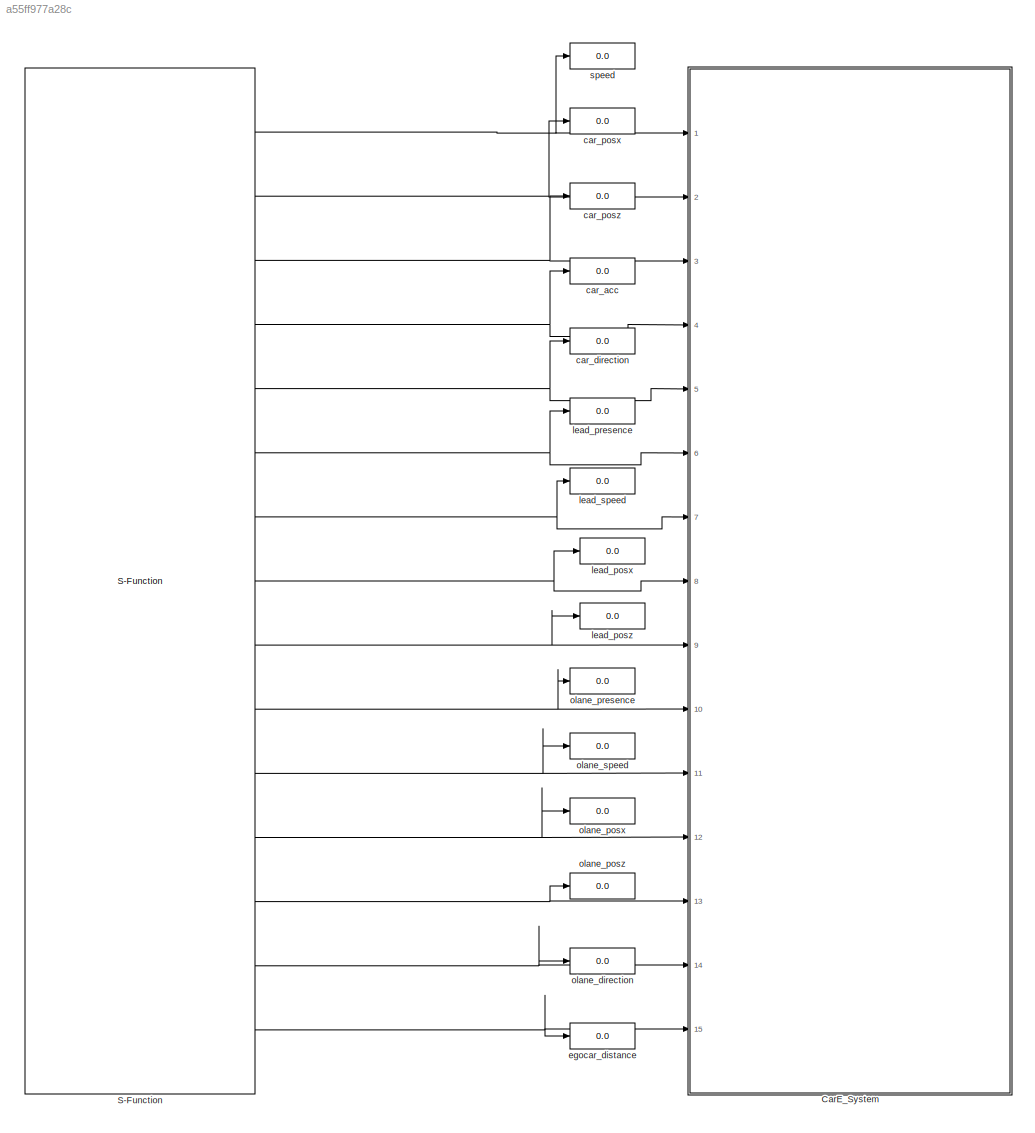
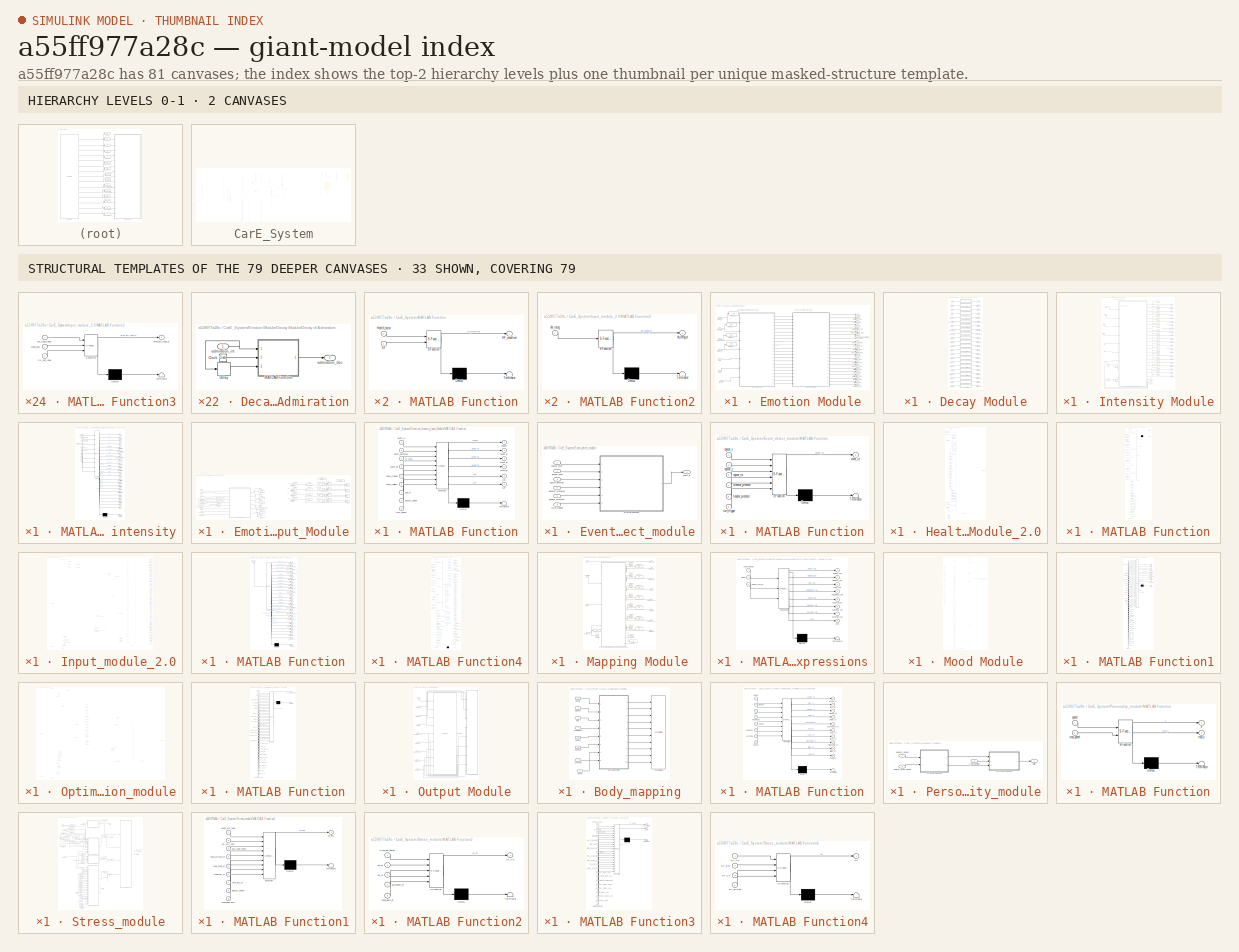
[diagram: thumbnail index - top-2 hierarchy levels (2 canvases) + 33 structural-template representatives of the remaining 79 canvases]
MODEL slx_a55ff977a28c
KIND model
CONFIG AbsTol = auto
CONFIG EnableMultiTasking = off
CONFIG FixedStep = auto
CONFIG MaxStep = auto
CONFIG MinStep = auto
CONFIG RelTol = 1e-3
CONFIG SampleTimeConstraint = Unconstrained
CONFIG Solver = VariableStepAuto
CONFIG SolverName = VariableStepAuto
CONFIG StartTime = 0.0
CONFIG StopTime = inf
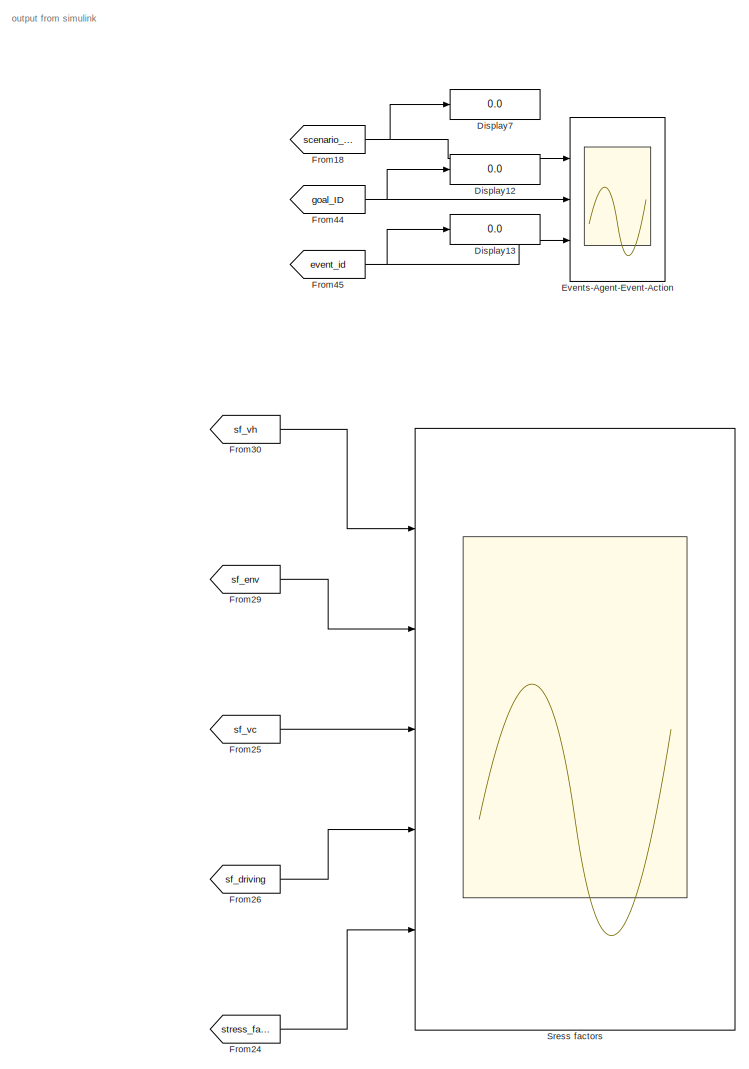
[diagram: CarE_System - part 1/9, top right region]
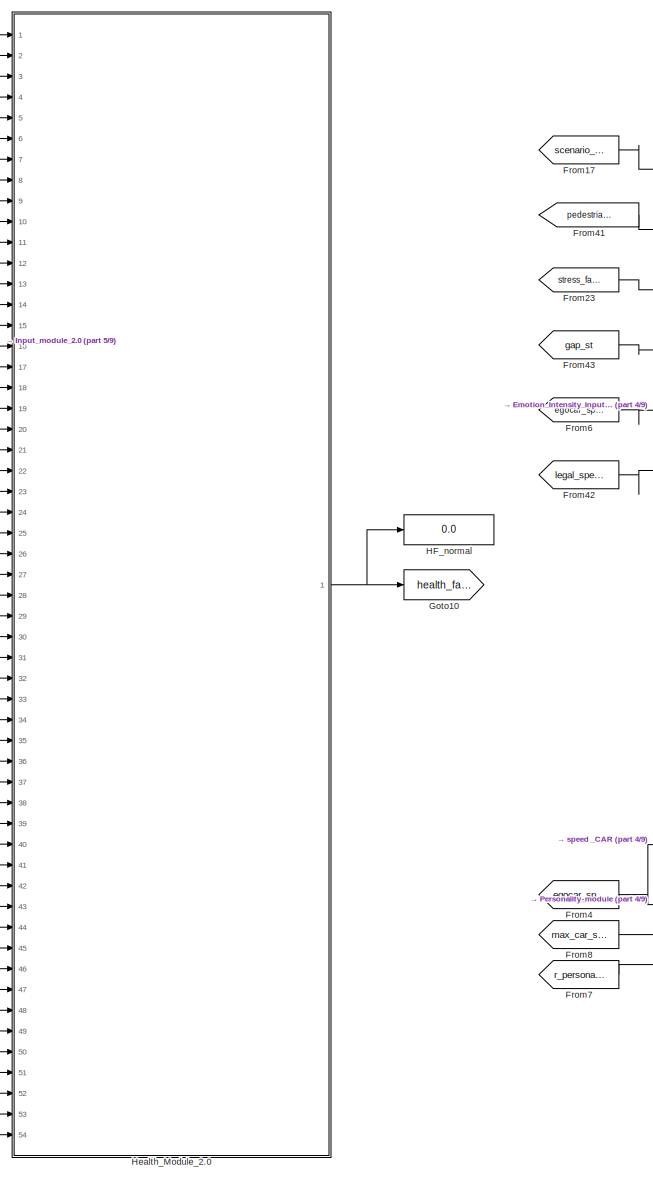
[diagram: CarE_System - part 2/9, top center region]
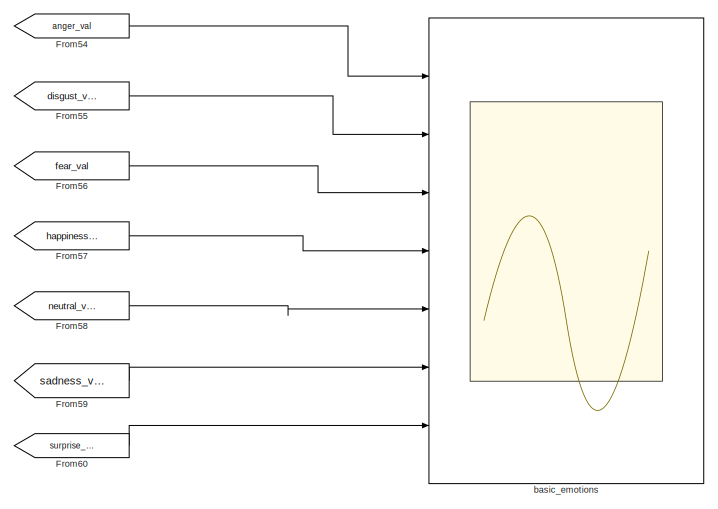
[diagram: CarE_System - part 3/9, top right region]
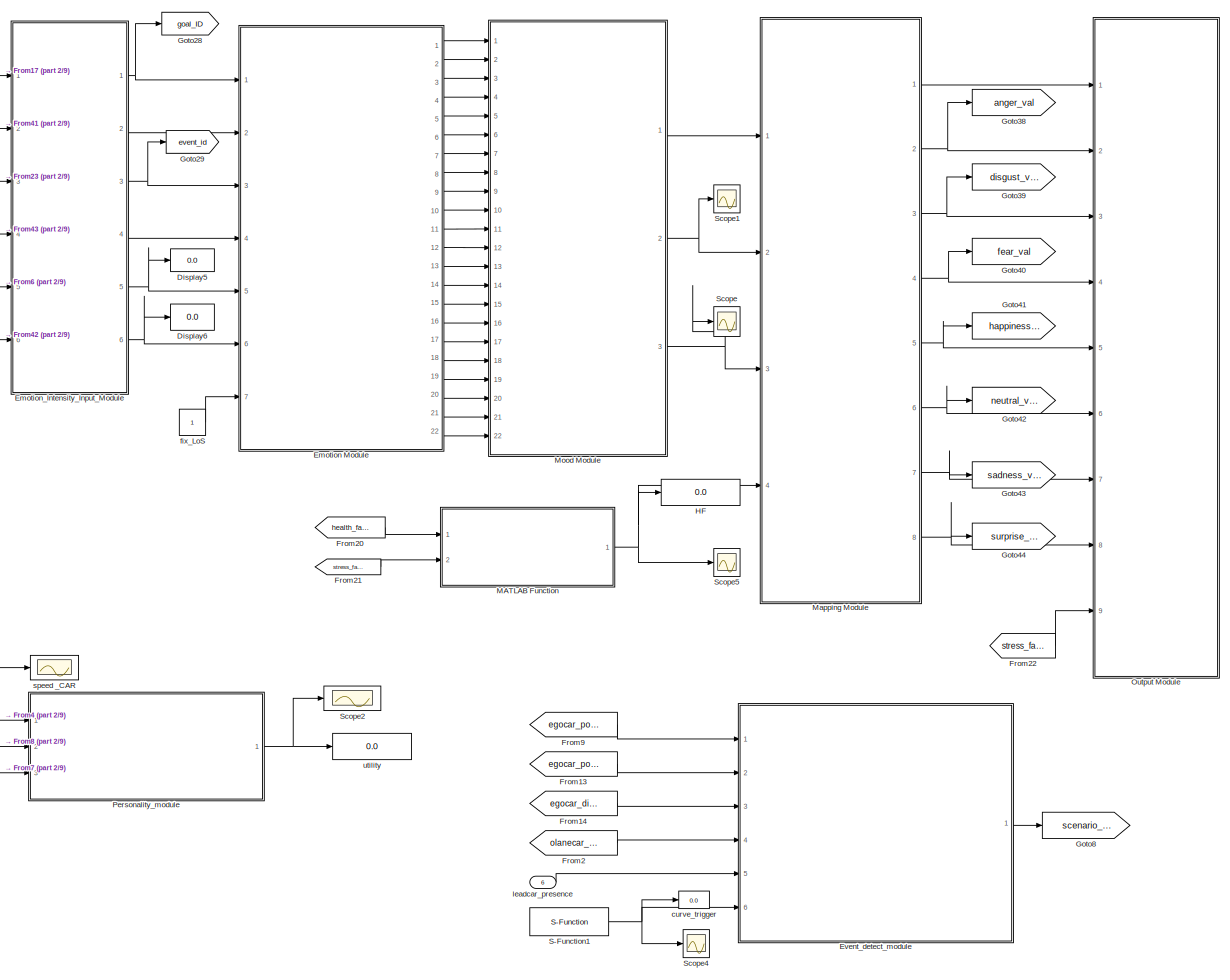
[diagram: CarE_System - part 4/9, top center region]
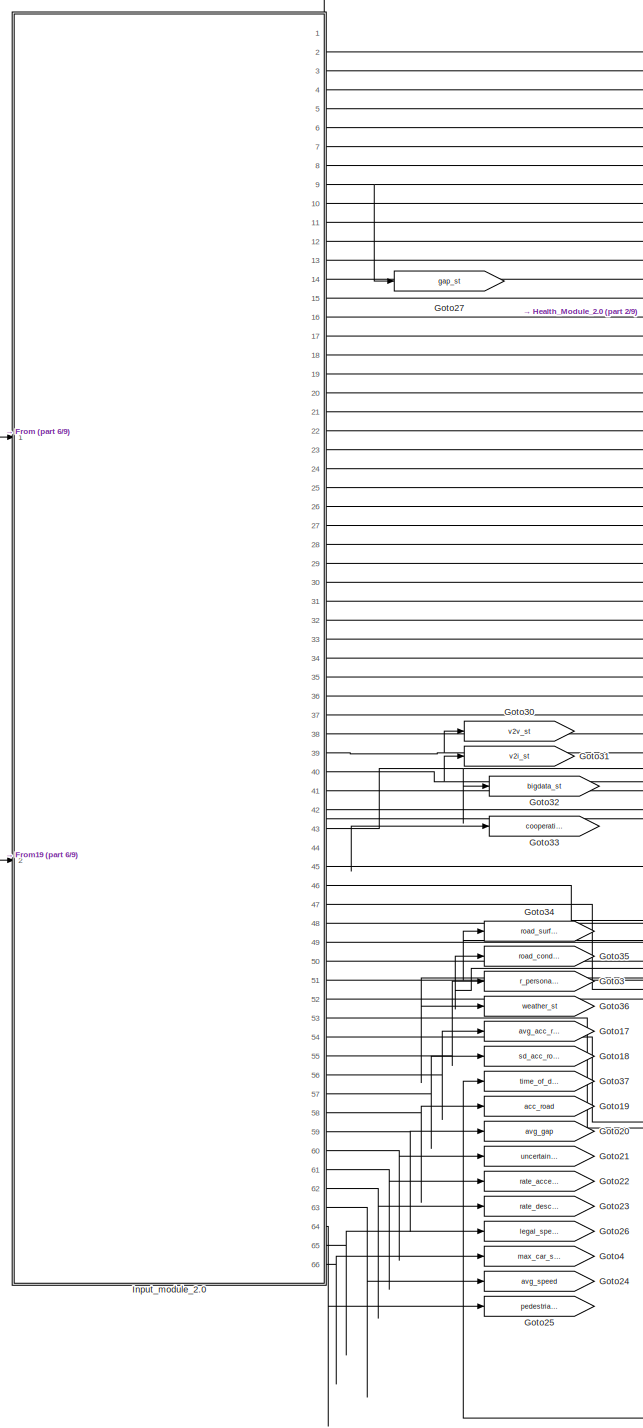
[diagram: CarE_System - part 5/9, middle left region]
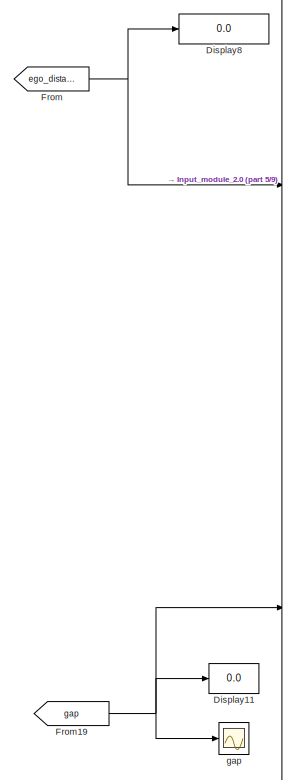
[diagram: CarE_System - part 6/9, middle left region]
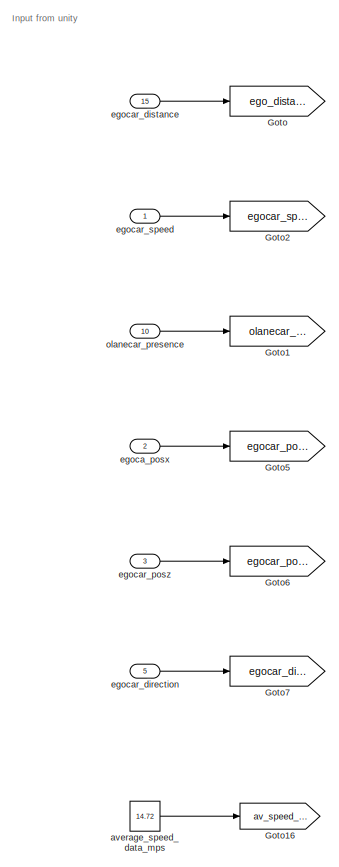
[diagram: CarE_System - part 7/9, middle left region]
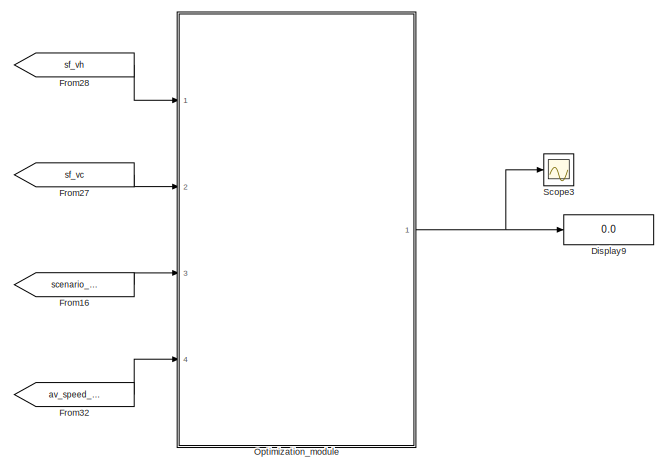
[diagram: CarE_System - part 8/9, bottom center region]
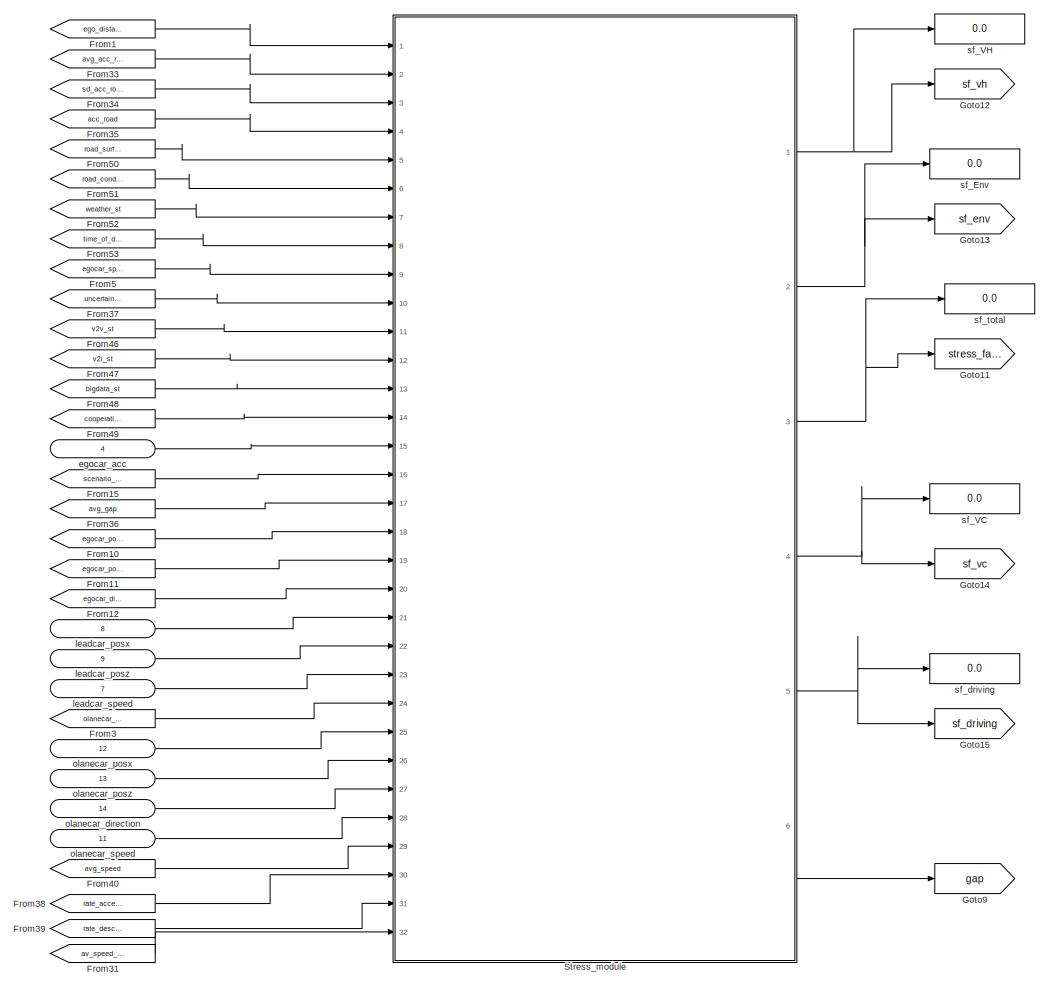
[diagram: CarE_System - part 9/9, bottom center region]
BLOCK [SubSystem] CarE_System
  Ports = [15]
  RequestExecContextInheritance = off
BLOCK [Display] CarE_System/Display11
  Decimation = 1
  Ports = [1]
BLOCK [Display] CarE_System/Display12
  Decimation = 1
  Ports = [1]
BLOCK [Display] CarE_System/Display13
  Decimation = 1
  Ports = [1]
BLOCK [Display] CarE_System/Display5
  Decimation = 1
  Ports = [1]
BLOCK [Display] CarE_System/Display6
  Decimation = 1
  Ports = [1]
BLOCK [Display] CarE_System/Display7
  Decimation = 1
  Ports = [1]
BLOCK [Display] CarE_System/Display8
  Decimation = 1
  Ports = [1]
BLOCK [Display] CarE_System/Display9
  Decimation = 1
  Ports = [1]
BLOCK [SubSystem] CarE_System/Emotion Module
  Ports = [7, 22]
  RequestExecContextInheritance = off
BLOCK [SubSystem] CarE_System/Emotion Module/Decay Module
  Ports = [22, 22]
  RequestExecContextInheritance = off
BLOCK [SubSystem] CarE_System/Emotion Module/Decay Module/Decay of Admiration
  Ports = [1, 1]
  RequestExecContextInheritance = off
BLOCK [Clock] CarE_System/Emotion Module/Decay Module/Decay of Admiration/Clock
  Decimation = 1
BLOCK [Delay] CarE_System/Emotion Module/Decay Module/Decay of Admiration/Delay
  DelayLength = 1
  InitialCondition = 0
  InputPortMap = u0
  Ports = [1, 1]
BLOCK [SubSystem] CarE_System/Emotion Module/Decay Module/Decay of Admiration/MATLAB Function
  ErrorFcn = Stateflow.Translate.translate
  PermitHierarchicalResolution = ExplicitOnly
  Ports = [3, 1]
  RequestExecContextInheritance = off
  SFBlockType = MATLAB Function
  TreatAsAtomicUnit = on
BLOCK [Demux] CarE_System/Emotion Module/Decay Module/Decay of Admiration/MATLAB Function/ Demux 
  Outputs = 1
  Ports = [1, 1]
BLOCK [S-Function] CarE_System/Emotion Module/Decay Module/Decay of Admiration/MATLAB Function/ SFunction 
  EnableBusSupport = on
  FunctionName = sf_sfun
  PortCounts = [3 2]
  Ports = [3, 2]
  SFcnIsStateOwnerBlock = off
  SFunctionDeploymentMode = off
  Tag = Stateflow S-Function 15
BLOCK [Terminator] CarE_System/Emotion Module/Decay Module/Decay of Admiration/MATLAB Function/ Terminator 
BLOCK [Inport] CarE_System/Emotion Module/Decay Module/Decay of Admiration/MATLAB Function/t
  IconDisplay = Port number
  Port = 2
BLOCK [Inport] CarE_System/Emotion Module/Decay Module/Decay of Admiration/MATLAB Function/u
  IconDisplay = Port number
BLOCK [Inport] CarE_System/Emotion Module/Decay Module/Decay of Admiration/MATLAB Function/ulast
  IconDisplay = Port number
  Port = 3
BLOCK [Outport] CarE_System/Emotion Module/Decay Module/Decay of Admiration/MATLAB Function/y
  IconDisplay = Port number
  VectorParamsAs1DForOutWhenUnconnected = off
BLOCK [Outport] CarE_System/Emotion Module/Decay Module/Decay of Admiration/admiration_dec
  IconDisplay = Port number
  VectorParamsAs1DForOutWhenUnconnected = off
BLOCK [Inport] CarE_System/Emotion Module/Decay Module/Decay of Admiration/admiration_int
  IconDisplay = Port number
BLOCK [SubSystem] CarE_System/Emotion Module/Decay Module/Decay of Anger
  Ports = [1, 1]
  RequestExecContextInheritance = off
BLOCK [Clock] CarE_System/Emotion Module/Decay Module/Decay of Anger/Clock
  Decimation = 1
BLOCK [Delay] CarE_System/Emotion Module/Decay Module/Decay of Anger/Delay
  DelayLength = 1
  InitialCondition = 0
  InputPortMap = u0
  Ports = [1, 1]
BLOCK [SubSystem] CarE_System/Emotion Module/Decay Module/Decay of Anger/MATLAB Function
  ErrorFcn = Stateflow.Translate.translate
  PermitHierarchicalResolution = ExplicitOnly
  Ports = [3, 1]
  RequestExecContextInheritance = off
  SFBlockType = MATLAB Function
  TreatAsAtomicUnit = on
BLOCK [Demux] CarE_System/Emotion Module/Decay Module/Decay of Anger/MATLAB Function/ Demux 
  Outputs = 1
  Ports = [1, 1]
BLOCK [S-Function] CarE_System/Emotion Module/Decay Module/Decay of Anger/MATLAB Function/ SFunction 
  EnableBusSupport = on
  FunctionName = sf_sfun
  PortCounts = [3 2]
  Ports = [3, 2]
  SFcnIsStateOwnerBlock = off
  SFunctionDeploymentMode = off
  Tag = Stateflow S-Function 17
BLOCK [Terminator] CarE_System/Emotion Module/Decay Module/Decay of Anger/MATLAB Function/ Terminator 
BLOCK [Inport] CarE_System/Emotion Module/Decay Module/Decay of Anger/MATLAB Function/t
  IconDisplay = Port number
  Port = 2
BLOCK [Inport] CarE_System/Emotion Module/Decay Module/Decay of Anger/MATLAB Function/u
  IconDisplay = Port number
BLOCK [Inport] CarE_System/Emotion Module/Decay Module/Decay of Anger/MATLAB Function/ulast
  IconDisplay = Port number
  Port = 3
BLOCK [Outport] CarE_System/Emotion Module/Decay Module/Decay of Anger/MATLAB Function/y
  IconDisplay = Port number
  VectorParamsAs1DForOutWhenUnconnected = off
BLOCK [Outport] CarE_System/Emotion Module/Decay Module/Decay of Anger/anger_dec
  IconDisplay = Port number
  VectorParamsAs1DForOutWhenUnconnected = off
BLOCK [Inport] CarE_System/Emotion Module/Decay Module/Decay of Anger/anger_int
  IconDisplay = Port number
BLOCK [SubSystem] CarE_System/Emotion Module/Decay Module/Decay of Disappointment
  Ports = [1, 1]
  RequestExecContextInheritance = off
BLOCK [Clock] CarE_System/Emotion Module/Decay Module/Decay of Disappointment/Clock
  Decimation = 1
BLOCK [Delay] CarE_System/Emotion Module/Decay Module/Decay of Disappointment/Delay
  DelayLength = 1
  InitialCondition = 0
  InputPortMap = u0
  Ports = [1, 1]
BLOCK [SubSystem] CarE_System/Emotion Module/Decay Module/Decay of Disappointment/MATLAB Function
  ErrorFcn = Stateflow.Translate.translate
  PermitHierarchicalResolution = ExplicitOnly
  Ports = [3, 1]
  RequestExecContextInheritance = off
  SFBlockType = MATLAB Function
  TreatAsAtomicUnit = on
BLOCK [Demux] CarE_System/Emotion Module/Decay Module/Decay of Disappointment/MATLAB Function/ Demux 
  Outputs = 1
  Ports = [1, 1]
BLOCK [S-Function] CarE_System/Emotion Module/Decay Module/Decay of Disappointment/MATLAB Function/ SFunction 
  EnableBusSupport = on
  FunctionName = sf_sfun
  PortCounts = [3 2]
  Ports = [3, 2]
  SFcnIsStateOwnerBlock = off
  SFunctionDeploymentMode = off
  Tag = Stateflow S-Function 7
BLOCK [Terminator] CarE_System/Emotion Module/Decay Module/Decay of Disappointment/MATLAB Function/ Terminator 
BLOCK [Inport] CarE_System/Emotion Module/Decay Module/Decay of Disappointment/MATLAB Function/t
  IconDisplay = Port number
  Port = 2
BLOCK [Inport] CarE_System/Emotion Module/Decay Module/Decay of Disappointment/MATLAB Function/u
  IconDisplay = Port number
BLOCK [Inport] CarE_System/Emotion Module/Decay Module/Decay of Disappointment/MATLAB Function/ulast
  IconDisplay = Port number
  Port = 3
BLOCK [Outport] CarE_System/Emotion Module/Decay Module/Decay of Disappointment/MATLAB Function/y
  IconDisplay = Port number
  VectorParamsAs1DForOutWhenUnconnected = off
BLOCK [Outport] CarE_System/Emotion Module/Decay Module/Decay of Disappointment/disappointment_dec
  IconDisplay = Port number
  VectorParamsAs1DForOutWhenUnconnected = off
BLOCK [Inport] CarE_System/Emotion Module/Decay Module/Decay of Disappointment/disappointment_int
  IconDisplay = Port number
BLOCK [SubSystem] CarE_System/Emotion Module/Decay Module/Decay of Disliking
  Ports = [1, 1]
  RequestExecContextInheritance = off
BLOCK [Clock] CarE_System/Emotion Module/Decay Module/Decay of Disliking/Clock
  Decimation = 1
BLOCK [Delay] CarE_System/Emotion Module/Decay Module/Decay of Disliking/Delay
  DelayLength = 1
  InitialCondition = 0
  InputPortMap = u0
  Ports = [1, 1]
BLOCK [SubSystem] CarE_System/Emotion Module/Decay Module/Decay of Disliking/MATLAB Function
  ErrorFcn = Stateflow.Translate.translate
  PermitHierarchicalResolution = ExplicitOnly
  Ports = [3, 1]
  RequestExecContextInheritance = off
  SFBlockType = MATLAB Function
  TreatAsAtomicUnit = on
BLOCK [Demux] CarE_System/Emotion Module/Decay Module/Decay of Disliking/MATLAB Function/ Demux 
  Outputs = 1
  Ports = [1, 1]
BLOCK [S-Function] CarE_System/Emotion Module/Decay Module/Decay of Disliking/MATLAB Function/ SFunction 
  EnableBusSupport = on
  FunctionName = sf_sfun
  PortCounts = [3 2]
  Ports = [3, 2]
  SFcnIsStateOwnerBlock = off
  SFunctionDeploymentMode = off
  Tag = Stateflow S-Function 21
BLOCK [Terminator] CarE_System/Emotion Module/Decay Module/Decay of Disliking/MATLAB Function/ Terminator 
BLOCK [Inport] CarE_System/Emotion Module/Decay Module/Decay of Disliking/MATLAB Function/t
  IconDisplay = Port number
  Port = 2
BLOCK [Inport] CarE_System/Emotion Module/Decay Module/Decay of Disliking/MATLAB Function/u
  IconDisplay = Port number
BLOCK [Inport] CarE_System/Emotion Module/Decay Module/Decay of Disliking/MATLAB Function/ulast
  IconDisplay = Port number
  Port = 3
BLOCK [Outport] CarE_System/Emotion Module/Decay Module/Decay of Disliking/MATLAB Function/y
  IconDisplay = Port number
  VectorParamsAs1DForOutWhenUnconnected = off
BLOCK [Outport] CarE_System/Emotion Module/Decay Module/Decay of Disliking/disliking_dec
  IconDisplay = Port number
  VectorParamsAs1DForOutWhenUnconnected = off
BLOCK [Inport] CarE_System/Emotion Module/Decay Module/Decay of Disliking/disliking_int
  IconDisplay = Port number
BLOCK [SubSystem] CarE_System/Emotion Module/Decay Module/Decay of Distress
  Ports = [1, 1]
  RequestExecContextInheritance = off
BLOCK [Clock] CarE_System/Emotion Module/Decay Module/Decay of Distress/Clock
  Decimation = 1
BLOCK [Delay] CarE_System/Emotion Module/Decay Module/Decay of Distress/Delay
  DelayLength = 1
  InitialCondition = 0
  InputPortMap = u0
  Ports = [1, 1]
BLOCK [SubSystem] CarE_System/Emotion Module/Decay Module/Decay of Distress/MATLAB Function
  ErrorFcn = Stateflow.Translate.translate
  PermitHierarchicalResolution = ExplicitOnly
  Ports = [3, 1]
  RequestExecContextInheritance = off
  SFBlockType = MATLAB Function
  TreatAsAtomicUnit = on
BLOCK [Demux] CarE_System/Emotion Module/Decay Module/Decay of Distress/MATLAB Function/ Demux 
  Outputs = 1
  Ports = [1, 1]
BLOCK [S-Function] CarE_System/Emotion Module/Decay Module/Decay of Distress/MATLAB Function/ SFunction 
  EnableBusSupport = on
  FunctionName = sf_sfun
  PortCounts = [3 2]
  Ports = [3, 2]
  SFcnIsStateOwnerBlock = off
  SFunctionDeploymentMode = off
  Tag = Stateflow S-Function 2
BLOCK [Terminator] CarE_System/Emotion Module/Decay Module/Decay of Distress/MATLAB Function/ Terminator 
BLOCK [Inport] CarE_System/Emotion Module/Decay Module/Decay of Distress/MATLAB Function/t
  IconDisplay = Port number
  Port = 2
BLOCK [Inport] CarE_System/Emotion Module/Decay Module/Decay of Distress/MATLAB Function/u
  IconDisplay = Port number
BLOCK [Inport] CarE_System/Emotion Module/Decay Module/Decay of Distress/MATLAB Function/ulast
  IconDisplay = Port number
  Port = 3
BLOCK [Outport] CarE_System/Emotion Module/Decay Module/Decay of Distress/MATLAB Function/y
  IconDisplay = Port number
  VectorParamsAs1DForOutWhenUnconnected = off
BLOCK [Outport] CarE_System/Emotion Module/Decay Module/Decay of Distress/distress_dec
  IconDisplay = Port number
  VectorParamsAs1DForOutWhenUnconnected = off
BLOCK [Inport] CarE_System/Emotion Module/Decay Module/Decay of Distress/distress_int
  IconDisplay = Port number
BLOCK [SubSystem] CarE_System/Emotion Module/Decay Module/Decay of Fear
  Ports = [1, 1]
  RequestExecContextInheritance = off
BLOCK [SubSystem] CarE_System/Emotion Module/Decay Module/Decay of Fear Confirmed
  Ports = [1, 1]
  RequestExecContextInheritance = off
BLOCK [Clock] CarE_System/Emotion Module/Decay Module/Decay of Fear Confirmed/Clock
  Decimation = 1
BLOCK [Delay] CarE_System/Emotion Module/Decay Module/Decay of Fear Confirmed/Delay
  DelayLength = 1
  InitialCondition = 0
  InputPortMap = u0
  Ports = [1, 1]
BLOCK [SubSystem] CarE_System/Emotion Module/Decay Module/Decay of Fear Confirmed/MATLAB Function
  ErrorFcn = Stateflow.Translate.translate
  PermitHierarchicalResolution = ExplicitOnly
  Ports = [3, 1]
  RequestExecContextInheritance = off
  SFBlockType = MATLAB Function
  TreatAsAtomicUnit = on
BLOCK [Demux] CarE_System/Emotion Module/Decay Module/Decay of Fear Confirmed/MATLAB Function/ Demux 
  Outputs = 1
  Ports = [1, 1]
BLOCK [S-Function] CarE_System/Emotion Module/Decay Module/Decay of Fear Confirmed/MATLAB Function/ SFunction 
  EnableBusSupport = on
  FunctionName = sf_sfun
  PortCounts = [3 2]
  Ports = [3, 2]
  SFcnIsStateOwnerBlock = off
  SFunctionDeploymentMode = off
  Tag = Stateflow S-Function 5
BLOCK [Terminator] CarE_System/Emotion Module/Decay Module/Decay of Fear Confirmed/MATLAB Function/ Terminator 
BLOCK [Inport] CarE_System/Emotion Module/Decay Module/Decay of Fear Confirmed/MATLAB Function/t
  IconDisplay = Port number
  Port = 2
BLOCK [Inport] CarE_System/Emotion Module/Decay Module/Decay of Fear Confirmed/MATLAB Function/u
  IconDisplay = Port number
BLOCK [Inport] CarE_System/Emotion Module/Decay Module/Decay of Fear Confirmed/MATLAB Function/ulast
  IconDisplay = Port number
  Port = 3
BLOCK [Outport] CarE_System/Emotion Module/Decay Module/Decay of Fear Confirmed/MATLAB Function/y
  IconDisplay = Port number
  VectorParamsAs1DForOutWhenUnconnected = off
BLOCK [Outport] CarE_System/Emotion Module/Decay Module/Decay of Fear Confirmed/fear_confirmed_dec
  IconDisplay = Port number
  VectorParamsAs1DForOutWhenUnconnected = off
BLOCK [Inport] CarE_System/Emotion Module/Decay Module/Decay of Fear Confirmed/fear_confirmed_int
  IconDisplay = Port number
BLOCK [Clock] CarE_System/Emotion Module/Decay Module/Decay of Fear/Clock
  Decimation = 1
BLOCK [Delay] CarE_System/Emotion Module/Decay Module/Decay of Fear/Delay
  DelayLength = 1
  InitialCondition = 0
  InputPortMap = u0
  Ports = [1, 1]
BLOCK [SubSystem] CarE_System/Emotion Module/Decay Module/Decay of Fear/MATLAB Function
  ErrorFcn = Stateflow.Translate.translate
  PermitHierarchicalResolution = ExplicitOnly
  Ports = [3, 1]
  RequestExecContextInheritance = off
  SFBlockType = MATLAB Function
  TreatAsAtomicUnit = on
BLOCK [Demux] CarE_System/Emotion Module/Decay Module/Decay of Fear/MATLAB Function/ Demux 
  Outputs = 1
  Ports = [1, 1]
BLOCK [S-Function] CarE_System/Emotion Module/Decay Module/Decay of Fear/MATLAB Function/ SFunction 
  EnableBusSupport = on
  FunctionName = sf_sfun
  PortCounts = [3 2]
  Ports = [3, 2]
  SFcnIsStateOwnerBlock = off
  SFunctionDeploymentMode = off
  Tag = Stateflow S-Function 3
BLOCK [Terminator] CarE_System/Emotion Module/Decay Module/Decay of Fear/MATLAB Function/ Terminator 
BLOCK [Inport] CarE_System/Emotion Module/Decay Module/Decay of Fear/MATLAB Function/t
  IconDisplay = Port number
  Port = 2
BLOCK [Inport] CarE_System/Emotion Module/Decay Module/Decay of Fear/MATLAB Function/u
  IconDisplay = Port number
BLOCK [Inport] CarE_System/Emotion Module/Decay Module/Decay of Fear/MATLAB Function/ulast
  IconDisplay = Port number
  Port = 3
BLOCK [Outport] CarE_System/Emotion Module/Decay Module/Decay of Fear/MATLAB Function/y
  IconDisplay = Port number
  VectorParamsAs1DForOutWhenUnconnected = off
BLOCK [Outport] CarE_System/Emotion Module/Decay Module/Decay of Fear/fear_dec
  IconDisplay = Port number
  VectorParamsAs1DForOutWhenUnconnected = off
BLOCK [Inport] CarE_System/Emotion Module/Decay Module/Decay of Fear/fear_int
  IconDisplay = Port number
BLOCK [SubSystem] CarE_System/Emotion Module/Decay Module/Decay of Gloating
  Ports = [1, 1]
  RequestExecContextInheritance = off
BLOCK [Clock] CarE_System/Emotion Module/Decay Module/Decay of Gloating/Clock
  Decimation = 1
BLOCK [Delay] CarE_System/Emotion Module/Decay Module/Decay of Gloating/Delay
  DelayLength = 1
  InitialCondition = 0
  InputPortMap = u0
  Ports = [1, 1]
BLOCK [SubSystem] CarE_System/Emotion Module/Decay Module/Decay of Gloating/MATLAB Function
  ErrorFcn = Stateflow.Translate.translate
  PermitHierarchicalResolution = ExplicitOnly
  Ports = [3, 1]
  RequestExecContextInheritance = off
  SFBlockType = MATLAB Function
  TreatAsAtomicUnit = on
BLOCK [Demux] CarE_System/Emotion Module/Decay Module/Decay of Gloating/MATLAB Function/ Demux 
  Outputs = 1
  Ports = [1, 1]
BLOCK [S-Function] CarE_System/Emotion Module/Decay Module/Decay of Gloating/MATLAB Function/ SFunction 
  EnableBusSupport = on
  FunctionName = sf_sfun
  PortCounts = [3 2]
  Ports = [3, 2]
  SFcnIsStateOwnerBlock = off
  SFunctionDeploymentMode = off
  Tag = Stateflow S-Function 10
BLOCK [Terminator] CarE_System/Emotion Module/Decay Module/Decay of Gloating/MATLAB Function/ Terminator 
BLOCK [Inport] CarE_System/Emotion Module/Decay Module/Decay of Gloating/MATLAB Function/t
  IconDisplay = Port number
  Port = 2
BLOCK [Inport] CarE_System/Emotion Module/Decay Module/Decay of Gloating/MATLAB Function/u
  IconDisplay = Port number
BLOCK [Inport] CarE_System/Emotion Module/Decay Module/Decay of Gloating/MATLAB Function/ulast
  IconDisplay = Port number
  Port = 3
BLOCK [Outport] CarE_System/Emotion Module/Decay Module/Decay of Gloating/MATLAB Function/y
  IconDisplay = Port number
  VectorParamsAs1DForOutWhenUnconnected = off
BLOCK [Outport] CarE_System/Emotion Module/Decay Module/Decay of Gloating/gloating_dec
  IconDisplay = Port number
  VectorParamsAs1DForOutWhenUnconnected = off
BLOCK [Inport] CarE_System/Emotion Module/Decay Module/Decay of Gloating/gloating_int
  IconDisplay = Port number
BLOCK [SubSystem] CarE_System/Emotion Module/Decay Module/Decay of Gratification
  Ports = [1, 1]
  RequestExecContextInheritance = off
BLOCK [Clock] CarE_System/Emotion Module/Decay Module/Decay of Gratification/Clock
  Decimation = 1
BLOCK [Delay] CarE_System/Emotion Module/Decay Module/Decay of Gratification/Delay
  DelayLength = 1
  InitialCondition = 0
  InputPortMap = u0
  Ports = [1, 1]
BLOCK [SubSystem] CarE_System/Emotion Module/Decay Module/Decay of Gratification/MATLAB Function
  ErrorFcn = Stateflow.Translate.translate
  PermitHierarchicalResolution = ExplicitOnly
  Ports = [3, 1]
  RequestExecContextInheritance = off
  SFBlockType = MATLAB Function
  TreatAsAtomicUnit = on
BLOCK [Demux] CarE_System/Emotion Module/Decay Module/Decay of Gratification/MATLAB Function/ Demux 
  Outputs = 1
  Ports = [1, 1]
BLOCK [S-Function] CarE_System/Emotion Module/Decay Module/Decay of Gratification/MATLAB Function/ SFunction 
  EnableBusSupport = on
  FunctionName = sf_sfun
  PortCounts = [3 2]
  Ports = [3, 2]
  SFcnIsStateOwnerBlock = off
  SFunctionDeploymentMode = off
  Tag = Stateflow S-Function 18
BLOCK [Terminator] CarE_System/Emotion Module/Decay Module/Decay of Gratification/MATLAB Function/ Terminator 
BLOCK [Inport] CarE_System/Emotion Module/Decay Module/Decay of Gratification/MATLAB Function/t
  IconDisplay = Port number
  Port = 2
BLOCK [Inport] CarE_System/Emotion Module/Decay Module/Decay of Gratification/MATLAB Function/u
  IconDisplay = Port number
BLOCK [Inport] CarE_System/Emotion Module/Decay Module/Decay of Gratification/MATLAB Function/ulast
  IconDisplay = Port number
  Port = 3
BLOCK [Outport] CarE_System/Emotion Module/Decay Module/Decay of Gratification/MATLAB Function/y
  IconDisplay = Port number
  VectorParamsAs1DForOutWhenUnconnected = off
BLOCK [Outport] CarE_System/Emotion Module/Decay Module/Decay of Gratification/gratification_dec
  IconDisplay = Port number
  VectorParamsAs1DForOutWhenUnconnected = off
BLOCK [Inport] CarE_System/Emotion Module/Decay Module/Decay of Gratification/gratification_int
  IconDisplay = Port number
BLOCK [SubSystem] CarE_System/Emotion Module/Decay Module/Decay of Gratitude
  Ports = [1, 1]
  RequestExecContextInheritance = off
BLOCK [Clock] CarE_System/Emotion Module/Decay Module/Decay of Gratitude/Clock
  Decimation = 1
BLOCK [Delay] CarE_System/Emotion Module/Decay Module/Decay of Gratitude/Delay
  DelayLength = 1
  InitialCondition = 0
  InputPortMap = u0
  Ports = [1, 1]
BLOCK [SubSystem] CarE_System/Emotion Module/Decay Module/Decay of Gratitude/MATLAB Function
  ErrorFcn = Stateflow.Translate.translate
  PermitHierarchicalResolution = ExplicitOnly
  Ports = [3, 1]
  RequestExecContextInheritance = off
  SFBlockType = MATLAB Function
  TreatAsAtomicUnit = on
BLOCK [Demux] CarE_System/Emotion Module/Decay Module/Decay of Gratitude/MATLAB Function/ Demux 
  Outputs = 1
  Ports = [1, 1]
BLOCK [S-Function] CarE_System/Emotion Module/Decay Module/Decay of Gratitude/MATLAB Function/ SFunction 
  EnableBusSupport = on
  FunctionName = sf_sfun
  PortCounts = [3 2]
  Ports = [3, 2]
  SFcnIsStateOwnerBlock = off
  SFunctionDeploymentMode = off
  Tag = Stateflow S-Function 16
BLOCK [Terminator] CarE_System/Emotion Module/Decay Module/Decay of Gratitude/MATLAB Function/ Terminator 
BLOCK [Inport] CarE_System/Emotion Module/Decay Module/Decay of Gratitude/MATLAB Function/t
  IconDisplay = Port number
  Port = 2
BLOCK [Inport] CarE_System/Emotion Module/Decay Module/Decay of Gratitude/MATLAB Function/u
  IconDisplay = Port number
BLOCK [Inport] CarE_System/Emotion Module/Decay Module/Decay of Gratitude/MATLAB Function/ulast
  IconDisplay = Port number
  Port = 3
BLOCK [Outport] CarE_System/Emotion Module/Decay Module/Decay of Gratitude/MATLAB Function/y
  IconDisplay = Port number
  VectorParamsAs1DForOutWhenUnconnected = off
BLOCK [Outport] CarE_System/Emotion Module/Decay Module/Decay of Gratitude/gratitude_dec
  IconDisplay = Port number
  VectorParamsAs1DForOutWhenUnconnected = off
BLOCK [Inport] CarE_System/Emotion Module/Decay Module/Decay of Gratitude/gratitude_int
  IconDisplay = Port number
BLOCK [SubSystem] CarE_System/Emotion Module/Decay Module/Decay of Happy For
  Ports = [1, 1]
  RequestExecContextInheritance = off
BLOCK [Clock] CarE_System/Emotion Module/Decay Module/Decay of Happy For/Clock
  Decimation = 1
BLOCK [Delay] CarE_System/Emotion Module/Decay Module/Decay of Happy For/Delay
  DelayLength = 1
  InitialCondition = 0
  InputPortMap = u0
  Ports = [1, 1]
BLOCK [SubSystem] CarE_System/Emotion Module/Decay Module/Decay of Happy For/MATLAB Function
  ErrorFcn = Stateflow.Translate.translate
  PermitHierarchicalResolution = ExplicitOnly
  Ports = [3, 1]
  RequestExecContextInheritance = off
  SFBlockType = MATLAB Function
  TreatAsAtomicUnit = on
BLOCK [Demux] CarE_System/Emotion Module/Decay Module/Decay of Happy For/MATLAB Function/ Demux 
  Outputs = 1
  Ports = [1, 1]
BLOCK [S-Function] CarE_System/Emotion Module/Decay Module/Decay of Happy For/MATLAB Function/ SFunction 
  EnableBusSupport = on
  FunctionName = sf_sfun
  PortCounts = [3 2]
  Ports = [3, 2]
  SFcnIsStateOwnerBlock = off
  SFunctionDeploymentMode = off
  Tag = Stateflow S-Function 8
BLOCK [Terminator] CarE_System/Emotion Module/Decay Module/Decay of Happy For/MATLAB Function/ Terminator 
BLOCK [Inport] CarE_System/Emotion Module/Decay Module/Decay of Happy For/MATLAB Function/t
  IconDisplay = Port number
  Port = 2
BLOCK [Inport] CarE_System/Emotion Module/Decay Module/Decay of Happy For/MATLAB Function/u
  IconDisplay = Port number
BLOCK [Inport] CarE_System/Emotion Module/Decay Module/Decay of Happy For/MATLAB Function/ulast
  IconDisplay = Port number
  Port = 3
BLOCK [Outport] CarE_System/Emotion Module/Decay Module/Decay of Happy For/MATLAB Function/y
  IconDisplay = Port number
  VectorParamsAs1DForOutWhenUnconnected = off
BLOCK [Outport] CarE_System/Emotion Module/Decay Module/Decay of Happy For/happy_for_dec
  IconDisplay = Port number
  VectorParamsAs1DForOutWhenUnconnected = off
BLOCK [Inport] CarE_System/Emotion Module/Decay Module/Decay of Happy For/happy_for_int
  IconDisplay = Port number
BLOCK [SubSystem] CarE_System/Emotion Module/Decay Module/Decay of Hope
  Ports = [1, 1]
  RequestExecContextInheritance = off
BLOCK [Clock] CarE_System/Emotion Module/Decay Module/Decay of Hope/Clock
  Decimation = 1
BLOCK [Delay] CarE_System/Emotion Module/Decay Module/Decay of Hope/Delay
  DelayLength = 1
  InitialCondition = 0
  InputPortMap = u0
  Ports = [1, 1]
BLOCK [SubSystem] CarE_System/Emotion Module/Decay Module/Decay of Hope/MATLAB Function
  ErrorFcn = Stateflow.Translate.translate
  PermitHierarchicalResolution = ExplicitOnly
  Ports = [3, 1]
  RequestExecContextInheritance = off
  SFBlockType = MATLAB Function
  TreatAsAtomicUnit = on
BLOCK [Demux] CarE_System/Emotion Module/Decay Module/Decay of Hope/MATLAB Function/ Demux 
  Outputs = 1
  Ports = [1, 1]
BLOCK [S-Function] CarE_System/Emotion Module/Decay Module/Decay of Hope/MATLAB Function/ SFunction 
  EnableBusSupport = on
  FunctionName = sf_sfun
  PortCounts = [3 2]
  Ports = [3, 2]
  SFcnIsStateOwnerBlock = off
  SFunctionDeploymentMode = off
  Tag = Stateflow S-Function 6
BLOCK [Terminator] CarE_System/Emotion Module/Decay Module/Decay of Hope/MATLAB Function/ Terminator 
BLOCK [Inport] CarE_System/Emotion Module/Decay Module/Decay of Hope/MATLAB Function/t
  IconDisplay = Port number
  Port = 2
BLOCK [Inport] CarE_System/Emotion Module/Decay Module/Decay of Hope/MATLAB Function/u
  IconDisplay = Port number
BLOCK [Inport] CarE_System/Emotion Module/Decay Module/Decay of Hope/MATLAB Function/ulast
  IconDisplay = Port number
  Port = 3
BLOCK [Outport] CarE_System/Emotion Module/Decay Module/Decay of Hope/MATLAB Function/y
  IconDisplay = Port number
  VectorParamsAs1DForOutWhenUnconnected = off
BLOCK [Outport] CarE_System/Emotion Module/Decay Module/Decay of Hope/hope_dec
  IconDisplay = Port number
  VectorParamsAs1DForOutWhenUnconnected = off
BLOCK [Inport] CarE_System/Emotion Module/Decay Module/Decay of Hope/hope_int
  IconDisplay = Port number
BLOCK [SubSystem] CarE_System/Emotion Module/Decay Module/Decay of Joy
  Ports = [1, 1]
  RequestExecContextInheritance = off
BLOCK [Clock] CarE_System/Emotion Module/Decay Module/Decay of Joy/Clock1
  Decimation = 1
BLOCK [Delay] CarE_System/Emotion Module/Decay Module/Decay of Joy/Delay
  DelayLength = 1
  InitialCondition = 0
  InputPortMap = u0
  Ports = [1, 1]
BLOCK [SubSystem] CarE_System/Emotion Module/Decay Module/Decay of Joy/MATLAB Function1
  ErrorFcn = Stateflow.Translate.translate
  PermitHierarchicalResolution = ExplicitOnly
  Ports = [3, 1]
  RequestExecContextInheritance = off
  SFBlockType = MATLAB Function
  TreatAsAtomicUnit = on
BLOCK [Demux] CarE_System/Emotion Module/Decay Module/Decay of Joy/MATLAB Function1/ Demux 
  Outputs = 1
  Ports = [1, 1]
BLOCK [S-Function] CarE_System/Emotion Module/Decay Module/Decay of Joy/MATLAB Function1/ SFunction 
  EnableBusSupport = on
  FunctionName = sf_sfun
  PortCounts = [3 2]
  Ports = [3, 2]
  SFcnIsStateOwnerBlock = off
  SFunctionDeploymentMode = off
  Tag = Stateflow S-Function 24
BLOCK [Terminator] CarE_System/Emotion Module/Decay Module/Decay of Joy/MATLAB Function1/ Terminator 
BLOCK [Inport] CarE_System/Emotion Module/Decay Module/Decay of Joy/MATLAB Function1/t
  IconDisplay = Port number
  Port = 2
BLOCK [Inport] CarE_System/Emotion Module/Decay Module/Decay of Joy/MATLAB Function1/u
  IconDisplay = Port number
BLOCK [Inport] CarE_System/Emotion Module/Decay Module/Decay of Joy/MATLAB Function1/ulast
  IconDisplay = Port number
  Port = 3
BLOCK [Outport] CarE_System/Emotion Module/Decay Module/Decay of Joy/MATLAB Function1/y
  IconDisplay = Port number
  VectorParamsAs1DForOutWhenUnconnected = off
BLOCK [Outport] CarE_System/Emotion Module/Decay Module/Decay of Joy/joy_dec
  IconDisplay = Port number
  VectorParamsAs1DForOutWhenUnconnected = off
BLOCK [Inport] CarE_System/Emotion Module/Decay Module/Decay of Joy/joy_int
  IconDisplay = Port number
BLOCK [SubSystem] CarE_System/Emotion Module/Decay Module/Decay of Liking
  Ports = [1, 1]
  RequestExecContextInheritance = off
BLOCK [Clock] CarE_System/Emotion Module/Decay Module/Decay of Liking/Clock
  Decimation = 1
BLOCK [Delay] CarE_System/Emotion Module/Decay Module/Decay of Liking/Delay
  DelayLength = 1
  InitialCondition = 0
  InputPortMap = u0
  Ports = [1, 1]
BLOCK [SubSystem] CarE_System/Emotion Module/Decay Module/Decay of Liking/MATLAB Function
  ErrorFcn = Stateflow.Translate.translate
  PermitHierarchicalResolution = ExplicitOnly
  Ports = [3, 1]
  RequestExecContextInheritance = off
  SFBlockType = MATLAB Function
  TreatAsAtomicUnit = on
BLOCK [Demux] CarE_System/Emotion Module/Decay Module/Decay of Liking/MATLAB Function/ Demux 
  Outputs = 1
  Ports = [1, 1]
BLOCK [S-Function] CarE_System/Emotion Module/Decay Module/Decay of Liking/MATLAB Function/ SFunction 
  EnableBusSupport = on
  FunctionName = sf_sfun
  PortCounts = [3 2]
  Ports = [3, 2]
  SFcnIsStateOwnerBlock = off
  SFunctionDeploymentMode = off
  Tag = Stateflow S-Function 20
BLOCK [Terminator] CarE_System/Emotion Module/Decay Module/Decay of Liking/MATLAB Function/ Terminator 
BLOCK [Inport] CarE_System/Emotion Module/Decay Module/Decay of Liking/MATLAB Function/t
  IconDisplay = Port number
  Port = 2
BLOCK [Inport] CarE_System/Emotion Module/Decay Module/Decay of Liking/MATLAB Function/u
  IconDisplay = Port number
BLOCK [Inport] CarE_System/Emotion Module/Decay Module/Decay of Liking/MATLAB Function/ulast
  IconDisplay = Port number
  Port = 3
BLOCK [Outport] CarE_System/Emotion Module/Decay Module/Decay of Liking/MATLAB Function/y
  IconDisplay = Port number
  VectorParamsAs1DForOutWhenUnconnected = off
BLOCK [Outport] CarE_System/Emotion Module/Decay Module/Decay of Liking/liking_dec
  IconDisplay = Port number
  VectorParamsAs1DForOutWhenUnconnected = off
BLOCK [Inport] CarE_System/Emotion Module/Decay Module/Decay of Liking/liking_int
  IconDisplay = Port number
BLOCK [SubSystem] CarE_System/Emotion Module/Decay Module/Decay of Pride
  Ports = [1, 1]
  RequestExecContextInheritance = off
BLOCK [Clock] CarE_System/Emotion Module/Decay Module/Decay of Pride/Clock
  Decimation = 1
BLOCK [Delay] CarE_System/Emotion Module/Decay Module/Decay of Pride/Delay
  DelayLength = 1
  InitialCondition = 0
  InputPortMap = u0
  Ports = [1, 1]
BLOCK [SubSystem] CarE_System/Emotion Module/Decay Module/Decay of Pride/MATLAB Function
  ErrorFcn = Stateflow.Translate.translate
  PermitHierarchicalResolution = ExplicitOnly
  Ports = [3, 1]
  RequestExecContextInheritance = off
  SFBlockType = MATLAB Function
  TreatAsAtomicUnit = on
BLOCK [Demux] CarE_System/Emotion Module/Decay Module/Decay of Pride/MATLAB Function/ Demux 
  Outputs = 1
  Ports = [1, 1]
BLOCK [S-Function] CarE_System/Emotion Module/Decay Module/Decay of Pride/MATLAB Function/ SFunction 
  EnableBusSupport = on
  FunctionName = sf_sfun
  PortCounts = [3 2]
  Ports = [3, 2]
  SFcnIsStateOwnerBlock = off
  SFunctionDeploymentMode = off
  Tag = Stateflow S-Function 12
BLOCK [Terminator] CarE_System/Emotion Module/Decay Module/Decay of Pride/MATLAB Function/ Terminator 
BLOCK [Inport] CarE_System/Emotion Module/Decay Module/Decay of Pride/MATLAB Function/t
  IconDisplay = Port number
  Port = 2
BLOCK [Inport] CarE_System/Emotion Module/Decay Module/Decay of Pride/MATLAB Function/u
  IconDisplay = Port number
BLOCK [Inport] CarE_System/Emotion Module/Decay Module/Decay of Pride/MATLAB Function/ulast
  IconDisplay = Port number
  Port = 3
BLOCK [Outport] CarE_System/Emotion Module/Decay Module/Decay of Pride/MATLAB Function/y
  IconDisplay = Port number
  VectorParamsAs1DForOutWhenUnconnected = off
BLOCK [Outport] CarE_System/Emotion Module/Decay Module/Decay of Pride/pride_dec
  IconDisplay = Port number
  VectorParamsAs1DForOutWhenUnconnected = off
BLOCK [Inport] CarE_System/Emotion Module/Decay Module/Decay of Pride/pride_int
  IconDisplay = Port number
BLOCK [SubSystem] CarE_System/Emotion Module/Decay Module/Decay of Relief
  Ports = [1, 1]
  RequestExecContextInheritance = off
BLOCK [Clock] CarE_System/Emotion Module/Decay Module/Decay of Relief/Clock
  Decimation = 1
BLOCK [Delay] CarE_System/Emotion Module/Decay Module/Decay of Relief/Delay
  DelayLength = 1
  InitialCondition = 0
  InputPortMap = u0
  Ports = [1, 1]
BLOCK [SubSystem] CarE_System/Emotion Module/Decay Module/Decay of Relief/MATLAB Function
  ErrorFcn = Stateflow.Translate.translate
  PermitHierarchicalResolution = ExplicitOnly
  Ports = [3, 1]
  RequestExecContextInheritance = off
  SFBlockType = MATLAB Function
  TreatAsAtomicUnit = on
BLOCK [Demux] CarE_System/Emotion Module/Decay Module/Decay of Relief/MATLAB Function/ Demux 
  Outputs = 1
  Ports = [1, 1]
BLOCK [S-Function] CarE_System/Emotion Module/Decay Module/Decay of Relief/MATLAB Function/ SFunction 
  EnableBusSupport = on
  FunctionName = sf_sfun
  PortCounts = [3 2]
  Ports = [3, 2]
  SFcnIsStateOwnerBlock = off
  SFunctionDeploymentMode = off
  Tag = Stateflow S-Function 9
BLOCK [Terminator] CarE_System/Emotion Module/Decay Module/Decay of Relief/MATLAB Function/ Terminator 
BLOCK [Inport] CarE_System/Emotion Module/Decay Module/Decay of Relief/MATLAB Function/t
  IconDisplay = Port number
  Port = 2
BLOCK [Inport] CarE_System/Emotion Module/Decay Module/Decay of Relief/MATLAB Function/u
  IconDisplay = Port number
BLOCK [Inport] CarE_System/Emotion Module/Decay Module/Decay of Relief/MATLAB Function/ulast
  IconDisplay = Port number
  Port = 3
BLOCK [Outport] CarE_System/Emotion Module/Decay Module/Decay of Relief/MATLAB Function/y
  IconDisplay = Port number
  VectorParamsAs1DForOutWhenUnconnected = off
BLOCK [Outport] CarE_System/Emotion Module/Decay Module/Decay of Relief/relief_dec
  IconDisplay = Port number
  VectorParamsAs1DForOutWhenUnconnected = off
BLOCK [Inport] CarE_System/Emotion Module/Decay Module/Decay of Relief/relief_int
  IconDisplay = Port number
BLOCK [SubSystem] CarE_System/Emotion Module/Decay Module/Decay of Remorse
  Ports = [1, 1]
  RequestExecContextInheritance = off
BLOCK [Clock] CarE_System/Emotion Module/Decay Module/Decay of Remorse/Clock
  Decimation = 1
BLOCK [Delay] CarE_System/Emotion Module/Decay Module/Decay of Remorse/Delay
  DelayLength = 1
  InitialCondition = 0
  InputPortMap = u0
  Ports = [1, 1]
BLOCK [SubSystem] CarE_System/Emotion Module/Decay Module/Decay of Remorse/MATLAB Function
  ErrorFcn = Stateflow.Translate.translate
  PermitHierarchicalResolution = ExplicitOnly
  Ports = [3, 1]
  RequestExecContextInheritance = off
  SFBlockType = MATLAB Function
  TreatAsAtomicUnit = on
BLOCK [Demux] CarE_System/Emotion Module/Decay Module/Decay of Remorse/MATLAB Function/ Demux 
  Outputs = 1
  Ports = [1, 1]
BLOCK [S-Function] CarE_System/Emotion Module/Decay Module/Decay of Remorse/MATLAB Function/ SFunction 
  EnableBusSupport = on
  FunctionName = sf_sfun
  PortCounts = [3 2]
  Ports = [3, 2]
  SFcnIsStateOwnerBlock = off
  SFunctionDeploymentMode = off
  Tag = Stateflow S-Function 19
BLOCK [Terminator] CarE_System/Emotion Module/Decay Module/Decay of Remorse/MATLAB Function/ Terminator 
BLOCK [Inport] CarE_System/Emotion Module/Decay Module/Decay of Remorse/MATLAB Function/t
  IconDisplay = Port number
  Port = 2
BLOCK [Inport] CarE_System/Emotion Module/Decay Module/Decay of Remorse/MATLAB Function/u
  IconDisplay = Port number
BLOCK [Inport] CarE_System/Emotion Module/Decay Module/Decay of Remorse/MATLAB Function/ulast
  IconDisplay = Port number
  Port = 3
BLOCK [Outport] CarE_System/Emotion Module/Decay Module/Decay of Remorse/MATLAB Function/y
  IconDisplay = Port number
  VectorParamsAs1DForOutWhenUnconnected = off
BLOCK [Outport] CarE_System/Emotion Module/Decay Module/Decay of Remorse/remorse_dec
  IconDisplay = Port number
  VectorParamsAs1DForOutWhenUnconnected = off
BLOCK [Inport] CarE_System/Emotion Module/Decay Module/Decay of Remorse/remorse_int
  IconDisplay = Port number
BLOCK [SubSystem] CarE_System/Emotion Module/Decay Module/Decay of Reproach
  Ports = [1, 1]
  RequestExecContextInheritance = off
BLOCK [Clock] CarE_System/Emotion Module/Decay Module/Decay of Reproach/Clock
  Decimation = 1
BLOCK [Delay] CarE_System/Emotion Module/Decay Module/Decay of Reproach/Delay
  DelayLength = 1
  InitialCondition = 0
  InputPortMap = u0
  Ports = [1, 1]
BLOCK [SubSystem] CarE_System/Emotion Module/Decay Module/Decay of Reproach/MATLAB Function
  ErrorFcn = Stateflow.Translate.translate
  PermitHierarchicalResolution = ExplicitOnly
  Ports = [3, 1]
  RequestExecContextInheritance = off
  SFBlockType = MATLAB Function
  TreatAsAtomicUnit = on
BLOCK [Demux] CarE_System/Emotion Module/Decay Module/Decay of Reproach/MATLAB Function/ Demux 
  Outputs = 1
  Ports = [1, 1]
BLOCK [S-Function] CarE_System/Emotion Module/Decay Module/Decay of Reproach/MATLAB Function/ SFunction 
  EnableBusSupport = on
  FunctionName = sf_sfun
  PortCounts = [3 2]
  Ports = [3, 2]
  SFcnIsStateOwnerBlock = off
  SFunctionDeploymentMode = off
  Tag = Stateflow S-Function 14
BLOCK [Terminator] CarE_System/Emotion Module/Decay Module/Decay of Reproach/MATLAB Function/ Terminator 
BLOCK [Inport] CarE_System/Emotion Module/Decay Module/Decay of Reproach/MATLAB Function/t
  IconDisplay = Port number
  Port = 2
BLOCK [Inport] CarE_System/Emotion Module/Decay Module/Decay of Reproach/MATLAB Function/u
  IconDisplay = Port number
BLOCK [Inport] CarE_System/Emotion Module/Decay Module/Decay of Reproach/MATLAB Function/ulast
  IconDisplay = Port number
  Port = 3
BLOCK [Outport] CarE_System/Emotion Module/Decay Module/Decay of Reproach/MATLAB Function/y
  IconDisplay = Port number
  VectorParamsAs1DForOutWhenUnconnected = off
BLOCK [Outport] CarE_System/Emotion Module/Decay Module/Decay of Reproach/reproach_dec
  IconDisplay = Port number
  VectorParamsAs1DForOutWhenUnconnected = off
BLOCK [Inport] CarE_System/Emotion Module/Decay Module/Decay of Reproach/reproach_int
  IconDisplay = Port number
BLOCK [SubSystem] CarE_System/Emotion Module/Decay Module/Decay of Resentment
  Ports = [1, 1]
  RequestExecContextInheritance = off
BLOCK [Clock] CarE_System/Emotion Module/Decay Module/Decay of Resentment/Clock
  Decimation = 1
BLOCK [Delay] CarE_System/Emotion Module/Decay Module/Decay of Resentment/Delay
  DelayLength = 1
  InitialCondition = 0
  InputPortMap = u0
  Ports = [1, 1]
BLOCK [SubSystem] CarE_System/Emotion Module/Decay Module/Decay of Resentment/MATLAB Function
  ErrorFcn = Stateflow.Translate.translate
  PermitHierarchicalResolution = ExplicitOnly
  Ports = [3, 1]
  RequestExecContextInheritance = off
  SFBlockType = MATLAB Function
  TreatAsAtomicUnit = on
BLOCK [Demux] CarE_System/Emotion Module/Decay Module/Decay of Resentment/MATLAB Function/ Demux 
  Outputs = 1
  Ports = [1, 1]
BLOCK [S-Function] CarE_System/Emotion Module/Decay Module/Decay of Resentment/MATLAB Function/ SFunction 
  EnableBusSupport = on
  FunctionName = sf_sfun
  PortCounts = [3 2]
  Ports = [3, 2]
  SFcnIsStateOwnerBlock = off
  SFunctionDeploymentMode = off
  Tag = Stateflow S-Function 11
BLOCK [Terminator] CarE_System/Emotion Module/Decay Module/Decay of Resentment/MATLAB Function/ Terminator 
BLOCK [Inport] CarE_System/Emotion Module/Decay Module/Decay of Resentment/MATLAB Function/t
  IconDisplay = Port number
  Port = 2
BLOCK [Inport] CarE_System/Emotion Module/Decay Module/Decay of Resentment/MATLAB Function/u
  IconDisplay = Port number
BLOCK [Inport] CarE_System/Emotion Module/Decay Module/Decay of Resentment/MATLAB Function/ulast
  IconDisplay = Port number
  Port = 3
BLOCK [Outport] CarE_System/Emotion Module/Decay Module/Decay of Resentment/MATLAB Function/y
  IconDisplay = Port number
  VectorParamsAs1DForOutWhenUnconnected = off
BLOCK [Outport] CarE_System/Emotion Module/Decay Module/Decay of Resentment/resentment_dec
  IconDisplay = Port number
  VectorParamsAs1DForOutWhenUnconnected = off
BLOCK [Inport] CarE_System/Emotion Module/Decay Module/Decay of Resentment/resentment_int
  IconDisplay = Port number
BLOCK [SubSystem] CarE_System/Emotion Module/Decay Module/Decay of Satisfaction
  Ports = [1, 1]
  RequestExecContextInheritance = off
BLOCK [Clock] CarE_System/Emotion Module/Decay Module/Decay of Satisfaction/Clock
  Decimation = 1
BLOCK [Delay] CarE_System/Emotion Module/Decay Module/Decay of Satisfaction/Delay
  DelayLength = 1
  InitialCondition = 0
  InputPortMap = u0
  Ports = [1, 1]
BLOCK [SubSystem] CarE_System/Emotion Module/Decay Module/Decay of Satisfaction/MATLAB Function
  ErrorFcn = Stateflow.Translate.translate
  PermitHierarchicalResolution = ExplicitOnly
  Ports = [3, 1]
  RequestExecContextInheritance = off
  SFBlockType = MATLAB Function
  TreatAsAtomicUnit = on
BLOCK [Demux] CarE_System/Emotion Module/Decay Module/Decay of Satisfaction/MATLAB Function/ Demux 
  Outputs = 1
  Ports = [1, 1]
BLOCK [S-Function] CarE_System/Emotion Module/Decay Module/Decay of Satisfaction/MATLAB Function/ SFunction 
  EnableBusSupport = on
  FunctionName = sf_sfun
  PortCounts = [3 2]
  Ports = [3, 2]
  SFcnIsStateOwnerBlock = off
  SFunctionDeploymentMode = off
  Tag = Stateflow S-Function 13
BLOCK [Terminator] CarE_System/Emotion Module/Decay Module/Decay of Satisfaction/MATLAB Function/ Terminator 
BLOCK [Inport] CarE_System/Emotion Module/Decay Module/Decay of Satisfaction/MATLAB Function/t
  IconDisplay = Port number
  Port = 2
BLOCK [Inport] CarE_System/Emotion Module/Decay Module/Decay of Satisfaction/MATLAB Function/u
  IconDisplay = Port number
BLOCK [Inport] CarE_System/Emotion Module/Decay Module/Decay of Satisfaction/MATLAB Function/ulast
  IconDisplay = Port number
  Port = 3
BLOCK [Outport] CarE_System/Emotion Module/Decay Module/Decay of Satisfaction/MATLAB Function/y
  IconDisplay = Port number
  VectorParamsAs1DForOutWhenUnconnected = off
BLOCK [Outport] CarE_System/Emotion Module/Decay Module/Decay of Satisfaction/satisfaction_dec
  IconDisplay = Port number
  VectorParamsAs1DForOutWhenUnconnected = off
BLOCK [Inport] CarE_System/Emotion Module/Decay Module/Decay of Satisfaction/satisfaction_int
  IconDisplay = Port number
BLOCK [SubSystem] CarE_System/Emotion Module/Decay Module/Decay of Shame
  Ports = [1, 1]
  RequestExecContextInheritance = off
BLOCK [Clock] CarE_System/Emotion Module/Decay Module/Decay of Shame/Clock
  Decimation = 1
BLOCK [Delay] CarE_System/Emotion Module/Decay Module/Decay of Shame/Delay
  DelayLength = 1
  InitialCondition = 0
  InputPortMap = u0
  Ports = [1, 1]
BLOCK [SubSystem] CarE_System/Emotion Module/Decay Module/Decay of Shame/MATLAB Function
  ErrorFcn = Stateflow.Translate.translate
  PermitHierarchicalResolution = ExplicitOnly
  Ports = [3, 1]
  RequestExecContextInheritance = off
  SFBlockType = MATLAB Function
  TreatAsAtomicUnit = on
BLOCK [Demux] CarE_System/Emotion Module/Decay Module/Decay of Shame/MATLAB Function/ Demux 
  Outputs = 1
  Ports = [1, 1]
BLOCK [S-Function] CarE_System/Emotion Module/Decay Module/Decay of Shame/MATLAB Function/ SFunction 
  EnableBusSupport = on
  FunctionName = sf_sfun
  PortCounts = [3 2]
  Ports = [3, 2]
  SFcnIsStateOwnerBlock = off
  SFunctionDeploymentMode = off
  Tag = Stateflow S-Function 22
BLOCK [Terminator] CarE_System/Emotion Module/Decay Module/Decay of Shame/MATLAB Function/ Terminator 
BLOCK [Inport] CarE_System/Emotion Module/Decay Module/Decay of Shame/MATLAB Function/t
  IconDisplay = Port number
  Port = 2
BLOCK [Inport] CarE_System/Emotion Module/Decay Module/Decay of Shame/MATLAB Function/u
  IconDisplay = Port number
BLOCK [Inport] CarE_System/Emotion Module/Decay Module/Decay of Shame/MATLAB Function/ulast
  IconDisplay = Port number
  Port = 3
BLOCK [Outport] CarE_System/Emotion Module/Decay Module/Decay of Shame/MATLAB Function/y
  IconDisplay = Port number
  VectorParamsAs1DForOutWhenUnconnected = off
BLOCK [Outport] CarE_System/Emotion Module/Decay Module/Decay of Shame/shame_dec
  IconDisplay = Port number
  VectorParamsAs1DForOutWhenUnconnected = off
BLOCK [Inport] CarE_System/Emotion Module/Decay Module/Decay of Shame/shame_int
  IconDisplay = Port number
BLOCK [SubSystem] CarE_System/Emotion Module/Decay Module/Decay of Sorry For
  Ports = [1, 1]
  RequestExecContextInheritance = off
BLOCK [Clock] CarE_System/Emotion Module/Decay Module/Decay of Sorry For/Clock
  Decimation = 1
BLOCK [Delay] CarE_System/Emotion Module/Decay Module/Decay of Sorry For/Delay
  DelayLength = 1
  InitialCondition = 0
  InputPortMap = u0
  Ports = [1, 1]
BLOCK [SubSystem] CarE_System/Emotion Module/Decay Module/Decay of Sorry For/MATLAB Function
  ErrorFcn = Stateflow.Translate.translate
  PermitHierarchicalResolution = ExplicitOnly
  Ports = [3, 1]
  RequestExecContextInheritance = off
  SFBlockType = MATLAB Function
  TreatAsAtomicUnit = on
BLOCK [Demux] CarE_System/Emotion Module/Decay Module/Decay of Sorry For/MATLAB Function/ Demux 
  Outputs = 1
  Ports = [1, 1]
BLOCK [S-Function] CarE_System/Emotion Module/Decay Module/Decay of Sorry For/MATLAB Function/ SFunction 
  EnableBusSupport = on
  FunctionName = sf_sfun
  PortCounts = [3 2]
  Ports = [3, 2]
  SFcnIsStateOwnerBlock = off
  SFunctionDeploymentMode = off
  Tag = Stateflow S-Function 26
BLOCK [Terminator] CarE_System/Emotion Module/Decay Module/Decay of Sorry For/MATLAB Function/ Terminator 
BLOCK [Inport] CarE_System/Emotion Module/Decay Module/Decay of Sorry For/MATLAB Function/t
  IconDisplay = Port number
  Port = 2
BLOCK [Inport] CarE_System/Emotion Module/Decay Module/Decay of Sorry For/MATLAB Function/u
  IconDisplay = Port number
BLOCK [Inport] CarE_System/Emotion Module/Decay Module/Decay of Sorry For/MATLAB Function/ulast
  IconDisplay = Port number
  Port = 3
BLOCK [Outport] CarE_System/Emotion Module/Decay Module/Decay of Sorry For/MATLAB Function/y
  IconDisplay = Port number
  VectorParamsAs1DForOutWhenUnconnected = off
BLOCK [Outport] CarE_System/Emotion Module/Decay Module/Decay of Sorry For/sorry_for_dec
  IconDisplay = Port number
  VectorParamsAs1DForOutWhenUnconnected = off
BLOCK [Inport] CarE_System/Emotion Module/Decay Module/Decay of Sorry For/sorry_for_int
  IconDisplay = Port number
BLOCK [Outport] CarE_System/Emotion Module/Decay Module/admiration_dec
  IconDisplay = Port number
  Port = 15
  VectorParamsAs1DForOutWhenUnconnected = off
BLOCK [Inport] CarE_System/Emotion Module/Decay Module/admiration_int
  IconDisplay = Port number
  Port = 15
BLOCK [Outport] CarE_System/Emotion Module/Decay Module/anger_dec
  IconDisplay = Port number
  Port = 18
  VectorParamsAs1DForOutWhenUnconnected = off
BLOCK [Inport] CarE_System/Emotion Module/Decay Module/anger_int
  IconDisplay = Port number
  Port = 18
BLOCK [Outport] CarE_System/Emotion Module/Decay Module/disappointment_dec
  IconDisplay = Port number
  Port = 8
  VectorParamsAs1DForOutWhenUnconnected = off
BLOCK [Inport] CarE_System/Emotion Module/Decay Module/disappointment_int
  IconDisplay = Port number
  Port = 8
BLOCK [Outport] CarE_System/Emotion Module/Decay Module/disliking_dec
  IconDisplay = Port number
  Port = 22
  VectorParamsAs1DForOutWhenUnconnected = off
BLOCK [Inport] CarE_System/Emotion Module/Decay Module/disliking_int
  IconDisplay = Port number
  Port = 22
BLOCK [Outport] CarE_System/Emotion Module/Decay Module/distress_dec 
  IconDisplay = Port number
  Port = 2
  VectorParamsAs1DForOutWhenUnconnected = off
BLOCK [Inport] CarE_System/Emotion Module/Decay Module/distress_int
  IconDisplay = Port number
  Port = 2
BLOCK [Outport] CarE_System/Emotion Module/Decay Module/fear_confirmed_dec
  IconDisplay = Port number
  Port = 6
  VectorParamsAs1DForOutWhenUnconnected = off
BLOCK [Inport] CarE_System/Emotion Module/Decay Module/fear_confirmed_int
  IconDisplay = Port number
  Port = 6
BLOCK [Outport] CarE_System/Emotion Module/Decay Module/fear_dec
  IconDisplay = Port number
  Port = 4
  VectorParamsAs1DForOutWhenUnconnected = off
BLOCK [Inport] CarE_System/Emotion Module/Decay Module/fear_int
  IconDisplay = Port number
  Port = 4
BLOCK [Outport] CarE_System/Emotion Module/Decay Module/gloating_dec
  IconDisplay = Port number
  Port = 11
  VectorParamsAs1DForOutWhenUnconnected = off
BLOCK [Inport] CarE_System/Emotion Module/Decay Module/gloating_int
  IconDisplay = Port number
  Port = 11
BLOCK [Outport] CarE_System/Emotion Module/Decay Module/gratification_dec
  IconDisplay = Port number
  Port = 19
  VectorParamsAs1DForOutWhenUnconnected = off
BLOCK [Inport] CarE_System/Emotion Module/Decay Module/gratification_int
  IconDisplay = Port number
  Port = 19
BLOCK [Outport] CarE_System/Emotion Module/Decay Module/gratitude_dec
  IconDisplay = Port number
  Port = 17
  VectorParamsAs1DForOutWhenUnconnected = off
BLOCK [Inport] CarE_System/Emotion Module/Decay Module/gratitude_int
  IconDisplay = Port number
  Port = 17
BLOCK [Outport] CarE_System/Emotion Module/Decay Module/happy_for_dec
  IconDisplay = Port number
  Port = 9
  VectorParamsAs1DForOutWhenUnconnected = off
BLOCK [Inport] CarE_System/Emotion Module/Decay Module/happy_for_int
  IconDisplay = Port number
  Port = 9
BLOCK [Outport] CarE_System/Emotion Module/Decay Module/hope_dec
  IconDisplay = Port number
  Port = 3
  VectorParamsAs1DForOutWhenUnconnected = off
BLOCK [Inport] CarE_System/Emotion Module/Decay Module/hope_int
  IconDisplay = Port number
  Port = 3
BLOCK [Outport] CarE_System/Emotion Module/Decay Module/joy_dec
  IconDisplay = Port number
  VectorParamsAs1DForOutWhenUnconnected = off
BLOCK [Inport] CarE_System/Emotion Module/Decay Module/joy_int
  IconDisplay = Port number
BLOCK [Outport] CarE_System/Emotion Module/Decay Module/liking_dec
  IconDisplay = Port number
  Port = 21
  VectorParamsAs1DForOutWhenUnconnected = off
BLOCK [Inport] CarE_System/Emotion Module/Decay Module/liking_int
  IconDisplay = Port number
  Port = 21
BLOCK [Outport] CarE_System/Emotion Module/Decay Module/pride_dec
  IconDisplay = Port number
  Port = 13
  VectorParamsAs1DForOutWhenUnconnected = off
BLOCK [Inport] CarE_System/Emotion Module/Decay Module/pride_int
  IconDisplay = Port number
  Port = 13
BLOCK [Outport] CarE_System/Emotion Module/Decay Module/relief_dec
  IconDisplay = Port number
  Port = 7
  VectorParamsAs1DForOutWhenUnconnected = off
BLOCK [Inport] CarE_System/Emotion Module/Decay Module/relief_int
  IconDisplay = Port number
  Port = 7
BLOCK [Outport] CarE_System/Emotion Module/Decay Module/remorse_dec
  IconDisplay = Port number
  Port = 20
  VectorParamsAs1DForOutWhenUnconnected = off
BLOCK [Inport] CarE_System/Emotion Module/Decay Module/remorse_int
  IconDisplay = Port number
  Port = 20
BLOCK [Outport] CarE_System/Emotion Module/Decay Module/reproach_dec
  IconDisplay = Port number
  Port = 16
  VectorParamsAs1DForOutWhenUnconnected = off
BLOCK [Inport] CarE_System/Emotion Module/Decay Module/reproach_int
  IconDisplay = Port number
  Port = 16
BLOCK [Outport] CarE_System/Emotion Module/Decay Module/resentment_dec
  IconDisplay = Port number
  Port = 12
  VectorParamsAs1DForOutWhenUnconnected = off
BLOCK [Inport] CarE_System/Emotion Module/Decay Module/resentment_int
  IconDisplay = Port number
  Port = 12
BLOCK [Outport] CarE_System/Emotion Module/Decay Module/satisfaction_dec
  IconDisplay = Port number
  Port = 5
  VectorParamsAs1DForOutWhenUnconnected = off
BLOCK [Inport] CarE_System/Emotion Module/Decay Module/satisfaction_int
  IconDisplay = Port number
  Port = 5
BLOCK [Outport] CarE_System/Emotion Module/Decay Module/shame_dec
  IconDisplay = Port number
  Port = 14
  VectorParamsAs1DForOutWhenUnconnected = off
BLOCK [Inport] CarE_System/Emotion Module/Decay Module/shame_int
  IconDisplay = Port number
  Port = 14
BLOCK [Outport] CarE_System/Emotion Module/Decay Module/sorry_for_dec
  IconDisplay = Port number
  Port = 10
  VectorParamsAs1DForOutWhenUnconnected = off
BLOCK [Inport] CarE_System/Emotion Module/Decay Module/sorry_for_int
  IconDisplay = Port number
  Port = 10
BLOCK [Display] CarE_System/Emotion Module/Display2
  Decimation = 1
  Ports = [1]
BLOCK [Display] CarE_System/Emotion Module/Display3
  Decimation = 1
  Ports = [1]
BLOCK [Display] CarE_System/Emotion Module/Display4
  Decimation = 1
  Ports = [1]
BLOCK [Display] CarE_System/Emotion Module/Display5
  Decimation = 1
  Ports = [1]
BLOCK [SubSystem] CarE_System/Emotion Module/Intensity Module
  Ports = [7, 22]
  RequestExecContextInheritance = off
BLOCK [Delay] CarE_System/Emotion Module/Intensity Module/Delay
  DelayLength = 1
  InitialCondition = 0
  InputPortMap = u0
  Ports = [1, 1]
BLOCK [Delay] CarE_System/Emotion Module/Intensity Module/Delay1
  DelayLength = 1
  InitialCondition = 0
  InputPortMap = u0
  Ports = [1, 1]
BLOCK [Inport] CarE_System/Emotion Module/Intensity Module/LoF
  IconDisplay = Port number
  Port = 6
BLOCK [Inport] CarE_System/Emotion Module/Intensity Module/LoS
  IconDisplay = Port number
  Port = 5
BLOCK [SubSystem] CarE_System/Emotion Module/Intensity Module/MATLAB Function to calculate individual emotion intensity
  ErrorFcn = Stateflow.Translate.translate
  PermitHierarchicalResolution = ExplicitOnly
  Ports = [9, 24]
  RequestExecContextInheritance = off
  SFBlockType = MATLAB Function
  TreatAsAtomicUnit = on
BLOCK [Demux] CarE_System/Emotion Module/Intensity Module/MATLAB Function to calculate individual emotion intensity/ Demux 
  Outputs = 1
  Ports = [1, 1]
BLOCK [S-Function] CarE_System/Emotion Module/Intensity Module/MATLAB Function to calculate individual emotion intensity/ SFunction 
  EnableBusSupport = on
  FunctionName = sf_sfun
  PortCounts = [9 25]
  Ports = [9, 25]
  SFcnIsStateOwnerBlock = off
  SFunctionDeploymentMode = off
  Tag = Stateflow S-Function 23
BLOCK [Terminator] CarE_System/Emotion Module/Intensity Module/MATLAB Function to calculate individual emotion intensity/ Terminator 
BLOCK [Inport] CarE_System/Emotion Module/Intensity Module/MATLAB Function to calculate individual emotion intensity/LoF_0
  IconDisplay = Port number
  Port = 6
BLOCK [Inport] CarE_System/Emotion Module/Intensity Module/MATLAB Function to calculate individual emotion intensity/LoS_0
  IconDisplay = Port number
  Port = 5
BLOCK [Inport] CarE_System/Emotion Module/Intensity Module/MATLAB Function to calculate individual emotion intensity/action_id
  IconDisplay = Port number
  Port = 4
BLOCK [Outport] CarE_System/Emotion Module/Intensity Module/MATLAB Function to calculate individual emotion intensity/admiration
  IconDisplay = Port number
  Port = 15
  VectorParamsAs1DForOutWhenUnconnected = off
BLOCK [Inport] CarE_System/Emotion Module/Intensity Module/MATLAB Function to calculate individual emotion intensity/agent_id
  IconDisplay = Port number
  Port = 2
BLOCK [Outport] CarE_System/Emotion Module/Intensity Module/MATLAB Function to calculate individual emotion intensity/anger
  IconDisplay = Port number
  Port = 18
  VectorParamsAs1DForOutWhenUnconnected = off
BLOCK [Outport] CarE_System/Emotion Module/Intensity Module/MATLAB Function to calculate individual emotion intensity/disappointment
  IconDisplay = Port number
  Port = 8
  VectorParamsAs1DForOutWhenUnconnected = off
BLOCK [Outport] CarE_System/Emotion Module/Intensity Module/MATLAB Function to calculate individual emotion intensity/disliking
  IconDisplay = Port number
  Port = 22
  VectorParamsAs1DForOutWhenUnconnected = off
BLOCK [Outport] CarE_System/Emotion Module/Intensity Module/MATLAB Function to calculate individual emotion intensity/distress
  IconDisplay = Port number
  Port = 2
  VectorParamsAs1DForOutWhenUnconnected = off
BLOCK [Inport] CarE_System/Emotion Module/Intensity Module/MATLAB Function to calculate individual emotion intensity/event_id
  IconDisplay = Port number
  Port = 3
BLOCK [Outport] CarE_System/Emotion Module/Intensity Module/MATLAB Function to calculate individual emotion intensity/fear
  IconDisplay = Port number
  Port = 4
  VectorParamsAs1DForOutWhenUnconnected = off
BLOCK [Outport] CarE_System/Emotion Module/Intensity Module/MATLAB Function to calculate individual emotion intensity/fear_confirmed
  IconDisplay = Port number
  Port = 6
  VectorParamsAs1DForOutWhenUnconnected = off
BLOCK [Inport] CarE_System/Emotion Module/Intensity Module/MATLAB Function to calculate individual emotion intensity/fin
  IconDisplay = Port number
  Port = 9
BLOCK [Inport] CarE_System/Emotion Module/Intensity Module/MATLAB Function to calculate individual emotion intensity/fix
  IconDisplay = Port number
  Port = 7
BLOCK [Outport] CarE_System/Emotion Module/Intensity Module/MATLAB Function to calculate individual emotion intensity/fout
  IconDisplay = Port number
  Port = 24
  VectorParamsAs1DForOutWhenUnconnected = off
BLOCK [Outport] CarE_System/Emotion Module/Intensity Module/MATLAB Function to calculate individual emotion intensity/gloating
  IconDisplay = Port number
  Port = 11
  VectorParamsAs1DForOutWhenUnconnected = off
BLOCK [Inport] CarE_System/Emotion Module/Intensity Module/MATLAB Function to calculate individual emotion intensity/goal_id
  IconDisplay = Port number
BLOCK [Outport] CarE_System/Emotion Module/Intensity Module/MATLAB Function to calculate individual emotion intensity/gratification
  IconDisplay = Port number
  Port = 19
  VectorParamsAs1DForOutWhenUnconnected = off
BLOCK [Outport] CarE_System/Emotion Module/Intensity Module/MATLAB Function to calculate individual emotion intensity/gratitude
  IconDisplay = Port number
  Port = 17
  VectorParamsAs1DForOutWhenUnconnected = off
BLOCK [Outport] CarE_System/Emotion Module/Intensity Module/MATLAB Function to calculate individual emotion intensity/happy_for
  IconDisplay = Port number
  Port = 9
  VectorParamsAs1DForOutWhenUnconnected = off
BLOCK [Outport] CarE_System/Emotion Module/Intensity Module/MATLAB Function to calculate individual emotion intensity/hope
  IconDisplay = Port number
  Port = 3
  VectorParamsAs1DForOutWhenUnconnected = off
BLOCK [Outport] CarE_System/Emotion Module/Intensity Module/MATLAB Function to calculate individual emotion intensity/joy
  IconDisplay = Port number
  VectorParamsAs1DForOutWhenUnconnected = off
BLOCK [Outport] CarE_System/Emotion Module/Intensity Module/MATLAB Function to calculate individual emotion intensity/liking
  IconDisplay = Port number
  Port = 21
  VectorParamsAs1DForOutWhenUnconnected = off
BLOCK [Outport] CarE_System/Emotion Module/Intensity Module/MATLAB Function to calculate individual emotion intensity/pride
  IconDisplay = Port number
  Port = 13
  VectorParamsAs1DForOutWhenUnconnected = off
BLOCK [Outport] CarE_System/Emotion Module/Intensity Module/MATLAB Function to calculate individual emotion intensity/relief
  IconDisplay = Port number
  Port = 7
  VectorParamsAs1DForOutWhenUnconnected = off
BLOCK [Outport] CarE_System/Emotion Module/Intensity Module/MATLAB Function to calculate individual emotion intensity/remorse
  IconDisplay = Port number
  Port = 20
  VectorParamsAs1DForOutWhenUnconnected = off
BLOCK [Outport] CarE_System/Emotion Module/Intensity Module/MATLAB Function to calculate individual emotion intensity/reproach
  IconDisplay = Port number
  Port = 16
  VectorParamsAs1DForOutWhenUnconnected = off
BLOCK [Outport] CarE_System/Emotion Module/Intensity Module/MATLAB Function to calculate individual emotion intensity/resentment
  IconDisplay = Port number
  Port = 12
  VectorParamsAs1DForOutWhenUnconnected = off
BLOCK [Outport] CarE_System/Emotion Module/Intensity Module/MATLAB Function to calculate individual emotion intensity/satisfaction
  IconDisplay = Port number
  Port = 5
  VectorParamsAs1DForOutWhenUnconnected = off
BLOCK [Outport] CarE_System/Emotion Module/Intensity Module/MATLAB Function to calculate individual emotion intensity/shame
  IconDisplay = Port number
  Port = 14
  VectorParamsAs1DForOutWhenUnconnected = off
BLOCK [Inport] CarE_System/Emotion Module/Intensity Module/MATLAB Function to calculate individual emotion intensity/sin
  IconDisplay = Port number
  Port = 8
BLOCK [Outport] CarE_System/Emotion Module/Intensity Module/MATLAB Function to calculate individual emotion intensity/sorry_for
  IconDisplay = Port number
  Port = 10
  VectorParamsAs1DForOutWhenUnconnected = off
BLOCK [Outport] CarE_System/Emotion Module/Intensity Module/MATLAB Function to calculate individual emotion intensity/sout
  IconDisplay = Port number
  Port = 23
  VectorParamsAs1DForOutWhenUnconnected = off
BLOCK [Scope] CarE_System/Emotion Module/Intensity Module/Scope10
  Floating = off
  NumInputPorts = 1
  Ports = [1]
  ScopeSpecificationString = Simulink.scopes.TimeScopeBlockCfg('CurrentConfiguration', extmgr.ConfigurationSet(extmgr.Configuration('Core','General UI',true),extmgr.Configuration('Core','Source UI',true),extmgr.Configuration('Sources','WiredSimulink',true,'DataLoggingVariableName','ScopeData55'),extmgr.Configuration('Visuals','Time Domain',true),extmgr.Configuration('Tools','Plot Navigation',true),extmgr.Configuration('Tools'...<+41ch>
BLOCK [Scope] CarE_System/Emotion Module/Intensity Module/Scope11
  Floating = off
  NumInputPorts = 1
  Ports = [1]
  ScopeSpecificationString = Simulink.scopes.TimeScopeBlockCfg('CurrentConfiguration', extmgr.ConfigurationSet(extmgr.Configuration('Core','General UI',true),extmgr.Configuration('Core','Source UI',true),extmgr.Configuration('Sources','WiredSimulink',true,'DataLoggingVariableName','ScopeData56'),extmgr.Configuration('Visuals','Time Domain',true),extmgr.Configuration('Tools','Plot Navigation',true),extmgr.Configuration('Tools'...<+41ch>
BLOCK [Scope] CarE_System/Emotion Module/Intensity Module/Scope12
  Floating = off
  NumInputPorts = 1
  Ports = [1]
  ScopeSpecificationString = Simulink.scopes.TimeScopeBlockCfg('CurrentConfiguration', extmgr.ConfigurationSet(extmgr.Configuration('Core','General UI',true),extmgr.Configuration('Core','Source UI',true),extmgr.Configuration('Sources','WiredSimulink',true,'DataLoggingVariableName','ScopeData57'),extmgr.Configuration('Visuals','Time Domain',true,'SerializedDisplays',{struct('MinYLimReal','-1250.00000','MaxYLimReal','11250.0000...<+1453ch>
BLOCK [Scope] CarE_System/Emotion Module/Intensity Module/Scope13
  Floating = off
  NumInputPorts = 1
  Ports = [1]
  ScopeSpecificationString = Simulink.scopes.TimeScopeBlockCfg('CurrentConfiguration', extmgr.ConfigurationSet(extmgr.Configuration('Core','General UI',true),extmgr.Configuration('Core','Source UI',true),extmgr.Configuration('Sources','WiredSimulink',true,'DataLoggingVariableName','ScopeData58'),extmgr.Configuration('Visuals','Time Domain',true,'SerializedDisplays',{struct('MinYLimReal','-1250.00000','MaxYLimReal','11250.0000...<+1479ch>
BLOCK [Scope] CarE_System/Emotion Module/Intensity Module/Scope14
  Floating = off
  NumInputPorts = 1
  Ports = [1]
  ScopeSpecificationString = Simulink.scopes.TimeScopeBlockCfg('CurrentConfiguration', extmgr.ConfigurationSet(extmgr.Configuration('Core','General UI',true),extmgr.Configuration('Core','Source UI',true),extmgr.Configuration('Sources','WiredSimulink',true,'DataLoggingVariableName','ScopeData59'),extmgr.Configuration('Visuals','Time Domain',true,'SerializedDisplays',{struct('MinYLimReal','-10.00000','MaxYLimReal','90.00000','Y...<+1432ch>
BLOCK [Scope] CarE_System/Emotion Module/Intensity Module/Scope15
  Floating = off
  NumInputPorts = 1
  Ports = [1]
  ScopeSpecificationString = Simulink.scopes.TimeScopeBlockCfg('CurrentConfiguration', extmgr.ConfigurationSet(extmgr.Configuration('Core','General UI',true),extmgr.Configuration('Core','Source UI',true),extmgr.Configuration('Sources','WiredSimulink',true,'DataLoggingVariableName','ScopeData60'),extmgr.Configuration('Visuals','Time Domain',true,'SerializedDisplays',{struct('MinYLimReal','-10.00000','MaxYLimReal','90.00000','Y...<+1434ch>
BLOCK [Scope] CarE_System/Emotion Module/Intensity Module/Scope16
  Floating = off
  NumInputPorts = 1
  Ports = [1]
  ScopeSpecificationString = Simulink.scopes.TimeScopeBlockCfg('CurrentConfiguration', extmgr.ConfigurationSet(extmgr.Configuration('Core','General UI',true),extmgr.Configuration('Core','Source UI',true),extmgr.Configuration('Sources','WiredSimulink',true,'DataLoggingVariableName','ScopeData61'),extmgr.Configuration('Visuals','Time Domain',true,'SerializedDisplays',{struct('MinYLimReal','-12.5','MaxYLimReal','112.5','YLabelRe...<+1409ch>
BLOCK [Scope] CarE_System/Emotion Module/Intensity Module/Scope17
  Floating = off
  NumInputPorts = 1
  Ports = [1]
  ScopeSpecificationString = Simulink.scopes.TimeScopeBlockCfg('CurrentConfiguration', extmgr.ConfigurationSet(extmgr.Configuration('Core','General UI',true),extmgr.Configuration('Core','Source UI',true),extmgr.Configuration('Sources','WiredSimulink',true,'DataLoggingVariableName','ScopeData62'),extmgr.Configuration('Visuals','Time Domain',true,'SerializedDisplays',{struct('MinYLimReal','-112.5','MaxYLimReal','12.5','YLabelRe...<+1437ch>
BLOCK [Scope] CarE_System/Emotion Module/Intensity Module/Scope18
  Floating = off
  NumInputPorts = 1
  Ports = [1]
  ScopeSpecificationString = Simulink.scopes.TimeScopeBlockCfg('CurrentConfiguration', extmgr.ConfigurationSet(extmgr.Configuration('Core','General UI',true),extmgr.Configuration('Core','Source UI',true),extmgr.Configuration('Sources','WiredSimulink',true,'DataLoggingVariableName','ScopeData63'),extmgr.Configuration('Visuals','Time Domain',true,'SerializedDisplays',{struct('MinYLimReal','-12.5','MaxYLimReal','112.5','YLabelRe...<+1752ch>
BLOCK [Scope] CarE_System/Emotion Module/Intensity Module/Scope19
  Floating = off
  NumInputPorts = 1
  Ports = [1]
  ScopeSpecificationString = Simulink.scopes.TimeScopeBlockCfg('CurrentConfiguration', extmgr.ConfigurationSet(extmgr.Configuration('Core','General UI',true),extmgr.Configuration('Core','Source UI',true),extmgr.Configuration('Sources','WiredSimulink',true,'DataLoggingVariableName','ScopeData64'),extmgr.Configuration('Visuals','Time Domain',true,'SerializedDisplays',{struct('MinYLimReal','-112.5','MaxYLimReal','12.5','YLabelRe...<+1740ch>
BLOCK [Scope] CarE_System/Emotion Module/Intensity Module/Scope20
  Floating = off
  NumInputPorts = 1
  Ports = [1]
  ScopeSpecificationString = Simulink.scopes.TimeScopeBlockCfg('CurrentConfiguration', extmgr.ConfigurationSet(extmgr.Configuration('Core','General UI',true),extmgr.Configuration('Core','Source UI',true),extmgr.Configuration('Sources','WiredSimulink',true,'DataLoggingVariableName','ScopeData65'),extmgr.Configuration('Visuals','Time Domain',true,'SerializedDisplays',{struct('MinYLimReal','-12.5','MaxYLimReal','112.5','YLabelRe...<+1439ch>
BLOCK [Scope] CarE_System/Emotion Module/Intensity Module/Scope21
  Floating = off
  NumInputPorts = 1
  Ports = [1]
  ScopeSpecificationString = Simulink.scopes.TimeScopeBlockCfg('CurrentConfiguration', extmgr.ConfigurationSet(extmgr.Configuration('Core','General UI',true),extmgr.Configuration('Core','Source UI',true),extmgr.Configuration('Sources','WiredSimulink',true,'DataLoggingVariableName','ScopeData66'),extmgr.Configuration('Visuals','Time Domain',true),extmgr.Configuration('Tools','Plot Navigation',true),extmgr.Configuration('Tools'...<+41ch>
BLOCK [Scope] CarE_System/Emotion Module/Intensity Module/Scope22
  Floating = off
  NumInputPorts = 1
  Ports = [1]
  ScopeSpecificationString = Simulink.scopes.TimeScopeBlockCfg('CurrentConfiguration', extmgr.ConfigurationSet(extmgr.Configuration('Core','General UI',true),extmgr.Configuration('Core','Source UI',true),extmgr.Configuration('Sources','WiredSimulink',true,'DataLoggingVariableName','ScopeData67'),extmgr.Configuration('Visuals','Time Domain',true,'SerializedDisplays',{struct('MinYLimReal','-12.5','MaxYLimReal','112.5','YLabelRe...<+1417ch>
BLOCK [Scope] CarE_System/Emotion Module/Intensity Module/Scope23
  Floating = off
  NumInputPorts = 1
  Ports = [1]
  ScopeSpecificationString = Simulink.scopes.TimeScopeBlockCfg('CurrentConfiguration', extmgr.ConfigurationSet(extmgr.Configuration('Core','General UI',true),extmgr.Configuration('Core','Source UI',true),extmgr.Configuration('Sources','WiredSimulink',true,'DataLoggingVariableName','ScopeData68'),extmgr.Configuration('Visuals','Time Domain',true),extmgr.Configuration('Tools','Plot Navigation',true),extmgr.Configuration('Tools'...<+41ch>
BLOCK [Scope] CarE_System/Emotion Module/Intensity Module/Scope24
  Floating = off
  NumInputPorts = 1
  Ports = [1]
  ScopeSpecificationString = Simulink.scopes.TimeScopeBlockCfg('CurrentConfiguration', extmgr.ConfigurationSet(extmgr.Configuration('Core','General UI',true),extmgr.Configuration('Core','Source UI',true),extmgr.Configuration('Sources','WiredSimulink',true,'DataLoggingVariableName','ScopeData69'),extmgr.Configuration('Visuals','Time Domain',true),extmgr.Configuration('Tools','Plot Navigation',true),extmgr.Configuration('Tools'...<+41ch>
BLOCK [Scope] CarE_System/Emotion Module/Intensity Module/Scope25
  Floating = off
  NumInputPorts = 1
  Ports = [1]
  ScopeSpecificationString = Simulink.scopes.TimeScopeBlockCfg('CurrentConfiguration', extmgr.ConfigurationSet(extmgr.Configuration('Core','General UI',true),extmgr.Configuration('Core','Source UI',true),extmgr.Configuration('Sources','WiredSimulink',true,'DataLoggingVariableName','ScopeData70'),extmgr.Configuration('Visuals','Time Domain',true),extmgr.Configuration('Tools','Plot Navigation',true),extmgr.Configuration('Tools'...<+41ch>
BLOCK [Scope] CarE_System/Emotion Module/Intensity Module/Scope26
  Floating = off
  NumInputPorts = 1
  Ports = [1]
  ScopeSpecificationString = Simulink.scopes.TimeScopeBlockCfg('CurrentConfiguration', extmgr.ConfigurationSet(extmgr.Configuration('Core','General UI',true),extmgr.Configuration('Core','Source UI',true),extmgr.Configuration('Sources','WiredSimulink',true,'DataLoggingVariableName','ScopeData71'),extmgr.Configuration('Visuals','Time Domain',true,'SerializedDisplays',{struct('MinYLimReal','-0.125','MaxYLimReal','1.125','YLabelR...<+1379ch>
BLOCK [Scope] CarE_System/Emotion Module/Intensity Module/Scope27
  Floating = off
  NumInputPorts = 1
  Ports = [1]
  ScopeSpecificationString = Simulink.scopes.TimeScopeBlockCfg('CurrentConfiguration', extmgr.ConfigurationSet(extmgr.Configuration('Core','General UI',true),extmgr.Configuration('Core','Source UI',true),extmgr.Configuration('Sources','WiredSimulink',true,'DataLoggingVariableName','ScopeData72'),extmgr.Configuration('Visuals','Time Domain',true,'SerializedDisplays',{struct('MinYLimReal','-0.125','MaxYLimReal','1.125','YLabelR...<+1380ch>
BLOCK [Scope] CarE_System/Emotion Module/Intensity Module/Scope28
  Floating = off
  NumInputPorts = 1
  Ports = [1]
  ScopeSpecificationString = Simulink.scopes.TimeScopeBlockCfg('CurrentConfiguration', extmgr.ConfigurationSet(extmgr.Configuration('Core','General UI',true),extmgr.Configuration('Core','Source UI',true),extmgr.Configuration('Sources','WiredSimulink',true,'DataLoggingVariableName','ScopeData73'),extmgr.Configuration('Visuals','Time Domain',true,'SerializedDisplays',{struct('MinYLimReal','-0.125','MaxYLimReal','1.125','YLabelR...<+1463ch>
BLOCK [Scope] CarE_System/Emotion Module/Intensity Module/Scope29
  Floating = off
  NumInputPorts = 1
  Ports = [1]
  ScopeSpecificationString = Simulink.scopes.TimeScopeBlockCfg('CurrentConfiguration', extmgr.ConfigurationSet(extmgr.Configuration('Core','General UI',true),extmgr.Configuration('Core','Source UI',true),extmgr.Configuration('Sources','WiredSimulink',true,'DataLoggingVariableName','ScopeData74'),extmgr.Configuration('Visuals','Time Domain',true,'SerializedDisplays',{struct('MinYLimReal','-0.125','MaxYLimReal','1.125','YLabelR...<+1438ch>
BLOCK [Scope] CarE_System/Emotion Module/Intensity Module/Scope6
  Floating = off
  NumInputPorts = 1
  Ports = [1]
  ScopeSpecificationString = Simulink.scopes.TimeScopeBlockCfg('CurrentConfiguration', extmgr.ConfigurationSet(extmgr.Configuration('Core','General UI',true),extmgr.Configuration('Core','Source UI',true),extmgr.Configuration('Sources','WiredSimulink',true,'DataLoggingVariableName','ScopeData75'),extmgr.Configuration('Visuals','Time Domain',true),extmgr.Configuration('Tools','Plot Navigation',true),extmgr.Configuration('Tools'...<+41ch>
BLOCK [Scope] CarE_System/Emotion Module/Intensity Module/Scope7
  Floating = off
  NumInputPorts = 1
  Ports = [1]
  ScopeSpecificationString = Simulink.scopes.TimeScopeBlockCfg('CurrentConfiguration', extmgr.ConfigurationSet(extmgr.Configuration('Core','General UI',true),extmgr.Configuration('Core','Source UI',true),extmgr.Configuration('Sources','WiredSimulink',true,'DataLoggingVariableName','ScopeData76'),extmgr.Configuration('Visuals','Time Domain',true),extmgr.Configuration('Tools','Plot Navigation',true),extmgr.Configuration('Tools'...<+41ch>
BLOCK [Scope] CarE_System/Emotion Module/Intensity Module/Scope8
  Floating = off
  NumInputPorts = 1
  Ports = [1]
  ScopeSpecificationString = Simulink.scopes.TimeScopeBlockCfg('CurrentConfiguration', extmgr.ConfigurationSet(extmgr.Configuration('Core','General UI',true),extmgr.Configuration('Core','Source UI',true),extmgr.Configuration('Sources','WiredSimulink',true,'DataLoggingVariableName','ScopeData77'),extmgr.Configuration('Visuals','Time Domain',true,'SerializedDisplays',{struct('MinYLimReal','-12.5','MaxYLimReal','112.5','YLabelRe...<+1408ch>
BLOCK [Scope] CarE_System/Emotion Module/Intensity Module/Scope9
  Floating = off
  NumInputPorts = 1
  Ports = [1]
  ScopeSpecificationString = Simulink.scopes.TimeScopeBlockCfg('CurrentConfiguration', extmgr.ConfigurationSet(extmgr.Configuration('Core','General UI',true),extmgr.Configuration('Core','Source UI',true),extmgr.Configuration('Sources','WiredSimulink',true,'DataLoggingVariableName','ScopeData78'),extmgr.Configuration('Visuals','Time Domain',true,'SerializedDisplays',{struct('MinYLimReal','-12.5','MaxYLimReal','112.5','YLabelRe...<+1408ch>
BLOCK [Scope] CarE_System/Emotion Module/Intensity Module/Scope96
  Floating = off
  NumInputPorts = 1
  Ports = [1]
  ScopeSpecificationString = Simulink.scopes.TimeScopeBlockCfg('CurrentConfiguration', extmgr.ConfigurationSet(extmgr.Configuration('Core','General UI',true),extmgr.Configuration('Core','Source UI',true),extmgr.Configuration('Sources','WiredSimulink',true,'DataLoggingVariableName','ScopeData79'),extmgr.Configuration('Visuals','Time Domain',true),extmgr.Configuration('Tools','Plot Navigation',true),extmgr.Configuration('Tools'...<+41ch>
BLOCK [Scope] CarE_System/Emotion Module/Intensity Module/Scope97
  Floating = off
  NumInputPorts = 1
  Ports = [1]
  ScopeSpecificationString = Simulink.scopes.TimeScopeBlockCfg('CurrentConfiguration', extmgr.ConfigurationSet(extmgr.Configuration('Core','General UI',true),extmgr.Configuration('Core','Source UI',true),extmgr.Configuration('Sources','WiredSimulink',true,'DataLoggingVariableName','ScopeData80'),extmgr.Configuration('Visuals','Time Domain',true,'SerializedDisplays',{struct('MinYLimReal','-1.00000','MaxYLimReal','1.00000','YLa...<+1432ch>
BLOCK [Inport] CarE_System/Emotion Module/Intensity Module/action_id
  IconDisplay = Port number
  Port = 4
BLOCK [Outport] CarE_System/Emotion Module/Intensity Module/admiration_int
  IconDisplay = Port number
  Port = 15
  VectorParamsAs1DForOutWhenUnconnected = off
BLOCK [Inport] CarE_System/Emotion Module/Intensity Module/agent_id
  IconDisplay = Port number
  Port = 2
BLOCK [Outport] CarE_System/Emotion Module/Intensity Module/anger_int
  IconDisplay = Port number
  Port = 18
  VectorParamsAs1DForOutWhenUnconnected = off
BLOCK [Outport] CarE_System/Emotion Module/Intensity Module/disappointment_int
  IconDisplay = Port number
  Port = 8
  VectorParamsAs1DForOutWhenUnconnected = off
BLOCK [Outport] CarE_System/Emotion Module/Intensity Module/disliking_int
  IconDisplay = Port number
  Port = 22
  VectorParamsAs1DForOutWhenUnconnected = off
BLOCK [Outport] CarE_System/Emotion Module/Intensity Module/distress_int 
  IconDisplay = Port number
  Port = 2
  VectorParamsAs1DForOutWhenUnconnected = off
BLOCK [Inport] CarE_System/Emotion Module/Intensity Module/event_id
  IconDisplay = Port number
  Port = 3
BLOCK [Outport] CarE_System/Emotion Module/Intensity Module/fear_confirmed_int
  IconDisplay = Port number
  Port = 6
  VectorParamsAs1DForOutWhenUnconnected = off
BLOCK [Outport] CarE_System/Emotion Module/Intensity Module/fear_int
  IconDisplay = Port number
  Port = 4
  VectorParamsAs1DForOutWhenUnconnected = off
BLOCK [Inport] CarE_System/Emotion Module/Intensity Module/fix_LoS
  IconDisplay = Port number
  Port = 7
BLOCK [Outport] CarE_System/Emotion Module/Intensity Module/gloating_int
  IconDisplay = Port number
  Port = 11
  VectorParamsAs1DForOutWhenUnconnected = off
BLOCK [Inport] CarE_System/Emotion Module/Intensity Module/goal_id
  IconDisplay = Port number
BLOCK [Outport] CarE_System/Emotion Module/Intensity Module/gratification_int
  IconDisplay = Port number
  Port = 19
  VectorParamsAs1DForOutWhenUnconnected = off
BLOCK [Outport] CarE_System/Emotion Module/Intensity Module/gratitude_int
  IconDisplay = Port number
  Port = 17
  VectorParamsAs1DForOutWhenUnconnected = off
BLOCK [Outport] CarE_System/Emotion Module/Intensity Module/happy_for_int
  IconDisplay = Port number
  Port = 9
  VectorParamsAs1DForOutWhenUnconnected = off
BLOCK [Outport] CarE_System/Emotion Module/Intensity Module/hope_int
  IconDisplay = Port number
  Port = 3
  VectorParamsAs1DForOutWhenUnconnected = off
BLOCK [Outport] CarE_System/Emotion Module/Intensity Module/joy_int
  IconDisplay = Port number
  VectorParamsAs1DForOutWhenUnconnected = off
BLOCK [Outport] CarE_System/Emotion Module/Intensity Module/liking_int
  IconDisplay = Port number
  Port = 21
  VectorParamsAs1DForOutWhenUnconnected = off
BLOCK [Outport] CarE_System/Emotion Module/Intensity Module/pride_int
  IconDisplay = Port number
  Port = 13
  VectorParamsAs1DForOutWhenUnconnected = off
BLOCK [Outport] CarE_System/Emotion Module/Intensity Module/relief_int
  IconDisplay = Port number
  Port = 7
  VectorParamsAs1DForOutWhenUnconnected = off
BLOCK [Outport] CarE_System/Emotion Module/Intensity Module/remorse_int
  IconDisplay = Port number
  Port = 20
  VectorParamsAs1DForOutWhenUnconnected = off
BLOCK [Outport] CarE_System/Emotion Module/Intensity Module/reproach_int
  IconDisplay = Port number
  Port = 16
  VectorParamsAs1DForOutWhenUnconnected = off
BLOCK [Outport] CarE_System/Emotion Module/Intensity Module/resentment_int
  IconDisplay = Port number
  Port = 12
  VectorParamsAs1DForOutWhenUnconnected = off
BLOCK [Outport] CarE_System/Emotion Module/Intensity Module/satisfaction_int
  IconDisplay = Port number
  Port = 5
  VectorParamsAs1DForOutWhenUnconnected = off
BLOCK [Outport] CarE_System/Emotion Module/Intensity Module/shame_int
  IconDisplay = Port number
  Port = 14
  VectorParamsAs1DForOutWhenUnconnected = off
BLOCK [Outport] CarE_System/Emotion Module/Intensity Module/sorry_for_int
  IconDisplay = Port number
  Port = 10
  VectorParamsAs1DForOutWhenUnconnected = off
BLOCK [Inport] CarE_System/Emotion Module/LoF
  IconDisplay = Port number
  Port = 6
BLOCK [Inport] CarE_System/Emotion Module/LoS
  IconDisplay = Port number
  Port = 5
BLOCK [Inport] CarE_System/Emotion Module/action_id
  IconDisplay = Port number
  Port = 4
BLOCK [Outport] CarE_System/Emotion Module/admiration_dec
  IconDisplay = Port number
  Port = 15
  VectorParamsAs1DForOutWhenUnconnected = off
BLOCK [Inport] CarE_System/Emotion Module/agent_id
  IconDisplay = Port number
  Port = 2
BLOCK [Outport] CarE_System/Emotion Module/anger_dec
  IconDisplay = Port number
  Port = 18
  VectorParamsAs1DForOutWhenUnconnected = off
BLOCK [Outport] CarE_System/Emotion Module/disappointment_dec
  IconDisplay = Port number
  Port = 8
  VectorParamsAs1DForOutWhenUnconnected = off
BLOCK [Outport] CarE_System/Emotion Module/disliking_dec
  IconDisplay = Port number
  Port = 22
  VectorParamsAs1DForOutWhenUnconnected = off
BLOCK [Outport] CarE_System/Emotion Module/distress_dec 
  IconDisplay = Port number
  Port = 2
  VectorParamsAs1DForOutWhenUnconnected = off
BLOCK [Inport] CarE_System/Emotion Module/event_id
  IconDisplay = Port number
  Port = 3
BLOCK [Outport] CarE_System/Emotion Module/fear_confirmed_dec
  IconDisplay = Port number
  Port = 6
  VectorParamsAs1DForOutWhenUnconnected = off
BLOCK [Outport] CarE_System/Emotion Module/fear_dec
  IconDisplay = Port number
  Port = 4
  VectorParamsAs1DForOutWhenUnconnected = off
BLOCK [Inport] CarE_System/Emotion Module/fix_loS
  IconDisplay = Port number
  Port = 7
BLOCK [Outport] CarE_System/Emotion Module/gloating_dec
  IconDisplay = Port number
  Port = 11
  VectorParamsAs1DForOutWhenUnconnected = off
BLOCK [Inport] CarE_System/Emotion Module/goal_id
  IconDisplay = Port number
BLOCK [Outport] CarE_System/Emotion Module/gratification_dec
  IconDisplay = Port number
  Port = 19
  VectorParamsAs1DForOutWhenUnconnected = off
BLOCK [Outport] CarE_System/Emotion Module/gratitude_dec
  IconDisplay = Port number
  Port = 17
  VectorParamsAs1DForOutWhenUnconnected = off
BLOCK [Outport] CarE_System/Emotion Module/happy_for_dec
  IconDisplay = Port number
  Port = 9
  VectorParamsAs1DForOutWhenUnconnected = off
BLOCK [Outport] CarE_System/Emotion Module/hope_dec
  IconDisplay = Port number
  Port = 3
  VectorParamsAs1DForOutWhenUnconnected = off
BLOCK [Outport] CarE_System/Emotion Module/joy_dec
  IconDisplay = Port number
  VectorParamsAs1DForOutWhenUnconnected = off
BLOCK [Outport] CarE_System/Emotion Module/liking_dec
  IconDisplay = Port number
  Port = 21
  VectorParamsAs1DForOutWhenUnconnected = off
BLOCK [Outport] CarE_System/Emotion Module/pride_dec
  IconDisplay = Port number
  Port = 13
  VectorParamsAs1DForOutWhenUnconnected = off
BLOCK [Outport] CarE_System/Emotion Module/relief_dec
  IconDisplay = Port number
  Port = 7
  VectorParamsAs1DForOutWhenUnconnected = off
BLOCK [Outport] CarE_System/Emotion Module/remorse_dec
  IconDisplay = Port number
  Port = 20
  VectorParamsAs1DForOutWhenUnconnected = off
BLOCK [Outport] CarE_System/Emotion Module/reproach_dec
  IconDisplay = Port number
  Port = 16
  VectorParamsAs1DForOutWhenUnconnected = off
BLOCK [Outport] CarE_System/Emotion Module/resentment_dec
  IconDisplay = Port number
  Port = 12
  VectorParamsAs1DForOutWhenUnconnected = off
BLOCK [Outport] CarE_System/Emotion Module/satisfaction_dec
  IconDisplay = Port number
  Port = 5
  VectorParamsAs1DForOutWhenUnconnected = off
BLOCK [Outport] CarE_System/Emotion Module/shame_dec
  IconDisplay = Port number
  Port = 14
  VectorParamsAs1DForOutWhenUnconnected = off
BLOCK [Outport] CarE_System/Emotion Module/sorry_for_dec
  IconDisplay = Port number
  Port = 10
  VectorParamsAs1DForOutWhenUnconnected = off
BLOCK [SubSystem] CarE_System/Emotion_Intensity_Input_Module
  Ports = [6, 6]
  RequestExecContextInheritance = off
BLOCK [Display] CarE_System/Emotion_Intensity_Input_Module/Display
  Decimation = 1
  Ports = [1]
BLOCK [Display] CarE_System/Emotion_Intensity_Input_Module/Display1
  Decimation = 1
  Ports = [1]
BLOCK [Display] CarE_System/Emotion_Intensity_Input_Module/Display10
  Decimation = 1
  Ports = [1]
BLOCK [Display] CarE_System/Emotion_Intensity_Input_Module/Display11
  Decimation = 1
  Ports = [1]
BLOCK [Display] CarE_System/Emotion_Intensity_Input_Module/Display12
  Decimation = 1
  Ports = [1]
BLOCK [Display] CarE_System/Emotion_Intensity_Input_Module/Display2
  Decimation = 1
  Ports = [1]
BLOCK [Display] CarE_System/Emotion_Intensity_Input_Module/Display3
  Commented = on
  Decimation = 1
  Ports = [1]
BLOCK [Display] CarE_System/Emotion_Intensity_Input_Module/Display4
  Commented = on
  Decimation = 1
  Ports = [1]
BLOCK [Display] CarE_System/Emotion_Intensity_Input_Module/Display5
  Commented = on
  Decimation = 1
  Ports = [1]
BLOCK [Display] CarE_System/Emotion_Intensity_Input_Module/Display6
  Commented = on
  Decimation = 1
  Ports = [1]
BLOCK [Display] CarE_System/Emotion_Intensity_Input_Module/Display7
  Decimation = 1
  Ports = [1]
BLOCK [Display] CarE_System/Emotion_Intensity_Input_Module/Display8
  Decimation = 1
  Ports = [1]
BLOCK [Display] CarE_System/Emotion_Intensity_Input_Module/Display9
  Decimation = 1
  Ports = [1]
BLOCK [Outport] CarE_System/Emotion_Intensity_Input_Module/LoF
  IconDisplay = Port number
  Port = 6
BLOCK [Outport] CarE_System/Emotion_Intensity_Input_Module/LoS
  IconDisplay = Port number
  Port = 5
BLOCK [SubSystem] CarE_System/Emotion_Intensity_Input_Module/MATLAB Function
  ErrorFcn = Stateflow.Translate.translate
  PermitHierarchicalResolution = ExplicitOnly
  Ports = [9, 6]
  RequestExecContextInheritance = off
  SFBlockType = MATLAB Function
  TreatAsAtomicUnit = on
BLOCK [Demux] CarE_System/Emotion_Intensity_Input_Module/MATLAB Function/ Demux 
  Outputs = 1
  Ports = [1, 1]
BLOCK [S-Function] CarE_System/Emotion_Intensity_Input_Module/MATLAB Function/ SFunction 
  EnableBusSupport = on
  FunctionName = sf_sfun
  PortCounts = [9 7]
  Ports = [9, 7]
  SFcnIsStateOwnerBlock = off
  SFunctionDeploymentMode = off
  Tag = Stateflow S-Function 40
BLOCK [Terminator] CarE_System/Emotion_Intensity_Input_Module/MATLAB Function/ Terminator 
BLOCK [Outport] CarE_System/Emotion_Intensity_Input_Module/MATLAB Function/LoF
  IconDisplay = Port number
  Port = 6
BLOCK [Outport] CarE_System/Emotion_Intensity_Input_Module/MATLAB Function/LoS
  IconDisplay = Port number
  Port = 5
BLOCK [Outport] CarE_System/Emotion_Intensity_Input_Module/MATLAB Function/action_id
  IconDisplay = Port number
  Port = 4
BLOCK [Outport] CarE_System/Emotion_Intensity_Input_Module/MATLAB Function/agent_id
  IconDisplay = Port number
  Port = 2
BLOCK [Inport] CarE_System/Emotion_Intensity_Input_Module/MATLAB Function/check_collision
  IconDisplay = Port number
  Port = 6
BLOCK [Inport] CarE_System/Emotion_Intensity_Input_Module/MATLAB Function/check_hit
  IconDisplay = Port number
  Port = 4
BLOCK [Inport] CarE_System/Emotion_Intensity_Input_Module/MATLAB Function/check_trigger
  IconDisplay = Port number
  Port = 5
BLOCK [Inport] CarE_System/Emotion_Intensity_Input_Module/MATLAB Function/egocar_speed
  IconDisplay = Port number
  Port = 8
BLOCK [Inport] CarE_System/Emotion_Intensity_Input_Module/MATLAB Function/event_0
  IconDisplay = Port number
BLOCK [Inport] CarE_System/Emotion_Intensity_Input_Module/MATLAB Function/event_detected
  IconDisplay = Port number
  Port = 2
BLOCK [Outport] CarE_System/Emotion_Intensity_Input_Module/MATLAB Function/event_id
  IconDisplay = Port number
  Port = 3
BLOCK [Inport] CarE_System/Emotion_Intensity_Input_Module/MATLAB Function/gap_st
  IconDisplay = Port number
  Port = 7
BLOCK [Outport] CarE_System/Emotion_Intensity_Input_Module/MATLAB Function/goal_id
  IconDisplay = Port number
BLOCK [Inport] CarE_System/Emotion_Intensity_Input_Module/MATLAB Function/max_speed
  IconDisplay = Port number
  Port = 9
BLOCK [Inport] CarE_System/Emotion_Intensity_Input_Module/MATLAB Function/sf_total
  IconDisplay = Port number
  Port = 3
BLOCK [Quantizer] CarE_System/Emotion_Intensity_Input_Module/Quantizer50
  Commented = on
  QuantizationInterval = 1
BLOCK [Quantizer] CarE_System/Emotion_Intensity_Input_Module/Quantizer51
  Commented = on
  QuantizationInterval = 1
BLOCK [Quantizer] CarE_System/Emotion_Intensity_Input_Module/Quantizer52
  Commented = on
  QuantizationInterval = 1
BLOCK [Quantizer] CarE_System/Emotion_Intensity_Input_Module/Quantizer53
  Commented = on
  QuantizationInterval = 1
BLOCK [S-Function] CarE_System/Emotion_Intensity_Input_Module/S-Function
  EnableBusSupport = off
  FunctionName = check_if_triggered
  Ports = [1, 1]
  SFcnIsStateOwnerBlock = off
  SFunctionDeploymentMode = off
BLOCK [S-Function] CarE_System/Emotion_Intensity_Input_Module/S-Function1
  EnableBusSupport = off
  FunctionName = check_if_hit
  Ports = [1, 1]
  SFcnIsStateOwnerBlock = off
  SFunctionDeploymentMode = off
BLOCK [S-Function] CarE_System/Emotion_Intensity_Input_Module/S-Function2
  EnableBusSupport = off
  FunctionName = collisiondetection
  Ports = [1, 1]
  SFcnIsStateOwnerBlock = off
  SFunctionDeploymentMode = off
BLOCK [S-Function] CarE_System/Emotion_Intensity_Input_Module/S-Function3
  Commented = on
  EnableBusSupport = off
  FunctionName = check_if_triggered
  Ports = [1, 1]
  SFcnIsStateOwnerBlock = off
  SFunctionDeploymentMode = off
BLOCK [S-Function] CarE_System/Emotion_Intensity_Input_Module/S-Function4
  Commented = on
  EnableBusSupport = off
  FunctionName = check_if_hit
  Ports = [1, 1]
  SFcnIsStateOwnerBlock = off
  SFunctionDeploymentMode = off
BLOCK [Switch] CarE_System/Emotion_Intensity_Input_Module/Switch200
  Commented = on
  Criteria = u2 > Threshold
  InputSameDT = off
  SaturateOnIntegerOverflow = off
BLOCK [Switch] CarE_System/Emotion_Intensity_Input_Module/Switch201
  Commented = on
  Criteria = u2 > Threshold
  InputSameDT = off
  SaturateOnIntegerOverflow = off
BLOCK [Switch] CarE_System/Emotion_Intensity_Input_Module/Switch202
  Commented = on
  Criteria = u2 > Threshold
  InputSameDT = off
  SaturateOnIntegerOverflow = off
BLOCK [Switch] CarE_System/Emotion_Intensity_Input_Module/Switch203
  Commented = on
  Criteria = u2 > Threshold
  InputSameDT = off
  SaturateOnIntegerOverflow = off
BLOCK [Switch] CarE_System/Emotion_Intensity_Input_Module/Switch204
  Commented = on
  Criteria = u2 > Threshold
  InputSameDT = off
  SaturateOnIntegerOverflow = off
BLOCK [Switch] CarE_System/Emotion_Intensity_Input_Module/Switch205
  Commented = on
  Criteria = u2 > Threshold
  InputSameDT = off
  SaturateOnIntegerOverflow = off
BLOCK [Switch] CarE_System/Emotion_Intensity_Input_Module/Switch208
  Commented = on
  Criteria = u2 > Threshold
  InputSameDT = off
  SaturateOnIntegerOverflow = off
BLOCK [Switch] CarE_System/Emotion_Intensity_Input_Module/Switch209
  Commented = on
  Criteria = u2 > Threshold
  InputSameDT = off
  SaturateOnIntegerOverflow = off
BLOCK [UniformRandomNumber] CarE_System/Emotion_Intensity_Input_Module/Uniform Random Number50
  Commented = on
  Maximum = 6
  Minimum = 1
  SampleTime = 10
  Seed = 50
BLOCK [UniformRandomNumber] CarE_System/Emotion_Intensity_Input_Module/Uniform Random Number51
  Commented = on
  Maximum = 8
  Minimum = 1
  SampleTime = 10
  Seed = 51
BLOCK [UniformRandomNumber] CarE_System/Emotion_Intensity_Input_Module/Uniform Random Number52
  Commented = on
  Maximum = 12
  Minimum = 1
  SampleTime = 10
  Seed = 52
BLOCK [UniformRandomNumber] CarE_System/Emotion_Intensity_Input_Module/Uniform Random Number53
  Commented = on
  Maximum = 12
  Minimum = 1
  SampleTime = 10
  Seed = 53
BLOCK [Outport] CarE_System/Emotion_Intensity_Input_Module/action_id
  IconDisplay = Port number
  Port = 4
  VectorParamsAs1DForOutWhenUnconnected = off
BLOCK [Outport] CarE_System/Emotion_Intensity_Input_Module/agent_id
  IconDisplay = Port number
  Port = 2
  VectorParamsAs1DForOutWhenUnconnected = off
BLOCK [Inport] CarE_System/Emotion_Intensity_Input_Module/egocar_speed
  IconDisplay = Port number
  Port = 5
BLOCK [Inport] CarE_System/Emotion_Intensity_Input_Module/event_0
  IconDisplay = Port number
  Port = 2
BLOCK [Inport] CarE_System/Emotion_Intensity_Input_Module/event_ID
  IconDisplay = Port number
BLOCK [Outport] CarE_System/Emotion_Intensity_Input_Module/event_id
  IconDisplay = Port number
  Port = 3
  VectorParamsAs1DForOutWhenUnconnected = off
BLOCK [Inport] CarE_System/Emotion_Intensity_Input_Module/gap_st
  IconDisplay = Port number
  Port = 4
BLOCK [Outport] CarE_System/Emotion_Intensity_Input_Module/goal_id
  IconDisplay = Port number
  VectorParamsAs1DForOutWhenUnconnected = off
BLOCK [Constant] CarE_System/Emotion_Intensity_Input_Module/hit_action_id
  Commented = on
  Value = 12
BLOCK [Constant] CarE_System/Emotion_Intensity_Input_Module/hit_agent_id
  Commented = on
  Value = 6
BLOCK [Constant] CarE_System/Emotion_Intensity_Input_Module/hit_event_id
  Commented = on
  Value = 12
BLOCK [Constant] CarE_System/Emotion_Intensity_Input_Module/hit_goal_id
  Commented = on
  Value = 6
BLOCK [Inport] CarE_System/Emotion_Intensity_Input_Module/maxlegal_speed
  IconDisplay = Port number
  Port = 6
BLOCK [Constant] CarE_System/Emotion_Intensity_Input_Module/not_hit_action_id
  Commented = on
  Value = 11
BLOCK [Constant] CarE_System/Emotion_Intensity_Input_Module/not_hit_agent_id
  Commented = on
  Value = 6
BLOCK [Constant] CarE_System/Emotion_Intensity_Input_Module/not_hit_event_id
  Commented = on
  Value = 11
BLOCK [Constant] CarE_System/Emotion_Intensity_Input_Module/not_hit_goal_id
  Commented = on
  Value = 6
BLOCK [Inport] CarE_System/Emotion_Intensity_Input_Module/sf_total
  IconDisplay = Port number
  Port = 3
BLOCK [SubSystem] CarE_System/Event_detect_module
  Ports = [6, 1]
  RequestExecContextInheritance = off
BLOCK [SubSystem] CarE_System/Event_detect_module/MATLAB Function
  ErrorFcn = Stateflow.Translate.translate
  PermitHierarchicalResolution = ExplicitOnly
  Ports = [6, 1]
  RequestExecContextInheritance = off
  SFBlockType = MATLAB Function
  TreatAsAtomicUnit = on
BLOCK [Demux] CarE_System/Event_detect_module/MATLAB Function/ Demux 
  Outputs = 1
  Ports = [1, 1]
BLOCK [S-Function] CarE_System/Event_detect_module/MATLAB Function/ SFunction 
  EnableBusSupport = on
  FunctionName = sf_sfun
  PortCounts = [6 2]
  Ports = [6, 2]
  SFcnIsStateOwnerBlock = off
  SFunctionDeploymentMode = off
  Tag = Stateflow S-Function 32
BLOCK [Terminator] CarE_System/Event_detect_module/MATLAB Function/ Terminator 
BLOCK [Inport] CarE_System/Event_detect_module/MATLAB Function/egocar_rot
  IconDisplay = Port number
  Port = 3
BLOCK [Inport] CarE_System/Event_detect_module/MATLAB Function/egocar_x
  IconDisplay = Port number
BLOCK [Inport] CarE_System/Event_detect_module/MATLAB Function/egocar_z
  IconDisplay = Port number
  Port = 2
BLOCK [Outport] CarE_System/Event_detect_module/MATLAB Function/event_id
  IconDisplay = Port number
BLOCK [Inport] CarE_System/Event_detect_module/MATLAB Function/leadcar_presence
  IconDisplay = Port number
  Port = 5
BLOCK [Inport] CarE_System/Event_detect_module/MATLAB Function/olanecar_presence
  IconDisplay = Port number
  Port = 4
BLOCK [Inport] CarE_System/Event_detect_module/MATLAB Function/turn_trigger
  IconDisplay = Port number
  Port = 6
BLOCK [Inport] CarE_System/Event_detect_module/curve_trigger
  IconDisplay = Port number
  Port = 6
BLOCK [Inport] CarE_System/Event_detect_module/egocar_direction
  IconDisplay = Port number
  Port = 3
BLOCK [Inport] CarE_System/Event_detect_module/egocar_posx
  IconDisplay = Port number
BLOCK [Inport] CarE_System/Event_detect_module/egocar_posz
  IconDisplay = Port number
  Port = 2
BLOCK [Outport] CarE_System/Event_detect_module/event_id
  IconDisplay = Port number
BLOCK [Inport] CarE_System/Event_detect_module/leadcar_presence
  IconDisplay = Port number
  Port = 5
BLOCK [Inport] CarE_System/Event_detect_module/olanecar_presence
  IconDisplay = Port number
  Port = 4
BLOCK [Scope] CarE_System/Events-Agent-Event-Action
  Floating = off
  NumInputPorts = 3
  Ports = [3]
  ScopeSpecificationString = Simulink.scopes.TimeScopeBlockCfg('CurrentConfiguration', extmgr.ConfigurationSet(extmgr.Configuration('Core','General UI',true,'FigureColor',[1 1 1],'DisplayFullSourceName',true),extmgr.Configuration('Core','Source UI',true),extmgr.Configuration('Sources','WiredSimulink',true,'DataLoggingVariableName','goal_event','DataLogging',true),extmgr.Configuration('Visuals','Time Domain',true,'SerializedDi...<+4030ch>
BLOCK [From] CarE_System/From
  GotoTag = ego_distance
BLOCK [From] CarE_System/From1
  GotoTag = ego_distance
BLOCK [From] CarE_System/From10
  GotoTag = egocar_posx
BLOCK [From] CarE_System/From11
  GotoTag = egocar_posz
BLOCK [From] CarE_System/From12
  GotoTag = egocar_direction
BLOCK [From] CarE_System/From13
  GotoTag = egocar_posz
BLOCK [From] CarE_System/From14
  GotoTag = egocar_direction
BLOCK [From] CarE_System/From15
  GotoTag = scenario_id
BLOCK [From] CarE_System/From16
  GotoTag = scenario_id
BLOCK [From] CarE_System/From17
  GotoTag = scenario_id
BLOCK [From] CarE_System/From18
  GotoTag = scenario_id
BLOCK [From] CarE_System/From19
  GotoTag = gap
BLOCK [From] CarE_System/From2
  GotoTag = olanecar_presence
BLOCK [From] CarE_System/From20
  GotoTag = health_factor
BLOCK [From] CarE_System/From21
  GotoTag = stress_factor
BLOCK [From] CarE_System/From22
  GotoTag = stress_factor
BLOCK [From] CarE_System/From23
  GotoTag = stress_factor
BLOCK [From] CarE_System/From24
  GotoTag = stress_factor
BLOCK [From] CarE_System/From25
  GotoTag = sf_vc
BLOCK [From] CarE_System/From26
  GotoTag = sf_driving
BLOCK [From] CarE_System/From27
  GotoTag = sf_vc
BLOCK [From] CarE_System/From28
  GotoTag = sf_vh
BLOCK [From] CarE_System/From29
  GotoTag = sf_env
BLOCK [From] CarE_System/From3
  GotoTag = olanecar_presence
BLOCK [From] CarE_System/From30
  GotoTag = sf_vh
BLOCK [From] CarE_System/From31
  GotoTag = av_speed_data
BLOCK [From] CarE_System/From32
  GotoTag = av_speed_data
BLOCK [From] CarE_System/From33
  GotoTag = avg_acc_road
BLOCK [From] CarE_System/From34
  GotoTag = sd_acc_road
BLOCK [From] CarE_System/From35
  GotoTag = acc_road
BLOCK [From] CarE_System/From36
  GotoTag = avg_gap
BLOCK [From] CarE_System/From37
  GotoTag = uncertainty_obj_recog
BLOCK [From] CarE_System/From38
  GotoTag = rate_acceleration
BLOCK [From] CarE_System/From39
  GotoTag = rate_desceleration
BLOCK [From] CarE_System/From4
  GotoTag = egocar_speed
BLOCK [From] CarE_System/From40
  GotoTag = avg_speed
BLOCK [From] CarE_System/From41
  GotoTag = pedestrian_active
BLOCK [From] CarE_System/From42
  GotoTag = legal_speed
BLOCK [From] CarE_System/From43
  GotoTag = gap_st
BLOCK [From] CarE_System/From44
  GotoTag = goal_ID
BLOCK [From] CarE_System/From45
  GotoTag = event_id
BLOCK [From] CarE_System/From46
  GotoTag = v2v_st
BLOCK [From] CarE_System/From47
  GotoTag = v2i_st
BLOCK [From] CarE_System/From48
  GotoTag = bigdata_st
BLOCK [From] CarE_System/From49
  GotoTag = cooperative_dr_st
BLOCK [From] CarE_System/From5
  GotoTag = egocar_speed
BLOCK [From] CarE_System/From50
  GotoTag = road_surface_st
BLOCK [From] CarE_System/From51
  GotoTag = road_condition_st
BLOCK [From] CarE_System/From52
  GotoTag = weather_st
BLOCK [From] CarE_System/From53
  GotoTag = time_of_day_st
BLOCK [From] CarE_System/From54
  GotoTag = anger_val
BLOCK [From] CarE_System/From55
  GotoTag = disgust_val
BLOCK [From] CarE_System/From56
  GotoTag = fear_val
BLOCK [From] CarE_System/From57
  GotoTag = happiness_val
BLOCK [From] CarE_System/From58
  GotoTag = neutral_val
BLOCK [From] CarE_System/From59
  GotoTag = sadness_val
BLOCK [From] CarE_System/From6
  GotoTag = egocar_speed
BLOCK [From] CarE_System/From60
  GotoTag = surprise_val
BLOCK [From] CarE_System/From7
  GotoTag = r_personality
BLOCK [From] CarE_System/From8
  GotoTag = max_car_speed
BLOCK [From] CarE_System/From9
  GotoTag = egocar_posx
BLOCK [Goto] CarE_System/Goto
  GotoTag = ego_distance
BLOCK [Goto] CarE_System/Goto1
  GotoTag = olanecar_presence
BLOCK [Goto] CarE_System/Goto10
  GotoTag = health_factor
BLOCK [Goto] CarE_System/Goto11
  GotoTag = stress_factor
BLOCK [Goto] CarE_System/Goto12
  GotoTag = sf_vh
BLOCK [Goto] CarE_System/Goto13
  GotoTag = sf_env
BLOCK [Goto] CarE_System/Goto14
  GotoTag = sf_vc
BLOCK [Goto] CarE_System/Goto15
  GotoTag = sf_driving
BLOCK [Goto] CarE_System/Goto16
  GotoTag = av_speed_data
BLOCK [Goto] CarE_System/Goto17
  GotoTag = avg_acc_road
BLOCK [Goto] CarE_System/Goto18
  GotoTag = sd_acc_road
BLOCK [Goto] CarE_System/Goto19
  GotoTag = acc_road
BLOCK [Goto] CarE_System/Goto2
  GotoTag = egocar_speed
BLOCK [Goto] CarE_System/Goto20
  GotoTag = avg_gap
BLOCK [Goto] CarE_System/Goto21
  GotoTag = uncertainty_obj_recog
BLOCK [Goto] CarE_System/Goto22
  GotoTag = rate_acceleration
BLOCK [Goto] CarE_System/Goto23
  GotoTag = rate_desceleration
BLOCK [Goto] CarE_System/Goto24
  GotoTag = avg_speed
BLOCK [Goto] CarE_System/Goto25
  GotoTag = pedestrian_active
BLOCK [Goto] CarE_System/Goto26
  GotoTag = legal_speed
BLOCK [Goto] CarE_System/Goto27
  GotoTag = gap_st
BLOCK [Goto] CarE_System/Goto28
  GotoTag = goal_ID
BLOCK [Goto] CarE_System/Goto29
  GotoTag = event_id
BLOCK [Goto] CarE_System/Goto3
  GotoTag = r_personality
BLOCK [Goto] CarE_System/Goto30
  GotoTag = v2v_st
BLOCK [Goto] CarE_System/Goto31
  GotoTag = v2i_st
BLOCK [Goto] CarE_System/Goto32
  GotoTag = bigdata_st
BLOCK [Goto] CarE_System/Goto33
  GotoTag = cooperative_dr_st
BLOCK [Goto] CarE_System/Goto34
  GotoTag = road_surface_st
BLOCK [Goto] CarE_System/Goto35
  GotoTag = road_condition_st
BLOCK [Goto] CarE_System/Goto36
  GotoTag = weather_st
BLOCK [Goto] CarE_System/Goto37
  GotoTag = time_of_day_st
BLOCK [Goto] CarE_System/Goto38
  GotoTag = anger_val
BLOCK [Goto] CarE_System/Goto39
  GotoTag = disgust_val
BLOCK [Goto] CarE_System/Goto4
  GotoTag = max_car_speed
BLOCK [Goto] CarE_System/Goto40
  GotoTag = fear_val
BLOCK [Goto] CarE_System/Goto41
  GotoTag = happiness_val
BLOCK [Goto] CarE_System/Goto42
  GotoTag = neutral_val
BLOCK [Goto] CarE_System/Goto43
  GotoTag = sadness_val
BLOCK [Goto] CarE_System/Goto44
  GotoTag = surprise_val
BLOCK [Goto] CarE_System/Goto5
  GotoTag = egocar_posx
BLOCK [Goto] CarE_System/Goto6
  GotoTag = egocar_posz
BLOCK [Goto] CarE_System/Goto7
  GotoTag = egocar_direction
BLOCK [Goto] CarE_System/Goto8
  GotoTag = scenario_id
BLOCK [Goto] CarE_System/Goto9
  GotoTag = gap
BLOCK [Display] CarE_System/HF
  Decimation = 1
  Ports = [1]
BLOCK [Display] CarE_System/HF_normal
  Decimation = 1
  Ports = [1]
BLOCK [SubSystem] CarE_System/Health_Module_2.0
  Ports = [54, 1]
  RequestExecContextInheritance = off
BLOCK [Outport] CarE_System/Health_Module_2.0/Health_Factor
  IconDisplay = Port number
BLOCK [SubSystem] CarE_System/Health_Module_2.0/MATLAB Function
  ErrorFcn = Stateflow.Translate.translate
  PermitHierarchicalResolution = ExplicitOnly
  Ports = [56, 1]
  RequestExecContextInheritance = off
  SFBlockType = MATLAB Function
  TreatAsAtomicUnit = on
BLOCK [Demux] CarE_System/Health_Module_2.0/MATLAB Function/ Demux 
  Outputs = 1
  Ports = [1, 1]
BLOCK [S-Function] CarE_System/Health_Module_2.0/MATLAB Function/ SFunction 
  EnableBusSupport = on
  FunctionName = sf_sfun
  PortCounts = [56 2]
  Ports = [56, 2]
  SFcnIsStateOwnerBlock = off
  SFunctionDeploymentMode = off
  Tag = Stateflow S-Function 31
BLOCK [Terminator] CarE_System/Health_Module_2.0/MATLAB Function/ Terminator 
BLOCK [Inport] CarE_System/Health_Module_2.0/MATLAB Function/EPS_st
  IconDisplay = Port number
  Port = 27
BLOCK [Outport] CarE_System/Health_Module_2.0/MATLAB Function/HealthFactor
  IconDisplay = Port number
BLOCK [Inport] CarE_System/Health_Module_2.0/MATLAB Function/Steering_wheel_st
  IconDisplay = Port number
  Port = 28
BLOCK [Inport] CarE_System/Health_Module_2.0/MATLAB Function/Telltales_st
  IconDisplay = Port number
  Port = 31
BLOCK [Inport] CarE_System/Health_Module_2.0/MATLAB Function/airbag_st
  IconDisplay = Port number
  Port = 23
BLOCK [Inport] CarE_System/Health_Module_2.0/MATLAB Function/axle_st
  IconDisplay = Port number
  Port = 16
BLOCK [Inport] CarE_System/Health_Module_2.0/MATLAB Function/belts_st
  IconDisplay = Port number
  Port = 22
BLOCK [Inport] CarE_System/Health_Module_2.0/MATLAB Function/biddata_connection_st
  IconDisplay = Port number
  Port = 43
BLOCK [Inport] CarE_System/Health_Module_2.0/MATLAB Function/brakes_st
  IconDisplay = Port number
  Port = 12
BLOCK [Inport] CarE_System/Health_Module_2.0/MATLAB Function/cab_humidity_st
  IconDisplay = Port number
  Port = 51
BLOCK [Inport] CarE_System/Health_Module_2.0/MATLAB Function/cab_temperature_st
  IconDisplay = Port number
  Port = 50
BLOCK [Inport] CarE_System/Health_Module_2.0/MATLAB Function/cabine_st
  IconDisplay = Port number
  Port = 35
BLOCK [Inport] CarE_System/Health_Module_2.0/MATLAB Function/chassis_st
  IconDisplay = Port number
  Port = 36
BLOCK [Inport] CarE_System/Health_Module_2.0/MATLAB Function/check_collision
  IconDisplay = Port number
  Port = 56
BLOCK [Inport] CarE_System/Health_Module_2.0/MATLAB Function/check_if_hit
  IconDisplay = Port number
  Port = 55
BLOCK [Inport] CarE_System/Health_Module_2.0/MATLAB Function/cooperative_driving_st
  IconDisplay = Port number
  Port = 45
BLOCK [Inport] CarE_System/Health_Module_2.0/MATLAB Function/digital_user_interface_st
  IconDisplay = Port number
  Port = 44
BLOCK [Inport] CarE_System/Health_Module_2.0/MATLAB Function/door_st
  IconDisplay = Port number
  Port = 18
BLOCK [Inport] CarE_System/Health_Module_2.0/MATLAB Function/driver_age_st
  IconDisplay = Port number
BLOCK [Inport] CarE_System/Health_Module_2.0/MATLAB Function/driver_alcohol_st
  IconDisplay = Port number
  Port = 2
BLOCK [Inport] CarE_System/Health_Module_2.0/MATLAB Function/driver_alertness_st
  IconDisplay = Port number
  Port = 3
BLOCK [Inport] CarE_System/Health_Module_2.0/MATLAB Function/driver_attitude_st
  IconDisplay = Port number
  Port = 7
BLOCK [Inport] CarE_System/Health_Module_2.0/MATLAB Function/driver_emotion_st
  IconDisplay = Port number
  Port = 6
BLOCK [Inport] CarE_System/Health_Module_2.0/MATLAB Function/driver_vision_st
  IconDisplay = Port number
  Port = 4
BLOCK [Inport] CarE_System/Health_Module_2.0/MATLAB Function/driver_work_load_st
  IconDisplay = Port number
  Port = 5
BLOCK [Inport] CarE_System/Health_Module_2.0/MATLAB Function/driving_env_condition_st
  IconDisplay = Port number
  Port = 52
BLOCK [Inport] CarE_System/Health_Module_2.0/MATLAB Function/fog_lamp_st
  IconDisplay = Port number
  Port = 19
BLOCK [Inport] CarE_System/Health_Module_2.0/MATLAB Function/friendly_HM_interaction_st
  IconDisplay = Port number
  Port = 41
BLOCK [Inport] CarE_System/Health_Module_2.0/MATLAB Function/gap_st
  IconDisplay = Port number
  Port = 9
BLOCK [Inport] CarE_System/Health_Module_2.0/MATLAB Function/headlamp_st
  IconDisplay = Port number
  Port = 20
BLOCK [Inport] CarE_System/Health_Module_2.0/MATLAB Function/maintenance_periodicity_st
  IconDisplay = Port number
  Port = 8
BLOCK [Inport] CarE_System/Health_Module_2.0/MATLAB Function/noise_st
  IconDisplay = Port number
  Port = 37
BLOCK [Inport] CarE_System/Health_Module_2.0/MATLAB Function/obt_recog_st
  IconDisplay = Port number
  Port = 38
BLOCK [Inport] CarE_System/Health_Module_2.0/MATLAB Function/parking_brake_st
  IconDisplay = Port number
  Port = 15
BLOCK [Inport] CarE_System/Health_Module_2.0/MATLAB Function/prob_acc_road_st
  IconDisplay = Port number
  Port = 48
BLOCK [Inport] CarE_System/Health_Module_2.0/MATLAB Function/prob_contruction_st
  IconDisplay = Port number
  Port = 49
BLOCK [Inport] CarE_System/Health_Module_2.0/MATLAB Function/reverse_lamp_st
  IconDisplay = Port number
  Port = 21
BLOCK [Inport] CarE_System/Health_Module_2.0/MATLAB Function/road_condition_st
  IconDisplay = Port number
  Port = 47
BLOCK [Inport] CarE_System/Health_Module_2.0/MATLAB Function/road_surface_st
  IconDisplay = Port number
  Port = 46
BLOCK [Inport] CarE_System/Health_Module_2.0/MATLAB Function/seat_st
  IconDisplay = Port number
  Port = 24
BLOCK [Inport] CarE_System/Health_Module_2.0/MATLAB Function/second_brake_st
  IconDisplay = Port number
  Port = 14
BLOCK [Inport] CarE_System/Health_Module_2.0/MATLAB Function/serv_brake_PE_st
  IconDisplay = Port number
  Port = 13
BLOCK [Inport] CarE_System/Health_Module_2.0/MATLAB Function/software_freq_st
  IconDisplay = Port number
  Port = 42
BLOCK [Inport] CarE_System/Health_Module_2.0/MATLAB Function/speeding_freq_st
  IconDisplay = Port number
  Port = 10
BLOCK [Inport] CarE_System/Health_Module_2.0/MATLAB Function/steering_st
  IconDisplay = Port number
  Port = 25
BLOCK [Inport] CarE_System/Health_Module_2.0/MATLAB Function/stop_lamp_st
  IconDisplay = Port number
  Port = 29
BLOCK [Inport] CarE_System/Health_Module_2.0/MATLAB Function/suspension_st
  IconDisplay = Port number
  Port = 30
BLOCK [Inport] CarE_System/Health_Module_2.0/MATLAB Function/time_of_day_st
  IconDisplay = Port number
  Port = 54
BLOCK [Inport] CarE_System/Health_Module_2.0/MATLAB Function/tyre_st
  IconDisplay = Port number
  Port = 34
BLOCK [Inport] CarE_System/Health_Module_2.0/MATLAB Function/v2i_st
  IconDisplay = Port number
  Port = 40
BLOCK [Inport] CarE_System/Health_Module_2.0/MATLAB Function/v2v_st
  IconDisplay = Port number
  Port = 39
BLOCK [Inport] CarE_System/Health_Module_2.0/MATLAB Function/vehicle_mass_st
  IconDisplay = Port number
  Port = 11
BLOCK [Inport] CarE_System/Health_Module_2.0/MATLAB Function/warn_lamp_st
  IconDisplay = Port number
  Port = 17
BLOCK [Inport] CarE_System/Health_Module_2.0/MATLAB Function/weather_st
  IconDisplay = Port number
  Port = 53
BLOCK [Inport] CarE_System/Health_Module_2.0/MATLAB Function/wheel_alignment_st
  IconDisplay = Port number
  Port = 26
BLOCK [Inport] CarE_System/Health_Module_2.0/MATLAB Function/wheel_hub_st
  IconDisplay = Port number
  Port = 32
BLOCK [Inport] CarE_System/Health_Module_2.0/MATLAB Function/wheel_st
  IconDisplay = Port number
  Port = 33
BLOCK [S-Function] CarE_System/Health_Module_2.0/S-Function1
  EnableBusSupport = off
  FunctionName = check_if_hit
  Ports = [1, 1]
  SFcnIsStateOwnerBlock = off
  SFunctionDeploymentMode = off
BLOCK [S-Function] CarE_System/Health_Module_2.0/S-Function2
  EnableBusSupport = off
  FunctionName = collisiondetection
  Ports = [1, 1]
  SFcnIsStateOwnerBlock = off
  SFunctionDeploymentMode = off
BLOCK [Inport] CarE_System/Health_Module_2.0/airbag_st
  IconDisplay = Port number
  Port = 23
BLOCK [Inport] CarE_System/Health_Module_2.0/axle_st
  IconDisplay = Port number
  Port = 16
BLOCK [Inport] CarE_System/Health_Module_2.0/belts_st
  IconDisplay = Port number
  Port = 22
BLOCK [Inport] CarE_System/Health_Module_2.0/bigdata_connection_st
  IconDisplay = Port number
  Port = 43
BLOCK [Inport] CarE_System/Health_Module_2.0/brakes_st
  IconDisplay = Port number
  Port = 12
BLOCK [Inport] CarE_System/Health_Module_2.0/cab_humidity_st
  IconDisplay = Port number
  Port = 51
BLOCK [Inport] CarE_System/Health_Module_2.0/cab_temperature_st
  IconDisplay = Port number
  Port = 50
BLOCK [Inport] CarE_System/Health_Module_2.0/cabine_st
  IconDisplay = Port number
  Port = 35
BLOCK [Inport] CarE_System/Health_Module_2.0/chassis_st
  IconDisplay = Port number
  Port = 36
BLOCK [Inport] CarE_System/Health_Module_2.0/cooperative_driving_st
  IconDisplay = Port number
  Port = 45
BLOCK [Inport] CarE_System/Health_Module_2.0/digital_user_interface_st
  IconDisplay = Port number
  Port = 44
BLOCK [Inport] CarE_System/Health_Module_2.0/door_st
  IconDisplay = Port number
  Port = 18
BLOCK [Inport] CarE_System/Health_Module_2.0/driver_age_st
  IconDisplay = Port number
BLOCK [Inport] CarE_System/Health_Module_2.0/driver_alcohol_st
  IconDisplay = Port number
  Port = 2
BLOCK [Inport] CarE_System/Health_Module_2.0/driver_alertness_st
  IconDisplay = Port number
  Port = 3
BLOCK [Inport] CarE_System/Health_Module_2.0/driver_attitude_st
  IconDisplay = Port number
  Port = 7
BLOCK [Inport] CarE_System/Health_Module_2.0/driver_emotion_st
  IconDisplay = Port number
  Port = 6
BLOCK [Inport] CarE_System/Health_Module_2.0/driver_vision_st
  IconDisplay = Port number
  Port = 4
BLOCK [Inport] CarE_System/Health_Module_2.0/driver_workload_st
  IconDisplay = Port number
  Port = 5
BLOCK [Inport] CarE_System/Health_Module_2.0/driving_env_condition_st
  IconDisplay = Port number
  Port = 52
BLOCK [Inport] CarE_System/Health_Module_2.0/eps_st
  IconDisplay = Port number
  Port = 27
BLOCK [Inport] CarE_System/Health_Module_2.0/fog_lamp_st
  IconDisplay = Port number
  Port = 19
BLOCK [Inport] CarE_System/Health_Module_2.0/friendly_HM_interaction_st
  IconDisplay = Port number
  Port = 41
BLOCK [Inport] CarE_System/Health_Module_2.0/grap_st
  IconDisplay = Port number
  Port = 9
BLOCK [Inport] CarE_System/Health_Module_2.0/headlamp_st
  IconDisplay = Port number
  Port = 20
BLOCK [Inport] CarE_System/Health_Module_2.0/maintenance_periodicity_st
  IconDisplay = Port number
  Port = 8
BLOCK [Inport] CarE_System/Health_Module_2.0/noise_st
  IconDisplay = Port number
  Port = 37
BLOCK [Inport] CarE_System/Health_Module_2.0/obt_recog_st
  IconDisplay = Port number
  Port = 38
BLOCK [Inport] CarE_System/Health_Module_2.0/parkin_brake_st
  IconDisplay = Port number
  Port = 15
BLOCK [Inport] CarE_System/Health_Module_2.0/prob_acc_road_st
  IconDisplay = Port number
  Port = 48
BLOCK [Inport] CarE_System/Health_Module_2.0/prob_construction_st
  IconDisplay = Port number
  Port = 49
BLOCK [Inport] CarE_System/Health_Module_2.0/reverse_lamp_st
  IconDisplay = Port number
  Port = 21
BLOCK [Inport] CarE_System/Health_Module_2.0/road_condition_st
  IconDisplay = Port number
  Port = 47
BLOCK [Inport] CarE_System/Health_Module_2.0/road_surface_st
  IconDisplay = Port number
  Port = 46
BLOCK [Inport] CarE_System/Health_Module_2.0/seat_st
  IconDisplay = Port number
  Port = 24
BLOCK [Inport] CarE_System/Health_Module_2.0/second_brake_st
  IconDisplay = Port number
  Port = 14
BLOCK [Inport] CarE_System/Health_Module_2.0/serv_brake_PE_st
  IconDisplay = Port number
  Port = 13
BLOCK [Inport] CarE_System/Health_Module_2.0/software_freq_st
  IconDisplay = Port number
  Port = 42
BLOCK [Inport] CarE_System/Health_Module_2.0/speeding_freq_st
  IconDisplay = Port number
  Port = 10
BLOCK [Inport] CarE_System/Health_Module_2.0/steering_st
  IconDisplay = Port number
  Port = 25
BLOCK [Inport] CarE_System/Health_Module_2.0/steering_wheel_st
  IconDisplay = Port number
  Port = 28
BLOCK [Inport] CarE_System/Health_Module_2.0/stop_lamps_st
  IconDisplay = Port number
  Port = 29
BLOCK [Inport] CarE_System/Health_Module_2.0/suspension_st
  IconDisplay = Port number
  Port = 30
BLOCK [Inport] CarE_System/Health_Module_2.0/telltales_st
  IconDisplay = Port number
  Port = 31
BLOCK [Inport] CarE_System/Health_Module_2.0/time_of_day_st
  IconDisplay = Port number
  Port = 54
BLOCK [Inport] CarE_System/Health_Module_2.0/tyre_st
  IconDisplay = Port number
  Port = 34
BLOCK [Inport] CarE_System/Health_Module_2.0/v2i_st
  IconDisplay = Port number
  Port = 40
BLOCK [Inport] CarE_System/Health_Module_2.0/v2v_st
  IconDisplay = Port number
  Port = 39
BLOCK [Inport] CarE_System/Health_Module_2.0/vehicle_mass_st
  IconDisplay = Port number
  Port = 11
BLOCK [Inport] CarE_System/Health_Module_2.0/warm_lamp_st
  IconDisplay = Port number
  Port = 17
BLOCK [Inport] CarE_System/Health_Module_2.0/weather_st
  IconDisplay = Port number
  Port = 53
BLOCK [Inport] CarE_System/Health_Module_2.0/wheel_alignment_st
  IconDisplay = Port number
  Port = 26
BLOCK [Inport] CarE_System/Health_Module_2.0/wheel_hub_st
  IconDisplay = Port number
  Port = 32
BLOCK [Inport] CarE_System/Health_Module_2.0/wheel_st
  IconDisplay = Port number
  Port = 33
BLOCK [SubSystem] CarE_System/Input_module_2.0
  Ports = [2, 66]
  RequestExecContextInheritance = off
BLOCK [Display] CarE_System/Input_module_2.0/Display
  Decimation = 1
  Ports = [1]
BLOCK [Display] CarE_System/Input_module_2.0/Display1
  Decimation = 1
  Ports = [1]
BLOCK [Display] CarE_System/Input_module_2.0/Display2
  Decimation = 1
  Ports = [1]
BLOCK [Display] CarE_System/Input_module_2.0/Display3
  Decimation = 1
  Ports = [1]
BLOCK [Outport] CarE_System/Input_module_2.0/Friendly_HM_interaction_st
  IconDisplay = Port number
  Port = 41
BLOCK [SubSystem] CarE_System/Input_module_2.0/MATLAB Function
  ErrorFcn = Stateflow.Translate.translate
  PermitHierarchicalResolution = ExplicitOnly
  Ports = [1, 25]
  RequestExecContextInheritance = off
  SFBlockType = MATLAB Function
  TreatAsAtomicUnit = on
BLOCK [Demux] CarE_System/Input_module_2.0/MATLAB Function/ Demux 
  Outputs = 1
  Ports = [1, 1]
BLOCK [S-Function] CarE_System/Input_module_2.0/MATLAB Function/ SFunction 
  EnableBusSupport = on
  FunctionName = sf_sfun
  PortCounts = [1 26]
  Ports = [1, 26]
  SFcnIsStateOwnerBlock = off
  SFunctionDeploymentMode = off
  Tag = Stateflow S-Function 27
BLOCK [Terminator] CarE_System/Input_module_2.0/MATLAB Function/ Terminator 
BLOCK [Outport] CarE_System/Input_module_2.0/MATLAB Function/EPS_st
  IconDisplay = Port number
  Port = 16
BLOCK [Outport] CarE_System/Input_module_2.0/MATLAB Function/Steering_wheel_st
  IconDisplay = Port number
  Port = 17
BLOCK [Outport] CarE_System/Input_module_2.0/MATLAB Function/Telltales_st
  IconDisplay = Port number
  Port = 20
BLOCK [Outport] CarE_System/Input_module_2.0/MATLAB Function/airbag_st
  IconDisplay = Port number
  Port = 12
BLOCK [Outport] CarE_System/Input_module_2.0/MATLAB Function/axle_st
  IconDisplay = Port number
  Port = 5
BLOCK [Outport] CarE_System/Input_module_2.0/MATLAB Function/belts_st
  IconDisplay = Port number
  Port = 11
BLOCK [Outport] CarE_System/Input_module_2.0/MATLAB Function/brakes_st
  IconDisplay = Port number
BLOCK [Outport] CarE_System/Input_module_2.0/MATLAB Function/cabine_st
  IconDisplay = Port number
  Port = 24
BLOCK [Outport] CarE_System/Input_module_2.0/MATLAB Function/chassis_st
  IconDisplay = Port number
  Port = 25
BLOCK [Inport] CarE_System/Input_module_2.0/MATLAB Function/distance
  IconDisplay = Port number
BLOCK [Outport] CarE_System/Input_module_2.0/MATLAB Function/door_st
  IconDisplay = Port number
  Port = 7
BLOCK [Outport] CarE_System/Input_module_2.0/MATLAB Function/fog_lamp_st
  IconDisplay = Port number
  Port = 8
BLOCK [Outport] CarE_System/Input_module_2.0/MATLAB Function/headlamp_st
  IconDisplay = Port number
  Port = 9
BLOCK [Outport] CarE_System/Input_module_2.0/MATLAB Function/parking_brake_st
  IconDisplay = Port number
  Port = 4
BLOCK [Outport] CarE_System/Input_module_2.0/MATLAB Function/reverse_lamp_st
  IconDisplay = Port number
  Port = 10
BLOCK [Outport] CarE_System/Input_module_2.0/MATLAB Function/seat_st
  IconDisplay = Port number
  Port = 13
BLOCK [Outport] CarE_System/Input_module_2.0/MATLAB Function/second_brake_st
  IconDisplay = Port number
  Port = 3
BLOCK [Outport] CarE_System/Input_module_2.0/MATLAB Function/serv_brake_PE_st
  IconDisplay = Port number
  Port = 2
BLOCK [Outport] CarE_System/Input_module_2.0/MATLAB Function/steering_st
  IconDisplay = Port number
  Port = 14
BLOCK [Outport] CarE_System/Input_module_2.0/MATLAB Function/stop_lamp_st
  IconDisplay = Port number
  Port = 18
BLOCK [Outport] CarE_System/Input_module_2.0/MATLAB Function/suspension_st
  IconDisplay = Port number
  Port = 19
BLOCK [Outport] CarE_System/Input_module_2.0/MATLAB Function/tyre_st
  IconDisplay = Port number
  Port = 23
BLOCK [Outport] CarE_System/Input_module_2.0/MATLAB Function/warn_lamp_st
  IconDisplay = Port number
  Port = 6
BLOCK [Outport] CarE_System/Input_module_2.0/MATLAB Function/wheel_alignment_st
  IconDisplay = Port number
  Port = 15
BLOCK [Outport] CarE_System/Input_module_2.0/MATLAB Function/wheel_hub_st
  IconDisplay = Port number
  Port = 21
BLOCK [Outport] CarE_System/Input_module_2.0/MATLAB Function/wheel_st
  IconDisplay = Port number
  Port = 22
BLOCK [SubSystem] CarE_System/Input_module_2.0/MATLAB Function1
  ErrorFcn = Stateflow.Translate.translate
  PermitHierarchicalResolution = ExplicitOnly
  Ports = [2, 1]
  RequestExecContextInheritance = off
  SFBlockType = MATLAB Function
  TreatAsAtomicUnit = on
BLOCK [Demux] CarE_System/Input_module_2.0/MATLAB Function1/ Demux 
  Outputs = 1
  Ports = [1, 1]
BLOCK [S-Function] CarE_System/Input_module_2.0/MATLAB Function1/ SFunction 
  EnableBusSupport = on
  FunctionName = sf_sfun
  PortCounts = [2 2]
  Ports = [2, 2]
  SFcnIsStateOwnerBlock = off
  SFunctionDeploymentMode = off
  Tag = Stateflow S-Function 28
BLOCK [Terminator] CarE_System/Input_module_2.0/MATLAB Function1/ Terminator 
BLOCK [Inport] CarE_System/Input_module_2.0/MATLAB Function1/avg_gap
  IconDisplay = Port number
BLOCK [Inport] CarE_System/Input_module_2.0/MATLAB Function1/gap
  IconDisplay = Port number
  Port = 2
BLOCK [Outport] CarE_System/Input_module_2.0/MATLAB Function1/gap_st
  IconDisplay = Port number
BLOCK [SubSystem] CarE_System/Input_module_2.0/MATLAB Function2
  ErrorFcn = Stateflow.Translate.translate
  PermitHierarchicalResolution = ExplicitOnly
  Ports = [1, 1]
  RequestExecContextInheritance = off
  SFBlockType = MATLAB Function
  TreatAsAtomicUnit = on
BLOCK [Demux] CarE_System/Input_module_2.0/MATLAB Function2/ Demux 
  Outputs = 1
  Ports = [1, 1]
BLOCK [S-Function] CarE_System/Input_module_2.0/MATLAB Function2/ SFunction 
  EnableBusSupport = on
  FunctionName = sf_sfun
  PortCounts = [1 2]
  Ports = [1, 2]
  SFcnIsStateOwnerBlock = off
  SFunctionDeploymentMode = off
  Tag = Stateflow S-Function 29
BLOCK [Terminator] CarE_System/Input_module_2.0/MATLAB Function2/ Terminator 
BLOCK [Outport] CarE_System/Input_module_2.0/MATLAB Function2/ob_recog_st
  IconDisplay = Port number
BLOCK [Inport] CarE_System/Input_module_2.0/MATLAB Function2/obt_recog
  IconDisplay = Port number
BLOCK [SubSystem] CarE_System/Input_module_2.0/MATLAB Function3
  ErrorFcn = Stateflow.Translate.translate
  PermitHierarchicalResolution = ExplicitOnly
  Ports = [3, 1]
  RequestExecContextInheritance = off
  SFBlockType = MATLAB Function
  TreatAsAtomicUnit = on
BLOCK [Demux] CarE_System/Input_module_2.0/MATLAB Function3/ Demux 
  Outputs = 1
  Ports = [1, 1]
BLOCK [S-Function] CarE_System/Input_module_2.0/MATLAB Function3/ SFunction 
  EnableBusSupport = on
  FunctionName = sf_sfun
  PortCounts = [3 2]
  Ports = [3, 2]
  SFcnIsStateOwnerBlock = off
  SFunctionDeploymentMode = off
  Tag = Stateflow S-Function 30
BLOCK [Terminator] CarE_System/Input_module_2.0/MATLAB Function3/ Terminator 
BLOCK [Inport] CarE_System/Input_module_2.0/MATLAB Function3/SD_acc_road
  IconDisplay = Port number
  Port = 3
BLOCK [Inport] CarE_System/Input_module_2.0/MATLAB Function3/acc_road_today
  IconDisplay = Port number
BLOCK [Inport] CarE_System/Input_module_2.0/MATLAB Function3/mean_acc
  IconDisplay = Port number
  Port = 2
BLOCK [Outport] CarE_System/Input_module_2.0/MATLAB Function3/prob_acc_road_st
  IconDisplay = Port number
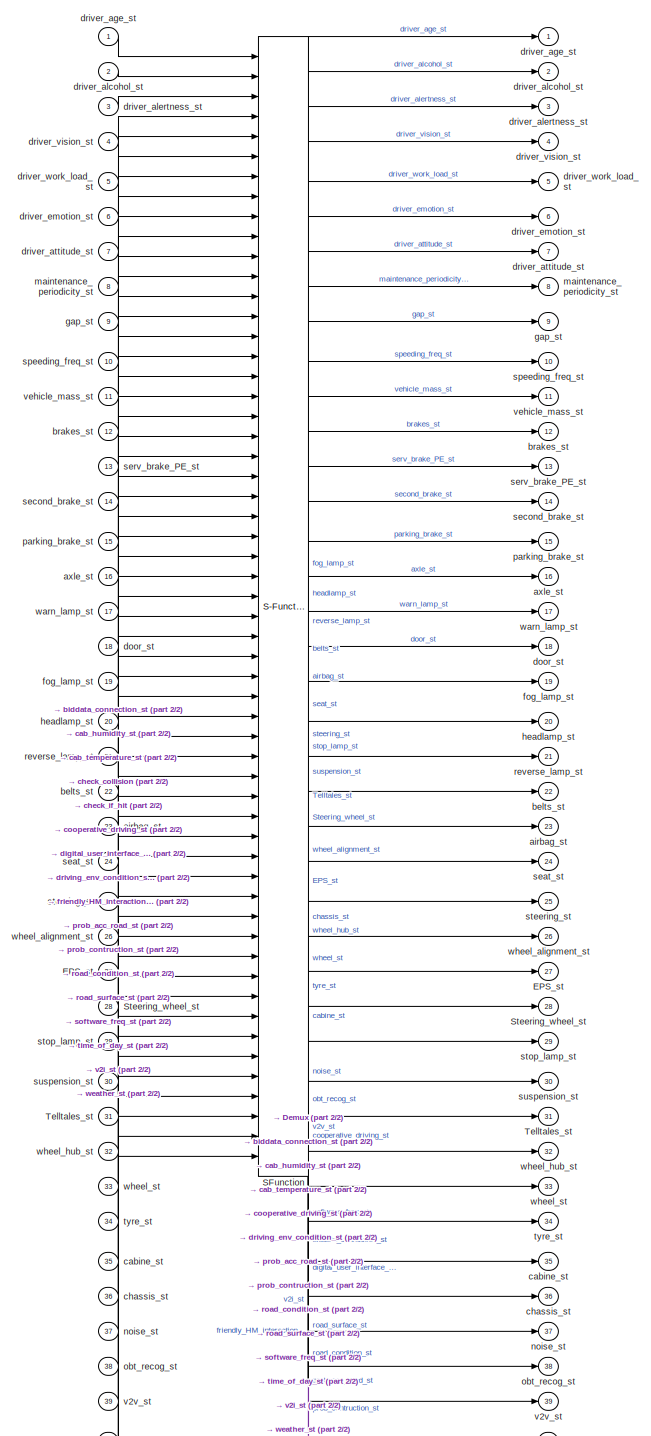
[diagram: CarE_System/Input_module_2.0/MATLAB Function4 - part 1/2, full width, middle band]
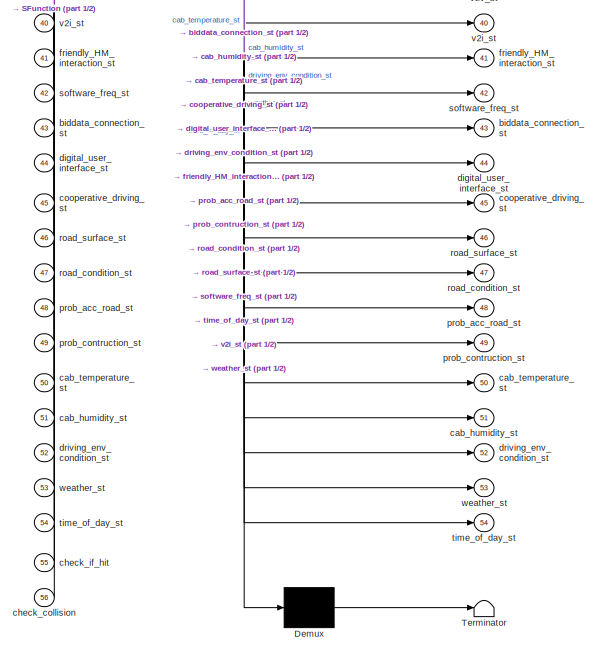
[diagram: CarE_System/Input_module_2.0/MATLAB Function4 - part 2/2, full width, bottom band]
BLOCK [SubSystem] CarE_System/Input_module_2.0/MATLAB Function4
  ErrorFcn = Stateflow.Translate.translate
  PermitHierarchicalResolution = ExplicitOnly
  Ports = [56, 54]
  RequestExecContextInheritance = off
  SFBlockType = MATLAB Function
  TreatAsAtomicUnit = on
BLOCK [Demux] CarE_System/Input_module_2.0/MATLAB Function4/ Demux 
  Outputs = 1
  Ports = [1, 1]
BLOCK [S-Function] CarE_System/Input_module_2.0/MATLAB Function4/ SFunction 
  EnableBusSupport = on
  FunctionName = sf_sfun
  PortCounts = [56 55]
  Ports = [56, 55]
  SFcnIsStateOwnerBlock = off
  SFunctionDeploymentMode = off
  Tag = Stateflow S-Function 41
BLOCK [Terminator] CarE_System/Input_module_2.0/MATLAB Function4/ Terminator 
BLOCK [Outport] CarE_System/Input_module_2.0/MATLAB Function4/EPS_st
  IconDisplay = Port number
  Port = 27
BLOCK [Inport] CarE_System/Input_module_2.0/MATLAB Function4/EPS_st 
  IconDisplay = Port number
  Port = 27
BLOCK [Outport] CarE_System/Input_module_2.0/MATLAB Function4/Steering_wheel_st
  IconDisplay = Port number
  Port = 28
BLOCK [Inport] CarE_System/Input_module_2.0/MATLAB Function4/Steering_wheel_st 
  IconDisplay = Port number
  Port = 28
BLOCK [Outport] CarE_System/Input_module_2.0/MATLAB Function4/Telltales_st
  IconDisplay = Port number
  Port = 31
BLOCK [Inport] CarE_System/Input_module_2.0/MATLAB Function4/Telltales_st 
  IconDisplay = Port number
  Port = 31
BLOCK [Outport] CarE_System/Input_module_2.0/MATLAB Function4/airbag_st
  IconDisplay = Port number
  Port = 23
BLOCK [Inport] CarE_System/Input_module_2.0/MATLAB Function4/airbag_st 
  IconDisplay = Port number
  Port = 23
BLOCK [Outport] CarE_System/Input_module_2.0/MATLAB Function4/axle_st
  IconDisplay = Port number
  Port = 16
BLOCK [Inport] CarE_System/Input_module_2.0/MATLAB Function4/axle_st 
  IconDisplay = Port number
  Port = 16
BLOCK [Outport] CarE_System/Input_module_2.0/MATLAB Function4/belts_st
  IconDisplay = Port number
  Port = 22
BLOCK [Inport] CarE_System/Input_module_2.0/MATLAB Function4/belts_st 
  IconDisplay = Port number
  Port = 22
BLOCK [Outport] CarE_System/Input_module_2.0/MATLAB Function4/biddata_connection_st
  IconDisplay = Port number
  Port = 43
BLOCK [Inport] CarE_System/Input_module_2.0/MATLAB Function4/biddata_connection_st 
  IconDisplay = Port number
  Port = 43
BLOCK [Outport] CarE_System/Input_module_2.0/MATLAB Function4/brakes_st
  IconDisplay = Port number
  Port = 12
BLOCK [Inport] CarE_System/Input_module_2.0/MATLAB Function4/brakes_st 
  IconDisplay = Port number
  Port = 12
BLOCK [Outport] CarE_System/Input_module_2.0/MATLAB Function4/cab_humidity_st
  IconDisplay = Port number
  Port = 51
BLOCK [Inport] CarE_System/Input_module_2.0/MATLAB Function4/cab_humidity_st 
  IconDisplay = Port number
  Port = 51
BLOCK [Outport] CarE_System/Input_module_2.0/MATLAB Function4/cab_temperature_st
  IconDisplay = Port number
  Port = 50
BLOCK [Inport] CarE_System/Input_module_2.0/MATLAB Function4/cab_temperature_st 
  IconDisplay = Port number
  Port = 50
BLOCK [Outport] CarE_System/Input_module_2.0/MATLAB Function4/cabine_st
  IconDisplay = Port number
  Port = 35
BLOCK [Inport] CarE_System/Input_module_2.0/MATLAB Function4/cabine_st 
  IconDisplay = Port number
  Port = 35
BLOCK [Outport] CarE_System/Input_module_2.0/MATLAB Function4/chassis_st
  IconDisplay = Port number
  Port = 36
BLOCK [Inport] CarE_System/Input_module_2.0/MATLAB Function4/chassis_st 
  IconDisplay = Port number
  Port = 36
BLOCK [Inport] CarE_System/Input_module_2.0/MATLAB Function4/check_collision
  IconDisplay = Port number
  Port = 56
BLOCK [Inport] CarE_System/Input_module_2.0/MATLAB Function4/check_if_hit
  IconDisplay = Port number
  Port = 55
BLOCK [Outport] CarE_System/Input_module_2.0/MATLAB Function4/cooperative_driving_st
  IconDisplay = Port number
  Port = 45
BLOCK [Inport] CarE_System/Input_module_2.0/MATLAB Function4/cooperative_driving_st 
  IconDisplay = Port number
  Port = 45
BLOCK [Outport] CarE_System/Input_module_2.0/MATLAB Function4/digital_user_interface_st
  IconDisplay = Port number
  Port = 44
BLOCK [Inport] CarE_System/Input_module_2.0/MATLAB Function4/digital_user_interface_st 
  IconDisplay = Port number
  Port = 44
BLOCK [Outport] CarE_System/Input_module_2.0/MATLAB Function4/door_st
  IconDisplay = Port number
  Port = 18
BLOCK [Inport] CarE_System/Input_module_2.0/MATLAB Function4/door_st 
  IconDisplay = Port number
  Port = 18
BLOCK [Outport] CarE_System/Input_module_2.0/MATLAB Function4/driver_age_st
  IconDisplay = Port number
BLOCK [Inport] CarE_System/Input_module_2.0/MATLAB Function4/driver_age_st 
  IconDisplay = Port number
BLOCK [Outport] CarE_System/Input_module_2.0/MATLAB Function4/driver_alcohol_st
  IconDisplay = Port number
  Port = 2
BLOCK [Inport] CarE_System/Input_module_2.0/MATLAB Function4/driver_alcohol_st 
  IconDisplay = Port number
  Port = 2
BLOCK [Outport] CarE_System/Input_module_2.0/MATLAB Function4/driver_alertness_st
  IconDisplay = Port number
  Port = 3
BLOCK [Inport] CarE_System/Input_module_2.0/MATLAB Function4/driver_alertness_st 
  IconDisplay = Port number
  Port = 3
BLOCK [Outport] CarE_System/Input_module_2.0/MATLAB Function4/driver_attitude_st
  IconDisplay = Port number
  Port = 7
BLOCK [Inport] CarE_System/Input_module_2.0/MATLAB Function4/driver_attitude_st 
  IconDisplay = Port number
  Port = 7
BLOCK [Outport] CarE_System/Input_module_2.0/MATLAB Function4/driver_emotion_st
  IconDisplay = Port number
  Port = 6
BLOCK [Inport] CarE_System/Input_module_2.0/MATLAB Function4/driver_emotion_st 
  IconDisplay = Port number
  Port = 6
BLOCK [Outport] CarE_System/Input_module_2.0/MATLAB Function4/driver_vision_st
  IconDisplay = Port number
  Port = 4
BLOCK [Inport] CarE_System/Input_module_2.0/MATLAB Function4/driver_vision_st 
  IconDisplay = Port number
  Port = 4
BLOCK [Outport] CarE_System/Input_module_2.0/MATLAB Function4/driver_work_load_st
  IconDisplay = Port number
  Port = 5
BLOCK [Inport] CarE_System/Input_module_2.0/MATLAB Function4/driver_work_load_st 
  IconDisplay = Port number
  Port = 5
BLOCK [Outport] CarE_System/Input_module_2.0/MATLAB Function4/driving_env_condition_st
  IconDisplay = Port number
  Port = 52
BLOCK [Inport] CarE_System/Input_module_2.0/MATLAB Function4/driving_env_condition_st 
  IconDisplay = Port number
  Port = 52
BLOCK [Outport] CarE_System/Input_module_2.0/MATLAB Function4/fog_lamp_st
  IconDisplay = Port number
  Port = 19
BLOCK [Inport] CarE_System/Input_module_2.0/MATLAB Function4/fog_lamp_st 
  IconDisplay = Port number
  Port = 19
BLOCK [Outport] CarE_System/Input_module_2.0/MATLAB Function4/friendly_HM_interaction_st
  IconDisplay = Port number
  Port = 41
BLOCK [Inport] CarE_System/Input_module_2.0/MATLAB Function4/friendly_HM_interaction_st 
  IconDisplay = Port number
  Port = 41
BLOCK [Outport] CarE_System/Input_module_2.0/MATLAB Function4/gap_st
  IconDisplay = Port number
  Port = 9
BLOCK [Inport] CarE_System/Input_module_2.0/MATLAB Function4/gap_st 
  IconDisplay = Port number
  Port = 9
BLOCK [Outport] CarE_System/Input_module_2.0/MATLAB Function4/headlamp_st
  IconDisplay = Port number
  Port = 20
BLOCK [Inport] CarE_System/Input_module_2.0/MATLAB Function4/headlamp_st 
  IconDisplay = Port number
  Port = 20
BLOCK [Outport] CarE_System/Input_module_2.0/MATLAB Function4/maintenance_periodicity_st
  IconDisplay = Port number
  Port = 8
BLOCK [Inport] CarE_System/Input_module_2.0/MATLAB Function4/maintenance_periodicity_st 
  IconDisplay = Port number
  Port = 8
BLOCK [Outport] CarE_System/Input_module_2.0/MATLAB Function4/noise_st
  IconDisplay = Port number
  Port = 37
BLOCK [Inport] CarE_System/Input_module_2.0/MATLAB Function4/noise_st 
  IconDisplay = Port number
  Port = 37
BLOCK [Outport] CarE_System/Input_module_2.0/MATLAB Function4/obt_recog_st
  IconDisplay = Port number
  Port = 38
BLOCK [Inport] CarE_System/Input_module_2.0/MATLAB Function4/obt_recog_st 
  IconDisplay = Port number
  Port = 38
BLOCK [Outport] CarE_System/Input_module_2.0/MATLAB Function4/parking_brake_st
  IconDisplay = Port number
  Port = 15
BLOCK [Inport] CarE_System/Input_module_2.0/MATLAB Function4/parking_brake_st 
  IconDisplay = Port number
  Port = 15
BLOCK [Outport] CarE_System/Input_module_2.0/MATLAB Function4/prob_acc_road_st
  IconDisplay = Port number
  Port = 48
BLOCK [Inport] CarE_System/Input_module_2.0/MATLAB Function4/prob_acc_road_st 
  IconDisplay = Port number
  Port = 48
BLOCK [Outport] CarE_System/Input_module_2.0/MATLAB Function4/prob_contruction_st
  IconDisplay = Port number
  Port = 49
BLOCK [Inport] CarE_System/Input_module_2.0/MATLAB Function4/prob_contruction_st 
  IconDisplay = Port number
  Port = 49
BLOCK [Outport] CarE_System/Input_module_2.0/MATLAB Function4/reverse_lamp_st
  IconDisplay = Port number
  Port = 21
BLOCK [Inport] CarE_System/Input_module_2.0/MATLAB Function4/reverse_lamp_st 
  IconDisplay = Port number
  Port = 21
BLOCK [Outport] CarE_System/Input_module_2.0/MATLAB Function4/road_condition_st
  IconDisplay = Port number
  Port = 47
BLOCK [Inport] CarE_System/Input_module_2.0/MATLAB Function4/road_condition_st 
  IconDisplay = Port number
  Port = 47
BLOCK [Outport] CarE_System/Input_module_2.0/MATLAB Function4/road_surface_st
  IconDisplay = Port number
  Port = 46
BLOCK [Inport] CarE_System/Input_module_2.0/MATLAB Function4/road_surface_st 
  IconDisplay = Port number
  Port = 46
BLOCK [Outport] CarE_System/Input_module_2.0/MATLAB Function4/seat_st
  IconDisplay = Port number
  Port = 24
BLOCK [Inport] CarE_System/Input_module_2.0/MATLAB Function4/seat_st 
  IconDisplay = Port number
  Port = 24
BLOCK [Outport] CarE_System/Input_module_2.0/MATLAB Function4/second_brake_st
  IconDisplay = Port number
  Port = 14
BLOCK [Inport] CarE_System/Input_module_2.0/MATLAB Function4/second_brake_st 
  IconDisplay = Port number
  Port = 14
BLOCK [Outport] CarE_System/Input_module_2.0/MATLAB Function4/serv_brake_PE_st
  IconDisplay = Port number
  Port = 13
BLOCK [Inport] CarE_System/Input_module_2.0/MATLAB Function4/serv_brake_PE_st 
  IconDisplay = Port number
  Port = 13
BLOCK [Outport] CarE_System/Input_module_2.0/MATLAB Function4/software_freq_st
  IconDisplay = Port number
  Port = 42
BLOCK [Inport] CarE_System/Input_module_2.0/MATLAB Function4/software_freq_st 
  IconDisplay = Port number
  Port = 42
BLOCK [Outport] CarE_System/Input_module_2.0/MATLAB Function4/speeding_freq_st
  IconDisplay = Port number
  Port = 10
BLOCK [Inport] CarE_System/Input_module_2.0/MATLAB Function4/speeding_freq_st 
  IconDisplay = Port number
  Port = 10
BLOCK [Outport] CarE_System/Input_module_2.0/MATLAB Function4/steering_st
  IconDisplay = Port number
  Port = 25
BLOCK [Inport] CarE_System/Input_module_2.0/MATLAB Function4/steering_st 
  IconDisplay = Port number
  Port = 25
BLOCK [Outport] CarE_System/Input_module_2.0/MATLAB Function4/stop_lamp_st
  IconDisplay = Port number
  Port = 29
BLOCK [Inport] CarE_System/Input_module_2.0/MATLAB Function4/stop_lamp_st 
  IconDisplay = Port number
  Port = 29
BLOCK [Outport] CarE_System/Input_module_2.0/MATLAB Function4/suspension_st
  IconDisplay = Port number
  Port = 30
BLOCK [Inport] CarE_System/Input_module_2.0/MATLAB Function4/suspension_st 
  IconDisplay = Port number
  Port = 30
BLOCK [Outport] CarE_System/Input_module_2.0/MATLAB Function4/time_of_day_st
  IconDisplay = Port number
  Port = 54
BLOCK [Inport] CarE_System/Input_module_2.0/MATLAB Function4/time_of_day_st 
  IconDisplay = Port number
  Port = 54
BLOCK [Outport] CarE_System/Input_module_2.0/MATLAB Function4/tyre_st
  IconDisplay = Port number
  Port = 34
BLOCK [Inport] CarE_System/Input_module_2.0/MATLAB Function4/tyre_st 
  IconDisplay = Port number
  Port = 34
BLOCK [Outport] CarE_System/Input_module_2.0/MATLAB Function4/v2i_st
  IconDisplay = Port number
  Port = 40
BLOCK [Inport] CarE_System/Input_module_2.0/MATLAB Function4/v2i_st 
  IconDisplay = Port number
  Port = 40
BLOCK [Outport] CarE_System/Input_module_2.0/MATLAB Function4/v2v_st
  IconDisplay = Port number
  Port = 39
BLOCK [Inport] CarE_System/Input_module_2.0/MATLAB Function4/v2v_st 
  IconDisplay = Port number
  Port = 39
BLOCK [Outport] CarE_System/Input_module_2.0/MATLAB Function4/vehicle_mass_st
  IconDisplay = Port number
  Port = 11
BLOCK [Inport] CarE_System/Input_module_2.0/MATLAB Function4/vehicle_mass_st 
  IconDisplay = Port number
  Port = 11
BLOCK [Outport] CarE_System/Input_module_2.0/MATLAB Function4/warn_lamp_st
  IconDisplay = Port number
  Port = 17
BLOCK [Inport] CarE_System/Input_module_2.0/MATLAB Function4/warn_lamp_st 
  IconDisplay = Port number
  Port = 17
BLOCK [Outport] CarE_System/Input_module_2.0/MATLAB Function4/weather_st
  IconDisplay = Port number
  Port = 53
BLOCK [Inport] CarE_System/Input_module_2.0/MATLAB Function4/weather_st 
  IconDisplay = Port number
  Port = 53
BLOCK [Outport] CarE_System/Input_module_2.0/MATLAB Function4/wheel_alignment_st
  IconDisplay = Port number
  Port = 26
BLOCK [Inport] CarE_System/Input_module_2.0/MATLAB Function4/wheel_alignment_st 
  IconDisplay = Port number
  Port = 26
BLOCK [Outport] CarE_System/Input_module_2.0/MATLAB Function4/wheel_hub_st
  IconDisplay = Port number
  Port = 32
BLOCK [Inport] CarE_System/Input_module_2.0/MATLAB Function4/wheel_hub_st 
  IconDisplay = Port number
  Port = 32
BLOCK [Outport] CarE_System/Input_module_2.0/MATLAB Function4/wheel_st
  IconDisplay = Port number
  Port = 33
BLOCK [Inport] CarE_System/Input_module_2.0/MATLAB Function4/wheel_st 
  IconDisplay = Port number
  Port = 33
BLOCK [S-Function] CarE_System/Input_module_2.0/S-Function1
  EnableBusSupport = off
  FunctionName = infrom_unity
  Ports = [38, 38]
  SFcnIsStateOwnerBlock = off
  SFunctionDeploymentMode = off
BLOCK [S-Function] CarE_System/Input_module_2.0/S-Function2
  EnableBusSupport = off
  FunctionName = check_if_hit
  Ports = [1, 1]
  SFcnIsStateOwnerBlock = off
  SFunctionDeploymentMode = off
BLOCK [S-Function] CarE_System/Input_module_2.0/S-Function3
  EnableBusSupport = off
  FunctionName = collisiondetection
  Ports = [1, 1]
  SFcnIsStateOwnerBlock = off
  SFunctionDeploymentMode = off
BLOCK [Outport] CarE_System/Input_module_2.0/Un_Obj_recog
  IconDisplay = Port number
  Port = 60
BLOCK [Outport] CarE_System/Input_module_2.0/accidents_road
  IconDisplay = Port number
  Port = 58
BLOCK [Outport] CarE_System/Input_module_2.0/airbag_st
  IconDisplay = Port number
  Port = 23
BLOCK [Outport] CarE_System/Input_module_2.0/average_speed
  IconDisplay = Port number
  Port = 63
BLOCK [Outport] CarE_System/Input_module_2.0/avg_accident_road
  IconDisplay = Port number
  Port = 56
BLOCK [Outport] CarE_System/Input_module_2.0/avg_gap
  IconDisplay = Port number
  Port = 59
BLOCK [Outport] CarE_System/Input_module_2.0/axle_st
  IconDisplay = Port number
  Port = 16
BLOCK [Outport] CarE_System/Input_module_2.0/belts_st
  IconDisplay = Port number
  Port = 22
BLOCK [Outport] CarE_System/Input_module_2.0/bigdata_connection_st
  IconDisplay = Port number
  Port = 43
BLOCK [Outport] CarE_System/Input_module_2.0/brakes_st
  IconDisplay = Port number
  Port = 12
BLOCK [Outport] CarE_System/Input_module_2.0/cab_humiity_st
  IconDisplay = Port number
  Port = 51
BLOCK [Outport] CarE_System/Input_module_2.0/cab_temperature_st
  IconDisplay = Port number
  Port = 50
BLOCK [Outport] CarE_System/Input_module_2.0/cabine_st
  IconDisplay = Port number
  Port = 35
BLOCK [Outport] CarE_System/Input_module_2.0/chassis_st
  IconDisplay = Port number
  Port = 36
BLOCK [Outport] CarE_System/Input_module_2.0/cooperative_driving_st
  IconDisplay = Port number
  Port = 45
BLOCK [Outport] CarE_System/Input_module_2.0/digital_user_interface_st
  IconDisplay = Port number
  Port = 44
BLOCK [Inport] CarE_System/Input_module_2.0/distance
  IconDisplay = Port number
BLOCK [Outport] CarE_System/Input_module_2.0/door_st
  IconDisplay = Port number
  Port = 18
BLOCK [Outport] CarE_System/Input_module_2.0/driver_age_st
  IconDisplay = Port number
BLOCK [Outport] CarE_System/Input_module_2.0/driver_alcohol_st
  IconDisplay = Port number
  Port = 2
BLOCK [Outport] CarE_System/Input_module_2.0/driver_alertness_st
  IconDisplay = Port number
  Port = 3
BLOCK [Outport] CarE_System/Input_module_2.0/driver_attitude_st
  IconDisplay = Port number
  Port = 7
BLOCK [Outport] CarE_System/Input_module_2.0/driver_emotion_st
  IconDisplay = Port number
  Port = 6
BLOCK [Outport] CarE_System/Input_module_2.0/driver_vision_st
  IconDisplay = Port number
  Port = 4
BLOCK [Outport] CarE_System/Input_module_2.0/driver_workload_st
  IconDisplay = Port number
  Port = 5
BLOCK [Outport] CarE_System/Input_module_2.0/driving_env_contition
  IconDisplay = Port number
  Port = 52
BLOCK [Outport] CarE_System/Input_module_2.0/eps_st
  IconDisplay = Port number
  Port = 27
BLOCK [Outport] CarE_System/Input_module_2.0/fog_lamp_st
  IconDisplay = Port number
  Port = 19
BLOCK [Inport] CarE_System/Input_module_2.0/gap
  IconDisplay = Port number
  Port = 2
BLOCK [Outport] CarE_System/Input_module_2.0/gap_st
  IconDisplay = Port number
  Port = 9
BLOCK [Outport] CarE_System/Input_module_2.0/head_lamp_st
  IconDisplay = Port number
  Port = 20
BLOCK [Outport] CarE_System/Input_module_2.0/legal_speed
  IconDisplay = Port number
  Port = 65
BLOCK [Outport] CarE_System/Input_module_2.0/maintanance_periodicity_st
  IconDisplay = Port number
  Port = 8
BLOCK [Outport] CarE_System/Input_module_2.0/max_car_speed
  IconDisplay = Port number
  Port = 66
BLOCK [Outport] CarE_System/Input_module_2.0/noise_st
  IconDisplay = Port number
  Port = 37
BLOCK [Outport] CarE_System/Input_module_2.0/obt_recog_st
  IconDisplay = Port number
  Port = 38
BLOCK [Outport] CarE_System/Input_module_2.0/parking_brake_st
  IconDisplay = Port number
  Port = 15
BLOCK [Outport] CarE_System/Input_module_2.0/pedestrian_active
  IconDisplay = Port number
  Port = 64
BLOCK [Outport] CarE_System/Input_module_2.0/prob_acc_road_st
  IconDisplay = Port number
  Port = 48
BLOCK [Outport] CarE_System/Input_module_2.0/prob_construction_st
  IconDisplay = Port number
  Port = 49
BLOCK [Outport] CarE_System/Input_module_2.0/r_personality
  IconDisplay = Port number
  Port = 55
BLOCK [Display] CarE_System/Input_module_2.0/rate_acc
  Decimation = 1
  Ports = [1]
BLOCK [Outport] CarE_System/Input_module_2.0/rate_acceleration
  IconDisplay = Port number
  Port = 61
BLOCK [Display] CarE_System/Input_module_2.0/rate_desacc
  Decimation = 1
  Ports = [1]
BLOCK [Outport] CarE_System/Input_module_2.0/rate_desceleration
  IconDisplay = Port number
  Port = 62
BLOCK [Outport] CarE_System/Input_module_2.0/reverse_lamps_st
  IconDisplay = Port number
  Port = 21
BLOCK [Outport] CarE_System/Input_module_2.0/road_condition_st
  IconDisplay = Port number
  Port = 47
BLOCK [Outport] CarE_System/Input_module_2.0/road_surface_st
  IconDisplay = Port number
  Port = 46
BLOCK [Outport] CarE_System/Input_module_2.0/sd_accident_road
  IconDisplay = Port number
  Port = 57
BLOCK [Outport] CarE_System/Input_module_2.0/seat_st
  IconDisplay = Port number
  Port = 24
BLOCK [Outport] CarE_System/Input_module_2.0/second_brake_st
  IconDisplay = Port number
  Port = 14
BLOCK [Outport] CarE_System/Input_module_2.0/service_brak_st
  IconDisplay = Port number
  Port = 13
BLOCK [Outport] CarE_System/Input_module_2.0/software_freq_st
  IconDisplay = Port number
  Port = 42
BLOCK [Outport] CarE_System/Input_module_2.0/speeding_freq_st 
  IconDisplay = Port number
  Port = 10
BLOCK [Outport] CarE_System/Input_module_2.0/steering_st
  IconDisplay = Port number
  Port = 25
BLOCK [Outport] CarE_System/Input_module_2.0/stop_lamp_st
  IconDisplay = Port number
  Port = 29
BLOCK [Outport] CarE_System/Input_module_2.0/streering_wheel_st
  IconDisplay = Port number
  Port = 28
BLOCK [Outport] CarE_System/Input_module_2.0/suspension_st
  IconDisplay = Port number
  Port = 30
BLOCK [Outport] CarE_System/Input_module_2.0/telltales_st
  IconDisplay = Port number
  Port = 31
BLOCK [Outport] CarE_System/Input_module_2.0/time_of_day_st
  IconDisplay = Port number
  Port = 54
BLOCK [Outport] CarE_System/Input_module_2.0/tyre_st
  IconDisplay = Port number
  Port = 34
BLOCK [Outport] CarE_System/Input_module_2.0/v2i_st
  IconDisplay = Port number
  Port = 40
BLOCK [Outport] CarE_System/Input_module_2.0/v2v_st
  IconDisplay = Port number
  Port = 39
BLOCK [Outport] CarE_System/Input_module_2.0/vehicle_mass_st
  IconDisplay = Port number
  Port = 11
BLOCK [Outport] CarE_System/Input_module_2.0/warm_lamp_st
  IconDisplay = Port number
  Port = 17
BLOCK [Outport] CarE_System/Input_module_2.0/weather_st
  IconDisplay = Port number
  Port = 53
BLOCK [Outport] CarE_System/Input_module_2.0/wheel_alignment_st
  IconDisplay = Port number
  Port = 26
BLOCK [Outport] CarE_System/Input_module_2.0/wheel_st
  IconDisplay = Port number
  Port = 33
BLOCK [Outport] CarE_System/Input_module_2.0/wheelhub_st
  IconDisplay = Port number
  Port = 32
BLOCK [SubSystem] CarE_System/MATLAB Function
  ErrorFcn = Stateflow.Translate.translate
  PermitHierarchicalResolution = ExplicitOnly
  Ports = [2, 1]
  RequestExecContextInheritance = off
  SFBlockType = MATLAB Function
  TreatAsAtomicUnit = on
BLOCK [Demux] CarE_System/MATLAB Function/ Demux 
  Outputs = 1
  Ports = [1, 1]
BLOCK [S-Function] CarE_System/MATLAB Function/ SFunction 
  EnableBusSupport = on
  FunctionName = sf_sfun
  PortCounts = [2 2]
  Ports = [2, 2]
  SFcnIsStateOwnerBlock = off
  SFunctionDeploymentMode = off
  Tag = Stateflow S-Function 43
BLOCK [Terminator] CarE_System/MATLAB Function/ Terminator 
BLOCK [Outport] CarE_System/MATLAB Function/HF_modified
  IconDisplay = Port number
BLOCK [Inport] CarE_System/MATLAB Function/Health_factor
  IconDisplay = Port number
BLOCK [Inport] CarE_System/MATLAB Function/SF
  IconDisplay = Port number
  Port = 2
BLOCK [SubSystem] CarE_System/Mapping Module
  Ports = [4, 8]
  RequestExecContextInheritance = off
BLOCK [Display] CarE_System/Mapping Module/Display27
  Decimation = 1
  Ports = [1]
BLOCK [Display] CarE_System/Mapping Module/Display28
  Decimation = 1
  Ports = [1]
BLOCK [Display] CarE_System/Mapping Module/Display29
  Decimation = 1
  Ports = [1]
BLOCK [Display] CarE_System/Mapping Module/Display30
  Decimation = 1
  Ports = [1]
BLOCK [Display] CarE_System/Mapping Module/Display31
  Decimation = 1
  Ports = [1]
BLOCK [Display] CarE_System/Mapping Module/Display32
  Decimation = 1
  Ports = [1]
BLOCK [Display] CarE_System/Mapping Module/Display33
  Decimation = 1
  Ports = [1]
BLOCK [Display] CarE_System/Mapping Module/Display34
  Decimation = 1
  Ports = [1]
BLOCK [Display] CarE_System/Mapping Module/Display54
  Decimation = 1
  Ports = [1]
BLOCK [SubSystem] CarE_System/Mapping Module/MATLAB Function to map intensity values to facial expressions
  ErrorFcn = Stateflow.Translate.translate
  PermitHierarchicalResolution = ExplicitOnly
  Ports = [3, 8]
  RequestExecContextInheritance = off
  SFBlockType = MATLAB Function
  TreatAsAtomicUnit = on
BLOCK [Demux] CarE_System/Mapping Module/MATLAB Function to map intensity values to facial expressions/ Demux 
  Outputs = 1
  Ports = [1, 1]
BLOCK [S-Function] CarE_System/Mapping Module/MATLAB Function to map intensity values to facial expressions/ SFunction 
  EnableBusSupport = on
  FunctionName = sf_sfun
  PortCounts = [3 9]
  Ports = [3, 9]
  SFcnIsStateOwnerBlock = off
  SFunctionDeploymentMode = off
  Tag = Stateflow S-Function 1
BLOCK [Terminator] CarE_System/Mapping Module/MATLAB Function to map intensity values to facial expressions/ Terminator 
BLOCK [Outport] CarE_System/Mapping Module/MATLAB Function to map intensity values to facial expressions/anger_val
  IconDisplay = Port number
  VectorParamsAs1DForOutWhenUnconnected = off
BLOCK [Inport] CarE_System/Mapping Module/MATLAB Function to map intensity values to facial expressions/contribution
  IconDisplay = Port number
BLOCK [Outport] CarE_System/Mapping Module/MATLAB Function to map intensity values to facial expressions/disgust_val
  IconDisplay = Port number
  Port = 2
  VectorParamsAs1DForOutWhenUnconnected = off
BLOCK [Outport] CarE_System/Mapping Module/MATLAB Function to map intensity values to facial expressions/fear_val
  IconDisplay = Port number
  Port = 3
  VectorParamsAs1DForOutWhenUnconnected = off
BLOCK [Outport] CarE_System/Mapping Module/MATLAB Function to map intensity values to facial expressions/happiness_val
  IconDisplay = Port number
  Port = 4
  VectorParamsAs1DForOutWhenUnconnected = off
BLOCK [Inport] CarE_System/Mapping Module/MATLAB Function to map intensity values to facial expressions/health_factor
  IconDisplay = Port number
  Port = 3
BLOCK [Inport] CarE_System/Mapping Module/MATLAB Function to map intensity values to facial expressions/index
  IconDisplay = Port number
  Port = 2
BLOCK [Outport] CarE_System/Mapping Module/MATLAB Function to map intensity values to facial expressions/neutral_val
  IconDisplay = Port number
  Port = 5
  VectorParamsAs1DForOutWhenUnconnected = off
BLOCK [Outport] CarE_System/Mapping Module/MATLAB Function to map intensity values to facial expressions/sadness_val
  IconDisplay = Port number
  Port = 6
  VectorParamsAs1DForOutWhenUnconnected = off
BLOCK [Outport] CarE_System/Mapping Module/MATLAB Function to map intensity values to facial expressions/sum
  IconDisplay = Port number
  Port = 8
  VectorParamsAs1DForOutWhenUnconnected = off
BLOCK [Outport] CarE_System/Mapping Module/MATLAB Function to map intensity values to facial expressions/surprise_val
  IconDisplay = Port number
  Port = 7
  VectorParamsAs1DForOutWhenUnconnected = off
BLOCK [Scope] CarE_System/Mapping Module/Scope122
  Floating = off
  NumInputPorts = 1
  Ports = [1]
  ScopeSpecificationString = Simulink.scopes.TimeScopeBlockCfg('CurrentConfiguration', extmgr.ConfigurationSet(extmgr.Configuration('Core','General UI',true),extmgr.Configuration('Core','Source UI',true),extmgr.Configuration('Sources','WiredSimulink',true,'DataLoggingVariableName','ScopeData107'),extmgr.Configuration('Visuals','Time Domain',true,'SerializedDisplays',{struct('MinYLimReal','0.9','MaxYLimReal','2.00000','YLabelR...<+1408ch>
BLOCK [Scope] CarE_System/Mapping Module/Scope37
  Floating = off
  NumInputPorts = 1
  Ports = [1]
  ScopeSpecificationString = Simulink.scopes.TimeScopeBlockCfg('CurrentConfiguration', extmgr.ConfigurationSet(extmgr.Configuration('Core','General UI',true),extmgr.Configuration('Core','Source UI',true),extmgr.Configuration('Sources','WiredSimulink',true,'DataLoggingVariableName','ScopeData108'),extmgr.Configuration('Visuals','Time Domain',true,'SerializedDisplays',{struct('MinYLimReal','-0.60365','MaxYLimReal','5.48359','YL...<+1422ch>
BLOCK [Scope] CarE_System/Mapping Module/Scope39
  Floating = off
  NumInputPorts = 1
  Ports = [1]
  ScopeSpecificationString = Simulink.scopes.TimeScopeBlockCfg('CurrentConfiguration', extmgr.ConfigurationSet(extmgr.Configuration('Core','General UI',true),extmgr.Configuration('Core','Source UI',true),extmgr.Configuration('Sources','WiredSimulink',true,'DataLoggingVariableName','ScopeData109'),extmgr.Configuration('Visuals','Time Domain',true,'SerializedDisplays',{struct('MinYLimReal','-0.03831','MaxYLimReal','0.40563','YL...<+1461ch>
BLOCK [Scope] CarE_System/Mapping Module/Scope40
  Floating = off
  NumInputPorts = 1
  Ports = [1]
  ScopeSpecificationString = Simulink.scopes.TimeScopeBlockCfg('CurrentConfiguration', extmgr.ConfigurationSet(extmgr.Configuration('Core','General UI',true),extmgr.Configuration('Core','Source UI',true),extmgr.Configuration('Sources','WiredSimulink',true,'DataLoggingVariableName','ScopeData110'),extmgr.Configuration('Visuals','Time Domain',true,'SerializedDisplays',{struct('MinYLimReal','-0.06645','MaxYLimReal','0.6331','YLa...<+1430ch>
BLOCK [Scope] CarE_System/Mapping Module/Scope41
  Floating = off
  NumInputPorts = 1
  Ports = [1]
  ScopeSpecificationString = Simulink.scopes.TimeScopeBlockCfg('CurrentConfiguration', extmgr.ConfigurationSet(extmgr.Configuration('Core','General UI',true),extmgr.Configuration('Core','Source UI',true),extmgr.Configuration('Sources','WiredSimulink',true,'DataLoggingVariableName','ScopeData111'),extmgr.Configuration('Visuals','Time Domain',true,'SerializedDisplays',{struct('MinYLimReal','-0.02198','MaxYLimReal','0.20909','YL...<+1431ch>
BLOCK [Scope] CarE_System/Mapping Module/Scope42
  Floating = off
  NumInputPorts = 1
  Ports = [1]
  ScopeSpecificationString = Simulink.scopes.TimeScopeBlockCfg('CurrentConfiguration', extmgr.ConfigurationSet(extmgr.Configuration('Core','General UI',true),extmgr.Configuration('Core','Source UI',true),extmgr.Configuration('Sources','WiredSimulink',true,'DataLoggingVariableName','ScopeData112'),extmgr.Configuration('Visuals','Time Domain',true,'SerializedDisplays',{struct('MinYLimReal','-0.00161','MaxYLimReal','0.34545','YL...<+1436ch>
BLOCK [Scope] CarE_System/Mapping Module/Scope43
  Floating = off
  NumInputPorts = 1
  Ports = [1]
  ScopeSpecificationString = Simulink.scopes.TimeScopeBlockCfg('CurrentConfiguration', extmgr.ConfigurationSet(extmgr.Configuration('Core','General UI',true),extmgr.Configuration('Core','Source UI',true),extmgr.Configuration('Sources','WiredSimulink',true,'DataLoggingVariableName','ScopeData113'),extmgr.Configuration('Visuals','Time Domain',true,'SerializedDisplays',{struct('MinYLimReal','-1.00000','MaxYLimReal','1.00000','YL...<+1434ch>
BLOCK [Scope] CarE_System/Mapping Module/Scope44
  Floating = off
  NumInputPorts = 1
  Ports = [1]
  ScopeSpecificationString = Simulink.scopes.TimeScopeBlockCfg('CurrentConfiguration', extmgr.ConfigurationSet(extmgr.Configuration('Core','General UI',true),extmgr.Configuration('Core','Source UI',true),extmgr.Configuration('Sources','WiredSimulink',true,'DataLoggingVariableName','ScopeData114'),extmgr.Configuration('Visuals','Time Domain',true,'SerializedDisplays',{struct('MinYLimReal','-0.04851','MaxYLimReal','0.44214','YL...<+1434ch>
BLOCK [Scope] CarE_System/Mapping Module/Scope45
  Floating = off
  NumInputPorts = 1
  Ports = [1]
  ScopeSpecificationString = Simulink.scopes.TimeScopeBlockCfg('CurrentConfiguration', extmgr.ConfigurationSet(extmgr.Configuration('Core','General UI',true),extmgr.Configuration('Core','Source UI',true),extmgr.Configuration('Sources','WiredSimulink',true,'DataLoggingVariableName','ScopeData115'),extmgr.Configuration('Visuals','Time Domain',true,'SerializedDisplays',{struct('MinYLimReal','-0.02624','MaxYLimReal','0.2463','YLa...<+1431ch>
BLOCK [Outport] CarE_System/Mapping Module/anger_val
  IconDisplay = Port number
  Port = 2
  VectorParamsAs1DForOutWhenUnconnected = off
BLOCK [Inport] CarE_System/Mapping Module/contribution
  IconDisplay = Port number
  Port = 2
BLOCK [Outport] CarE_System/Mapping Module/disgust_val
  IconDisplay = Port number
  Port = 3
  VectorParamsAs1DForOutWhenUnconnected = off
BLOCK [Outport] CarE_System/Mapping Module/fear_val
  IconDisplay = Port number
  Port = 4
  VectorParamsAs1DForOutWhenUnconnected = off
BLOCK [Outport] CarE_System/Mapping Module/happiness_val
  IconDisplay = Port number
  Port = 5
  VectorParamsAs1DForOutWhenUnconnected = off
BLOCK [Inport] CarE_System/Mapping Module/health_factor
  IconDisplay = Port number
  Port = 4
BLOCK [Inport] CarE_System/Mapping Module/index
  IconDisplay = Port number
  Port = 3
BLOCK [Inport] CarE_System/Mapping Module/mood
  IconDisplay = Port number
BLOCK [Outport] CarE_System/Mapping Module/mood_val
  IconDisplay = Port number
  VectorParamsAs1DForOutWhenUnconnected = off
BLOCK [Outport] CarE_System/Mapping Module/neutral_val
  IconDisplay = Port number
  Port = 6
  VectorParamsAs1DForOutWhenUnconnected = off
BLOCK [Outport] CarE_System/Mapping Module/sadness_val
  IconDisplay = Port number
  Port = 7
  VectorParamsAs1DForOutWhenUnconnected = off
BLOCK [Outport] CarE_System/Mapping Module/surprise_val
  IconDisplay = Port number
  Port = 8
  VectorParamsAs1DForOutWhenUnconnected = off
BLOCK [SubSystem] CarE_System/Mood Module
  Ports = [22, 3]
  RequestExecContextInheritance = off
BLOCK [Delay] CarE_System/Mood Module/Delay2
  DelayLength = 1
  InitialCondition = 0
  InputPortMap = u0
  Ports = [1, 1]
BLOCK [Display] CarE_System/Mood Module/Display1
  Decimation = 1
  Ports = [1]
BLOCK [Display] CarE_System/Mood Module/Display10
  Decimation = 1
  Ports = [1]
BLOCK [Display] CarE_System/Mood Module/Display11
  Decimation = 1
  Format = long
  Ports = [1]
BLOCK [Display] CarE_System/Mood Module/Display12
  Decimation = 1
  Ports = [1]
BLOCK [Display] CarE_System/Mood Module/Display120
  Decimation = 1
  Ports = [1]
BLOCK [Display] CarE_System/Mood Module/Display13
  Decimation = 1
  Ports = [1]
BLOCK [Display] CarE_System/Mood Module/Display14
  Decimation = 1
  Ports = [1]
BLOCK [Display] CarE_System/Mood Module/Display15
  Decimation = 1
  Ports = [1]
BLOCK [Display] CarE_System/Mood Module/Display16
  Decimation = 1
  Ports = [1]
BLOCK [Display] CarE_System/Mood Module/Display17
  Decimation = 1
  Ports = [1]
BLOCK [Display] CarE_System/Mood Module/Display18
  Decimation = 1
  Ports = [1]
BLOCK [Display] CarE_System/Mood Module/Display19
  Decimation = 1
  Ports = [1]
BLOCK [Display] CarE_System/Mood Module/Display2
  Decimation = 1
  Ports = [1]
BLOCK [Display] CarE_System/Mood Module/Display20
  Decimation = 1
  Ports = [1]
BLOCK [Display] CarE_System/Mood Module/Display21
  Decimation = 1
  Ports = [1]
BLOCK [Display] CarE_System/Mood Module/Display22
  Decimation = 1
  Ports = [1]
BLOCK [Display] CarE_System/Mood Module/Display23
  Decimation = 1
  Ports = [1]
BLOCK [Display] CarE_System/Mood Module/Display24
  Decimation = 1
  Ports = [1]
BLOCK [Display] CarE_System/Mood Module/Display25
  Decimation = 1
  Ports = [1]
BLOCK [Display] CarE_System/Mood Module/Display26
  Decimation = 1
  Ports = [1]
BLOCK [Display] CarE_System/Mood Module/Display3
  Decimation = 1
  Ports = [1]
BLOCK [Display] CarE_System/Mood Module/Display35
  Decimation = 1
  Ports = [1]
BLOCK [Display] CarE_System/Mood Module/Display36
  Decimation = 1
  Ports = [1]
BLOCK [Display] CarE_System/Mood Module/Display37
  Decimation = 1
  Ports = [1]
BLOCK [Display] CarE_System/Mood Module/Display38
  Decimation = 1
  Ports = [1]
BLOCK [Display] CarE_System/Mood Module/Display39
  Decimation = 1
  Ports = [1]
BLOCK [Display] CarE_System/Mood Module/Display4
  Decimation = 1
  Ports = [1]
BLOCK [Display] CarE_System/Mood Module/Display40
  Decimation = 1
  Ports = [1]
BLOCK [Display] CarE_System/Mood Module/Display41
  Decimation = 1
  Ports = [1]
BLOCK [Display] CarE_System/Mood Module/Display42
  Decimation = 1
  Ports = [1]
BLOCK [Display] CarE_System/Mood Module/Display43
  Decimation = 1
  Ports = [1]
BLOCK [Display] CarE_System/Mood Module/Display44
  Decimation = 1
  Ports = [1]
BLOCK [Display] CarE_System/Mood Module/Display45
  Decimation = 1
  Ports = [1]
BLOCK [Display] CarE_System/Mood Module/Display46
  Decimation = 1
  Ports = [1]
BLOCK [Display] CarE_System/Mood Module/Display47
  Decimation = 1
  Ports = [1]
BLOCK [Display] CarE_System/Mood Module/Display48
  Decimation = 1
  Ports = [1]
BLOCK [Display] CarE_System/Mood Module/Display49
  Decimation = 1
  Ports = [1]
BLOCK [Display] CarE_System/Mood Module/Display5
  Decimation = 1
  Ports = [1]
BLOCK [Display] CarE_System/Mood Module/Display50
  Decimation = 1
  Ports = [1]
BLOCK [Display] CarE_System/Mood Module/Display51
  Decimation = 1
  Ports = [1]
BLOCK [Display] CarE_System/Mood Module/Display52
  Decimation = 1
  Ports = [1]
BLOCK [Display] CarE_System/Mood Module/Display53
  Decimation = 1
  Ports = [1]
BLOCK [Display] CarE_System/Mood Module/Display6
  Decimation = 1
  Ports = [1]
BLOCK [Display] CarE_System/Mood Module/Display7
  Decimation = 1
  Ports = [1]
BLOCK [Display] CarE_System/Mood Module/Display8
  Decimation = 1
  Ports = [1]
BLOCK [Display] CarE_System/Mood Module/Display9
  Decimation = 1
  Ports = [1]
BLOCK [SubSystem] CarE_System/Mood Module/MATLAB Function1
  ErrorFcn = Stateflow.Translate.translate
  PermitHierarchicalResolution = ExplicitOnly
  Ports = [45, 10]
  RequestExecContextInheritance = off
  SFBlockType = MATLAB Function
  TreatAsAtomicUnit = on
BLOCK [Demux] CarE_System/Mood Module/MATLAB Function1/ Demux 
  Outputs = 1
  Ports = [1, 1]
BLOCK [S-Function] CarE_System/Mood Module/MATLAB Function1/ SFunction 
  EnableBusSupport = on
  FunctionName = sf_sfun
  PortCounts = [45 11]
  Ports = [45, 11]
  SFcnIsStateOwnerBlock = off
  SFunctionDeploymentMode = off
  Tag = Stateflow S-Function 4
BLOCK [Terminator] CarE_System/Mood Module/MATLAB Function1/ Terminator 
BLOCK [Inport] CarE_System/Mood Module/MATLAB Function1/admiration
  IconDisplay = Port number
  Port = 16
BLOCK [Inport] CarE_System/Mood Module/MATLAB Function1/admiration_driver
  IconDisplay = Port number
  Port = 38
BLOCK [Inport] CarE_System/Mood Module/MATLAB Function1/anger
  IconDisplay = Port number
  Port = 19
BLOCK [Inport] CarE_System/Mood Module/MATLAB Function1/anger_driver
  IconDisplay = Port number
  Port = 41
BLOCK [Outport] CarE_System/Mood Module/MATLAB Function1/contribution
  IconDisplay = Port number
  Port = 8
  VectorParamsAs1DForOutWhenUnconnected = off
BLOCK [Inport] CarE_System/Mood Module/MATLAB Function1/disappointment
  IconDisplay = Port number
  Port = 9
BLOCK [Inport] CarE_System/Mood Module/MATLAB Function1/disappointment_driver
  IconDisplay = Port number
  Port = 31
BLOCK [Inport] CarE_System/Mood Module/MATLAB Function1/disliking
  IconDisplay = Port number
  Port = 23
BLOCK [Inport] CarE_System/Mood Module/MATLAB Function1/disliking_driver
  IconDisplay = Port number
  Port = 45
BLOCK [Inport] CarE_System/Mood Module/MATLAB Function1/distress
  IconDisplay = Port number
  Port = 3
BLOCK [Inport] CarE_System/Mood Module/MATLAB Function1/distress_driver
  IconDisplay = Port number
  Port = 25
BLOCK [Inport] CarE_System/Mood Module/MATLAB Function1/fear
  IconDisplay = Port number
  Port = 5
BLOCK [Inport] CarE_System/Mood Module/MATLAB Function1/fear_confirmed
  IconDisplay = Port number
  Port = 7
BLOCK [Inport] CarE_System/Mood Module/MATLAB Function1/fear_confirmed_driver
  IconDisplay = Port number
  Port = 29
BLOCK [Inport] CarE_System/Mood Module/MATLAB Function1/fear_driver
  IconDisplay = Port number
  Port = 27
BLOCK [Inport] CarE_System/Mood Module/MATLAB Function1/gloating
  IconDisplay = Port number
  Port = 12
BLOCK [Inport] CarE_System/Mood Module/MATLAB Function1/gloating_driver
  IconDisplay = Port number
  Port = 34
BLOCK [Inport] CarE_System/Mood Module/MATLAB Function1/gratification
  IconDisplay = Port number
  Port = 20
BLOCK [Inport] CarE_System/Mood Module/MATLAB Function1/gratification_driver
  IconDisplay = Port number
  Port = 42
BLOCK [Inport] CarE_System/Mood Module/MATLAB Function1/gratitude
  IconDisplay = Port number
  Port = 18
BLOCK [Inport] CarE_System/Mood Module/MATLAB Function1/gratitude_driver
  IconDisplay = Port number
  Port = 40
BLOCK [Inport] CarE_System/Mood Module/MATLAB Function1/happy_for
  IconDisplay = Port number
  Port = 10
BLOCK [Inport] CarE_System/Mood Module/MATLAB Function1/happy_for_driver
  IconDisplay = Port number
  Port = 32
BLOCK [Inport] CarE_System/Mood Module/MATLAB Function1/hope
  IconDisplay = Port number
  Port = 4
BLOCK [Inport] CarE_System/Mood Module/MATLAB Function1/hope_driver
  IconDisplay = Port number
  Port = 26
BLOCK [Outport] CarE_System/Mood Module/MATLAB Function1/index
  IconDisplay = Port number
  Port = 9
  VectorParamsAs1DForOutWhenUnconnected = off
BLOCK [Outport] CarE_System/Mood Module/MATLAB Function1/index_negative
  IconDisplay = Port number
  Port = 7
  VectorParamsAs1DForOutWhenUnconnected = off
BLOCK [Outport] CarE_System/Mood Module/MATLAB Function1/index_positive
  IconDisplay = Port number
  Port = 5
  VectorParamsAs1DForOutWhenUnconnected = off
BLOCK [Inport] CarE_System/Mood Module/MATLAB Function1/joy
  IconDisplay = Port number
  Port = 2
BLOCK [Inport] CarE_System/Mood Module/MATLAB Function1/joy_driver
  IconDisplay = Port number
  Port = 24
BLOCK [Inport] CarE_System/Mood Module/MATLAB Function1/liking
  IconDisplay = Port number
  Port = 22
BLOCK [Inport] CarE_System/Mood Module/MATLAB Function1/liking_driver
  IconDisplay = Port number
  Port = 44
BLOCK [Outport] CarE_System/Mood Module/MATLAB Function1/mood
  IconDisplay = Port number
  VectorParamsAs1DForOutWhenUnconnected = off
BLOCK [Outport] CarE_System/Mood Module/MATLAB Function1/n
  IconDisplay = Port number
  Port = 3
  VectorParamsAs1DForOutWhenUnconnected = off
BLOCK [Outport] CarE_System/Mood Module/MATLAB Function1/p
  IconDisplay = Port number
  Port = 2
  VectorParamsAs1DForOutWhenUnconnected = off
BLOCK [Inport] CarE_System/Mood Module/MATLAB Function1/previous_mood
  IconDisplay = Port number
BLOCK [Inport] CarE_System/Mood Module/MATLAB Function1/pride
  IconDisplay = Port number
  Port = 14
BLOCK [Inport] CarE_System/Mood Module/MATLAB Function1/pride_driver
  IconDisplay = Port number
  Port = 36
BLOCK [Inport] CarE_System/Mood Module/MATLAB Function1/relief
  IconDisplay = Port number
  Port = 8
BLOCK [Inport] CarE_System/Mood Module/MATLAB Function1/relief_driver
  IconDisplay = Port number
  Port = 30
BLOCK [Inport] CarE_System/Mood Module/MATLAB Function1/remorse
  IconDisplay = Port number
  Port = 21
BLOCK [Inport] CarE_System/Mood Module/MATLAB Function1/remorse_driver
  IconDisplay = Port number
  Port = 43
BLOCK [Inport] CarE_System/Mood Module/MATLAB Function1/reproach
  IconDisplay = Port number
  Port = 17
BLOCK [Inport] CarE_System/Mood Module/MATLAB Function1/reproach_driver
  IconDisplay = Port number
  Port = 39
BLOCK [Inport] CarE_System/Mood Module/MATLAB Function1/resentment
  IconDisplay = Port number
  Port = 13
BLOCK [Inport] CarE_System/Mood Module/MATLAB Function1/resentment_driver
  IconDisplay = Port number
  Port = 35
BLOCK [Inport] CarE_System/Mood Module/MATLAB Function1/satisfaction
  IconDisplay = Port number
  Port = 6
BLOCK [Inport] CarE_System/Mood Module/MATLAB Function1/satisfaction_driver
  IconDisplay = Port number
  Port = 28
BLOCK [Inport] CarE_System/Mood Module/MATLAB Function1/shame
  IconDisplay = Port number
  Port = 15
BLOCK [Inport] CarE_System/Mood Module/MATLAB Function1/shame_driver
  IconDisplay = Port number
  Port = 37
BLOCK [Inport] CarE_System/Mood Module/MATLAB Function1/sorry_for
  IconDisplay = Port number
  Port = 11
BLOCK [Inport] CarE_System/Mood Module/MATLAB Function1/sorry_for_driver
  IconDisplay = Port number
  Port = 33
BLOCK [Outport] CarE_System/Mood Module/MATLAB Function1/sort_negative
  IconDisplay = Port number
  Port = 6
  VectorParamsAs1DForOutWhenUnconnected = off
BLOCK [Outport] CarE_System/Mood Module/MATLAB Function1/sort_positive
  IconDisplay = Port number
  Port = 4
  VectorParamsAs1DForOutWhenUnconnected = off
BLOCK [Outport] CarE_System/Mood Module/MATLAB Function1/sum_of_contribution
  IconDisplay = Port number
  Port = 10
  VectorParamsAs1DForOutWhenUnconnected = off
BLOCK [Scope] CarE_System/Mood Module/Scope4
  Floating = off
  NumInputPorts = 1
  Ports = [1]
  ScopeSpecificationString = Simulink.scopes.TimeScopeBlockCfg('CurrentConfiguration', extmgr.ConfigurationSet(extmgr.Configuration('Core','General UI',true),extmgr.Configuration('Core','Source UI',true),extmgr.Configuration('Sources','WiredSimulink',true,'DataLoggingVariableName','ScopeData101'),extmgr.Configuration('Visuals','Time Domain',true,'SerializedDisplays',{struct('MinYLimReal','-1.00000','MaxYLimReal','1.00000','YL...<+1436ch>
BLOCK [Scope] CarE_System/Mood Module/Scope98
  Floating = off
  NumInputPorts = 1
  Ports = [1]
  ScopeSpecificationString = Simulink.scopes.TimeScopeBlockCfg('CurrentConfiguration', extmgr.ConfigurationSet(extmgr.Configuration('Core','General UI',true),extmgr.Configuration('Core','Source UI',true),extmgr.Configuration('Sources','WiredSimulink',true,'DataLoggingVariableName','ScopeData103'),extmgr.Configuration('Visuals','Time Domain',true,'SerializedDisplays',{struct('MinYLimReal','0.875','MaxYLimReal','2.125','YLabelR...<+1406ch>
BLOCK [Scope] CarE_System/Mood Module/Sum of negative values
  Floating = off
  NumInputPorts = 1
  Ports = [1]
  ScopeSpecificationString = Simulink.scopes.TimeScopeBlockCfg('CurrentConfiguration', extmgr.ConfigurationSet(extmgr.Configuration('Core','General UI',true),extmgr.Configuration('Core','Source UI',true),extmgr.Configuration('Sources','WiredSimulink',true,'DataLoggingVariableName','ScopeData105'),extmgr.Configuration('Visuals','Time Domain',true,'SerializedDisplays',{struct('MinYLimReal','-148.5','MaxYLimReal','16.5','YLabelR...<+1393ch>
BLOCK [Scope] CarE_System/Mood Module/Sum of positive values
  Floating = off
  NumInputPorts = 1
  Ports = [1]
  ScopeSpecificationString = Simulink.scopes.TimeScopeBlockCfg('CurrentConfiguration', extmgr.ConfigurationSet(extmgr.Configuration('Core','General UI',true),extmgr.Configuration('Core','Source UI',true),extmgr.Configuration('Sources','WiredSimulink',true,'DataLoggingVariableName','ScopeData106'),extmgr.Configuration('Visuals','Time Domain',true,'SerializedDisplays',{struct('MinYLimReal','262.375','MaxYLimReal','568.625','YLa...<+1403ch>
BLOCK [Inport] CarE_System/Mood Module/admiration_dec
  IconDisplay = Port number
  Port = 15
BLOCK [Inport] CarE_System/Mood Module/anger_dec
  IconDisplay = Port number
  Port = 18
BLOCK [Outport] CarE_System/Mood Module/contribution
  IconDisplay = Port number
  Port = 2
  VectorParamsAs1DForOutWhenUnconnected = off
BLOCK [Display] CarE_System/Mood Module/contribution list
  Decimation = 1
  Ports = [1]
BLOCK [Inport] CarE_System/Mood Module/disappointment_dec
  IconDisplay = Port number
  Port = 8
BLOCK [Inport] CarE_System/Mood Module/disliking_dec
  IconDisplay = Port number
  Port = 22
BLOCK [Inport] CarE_System/Mood Module/distress_dec
  IconDisplay = Port number
  Port = 2
BLOCK [Inport] CarE_System/Mood Module/fear_confirmed_dec
  IconDisplay = Port number
  Port = 6
BLOCK [Inport] CarE_System/Mood Module/fear_dec
  IconDisplay = Port number
  Port = 4
BLOCK [Inport] CarE_System/Mood Module/gloating_dec
  IconDisplay = Port number
  Port = 11
BLOCK [Inport] CarE_System/Mood Module/gratification_dec
  IconDisplay = Port number
  Port = 19
BLOCK [Inport] CarE_System/Mood Module/gratitude_dec
  IconDisplay = Port number
  Port = 17
BLOCK [Inport] CarE_System/Mood Module/happy_for_dec
  IconDisplay = Port number
  Port = 9
BLOCK [Inport] CarE_System/Mood Module/hope_dec
  IconDisplay = Port number
  Port = 3
BLOCK [Outport] CarE_System/Mood Module/index
  IconDisplay = Port number
  Port = 3
  VectorParamsAs1DForOutWhenUnconnected = off
BLOCK [Display] CarE_System/Mood Module/index list
  Decimation = 1
  Ports = [1]
BLOCK [Display] CarE_System/Mood Module/index of negative
  Decimation = 1
  Ports = [1]
BLOCK [Display] CarE_System/Mood Module/index of positive
  Decimation = 1
  Ports = [1]
BLOCK [Inport] CarE_System/Mood Module/joy_dec
  IconDisplay = Port number
BLOCK [Inport] CarE_System/Mood Module/liking_dec
  IconDisplay = Port number
  Port = 21
BLOCK [Outport] CarE_System/Mood Module/mood
  IconDisplay = Port number
  VectorParamsAs1DForOutWhenUnconnected = off
BLOCK [Display] CarE_System/Mood Module/negative sorted
  Decimation = 1
  Ports = [1]
BLOCK [Display] CarE_System/Mood Module/positive sorted
  Decimation = 1
  Ports = [1]
BLOCK [Inport] CarE_System/Mood Module/pride_dec
  IconDisplay = Port number
  Port = 13
BLOCK [Inport] CarE_System/Mood Module/relief_dec
  IconDisplay = Port number
  Port = 7
BLOCK [Inport] CarE_System/Mood Module/remorse_dec
  IconDisplay = Port number
  Port = 20
BLOCK [Inport] CarE_System/Mood Module/reproach_dec
  IconDisplay = Port number
  Port = 16
BLOCK [Inport] CarE_System/Mood Module/resentment_dec
  IconDisplay = Port number
  Port = 12
BLOCK [Inport] CarE_System/Mood Module/satisfaction_dec
  IconDisplay = Port number
  Port = 5
BLOCK [Inport] CarE_System/Mood Module/shame_dec
  IconDisplay = Port number
  Port = 14
BLOCK [Inport] CarE_System/Mood Module/sorry_for_dec
  IconDisplay = Port number
  Port = 10
BLOCK [SubSystem] CarE_System/Optimization_module
  Ports = [4, 1]
  RequestExecContextInheritance = off
BLOCK [Constant] CarE_System/Optimization_module/Constant
  Value = 9.81
BLOCK [Display] CarE_System/Optimization_module/Display
  Decimation = 1
  Ports = [1]
BLOCK [SubSystem] CarE_System/Optimization_module/MATLAB Function
  ErrorFcn = Stateflow.Translate.translate
  PermitHierarchicalResolution = ExplicitOnly
  Ports = [32, 1]
  RequestExecContextInheritance = off
  SFBlockType = MATLAB Function
  TreatAsAtomicUnit = on
BLOCK [Demux] CarE_System/Optimization_module/MATLAB Function/ Demux 
  Outputs = 1
  Ports = [1, 1]
BLOCK [S-Function] CarE_System/Optimization_module/MATLAB Function/ SFunction 
  EnableBusSupport = on
  FunctionName = sf_sfun
  PortCounts = [32 2]
  Ports = [32, 2]
  SFcnIsStateOwnerBlock = off
  SFunctionDeploymentMode = off
  Tag = Stateflow S-Function 42
BLOCK [Terminator] CarE_System/Optimization_module/MATLAB Function/ Terminator 
BLOCK [Inport] CarE_System/Optimization_module/MATLAB Function/Mean_acc_road
  IconDisplay = Port number
  Port = 25
BLOCK [Inport] CarE_System/Optimization_module/MATLAB Function/SD_acc_road
  IconDisplay = Port number
  Port = 26
BLOCK [Inport] CarE_System/Optimization_module/MATLAB Function/SF_VC
  IconDisplay = Port number
  Port = 2
BLOCK [Inport] CarE_System/Optimization_module/MATLAB Function/SF_VH
  IconDisplay = Port number
BLOCK [Inport] CarE_System/Optimization_module/MATLAB Function/a_vehicle
  IconDisplay = Port number
  Port = 5
BLOCK [Inport] CarE_System/Optimization_module/MATLAB Function/acc_road_today
  IconDisplay = Port number
  Port = 27
BLOCK [Inport] CarE_System/Optimization_module/MATLAB Function/avg_speed
  IconDisplay = Port number
  Port = 8
BLOCK [Inport] CarE_System/Optimization_module/MATLAB Function/avgspeed_data
  IconDisplay = Port number
  Port = 32
BLOCK [Inport] CarE_System/Optimization_module/MATLAB Function/check_if_hit
  IconDisplay = Port number
  Port = 23
BLOCK [Inport] CarE_System/Optimization_module/MATLAB Function/collisiondetection
  IconDisplay = Port number
  Port = 24
BLOCK [Inport] CarE_System/Optimization_module/MATLAB Function/crit_gap
  IconDisplay = Port number
  Port = 11
BLOCK [Inport] CarE_System/Optimization_module/MATLAB Function/event_id
  IconDisplay = Port number
  Port = 6
BLOCK [Inport] CarE_System/Optimization_module/MATLAB Function/gravity
  IconDisplay = Port number
  Port = 7
BLOCK [Inport] CarE_System/Optimization_module/MATLAB Function/max_speed
  IconDisplay = Port number
  Port = 4
BLOCK [Inport] CarE_System/Optimization_module/MATLAB Function/olanecar_presence
  IconDisplay = Port number
  Port = 18
BLOCK [Inport] CarE_System/Optimization_module/MATLAB Function/pos_ecar_x
  IconDisplay = Port number
  Port = 12
BLOCK [Inport] CarE_System/Optimization_module/MATLAB Function/pos_ecar_z
  IconDisplay = Port number
  Port = 13
BLOCK [Inport] CarE_System/Optimization_module/MATLAB Function/pos_lead_car_x
  IconDisplay = Port number
  Port = 15
BLOCK [Inport] CarE_System/Optimization_module/MATLAB Function/pos_lead_car_z
  IconDisplay = Port number
  Port = 16
BLOCK [Inport] CarE_System/Optimization_module/MATLAB Function/pos_olane_car_x
  IconDisplay = Port number
  Port = 19
BLOCK [Inport] CarE_System/Optimization_module/MATLAB Function/pos_olane_car_z
  IconDisplay = Port number
  Port = 20
BLOCK [Inport] CarE_System/Optimization_module/MATLAB Function/r
  IconDisplay = Port number
  Port = 3
BLOCK [Inport] CarE_System/Optimization_module/MATLAB Function/rate_acc
  IconDisplay = Port number
  Port = 9
BLOCK [Inport] CarE_System/Optimization_module/MATLAB Function/rate_desacc
  IconDisplay = Port number
  Port = 10
BLOCK [Inport] CarE_System/Optimization_module/MATLAB Function/road_cond_st
  IconDisplay = Port number
  Port = 29
BLOCK [Inport] CarE_System/Optimization_module/MATLAB Function/road_surface_st
  IconDisplay = Port number
  Port = 28
BLOCK [Inport] CarE_System/Optimization_module/MATLAB Function/rot_ecar
  IconDisplay = Port number
  Port = 14
BLOCK [Inport] CarE_System/Optimization_module/MATLAB Function/rot_olane_car
  IconDisplay = Port number
  Port = 21
BLOCK [Inport] CarE_System/Optimization_module/MATLAB Function/speed_lead_car
  IconDisplay = Port number
  Port = 17
BLOCK [Inport] CarE_System/Optimization_module/MATLAB Function/speed_olane_car
  IconDisplay = Port number
  Port = 22
BLOCK [Outport] CarE_System/Optimization_module/MATLAB Function/speed_suggestion
  IconDisplay = Port number
BLOCK [Inport] CarE_System/Optimization_module/MATLAB Function/time_day_st
  IconDisplay = Port number
  Port = 31
BLOCK [Inport] CarE_System/Optimization_module/MATLAB Function/weather_st
  IconDisplay = Port number
  Port = 30
BLOCK [S-Function] CarE_System/Optimization_module/S-Function
  EnableBusSupport = off
  FunctionName = check_if_hit
  Ports = [1, 1]
  SFcnIsStateOwnerBlock = off
  SFunctionDeploymentMode = off
BLOCK [S-Function] CarE_System/Optimization_module/S-Function1
  EnableBusSupport = off
  FunctionName = collisiondetection
  Ports = [1, 1]
  SFcnIsStateOwnerBlock = off
  SFunctionDeploymentMode = off
BLOCK [S-Function] CarE_System/Optimization_module/S-Function2
  EnableBusSupport = off
  FunctionName = vehicle_info
  Ports = [15, 15]
  SFcnIsStateOwnerBlock = off
  SFunctionDeploymentMode = off
BLOCK [S-Function] CarE_System/Optimization_module/S-Function3
  EnableBusSupport = off
  FunctionName = infrom_unity
  Ports = [38, 38]
  SFcnIsStateOwnerBlock = off
  SFunctionDeploymentMode = off
BLOCK [Display] CarE_System/Optimization_module/SD accidenrs road
  Decimation = 1
  Ports = [1]
BLOCK [Inport] CarE_System/Optimization_module/SF_VC
  IconDisplay = Port number
  Port = 2
BLOCK [Inport] CarE_System/Optimization_module/SF_VH
  IconDisplay = Port number
BLOCK [Display] CarE_System/Optimization_module/average speed
  Decimation = 1
  Ports = [1]
BLOCK [Inport] CarE_System/Optimization_module/avgspeed_data
  IconDisplay = Port number
  Port = 4
BLOCK [Display] CarE_System/Optimization_module/car_acc
  Decimation = 1
  Ports = [1]
BLOCK [Display] CarE_System/Optimization_module/car_direction
  Decimation = 1
  Ports = [1]
BLOCK [Display] CarE_System/Optimization_module/car_posx
  Decimation = 1
  Ports = [1]
BLOCK [Display] CarE_System/Optimization_module/car_posz
  Decimation = 1
  Ports = [1]
BLOCK [Display] CarE_System/Optimization_module/crital gap
  Decimation = 1
  Ports = [1]
BLOCK [Display] CarE_System/Optimization_module/egocar_distance
  Decimation = 1
  Ports = [1]
BLOCK [Inport] CarE_System/Optimization_module/event_ID
  IconDisplay = Port number
  Port = 3
BLOCK [Display] CarE_System/Optimization_module/lead_posx
  Decimation = 1
  Ports = [1]
BLOCK [Display] CarE_System/Optimization_module/lead_posz
  Decimation = 1
  Ports = [1]
BLOCK [Display] CarE_System/Optimization_module/lead_presence
  Decimation = 1
  Ports = [1]
BLOCK [Display] CarE_System/Optimization_module/lead_speed
  Decimation = 5
  Ports = [1]
BLOCK [Display] CarE_System/Optimization_module/legal speed
  Decimation = 1
  Ports = [1]
BLOCK [Display] CarE_System/Optimization_module/olane_direction
  Decimation = 1
  Ports = [1]
BLOCK [Display] CarE_System/Optimization_module/olane_posx
  Decimation = 1
  Ports = [1]
BLOCK [Display] CarE_System/Optimization_module/olane_posz
  Decimation = 1
  Ports = [1]
BLOCK [Display] CarE_System/Optimization_module/olane_presence
  Decimation = 1
  Ports = [1]
BLOCK [Display] CarE_System/Optimization_module/olane_speed
  Decimation = 5
  Ports = [1]
BLOCK [Display] CarE_System/Optimization_module/pedestrian acive
  Decimation = 1
  Ports = [1]
BLOCK [Display] CarE_System/Optimization_module/r_person
  Decimation = 1
  Ports = [1]
BLOCK [Display] CarE_System/Optimization_module/rate_acc
  Decimation = 1
  Ports = [1]
BLOCK [Display] CarE_System/Optimization_module/rate_desacc
  Decimation = 1
  Ports = [1]
BLOCK [Display] CarE_System/Optimization_module/road condition
  Decimation = 1
  Ports = [1]
BLOCK [Display] CarE_System/Optimization_module/road mean acc
  Decimation = 1
  Ports = [1]
BLOCK [Display] CarE_System/Optimization_module/road surface
  Decimation = 1
  Ports = [1]
BLOCK [Display] CarE_System/Optimization_module/road_acc today
  Decimation = 1
  Ports = [1]
BLOCK [Display] CarE_System/Optimization_module/speed
  Decimation = 5
  Ports = [1]
BLOCK [Outport] CarE_System/Optimization_module/suggested_speed
  IconDisplay = Port number
BLOCK [Display] CarE_System/Optimization_module/timeof day
  Decimation = 1
  Ports = [1]
BLOCK [Display] CarE_System/Optimization_module/weather
  Decimation = 1
  Ports = [1]
BLOCK [SubSystem] CarE_System/Output Module
  Ports = [9]
  RequestExecContextInheritance = off
BLOCK [SubSystem] CarE_System/Output Module/Body_mapping
  Ports = [8]
  RequestExecContextInheritance = off
BLOCK [SubSystem] CarE_System/Output Module/Body_mapping/MATLAB Function
  ErrorFcn = Stateflow.Translate.translate
  PermitHierarchicalResolution = ExplicitOnly
  Ports = [8, 10]
  RequestExecContextInheritance = off
  SFBlockType = MATLAB Function
  TreatAsAtomicUnit = on
BLOCK [Demux] CarE_System/Output Module/Body_mapping/MATLAB Function/ Demux 
  Outputs = 1
  Ports = [1, 1]
BLOCK [S-Function] CarE_System/Output Module/Body_mapping/MATLAB Function/ SFunction 
  EnableBusSupport = on
  FunctionName = sf_sfun
  PortCounts = [8 11]
  Ports = [8, 11]
  SFcnIsStateOwnerBlock = off
  SFunctionDeploymentMode = off
  Tag = Stateflow S-Function 45
BLOCK [Terminator] CarE_System/Output Module/Body_mapping/MATLAB Function/ Terminator 
BLOCK [Inport] CarE_System/Output Module/Body_mapping/MATLAB Function/anger
  IconDisplay = Port number
BLOCK [Outport] CarE_System/Output Module/Body_mapping/MATLAB Function/body_st
  IconDisplay = Port number
  Port = 7
BLOCK [Outport] CarE_System/Output Module/Body_mapping/MATLAB Function/cabine_st
  IconDisplay = Port number
BLOCK [Outport] CarE_System/Output Module/Body_mapping/MATLAB Function/comm_st
  IconDisplay = Port number
  Port = 10
BLOCK [Outport] CarE_System/Output Module/Body_mapping/MATLAB Function/dashboard_st
  IconDisplay = Port number
  Port = 5
BLOCK [Inport] CarE_System/Output Module/Body_mapping/MATLAB Function/disgust
  IconDisplay = Port number
  Port = 2
BLOCK [Outport] CarE_System/Output Module/Body_mapping/MATLAB Function/door_st
  IconDisplay = Port number
  Port = 6
BLOCK [Inport] CarE_System/Output Module/Body_mapping/MATLAB Function/fear
  IconDisplay = Port number
  Port = 3
BLOCK [Inport] CarE_System/Output Module/Body_mapping/MATLAB Function/happiness
  IconDisplay = Port number
  Port = 4
BLOCK [Outport] CarE_System/Output Module/Body_mapping/MATLAB Function/ligths_st
  IconDisplay = Port number
  Port = 9
BLOCK [Outport] CarE_System/Output Module/Body_mapping/MATLAB Function/motor_st
  IconDisplay = Port number
  Port = 4
BLOCK [Inport] CarE_System/Output Module/Body_mapping/MATLAB Function/neutral
  IconDisplay = Port number
  Port = 5
BLOCK [Inport] CarE_System/Output Module/Body_mapping/MATLAB Function/sadness
  IconDisplay = Port number
  Port = 6
BLOCK [Inport] CarE_System/Output Module/Body_mapping/MATLAB Function/stress
  IconDisplay = Port number
  Port = 8
BLOCK [Inport] CarE_System/Output Module/Body_mapping/MATLAB Function/surprise
  IconDisplay = Port number
  Port = 7
BLOCK [Outport] CarE_System/Output Module/Body_mapping/MATLAB Function/tires_st
  IconDisplay = Port number
  Port = 2
BLOCK [Outport] CarE_System/Output Module/Body_mapping/MATLAB Function/wheels_st
  IconDisplay = Port number
  Port = 3
BLOCK [Outport] CarE_System/Output Module/Body_mapping/MATLAB Function/windshield_st
  IconDisplay = Port number
  Port = 8
BLOCK [S-Function] CarE_System/Output Module/Body_mapping/S-Function
  EnableBusSupport = off
  FunctionName = bodymap
  Ports = [10]
  SFcnIsStateOwnerBlock = off
  SFunctionDeploymentMode = off
BLOCK [Inport] CarE_System/Output Module/Body_mapping/anger
  IconDisplay = Port number
BLOCK [Inport] CarE_System/Output Module/Body_mapping/disgust
  IconDisplay = Port number
  Port = 2
BLOCK [Inport] CarE_System/Output Module/Body_mapping/fear
  IconDisplay = Port number
  Port = 3
BLOCK [Inport] CarE_System/Output Module/Body_mapping/happiness
  IconDisplay = Port number
  Port = 4
BLOCK [Inport] CarE_System/Output Module/Body_mapping/neutral
  IconDisplay = Port number
  Port = 5
BLOCK [Inport] CarE_System/Output Module/Body_mapping/sadness
  IconDisplay = Port number
  Port = 6
BLOCK [Inport] CarE_System/Output Module/Body_mapping/stress
  IconDisplay = Port number
  Port = 8
BLOCK [Inport] CarE_System/Output Module/Body_mapping/surprise
  IconDisplay = Port number
  Port = 7
BLOCK [S-Function] CarE_System/Output Module/S-Function1
  EnableBusSupport = off
  FunctionName = map_to_unity
  Ports = [9]
  SFcnIsStateOwnerBlock = off
  SFunctionDeploymentMode = off
BLOCK [Inport] CarE_System/Output Module/anger_val
  IconDisplay = Port number
  Port = 2
BLOCK [Inport] CarE_System/Output Module/disgust_val
  IconDisplay = Port number
  Port = 3
BLOCK [Inport] CarE_System/Output Module/fear_val
  IconDisplay = Port number
  Port = 4
BLOCK [Inport] CarE_System/Output Module/happiness_val
  IconDisplay = Port number
  Port = 5
BLOCK [Inport] CarE_System/Output Module/mood
  IconDisplay = Port number
BLOCK [Inport] CarE_System/Output Module/neutral_val
  IconDisplay = Port number
  Port = 6
BLOCK [Inport] CarE_System/Output Module/sadness_val
  IconDisplay = Port number
  Port = 7
BLOCK [Inport] CarE_System/Output Module/stress_val
  IconDisplay = Port number
  Port = 9
BLOCK [Inport] CarE_System/Output Module/surprise_val
  IconDisplay = Port number
  Port = 8
BLOCK [SubSystem] CarE_System/Personality_module
  Ports = [3, 1]
  RequestExecContextInheritance = off
BLOCK [SubSystem] CarE_System/Personality_module/MATLAB Function
  ErrorFcn = Stateflow.Translate.translate
  PermitHierarchicalResolution = ExplicitOnly
  Ports = [2, 2]
  RequestExecContextInheritance = off
  SFBlockType = MATLAB Function
  TreatAsAtomicUnit = on
BLOCK [Demux] CarE_System/Personality_module/MATLAB Function/ Demux 
  Outputs = 1
  Ports = [1, 1]
BLOCK [S-Function] CarE_System/Personality_module/MATLAB Function/ SFunction 
  EnableBusSupport = on
  FunctionName = sf_sfun
  PortCounts = [2 3]
  Ports = [2, 3]
  SFcnIsStateOwnerBlock = off
  SFunctionDeploymentMode = off
  Tag = Stateflow S-Function 33
BLOCK [Terminator] CarE_System/Personality_module/MATLAB Function/ Terminator 
BLOCK [Inport] CarE_System/Personality_module/MATLAB Function/max_speed
  IconDisplay = Port number
  Port = 2
BLOCK [Outport] CarE_System/Personality_module/MATLAB Function/max_x
  IconDisplay = Port number
  Port = 2
BLOCK [Inport] CarE_System/Personality_module/MATLAB Function/speed
  IconDisplay = Port number
BLOCK [Outport] CarE_System/Personality_module/MATLAB Function/x
  IconDisplay = Port number
BLOCK [SubSystem] CarE_System/Personality_module/MATLAB Function1
  ErrorFcn = Stateflow.Translate.translate
  PermitHierarchicalResolution = ExplicitOnly
  Ports = [3, 1]
  RequestExecContextInheritance = off
  SFBlockType = MATLAB Function
  TreatAsAtomicUnit = on
BLOCK [Demux] CarE_System/Personality_module/MATLAB Function1/ Demux 
  Outputs = 1
  Ports = [1, 1]
BLOCK [S-Function] CarE_System/Personality_module/MATLAB Function1/ SFunction 
  EnableBusSupport = on
  FunctionName = sf_sfun
  PortCounts = [3 2]
  Ports = [3, 2]
  SFcnIsStateOwnerBlock = off
  SFunctionDeploymentMode = off
  Tag = Stateflow S-Function 34
BLOCK [Terminator] CarE_System/Personality_module/MATLAB Function1/ Terminator 
BLOCK [Outport] CarE_System/Personality_module/MATLAB Function1/U
  IconDisplay = Port number
BLOCK [Inport] CarE_System/Personality_module/MATLAB Function1/max_x
  IconDisplay = Port number
  Port = 3
BLOCK [Inport] CarE_System/Personality_module/MATLAB Function1/r
  IconDisplay = Port number
  Port = 2
BLOCK [Inport] CarE_System/Personality_module/MATLAB Function1/x
  IconDisplay = Port number
BLOCK [Outport] CarE_System/Personality_module/Utility
  IconDisplay = Port number
BLOCK [Inport] CarE_System/Personality_module/egocar_max_speed
  IconDisplay = Port number
  Port = 2
BLOCK [Inport] CarE_System/Personality_module/egocar_speed
  IconDisplay = Port number
BLOCK [Inport] CarE_System/Personality_module/r_personality
  IconDisplay = Port number
  Port = 3
BLOCK [S-Function] CarE_System/S-Function1
  EnableBusSupport = off
  FunctionName = curve_event
  Ports = [1, 1]
  SFcnIsStateOwnerBlock = off
  SFunctionDeploymentMode = off
BLOCK [Scope] CarE_System/Scope
  Floating = off
  NumInputPorts = 1
  Ports = [1]
  ScopeSpecificationString = Simulink.scopes.TimeScopeBlockCfg('CurrentConfiguration', extmgr.ConfigurationSet(extmgr.Configuration('Core','General UI',true,'FigureColor',[1 1 1],'DisplayFullSourceName',true),extmgr.Configuration('Core','Source UI',true),extmgr.Configuration('Sources','WiredSimulink',true,'DataLoggingVariableName','index_emotions','DataLogging',true),extmgr.Configuration('Visuals','Time Domain',true,'Serializ...<+2071ch>
BLOCK [Scope] CarE_System/Scope1
  Floating = off
  NumInputPorts = 1
  Ports = [1]
  ScopeSpecificationString = Simulink.scopes.TimeScopeBlockCfg('CurrentConfiguration', extmgr.ConfigurationSet(extmgr.Configuration('Core','General UI',true,'FigureColor',[1 1 1],'DisplayFullSourceName',true),extmgr.Configuration('Core','Source UI',true),extmgr.Configuration('Sources','WiredSimulink',true,'DataLoggingVariableName','emotion_contribution','DataLogging',true),extmgr.Configuration('Visuals','Time Domain',true,'Se...<+2261ch>
BLOCK [Scope] CarE_System/Scope2
  Floating = off
  NumInputPorts = 1
  Ports = [1]
  ScopeSpecificationString = Simulink.scopes.TimeScopeBlockCfg('CurrentConfiguration', extmgr.ConfigurationSet(extmgr.Configuration('Core','General UI',true,'FigureColor',[1 1 1],'DisplayFullSourceName',true),extmgr.Configuration('Core','Source UI',true),extmgr.Configuration('Sources','WiredSimulink',true,'DataLoggingVariableName','Utility','DataLogging',true),extmgr.Configuration('Visuals','Time Domain',true,'SerializedDispl...<+2476ch>
BLOCK [Scope] CarE_System/Scope3
  Floating = off
  NumInputPorts = 1
  Ports = [1]
  ScopeSpecificationString = Simulink.scopes.TimeScopeBlockCfg('CurrentConfiguration', extmgr.ConfigurationSet(extmgr.Configuration('Core','General UI',true,'FigureColor',[1 1 1],'DisplayFullSourceName',true),extmgr.Configuration('Core','Source UI',true),extmgr.Configuration('Sources','WiredSimulink',true,'DataLoggingVariableName','suggested_speed','DataLogging',true),extmgr.Configuration('Visuals','Time Domain',true,'Seriali...<+1553ch>
BLOCK [Scope] CarE_System/Scope4
  Floating = off
  NumInputPorts = 1
  Ports = [1]
  ScopeSpecificationString = Simulink.scopes.TimeScopeBlockCfg('CurrentConfiguration', extmgr.ConfigurationSet(extmgr.Configuration('Core','General UI',true,'FigureColor',[1 1 1],'DisplayFullSourceName',true),extmgr.Configuration('Core','Source UI',true),extmgr.Configuration('Sources','WiredSimulink',true,'DataLoggingVariableName','curvedetection','DataLogging',true),extmgr.Configuration('Visuals','Time Domain',true,'Serializ...<+1557ch>
BLOCK [Scope] CarE_System/Scope5
  Floating = off
  NumInputPorts = 1
  Ports = [1]
  ScopeSpecificationString = Simulink.scopes.TimeScopeBlockCfg('CurrentConfiguration', extmgr.ConfigurationSet(extmgr.Configuration('Core','General UI',true,'FigureColor',[1 1 1],'DisplayFullSourceName',true),extmgr.Configuration('Core','Source UI',true),extmgr.Configuration('Sources','WiredSimulink',true,'DataLoggingVariableName','healthfactor','DataLogging',true),extmgr.Configuration('Visuals','Time Domain',true,'Serialized...<+2319ch>
BLOCK [Scope] CarE_System/Sress factors
  Floating = off
  NumInputPorts = 5
  Ports = [5]
  ScopeSpecificationString = Simulink.scopes.TimeScopeBlockCfg('CurrentConfiguration', extmgr.ConfigurationSet(extmgr.Configuration('Core','General UI',true,'FigureColor',[1 1 1],'DisplayFullSourceName',true),extmgr.Configuration('Core','Source UI',true),extmgr.Configuration('Sources','WiredSimulink',true,'DataLoggingVariableName','stress_factor','DataLogging',true),extmgr.Configuration('Visuals','Time Domain',true,'InputProc...<+2433ch>
BLOCK [SubSystem] CarE_System/Stress_module
  Ports = [32, 6]
  RequestExecContextInheritance = off
BLOCK [Constant] CarE_System/Stress_module/Constant
  Value = 9.81
BLOCK [Display] CarE_System/Stress_module/Display
  Decimation = 1
  Ports = [1]
BLOCK [Display] CarE_System/Stress_module/Display1
  Decimation = 1
  Ports = [1]
BLOCK [Display] CarE_System/Stress_module/Display10
  Decimation = 1
  Ports = [1]
BLOCK [Display] CarE_System/Stress_module/Display11
  Decimation = 1
  Ports = [1]
BLOCK [Display] CarE_System/Stress_module/Display12
  Decimation = 1
  Ports = [1]
BLOCK [Display] CarE_System/Stress_module/Display2
  Decimation = 1
  Ports = [1]
BLOCK [Display] CarE_System/Stress_module/Display3
  Decimation = 1
  Ports = [1]
BLOCK [Display] CarE_System/Stress_module/Display4
  Decimation = 1
  Ports = [1]
BLOCK [Display] CarE_System/Stress_module/Display5
  Decimation = 1
  Ports = [1]
BLOCK [Display] CarE_System/Stress_module/Display6
  Decimation = 1
  Ports = [1]
BLOCK [Display] CarE_System/Stress_module/Display7
  Decimation = 1
  Ports = [1]
BLOCK [Display] CarE_System/Stress_module/Display8
  Decimation = 1
  Ports = [1]
BLOCK [Display] CarE_System/Stress_module/Display9
  Decimation = 1
  Ports = [1]
BLOCK [SubSystem] CarE_System/Stress_module/MATLAB Function
  ErrorFcn = Stateflow.Translate.translate
  PermitHierarchicalResolution = ExplicitOnly
  Ports = [1, 1]
  RequestExecContextInheritance = off
  SFBlockType = MATLAB Function
  TreatAsAtomicUnit = on
BLOCK [Demux] CarE_System/Stress_module/MATLAB Function/ Demux 
  Outputs = 1
  Ports = [1, 1]
BLOCK [S-Function] CarE_System/Stress_module/MATLAB Function/ SFunction 
  EnableBusSupport = on
  FunctionName = sf_sfun
  PortCounts = [1 2]
  Ports = [1, 2]
  SFcnIsStateOwnerBlock = off
  SFunctionDeploymentMode = off
  Tag = Stateflow S-Function 35
BLOCK [Terminator] CarE_System/Stress_module/MATLAB Function/ Terminator 
BLOCK [Outport] CarE_System/Stress_module/MATLAB Function/SF_VH
  IconDisplay = Port number
BLOCK [Inport] CarE_System/Stress_module/MATLAB Function/distance
  IconDisplay = Port number
BLOCK [SubSystem] CarE_System/Stress_module/MATLAB Function1
  ErrorFcn = Stateflow.Translate.translate
  PermitHierarchicalResolution = ExplicitOnly
  Ports = [9, 1]
  RequestExecContextInheritance = off
  SFBlockType = MATLAB Function
  TreatAsAtomicUnit = on
BLOCK [Demux] CarE_System/Stress_module/MATLAB Function1/ Demux 
  Outputs = 1
  Ports = [1, 1]
BLOCK [S-Function] CarE_System/Stress_module/MATLAB Function1/ SFunction 
  EnableBusSupport = on
  FunctionName = sf_sfun
  PortCounts = [9 2]
  Ports = [9, 2]
  SFcnIsStateOwnerBlock = off
  SFunctionDeploymentMode = off
  Tag = Stateflow S-Function 36
BLOCK [Terminator] CarE_System/Stress_module/MATLAB Function1/ Terminator 
BLOCK [Inport] CarE_System/Stress_module/MATLAB Function1/Mean_acc_road
  IconDisplay = Port number
BLOCK [Inport] CarE_System/Stress_module/MATLAB Function1/SD_acc_road
  IconDisplay = Port number
  Port = 2
BLOCK [Outport] CarE_System/Stress_module/MATLAB Function1/SF_Env
  IconDisplay = Port number
BLOCK [Inport] CarE_System/Stress_module/MATLAB Function1/acc_road_today
  IconDisplay = Port number
  Port = 3
BLOCK [Inport] CarE_System/Stress_module/MATLAB Function1/avgspeed_data
  IconDisplay = Port number
  Port = 9
BLOCK [Inport] CarE_System/Stress_module/MATLAB Function1/egocar_speed
  IconDisplay = Port number
  Port = 8
BLOCK [Inport] CarE_System/Stress_module/MATLAB Function1/road_cond_st
  IconDisplay = Port number
  Port = 5
BLOCK [Inport] CarE_System/Stress_module/MATLAB Function1/road_surface_st
  IconDisplay = Port number
  Port = 4
BLOCK [Inport] CarE_System/Stress_module/MATLAB Function1/time_day_st
  IconDisplay = Port number
  Port = 7
BLOCK [Inport] CarE_System/Stress_module/MATLAB Function1/weather_st
  IconDisplay = Port number
  Port = 6
BLOCK [SubSystem] CarE_System/Stress_module/MATLAB Function2
  ErrorFcn = Stateflow.Translate.translate
  PermitHierarchicalResolution = ExplicitOnly
  Ports = [5, 1]
  RequestExecContextInheritance = off
  SFBlockType = MATLAB Function
  TreatAsAtomicUnit = on
BLOCK [Demux] CarE_System/Stress_module/MATLAB Function2/ Demux 
  Outputs = 1
  Ports = [1, 1]
BLOCK [S-Function] CarE_System/Stress_module/MATLAB Function2/ SFunction 
  EnableBusSupport = on
  FunctionName = sf_sfun
  PortCounts = [5 2]
  Ports = [5, 2]
  SFcnIsStateOwnerBlock = off
  SFunctionDeploymentMode = off
  Tag = Stateflow S-Function 37
BLOCK [Terminator] CarE_System/Stress_module/MATLAB Function2/ Terminator 
BLOCK [Inport] CarE_System/Stress_module/MATLAB Function2/Prob_obj_detec
  IconDisplay = Port number
BLOCK [Outport] CarE_System/Stress_module/MATLAB Function2/SF_VC
  IconDisplay = Port number
BLOCK [Inport] CarE_System/Stress_module/MATLAB Function2/bd_conect_st
  IconDisplay = Port number
  Port = 4
BLOCK [Inport] CarE_System/Stress_module/MATLAB Function2/coop_auto_st
  IconDisplay = Port number
  Port = 5
BLOCK [Inport] CarE_System/Stress_module/MATLAB Function2/v2i_st
  IconDisplay = Port number
  Port = 3
BLOCK [Inport] CarE_System/Stress_module/MATLAB Function2/v2v_st
  IconDisplay = Port number
  Port = 2
BLOCK [SubSystem] CarE_System/Stress_module/MATLAB Function3
  ErrorFcn = Stateflow.Translate.translate
  PermitHierarchicalResolution = ExplicitOnly
  Ports = [21, 2]
  RequestExecContextInheritance = off
  SFBlockType = MATLAB Function
  TreatAsAtomicUnit = on
BLOCK [Demux] CarE_System/Stress_module/MATLAB Function3/ Demux 
  Outputs = 1
  Ports = [1, 1]
BLOCK [S-Function] CarE_System/Stress_module/MATLAB Function3/ SFunction 
  EnableBusSupport = on
  FunctionName = sf_sfun
  PortCounts = [21 3]
  Ports = [21, 3]
  SFcnIsStateOwnerBlock = off
  SFunctionDeploymentMode = off
  Tag = Stateflow S-Function 38
BLOCK [Terminator] CarE_System/Stress_module/MATLAB Function3/ Terminator 
BLOCK [Outport] CarE_System/Stress_module/MATLAB Function3/SF_driving
  IconDisplay = Port number
BLOCK [Inport] CarE_System/Stress_module/MATLAB Function3/a_vehicle
  IconDisplay = Port number
  Port = 2
BLOCK [Inport] CarE_System/Stress_module/MATLAB Function3/avg_speed
  IconDisplay = Port number
  Port = 5
BLOCK [Inport] CarE_System/Stress_module/MATLAB Function3/check_if_hit
  IconDisplay = Port number
  Port = 20
BLOCK [Inport] CarE_System/Stress_module/MATLAB Function3/collisiondetection
  IconDisplay = Port number
  Port = 21
BLOCK [Inport] CarE_System/Stress_module/MATLAB Function3/crit_gap
  IconDisplay = Port number
  Port = 8
BLOCK [Inport] CarE_System/Stress_module/MATLAB Function3/event_id
  IconDisplay = Port number
  Port = 3
BLOCK [Outport] CarE_System/Stress_module/MATLAB Function3/gap
  IconDisplay = Port number
  Port = 2
BLOCK [Inport] CarE_System/Stress_module/MATLAB Function3/gravity
  IconDisplay = Port number
  Port = 4
BLOCK [Inport] CarE_System/Stress_module/MATLAB Function3/olanecar_presence
  IconDisplay = Port number
  Port = 15
BLOCK [Inport] CarE_System/Stress_module/MATLAB Function3/pos_ecar_x
  IconDisplay = Port number
  Port = 9
BLOCK [Inport] CarE_System/Stress_module/MATLAB Function3/pos_ecar_z
  IconDisplay = Port number
  Port = 10
BLOCK [Inport] CarE_System/Stress_module/MATLAB Function3/pos_lead_car_x
  IconDisplay = Port number
  Port = 12
BLOCK [Inport] CarE_System/Stress_module/MATLAB Function3/pos_lead_car_z
  IconDisplay = Port number
  Port = 13
BLOCK [Inport] CarE_System/Stress_module/MATLAB Function3/pos_olane_car_x
  IconDisplay = Port number
  Port = 16
BLOCK [Inport] CarE_System/Stress_module/MATLAB Function3/pos_olane_car_z
  IconDisplay = Port number
  Port = 17
BLOCK [Inport] CarE_System/Stress_module/MATLAB Function3/rate_acc
  IconDisplay = Port number
  Port = 6
BLOCK [Inport] CarE_System/Stress_module/MATLAB Function3/rate_desacc
  IconDisplay = Port number
  Port = 7
BLOCK [Inport] CarE_System/Stress_module/MATLAB Function3/rot_ecar
  IconDisplay = Port number
  Port = 11
BLOCK [Inport] CarE_System/Stress_module/MATLAB Function3/rot_olane_car
  IconDisplay = Port number
  Port = 18
BLOCK [Inport] CarE_System/Stress_module/MATLAB Function3/speed_ecar
  IconDisplay = Port number
BLOCK [Inport] CarE_System/Stress_module/MATLAB Function3/speed_lead_car
  IconDisplay = Port number
  Port = 14
BLOCK [Inport] CarE_System/Stress_module/MATLAB Function3/speed_olane_car
  IconDisplay = Port number
  Port = 19
BLOCK [SubSystem] CarE_System/Stress_module/MATLAB Function4
  ErrorFcn = Stateflow.Translate.translate
  PermitHierarchicalResolution = ExplicitOnly
  Ports = [4, 1]
  RequestExecContextInheritance = off
  SFBlockType = MATLAB Function
  TreatAsAtomicUnit = on
BLOCK [Demux] CarE_System/Stress_module/MATLAB Function4/ Demux 
  Outputs = 1
  Ports = [1, 1]
BLOCK [S-Function] CarE_System/Stress_module/MATLAB Function4/ SFunction 
  EnableBusSupport = on
  FunctionName = sf_sfun
  PortCounts = [4 2]
  Ports = [4, 2]
  SFcnIsStateOwnerBlock = off
  SFunctionDeploymentMode = off
  Tag = Stateflow S-Function 39
BLOCK [Terminator] CarE_System/Stress_module/MATLAB Function4/ Terminator 
BLOCK [Outport] CarE_System/Stress_module/MATLAB Function4/SF
  IconDisplay = Port number
BLOCK [Inport] CarE_System/Stress_module/MATLAB Function4/SF_Env
  IconDisplay = Port number
  Port = 2
BLOCK [Inport] CarE_System/Stress_module/MATLAB Function4/SF_VC
  IconDisplay = Port number
  Port = 3
BLOCK [Inport] CarE_System/Stress_module/MATLAB Function4/SF_VH
  IconDisplay = Port number
BLOCK [Inport] CarE_System/Stress_module/MATLAB Function4/SF_driving
  IconDisplay = Port number
  Port = 4
BLOCK [S-Function] CarE_System/Stress_module/S-Function
  EnableBusSupport = off
  FunctionName = check_if_hit
  Ports = [1, 1]
  SFcnIsStateOwnerBlock = off
  SFunctionDeploymentMode = off
BLOCK [S-Function] CarE_System/Stress_module/S-Function1
  EnableBusSupport = off
  FunctionName = collisiondetection
  Ports = [1, 1]
  SFcnIsStateOwnerBlock = off
  SFunctionDeploymentMode = off
BLOCK [Outport] CarE_System/Stress_module/SF_total
  IconDisplay = Port number
  Port = 3
BLOCK [Outport] CarE_System/Stress_module/Sf_Env
  IconDisplay = Port number
  Port = 2
BLOCK [Outport] CarE_System/Stress_module/Sf_VH
  IconDisplay = Port number
BLOCK [Outport] CarE_System/Stress_module/Sf_driving
  IconDisplay = Port number
  Port = 5
BLOCK [Inport] CarE_System/Stress_module/accidents_road
  IconDisplay = Port number
  Port = 4
BLOCK [Inport] CarE_System/Stress_module/average_speed
  IconDisplay = Port number
  Port = 29
BLOCK [Inport] CarE_System/Stress_module/avg_accidents_road
  IconDisplay = Port number
  Port = 2
BLOCK [Inport] CarE_System/Stress_module/avg_gap
  IconDisplay = Port number
  Port = 17
BLOCK [Inport] CarE_System/Stress_module/avg_speed_data
  IconDisplay = Port number
  Port = 32
BLOCK [Inport] CarE_System/Stress_module/bigdata_connection_st
  IconDisplay = Port number
  Port = 13
BLOCK [Inport] CarE_System/Stress_module/cooperative_driving_st
  IconDisplay = Port number
  Port = 14
BLOCK [Inport] CarE_System/Stress_module/egocar_acceleration
  IconDisplay = Port number
  Port = 15
BLOCK [Inport] CarE_System/Stress_module/egocar_direction
  IconDisplay = Port number
  Port = 20
BLOCK [Inport] CarE_System/Stress_module/egocar_distance
  IconDisplay = Port number
BLOCK [Inport] CarE_System/Stress_module/egocar_posx
  IconDisplay = Port number
  Port = 18
BLOCK [Inport] CarE_System/Stress_module/egocar_posz
  IconDisplay = Port number
  Port = 19
BLOCK [Inport] CarE_System/Stress_module/egocar_speed
  IconDisplay = Port number
  Port = 9
BLOCK [Inport] CarE_System/Stress_module/event_id
  IconDisplay = Port number
  Port = 16
BLOCK [Outport] CarE_System/Stress_module/gap
  IconDisplay = Port number
  Port = 6
BLOCK [Inport] CarE_System/Stress_module/leadcar_posx
  IconDisplay = Port number
  Port = 21
BLOCK [Inport] CarE_System/Stress_module/leadcar_posz
  IconDisplay = Port number
  Port = 22
BLOCK [Inport] CarE_System/Stress_module/leadcar_speed
  IconDisplay = Port number
  Port = 23
BLOCK [Inport] CarE_System/Stress_module/olanecar_direction
  IconDisplay = Port number
  Port = 27
BLOCK [Inport] CarE_System/Stress_module/olanecar_posx
  IconDisplay = Port number
  Port = 25
BLOCK [Inport] CarE_System/Stress_module/olanecar_posz
  IconDisplay = Port number
  Port = 26
BLOCK [Inport] CarE_System/Stress_module/olanecar_prescence
  IconDisplay = Port number
  Port = 24
BLOCK [Inport] CarE_System/Stress_module/olanecar_speed
  IconDisplay = Port number
  Port = 28
BLOCK [Inport] CarE_System/Stress_module/rate_acceleration
  IconDisplay = Port number
  Port = 30
BLOCK [Inport] CarE_System/Stress_module/rate_desceleration
  IconDisplay = Port number
  Port = 31
BLOCK [Inport] CarE_System/Stress_module/road_condition_st
  IconDisplay = Port number
  Port = 6
BLOCK [Inport] CarE_System/Stress_module/road_surface_st
  IconDisplay = Port number
  Port = 5
BLOCK [Inport] CarE_System/Stress_module/sd_accidents_road
  IconDisplay = Port number
  Port = 3
BLOCK [Outport] CarE_System/Stress_module/sf_VC
  IconDisplay = Port number
  Port = 4
BLOCK [Inport] CarE_System/Stress_module/time_day_st
  IconDisplay = Port number
  Port = 8
BLOCK [Inport] CarE_System/Stress_module/un_obj_recog
  IconDisplay = Port number
  Port = 10
BLOCK [Inport] CarE_System/Stress_module/v2i_st
  IconDisplay = Port number
  Port = 12
BLOCK [Inport] CarE_System/Stress_module/v2v_st
  IconDisplay = Port number
  Port = 11
BLOCK [Inport] CarE_System/Stress_module/weather_condition_st
  IconDisplay = Port number
  Port = 7
BLOCK [Constant] CarE_System/average_speed_data_mps
  Value = 14.72
BLOCK [Scope] CarE_System/basic_emotions
  Floating = off
  NumInputPorts = 7
  Ports = [7]
  ScopeSpecificationString = Simulink.scopes.TimeScopeBlockCfg('CurrentConfiguration', extmgr.ConfigurationSet(extmgr.Configuration('Core','General UI',true,'FigureColor',[1 1 1],'DisplayFullSourceName',true),extmgr.Configuration('Core','Source UI',true),extmgr.Configuration('Sources','WiredSimulink',true,'DataLoggingVariableName','Emotions_Values','DataLogging',true),extmgr.Configuration('Visuals','Time Domain',true,'PlotTyp...<+2965ch>
BLOCK [Display] CarE_System/curve_trigger
  Decimation = 1
  Ports = [1]
BLOCK [Inport] CarE_System/egoca_posx
  IconDisplay = Port number
  Port = 2
BLOCK [Inport] CarE_System/egocar_acc
  IconDisplay = Port number
  Port = 4
BLOCK [Inport] CarE_System/egocar_direction
  IconDisplay = Port number
  Port = 5
BLOCK [Inport] CarE_System/egocar_distance
  IconDisplay = Port number
  Port = 15
BLOCK [Inport] CarE_System/egocar_posz
  IconDisplay = Port number
  Port = 3
BLOCK [Inport] CarE_System/egocar_speed
  IconDisplay = Port number
BLOCK [Constant] CarE_System/fix_LoS
BLOCK [Scope] CarE_System/gap
  Floating = off
  NumInputPorts = 1
  Ports = [1]
  ScopeSpecificationString = Simulink.scopes.TimeScopeBlockCfg('CurrentConfiguration', extmgr.ConfigurationSet(extmgr.Configuration('Core','General UI',true,'FigureColor',[1 1 1],'DisplayFullSourceName',true),extmgr.Configuration('Core','Source UI',true),extmgr.Configuration('Sources','WiredSimulink',true,'DataLoggingVariableName','gap','DataLogging',true),extmgr.Configuration('Visuals','Time Domain',true,'SerializedDisplays'...<+2208ch>
BLOCK [Inport] CarE_System/leadcar_posx
  IconDisplay = Port number
  Port = 8
BLOCK [Inport] CarE_System/leadcar_posz
  IconDisplay = Port number
  Port = 9
BLOCK [Inport] CarE_System/leadcar_presence
  IconDisplay = Port number
  Port = 6
BLOCK [Inport] CarE_System/leadcar_speed
  IconDisplay = Port number
  Port = 7
BLOCK [Inport] CarE_System/olanecar_direction
  IconDisplay = Port number
  Port = 14
BLOCK [Inport] CarE_System/olanecar_posx
  IconDisplay = Port number
  Port = 12
BLOCK [Inport] CarE_System/olanecar_posz
  IconDisplay = Port number
  Port = 13
BLOCK [Inport] CarE_System/olanecar_presence
  IconDisplay = Port number
  Port = 10
BLOCK [Inport] CarE_System/olanecar_speed
  IconDisplay = Port number
  Port = 11
BLOCK [Display] CarE_System/sf_Env
  Decimation = 1
  Ports = [1]
BLOCK [Display] CarE_System/sf_VC
  Decimation = 1
  Ports = [1]
BLOCK [Display] CarE_System/sf_VH
  Decimation = 1
  Ports = [1]
BLOCK [Display] CarE_System/sf_driving
  Decimation = 1
  Ports = [1]
BLOCK [Display] CarE_System/sf_total
  Decimation = 1
  Ports = [1]
BLOCK [Scope] CarE_System/speed _CAR
  Floating = off
  NumInputPorts = 1
  Ports = [1]
  ScopeSpecificationString = Simulink.scopes.TimeScopeBlockCfg('CurrentConfiguration', extmgr.ConfigurationSet(extmgr.Configuration('Core','General UI',true,'FigureColor',[1 1 1],'DisplayFullSourceName',true),extmgr.Configuration('Core','Source UI',true),extmgr.Configuration('Sources','WiredSimulink',true,'DataLoggingVariableName','egocar_speed','DataLogging',true),extmgr.Configuration('Visuals','Time Domain',true,'Serialized...<+1527ch>
BLOCK [Display] CarE_System/utility
  Decimation = 1
  Ports = [1]
BLOCK [S-Function] S-Function
  EnableBusSupport = off
  FunctionName = vehicle_info
  Ports = [15, 15]
  SFcnIsStateOwnerBlock = off
  SFunctionDeploymentMode = off
BLOCK [Display] car_acc
  Decimation = 1
  Ports = [1]
BLOCK [Display] car_direction
  Decimation = 1
  Ports = [1]
BLOCK [Display] car_posx
  Decimation = 1
  Ports = [1]
BLOCK [Display] car_posz
  Decimation = 1
  Ports = [1]
BLOCK [Display] egocar_distance
  Decimation = 1
  Ports = [1]
BLOCK [Display] lead_posx
  Decimation = 1
  Ports = [1]
BLOCK [Display] lead_posz
  Decimation = 1
  Ports = [1]
BLOCK [Display] lead_presence
  Decimation = 1
  Ports = [1]
BLOCK [Display] lead_speed
  Decimation = 5
  Ports = [1]
BLOCK [Display] olane_direction
  Decimation = 1
  Ports = [1]
BLOCK [Display] olane_posx
  Decimation = 1
  Ports = [1]
BLOCK [Display] olane_posz
  Decimation = 1
  Ports = [1]
BLOCK [Display] olane_presence
  Decimation = 1
  Ports = [1]
BLOCK [Display] olane_speed
  Decimation = 5
  Ports = [1]
BLOCK [Display] speed
  Decimation = 5
  Ports = [1]
ANNOTATION CarE_System: Input from unity
ANNOTATION CarE_System: output from simulink
ANNOTATION CarE_System/Emotion Module: Calculating emotion intensity values
ANNOTATION CarE_System/Emotion Module: Add decay to intensity values
ANNOTATION CarE_System/Emotion Module/Decay Module/Decay of Joy: after every new value of emotion, the time must reset to zero
ANNOTATION CarE_System/Emotion Module/Intensity Module: Consists of 22 types of emotion
ANNOTATION CarE_System/Emotion_Intensity_Input_Module: action
ANNOTATION CarE_System/Emotion_Intensity_Input_Module: agent
ANNOTATION CarE_System/Emotion_Intensity_Input_Module: event
ANNOTATION CarE_System/Emotion_Intensity_Input_Module: goal
ANNOTATION CarE_System/Input_module_2.0: NO-state variables
ANNOTATION CarE_System/Mapping Module: this value should be 1
ANNOTATION CarE_System/Mood Module: this value should be max 2
ANNOTATION CarE_System/Optimization_module: NO-state variables
LINE CarE_System/Emotion Module/Decay Module/Decay of Admiration/Clock:1 -> CarE_System/Emotion Module/Decay Module/Decay of Admiration/MATLAB Function:2
LINE CarE_System/Emotion Module/Decay Module/Decay of Admiration/Delay:1 -> CarE_System/Emotion Module/Decay Module/Decay of Admiration/MATLAB Function:3
LINE CarE_System/Emotion Module/Decay Module/Decay of Admiration/MATLAB Function:1 -> CarE_System/Emotion Module/Decay Module/Decay of Admiration/admiration_dec:1
NET CarE_System/Emotion Module/Decay Module/Decay of Admiration/admiration_int:1 -> CarE_System/Emotion Module/Decay Module/Decay of Admiration/Delay:1, CarE_System/Emotion Module/Decay Module/Decay of Admiration/MATLAB Function:1
LINE CarE_System/Emotion Module/Decay Module/Decay of Admiration:1 -> CarE_System/Emotion Module/Decay Module/admiration_dec:1
LINE CarE_System/Emotion Module/Decay Module/Decay of Anger/Clock:1 -> CarE_System/Emotion Module/Decay Module/Decay of Anger/MATLAB Function:2
LINE CarE_System/Emotion Module/Decay Module/Decay of Anger/Delay:1 -> CarE_System/Emotion Module/Decay Module/Decay of Anger/MATLAB Function:3
LINE CarE_System/Emotion Module/Decay Module/Decay of Anger/MATLAB Function:1 -> CarE_System/Emotion Module/Decay Module/Decay of Anger/anger_dec:1
NET CarE_System/Emotion Module/Decay Module/Decay of Anger/anger_int:1 -> CarE_System/Emotion Module/Decay Module/Decay of Anger/Delay:1, CarE_System/Emotion Module/Decay Module/Decay of Anger/MATLAB Function:1
LINE CarE_System/Emotion Module/Decay Module/Decay of Anger:1 -> CarE_System/Emotion Module/Decay Module/anger_dec:1
LINE CarE_System/Emotion Module/Decay Module/Decay of Disappointment/Clock:1 -> CarE_System/Emotion Module/Decay Module/Decay of Disappointment/MATLAB Function:2
LINE CarE_System/Emotion Module/Decay Module/Decay of Disappointment/Delay:1 -> CarE_System/Emotion Module/Decay Module/Decay of Disappointment/MATLAB Function:3
LINE CarE_System/Emotion Module/Decay Module/Decay of Disappointment/MATLAB Function:1 -> CarE_System/Emotion Module/Decay Module/Decay of Disappointment/disappointment_dec:1
NET CarE_System/Emotion Module/Decay Module/Decay of Disappointment/disappointment_int:1 -> CarE_System/Emotion Module/Decay Module/Decay of Disappointment/Delay:1, CarE_System/Emotion Module/Decay Module/Decay of Disappointment/MATLAB Function:1
LINE CarE_System/Emotion Module/Decay Module/Decay of Disappointment:1 -> CarE_System/Emotion Module/Decay Module/disappointment_dec:1
LINE CarE_System/Emotion Module/Decay Module/Decay of Disliking/Clock:1 -> CarE_System/Emotion Module/Decay Module/Decay of Disliking/MATLAB Function:2
LINE CarE_System/Emotion Module/Decay Module/Decay of Disliking/Delay:1 -> CarE_System/Emotion Module/Decay Module/Decay of Disliking/MATLAB Function:3
LINE CarE_System/Emotion Module/Decay Module/Decay of Disliking/MATLAB Function:1 -> CarE_System/Emotion Module/Decay Module/Decay of Disliking/disliking_dec:1
NET CarE_System/Emotion Module/Decay Module/Decay of Disliking/disliking_int:1 -> CarE_System/Emotion Module/Decay Module/Decay of Disliking/Delay:1, CarE_System/Emotion Module/Decay Module/Decay of Disliking/MATLAB Function:1
LINE CarE_System/Emotion Module/Decay Module/Decay of Disliking:1 -> CarE_System/Emotion Module/Decay Module/disliking_dec:1
LINE CarE_System/Emotion Module/Decay Module/Decay of Distress/Clock:1 -> CarE_System/Emotion Module/Decay Module/Decay of Distress/MATLAB Function:2
LINE CarE_System/Emotion Module/Decay Module/Decay of Distress/Delay:1 -> CarE_System/Emotion Module/Decay Module/Decay of Distress/MATLAB Function:3
LINE CarE_System/Emotion Module/Decay Module/Decay of Distress/MATLAB Function:1 -> CarE_System/Emotion Module/Decay Module/Decay of Distress/distress_dec:1
NET CarE_System/Emotion Module/Decay Module/Decay of Distress/distress_int:1 -> CarE_System/Emotion Module/Decay Module/Decay of Distress/Delay:1, CarE_System/Emotion Module/Decay Module/Decay of Distress/MATLAB Function:1
LINE CarE_System/Emotion Module/Decay Module/Decay of Distress:1 -> CarE_System/Emotion Module/Decay Module/distress_dec :1
LINE CarE_System/Emotion Module/Decay Module/Decay of Fear Confirmed/Clock:1 -> CarE_System/Emotion Module/Decay Module/Decay of Fear Confirmed/MATLAB Function:2
LINE CarE_System/Emotion Module/Decay Module/Decay of Fear Confirmed/Delay:1 -> CarE_System/Emotion Module/Decay Module/Decay of Fear Confirmed/MATLAB Function:3
LINE CarE_System/Emotion Module/Decay Module/Decay of Fear Confirmed/MATLAB Function:1 -> CarE_System/Emotion Module/Decay Module/Decay of Fear Confirmed/fear_confirmed_dec:1
NET CarE_System/Emotion Module/Decay Module/Decay of Fear Confirmed/fear_confirmed_int:1 -> CarE_System/Emotion Module/Decay Module/Decay of Fear Confirmed/Delay:1, CarE_System/Emotion Module/Decay Module/Decay of Fear Confirmed/MATLAB Function:1
LINE CarE_System/Emotion Module/Decay Module/Decay of Fear Confirmed:1 -> CarE_System/Emotion Module/Decay Module/fear_confirmed_dec:1
LINE CarE_System/Emotion Module/Decay Module/Decay of Fear/Clock:1 -> CarE_System/Emotion Module/Decay Module/Decay of Fear/MATLAB Function:2
LINE CarE_System/Emotion Module/Decay Module/Decay of Fear/Delay:1 -> CarE_System/Emotion Module/Decay Module/Decay of Fear/MATLAB Function:3
LINE CarE_System/Emotion Module/Decay Module/Decay of Fear/MATLAB Function:1 -> CarE_System/Emotion Module/Decay Module/Decay of Fear/fear_dec:1
NET CarE_System/Emotion Module/Decay Module/Decay of Fear/fear_int:1 -> CarE_System/Emotion Module/Decay Module/Decay of Fear/Delay:1, CarE_System/Emotion Module/Decay Module/Decay of Fear/MATLAB Function:1
LINE CarE_System/Emotion Module/Decay Module/Decay of Fear:1 -> CarE_System/Emotion Module/Decay Module/fear_dec:1
LINE CarE_System/Emotion Module/Decay Module/Decay of Gloating/Clock:1 -> CarE_System/Emotion Module/Decay Module/Decay of Gloating/MATLAB Function:2
LINE CarE_System/Emotion Module/Decay Module/Decay of Gloating/Delay:1 -> CarE_System/Emotion Module/Decay Module/Decay of Gloating/MATLAB Function:3
LINE CarE_System/Emotion Module/Decay Module/Decay of Gloating/MATLAB Function:1 -> CarE_System/Emotion Module/Decay Module/Decay of Gloating/gloating_dec:1
NET CarE_System/Emotion Module/Decay Module/Decay of Gloating/gloating_int:1 -> CarE_System/Emotion Module/Decay Module/Decay of Gloating/Delay:1, CarE_System/Emotion Module/Decay Module/Decay of Gloating/MATLAB Function:1
LINE CarE_System/Emotion Module/Decay Module/Decay of Gloating:1 -> CarE_System/Emotion Module/Decay Module/gloating_dec:1
LINE CarE_System/Emotion Module/Decay Module/Decay of Gratification/Clock:1 -> CarE_System/Emotion Module/Decay Module/Decay of Gratification/MATLAB Function:2
LINE CarE_System/Emotion Module/Decay Module/Decay of Gratification/Delay:1 -> CarE_System/Emotion Module/Decay Module/Decay of Gratification/MATLAB Function:3
LINE CarE_System/Emotion Module/Decay Module/Decay of Gratification/MATLAB Function:1 -> CarE_System/Emotion Module/Decay Module/Decay of Gratification/gratification_dec:1
NET CarE_System/Emotion Module/Decay Module/Decay of Gratification/gratification_int:1 -> CarE_System/Emotion Module/Decay Module/Decay of Gratification/Delay:1, CarE_System/Emotion Module/Decay Module/Decay of Gratification/MATLAB Function:1
LINE CarE_System/Emotion Module/Decay Module/Decay of Gratification:1 -> CarE_System/Emotion Module/Decay Module/gratification_dec:1
LINE CarE_System/Emotion Module/Decay Module/Decay of Gratitude/Clock:1 -> CarE_System/Emotion Module/Decay Module/Decay of Gratitude/MATLAB Function:2
LINE CarE_System/Emotion Module/Decay Module/Decay of Gratitude/Delay:1 -> CarE_System/Emotion Module/Decay Module/Decay of Gratitude/MATLAB Function:3
LINE CarE_System/Emotion Module/Decay Module/Decay of Gratitude/MATLAB Function:1 -> CarE_System/Emotion Module/Decay Module/Decay of Gratitude/gratitude_dec:1
NET CarE_System/Emotion Module/Decay Module/Decay of Gratitude/gratitude_int:1 -> CarE_System/Emotion Module/Decay Module/Decay of Gratitude/Delay:1, CarE_System/Emotion Module/Decay Module/Decay of Gratitude/MATLAB Function:1
LINE CarE_System/Emotion Module/Decay Module/Decay of Gratitude:1 -> CarE_System/Emotion Module/Decay Module/gratitude_dec:1
LINE CarE_System/Emotion Module/Decay Module/Decay of Happy For/Clock:1 -> CarE_System/Emotion Module/Decay Module/Decay of Happy For/MATLAB Function:2
LINE CarE_System/Emotion Module/Decay Module/Decay of Happy For/Delay:1 -> CarE_System/Emotion Module/Decay Module/Decay of Happy For/MATLAB Function:3
LINE CarE_System/Emotion Module/Decay Module/Decay of Happy For/MATLAB Function:1 -> CarE_System/Emotion Module/Decay Module/Decay of Happy For/happy_for_dec:1
NET CarE_System/Emotion Module/Decay Module/Decay of Happy For/happy_for_int:1 -> CarE_System/Emotion Module/Decay Module/Decay of Happy For/Delay:1, CarE_System/Emotion Module/Decay Module/Decay of Happy For/MATLAB Function:1
LINE CarE_System/Emotion Module/Decay Module/Decay of Happy For:1 -> CarE_System/Emotion Module/Decay Module/happy_for_dec:1
LINE CarE_System/Emotion Module/Decay Module/Decay of Hope/Clock:1 -> CarE_System/Emotion Module/Decay Module/Decay of Hope/MATLAB Function:2
LINE CarE_System/Emotion Module/Decay Module/Decay of Hope/Delay:1 -> CarE_System/Emotion Module/Decay Module/Decay of Hope/MATLAB Function:3
LINE CarE_System/Emotion Module/Decay Module/Decay of Hope/MATLAB Function:1 -> CarE_System/Emotion Module/Decay Module/Decay of Hope/hope_dec:1
NET CarE_System/Emotion Module/Decay Module/Decay of Hope/hope_int:1 -> CarE_System/Emotion Module/Decay Module/Decay of Hope/Delay:1, CarE_System/Emotion Module/Decay Module/Decay of Hope/MATLAB Function:1
LINE CarE_System/Emotion Module/Decay Module/Decay of Hope:1 -> CarE_System/Emotion Module/Decay Module/hope_dec:1
LINE CarE_System/Emotion Module/Decay Module/Decay of Joy/Clock1:1 -> CarE_System/Emotion Module/Decay Module/Decay of Joy/MATLAB Function1:2
LINE CarE_System/Emotion Module/Decay Module/Decay of Joy/Delay:1 -> CarE_System/Emotion Module/Decay Module/Decay of Joy/MATLAB Function1:3
LINE CarE_System/Emotion Module/Decay Module/Decay of Joy/MATLAB Function1:1 -> CarE_System/Emotion Module/Decay Module/Decay of Joy/joy_dec:1
NET CarE_System/Emotion Module/Decay Module/Decay of Joy/joy_int:1 -> CarE_System/Emotion Module/Decay Module/Decay of Joy/Delay:1, CarE_System/Emotion Module/Decay Module/Decay of Joy/MATLAB Function1:1
LINE CarE_System/Emotion Module/Decay Module/Decay of Joy:1 -> CarE_System/Emotion Module/Decay Module/joy_dec:1
LINE CarE_System/Emotion Module/Decay Module/Decay of Liking/Clock:1 -> CarE_System/Emotion Module/Decay Module/Decay of Liking/MATLAB Function:2
LINE CarE_System/Emotion Module/Decay Module/Decay of Liking/Delay:1 -> CarE_System/Emotion Module/Decay Module/Decay of Liking/MATLAB Function:3
LINE CarE_System/Emotion Module/Decay Module/Decay of Liking/MATLAB Function:1 -> CarE_System/Emotion Module/Decay Module/Decay of Liking/liking_dec:1
NET CarE_System/Emotion Module/Decay Module/Decay of Liking/liking_int:1 -> CarE_System/Emotion Module/Decay Module/Decay of Liking/Delay:1, CarE_System/Emotion Module/Decay Module/Decay of Liking/MATLAB Function:1
LINE CarE_System/Emotion Module/Decay Module/Decay of Liking:1 -> CarE_System/Emotion Module/Decay Module/liking_dec:1
LINE CarE_System/Emotion Module/Decay Module/Decay of Pride/Clock:1 -> CarE_System/Emotion Module/Decay Module/Decay of Pride/MATLAB Function:2
LINE CarE_System/Emotion Module/Decay Module/Decay of Pride/Delay:1 -> CarE_System/Emotion Module/Decay Module/Decay of Pride/MATLAB Function:3
LINE CarE_System/Emotion Module/Decay Module/Decay of Pride/MATLAB Function:1 -> CarE_System/Emotion Module/Decay Module/Decay of Pride/pride_dec:1
NET CarE_System/Emotion Module/Decay Module/Decay of Pride/pride_int:1 -> CarE_System/Emotion Module/Decay Module/Decay of Pride/Delay:1, CarE_System/Emotion Module/Decay Module/Decay of Pride/MATLAB Function:1
LINE CarE_System/Emotion Module/Decay Module/Decay of Pride:1 -> CarE_System/Emotion Module/Decay Module/pride_dec:1
LINE CarE_System/Emotion Module/Decay Module/Decay of Relief/Clock:1 -> CarE_System/Emotion Module/Decay Module/Decay of Relief/MATLAB Function:2
LINE CarE_System/Emotion Module/Decay Module/Decay of Relief/Delay:1 -> CarE_System/Emotion Module/Decay Module/Decay of Relief/MATLAB Function:3
LINE CarE_System/Emotion Module/Decay Module/Decay of Relief/MATLAB Function:1 -> CarE_System/Emotion Module/Decay Module/Decay of Relief/relief_dec:1
NET CarE_System/Emotion Module/Decay Module/Decay of Relief/relief_int:1 -> CarE_System/Emotion Module/Decay Module/Decay of Relief/Delay:1, CarE_System/Emotion Module/Decay Module/Decay of Relief/MATLAB Function:1
LINE CarE_System/Emotion Module/Decay Module/Decay of Relief:1 -> CarE_System/Emotion Module/Decay Module/relief_dec:1
LINE CarE_System/Emotion Module/Decay Module/Decay of Remorse/Clock:1 -> CarE_System/Emotion Module/Decay Module/Decay of Remorse/MATLAB Function:2
LINE CarE_System/Emotion Module/Decay Module/Decay of Remorse/Delay:1 -> CarE_System/Emotion Module/Decay Module/Decay of Remorse/MATLAB Function:3
LINE CarE_System/Emotion Module/Decay Module/Decay of Remorse/MATLAB Function:1 -> CarE_System/Emotion Module/Decay Module/Decay of Remorse/remorse_dec:1
NET CarE_System/Emotion Module/Decay Module/Decay of Remorse/remorse_int:1 -> CarE_System/Emotion Module/Decay Module/Decay of Remorse/Delay:1, CarE_System/Emotion Module/Decay Module/Decay of Remorse/MATLAB Function:1
LINE CarE_System/Emotion Module/Decay Module/Decay of Remorse:1 -> CarE_System/Emotion Module/Decay Module/remorse_dec:1
LINE CarE_System/Emotion Module/Decay Module/Decay of Reproach/Clock:1 -> CarE_System/Emotion Module/Decay Module/Decay of Reproach/MATLAB Function:2
LINE CarE_System/Emotion Module/Decay Module/Decay of Reproach/Delay:1 -> CarE_System/Emotion Module/Decay Module/Decay of Reproach/MATLAB Function:3
LINE CarE_System/Emotion Module/Decay Module/Decay of Reproach/MATLAB Function:1 -> CarE_System/Emotion Module/Decay Module/Decay of Reproach/reproach_dec:1
NET CarE_System/Emotion Module/Decay Module/Decay of Reproach/reproach_int:1 -> CarE_System/Emotion Module/Decay Module/Decay of Reproach/Delay:1, CarE_System/Emotion Module/Decay Module/Decay of Reproach/MATLAB Function:1
LINE CarE_System/Emotion Module/Decay Module/Decay of Reproach:1 -> CarE_System/Emotion Module/Decay Module/reproach_dec:1
LINE CarE_System/Emotion Module/Decay Module/Decay of Resentment/Clock:1 -> CarE_System/Emotion Module/Decay Module/Decay of Resentment/MATLAB Function:2
LINE CarE_System/Emotion Module/Decay Module/Decay of Resentment/Delay:1 -> CarE_System/Emotion Module/Decay Module/Decay of Resentment/MATLAB Function:3
LINE CarE_System/Emotion Module/Decay Module/Decay of Resentment/MATLAB Function:1 -> CarE_System/Emotion Module/Decay Module/Decay of Resentment/resentment_dec:1
NET CarE_System/Emotion Module/Decay Module/Decay of Resentment/resentment_int:1 -> CarE_System/Emotion Module/Decay Module/Decay of Resentment/Delay:1, CarE_System/Emotion Module/Decay Module/Decay of Resentment/MATLAB Function:1
LINE CarE_System/Emotion Module/Decay Module/Decay of Resentment:1 -> CarE_System/Emotion Module/Decay Module/resentment_dec:1
LINE CarE_System/Emotion Module/Decay Module/Decay of Satisfaction/Clock:1 -> CarE_System/Emotion Module/Decay Module/Decay of Satisfaction/MATLAB Function:2
LINE CarE_System/Emotion Module/Decay Module/Decay of Satisfaction/Delay:1 -> CarE_System/Emotion Module/Decay Module/Decay of Satisfaction/MATLAB Function:3
LINE CarE_System/Emotion Module/Decay Module/Decay of Satisfaction/MATLAB Function:1 -> CarE_System/Emotion Module/Decay Module/Decay of Satisfaction/satisfaction_dec:1
NET CarE_System/Emotion Module/Decay Module/Decay of Satisfaction/satisfaction_int:1 -> CarE_System/Emotion Module/Decay Module/Decay of Satisfaction/Delay:1, CarE_System/Emotion Module/Decay Module/Decay of Satisfaction/MATLAB Function:1
LINE CarE_System/Emotion Module/Decay Module/Decay of Satisfaction:1 -> CarE_System/Emotion Module/Decay Module/satisfaction_dec:1
LINE CarE_System/Emotion Module/Decay Module/Decay of Shame/Clock:1 -> CarE_System/Emotion Module/Decay Module/Decay of Shame/MATLAB Function:2
LINE CarE_System/Emotion Module/Decay Module/Decay of Shame/Delay:1 -> CarE_System/Emotion Module/Decay Module/Decay of Shame/MATLAB Function:3
LINE CarE_System/Emotion Module/Decay Module/Decay of Shame/MATLAB Function:1 -> CarE_System/Emotion Module/Decay Module/Decay of Shame/shame_dec:1
NET CarE_System/Emotion Module/Decay Module/Decay of Shame/shame_int:1 -> CarE_System/Emotion Module/Decay Module/Decay of Shame/Delay:1, CarE_System/Emotion Module/Decay Module/Decay of Shame/MATLAB Function:1
LINE CarE_System/Emotion Module/Decay Module/Decay of Shame:1 -> CarE_System/Emotion Module/Decay Module/shame_dec:1
LINE CarE_System/Emotion Module/Decay Module/Decay of Sorry For/Clock:1 -> CarE_System/Emotion Module/Decay Module/Decay of Sorry For/MATLAB Function:2
LINE CarE_System/Emotion Module/Decay Module/Decay of Sorry For/Delay:1 -> CarE_System/Emotion Module/Decay Module/Decay of Sorry For/MATLAB Function:3
LINE CarE_System/Emotion Module/Decay Module/Decay of Sorry For/MATLAB Function:1 -> CarE_System/Emotion Module/Decay Module/Decay of Sorry For/sorry_for_dec:1
NET CarE_System/Emotion Module/Decay Module/Decay of Sorry For/sorry_for_int:1 -> CarE_System/Emotion Module/Decay Module/Decay of Sorry For/Delay:1, CarE_System/Emotion Module/Decay Module/Decay of Sorry For/MATLAB Function:1
LINE CarE_System/Emotion Module/Decay Module/Decay of Sorry For:1 -> CarE_System/Emotion Module/Decay Module/sorry_for_dec:1
LINE CarE_System/Emotion Module/Decay Module/admiration_int:1 -> CarE_System/Emotion Module/Decay Module/Decay of Admiration:1
LINE CarE_System/Emotion Module/Decay Module/anger_int:1 -> CarE_System/Emotion Module/Decay Module/Decay of Anger:1
LINE CarE_System/Emotion Module/Decay Module/disappointment_int:1 -> CarE_System/Emotion Module/Decay Module/Decay of Disappointment:1
LINE CarE_System/Emotion Module/Decay Module/disliking_int:1 -> CarE_System/Emotion Module/Decay Module/Decay of Disliking:1
LINE CarE_System/Emotion Module/Decay Module/distress_int:1 -> CarE_System/Emotion Module/Decay Module/Decay of Distress:1
LINE CarE_System/Emotion Module/Decay Module/fear_confirmed_int:1 -> CarE_System/Emotion Module/Decay Module/Decay of Fear Confirmed:1
LINE CarE_System/Emotion Module/Decay Module/fear_int:1 -> CarE_System/Emotion Module/Decay Module/Decay of Fear:1
LINE CarE_System/Emotion Module/Decay Module/gloating_int:1 -> CarE_System/Emotion Module/Decay Module/Decay of Gloating:1
LINE CarE_System/Emotion Module/Decay Module/gratification_int:1 -> CarE_System/Emotion Module/Decay Module/Decay of Gratification:1
LINE CarE_System/Emotion Module/Decay Module/gratitude_int:1 -> CarE_System/Emotion Module/Decay Module/Decay of Gratitude:1
LINE CarE_System/Emotion Module/Decay Module/happy_for_int:1 -> CarE_System/Emotion Module/Decay Module/Decay of Happy For:1
LINE CarE_System/Emotion Module/Decay Module/hope_int:1 -> CarE_System/Emotion Module/Decay Module/Decay of Hope:1
LINE CarE_System/Emotion Module/Decay Module/joy_int:1 -> CarE_System/Emotion Module/Decay Module/Decay of Joy:1
LINE CarE_System/Emotion Module/Decay Module/liking_int:1 -> CarE_System/Emotion Module/Decay Module/Decay of Liking:1
LINE CarE_System/Emotion Module/Decay Module/pride_int:1 -> CarE_System/Emotion Module/Decay Module/Decay of Pride:1
LINE CarE_System/Emotion Module/Decay Module/relief_int:1 -> CarE_System/Emotion Module/Decay Module/Decay of Relief:1
LINE CarE_System/Emotion Module/Decay Module/remorse_int:1 -> CarE_System/Emotion Module/Decay Module/Decay of Remorse:1
LINE CarE_System/Emotion Module/Decay Module/reproach_int:1 -> CarE_System/Emotion Module/Decay Module/Decay of Reproach:1
LINE CarE_System/Emotion Module/Decay Module/resentment_int:1 -> CarE_System/Emotion Module/Decay Module/Decay of Resentment:1
LINE CarE_System/Emotion Module/Decay Module/satisfaction_int:1 -> CarE_System/Emotion Module/Decay Module/Decay of Satisfaction:1
LINE CarE_System/Emotion Module/Decay Module/shame_int:1 -> CarE_System/Emotion Module/Decay Module/Decay of Shame:1
LINE CarE_System/Emotion Module/Decay Module/sorry_for_int:1 -> CarE_System/Emotion Module/Decay Module/Decay of Sorry For:1
LINE CarE_System/Emotion Module/Decay Module:1 -> CarE_System/Emotion Module/joy_dec:1
LINE CarE_System/Emotion Module/Decay Module:10 -> CarE_System/Emotion Module/sorry_for_dec:1
LINE CarE_System/Emotion Module/Decay Module:11 -> CarE_System/Emotion Module/gloating_dec:1
LINE CarE_System/Emotion Module/Decay Module:12 -> CarE_System/Emotion Module/resentment_dec:1
LINE CarE_System/Emotion Module/Decay Module:13 -> CarE_System/Emotion Module/pride_dec:1
LINE CarE_System/Emotion Module/Decay Module:14 -> CarE_System/Emotion Module/shame_dec:1
LINE CarE_System/Emotion Module/Decay Module:15 -> CarE_System/Emotion Module/admiration_dec:1
LINE CarE_System/Emotion Module/Decay Module:16 -> CarE_System/Emotion Module/reproach_dec:1
LINE CarE_System/Emotion Module/Decay Module:17 -> CarE_System/Emotion Module/gratitude_dec:1
LINE CarE_System/Emotion Module/Decay Module:18 -> CarE_System/Emotion Module/anger_dec:1
LINE CarE_System/Emotion Module/Decay Module:19 -> CarE_System/Emotion Module/gratification_dec:1
LINE CarE_System/Emotion Module/Decay Module:2 -> CarE_System/Emotion Module/distress_dec :1
LINE CarE_System/Emotion Module/Decay Module:20 -> CarE_System/Emotion Module/remorse_dec:1
LINE CarE_System/Emotion Module/Decay Module:21 -> CarE_System/Emotion Module/liking_dec:1
LINE CarE_System/Emotion Module/Decay Module:22 -> CarE_System/Emotion Module/disliking_dec:1
LINE CarE_System/Emotion Module/Decay Module:3 -> CarE_System/Emotion Module/hope_dec:1
LINE CarE_System/Emotion Module/Decay Module:4 -> CarE_System/Emotion Module/fear_dec:1
LINE CarE_System/Emotion Module/Decay Module:5 -> CarE_System/Emotion Module/satisfaction_dec:1
LINE CarE_System/Emotion Module/Decay Module:6 -> CarE_System/Emotion Module/fear_confirmed_dec:1
LINE CarE_System/Emotion Module/Decay Module:7 -> CarE_System/Emotion Module/relief_dec:1
LINE CarE_System/Emotion Module/Decay Module:8 -> CarE_System/Emotion Module/disappointment_dec:1
LINE CarE_System/Emotion Module/Decay Module:9 -> CarE_System/Emotion Module/happy_for_dec:1
NET CarE_System/Emotion Module/Intensity Module/Delay1:1 -> CarE_System/Emotion Module/Intensity Module/MATLAB Function to calculate individual emotion intensity:9, CarE_System/Emotion Module/Intensity Module/Scope27:1
NET CarE_System/Emotion Module/Intensity Module/Delay:1 -> CarE_System/Emotion Module/Intensity Module/MATLAB Function to calculate individual emotion intensity:8, CarE_System/Emotion Module/Intensity Module/Scope26:1
LINE CarE_System/Emotion Module/Intensity Module/LoF:1 -> CarE_System/Emotion Module/Intensity Module/MATLAB Function to calculate individual emotion intensity:6
LINE CarE_System/Emotion Module/Intensity Module/LoS:1 -> CarE_System/Emotion Module/Intensity Module/MATLAB Function to calculate individual emotion intensity:5
NET CarE_System/Emotion Module/Intensity Module/MATLAB Function to calculate individual emotion intensity:1 -> CarE_System/Emotion Module/Intensity Module/Scope6:1, CarE_System/Emotion Module/Intensity Module/joy_int:1
NET CarE_System/Emotion Module/Intensity Module/MATLAB Function to calculate individual emotion intensity:10 -> CarE_System/Emotion Module/Intensity Module/Scope13:1, CarE_System/Emotion Module/Intensity Module/sorry_for_int:1
NET CarE_System/Emotion Module/Intensity Module/MATLAB Function to calculate individual emotion intensity:11 -> CarE_System/Emotion Module/Intensity Module/Scope14:1, CarE_System/Emotion Module/Intensity Module/gloating_int:1
NET CarE_System/Emotion Module/Intensity Module/MATLAB Function to calculate individual emotion intensity:12 -> CarE_System/Emotion Module/Intensity Module/Scope15:1, CarE_System/Emotion Module/Intensity Module/resentment_int:1
NET CarE_System/Emotion Module/Intensity Module/MATLAB Function to calculate individual emotion intensity:13 -> CarE_System/Emotion Module/Intensity Module/Scope16:1, CarE_System/Emotion Module/Intensity Module/pride_int:1
NET CarE_System/Emotion Module/Intensity Module/MATLAB Function to calculate individual emotion intensity:14 -> CarE_System/Emotion Module/Intensity Module/Scope17:1, CarE_System/Emotion Module/Intensity Module/shame_int:1
NET CarE_System/Emotion Module/Intensity Module/MATLAB Function to calculate individual emotion intensity:15 -> CarE_System/Emotion Module/Intensity Module/Scope18:1, CarE_System/Emotion Module/Intensity Module/admiration_int:1
NET CarE_System/Emotion Module/Intensity Module/MATLAB Function to calculate individual emotion intensity:16 -> CarE_System/Emotion Module/Intensity Module/Scope19:1, CarE_System/Emotion Module/Intensity Module/reproach_int:1
NET CarE_System/Emotion Module/Intensity Module/MATLAB Function to calculate individual emotion intensity:17 -> CarE_System/Emotion Module/Intensity Module/Scope20:1, CarE_System/Emotion Module/Intensity Module/gratitude_int:1
NET CarE_System/Emotion Module/Intensity Module/MATLAB Function to calculate individual emotion intensity:18 -> CarE_System/Emotion Module/Intensity Module/Scope21:1, CarE_System/Emotion Module/Intensity Module/anger_int:1
NET CarE_System/Emotion Module/Intensity Module/MATLAB Function to calculate individual emotion intensity:19 -> CarE_System/Emotion Module/Intensity Module/Scope22:1, CarE_System/Emotion Module/Intensity Module/gratification_int:1
NET CarE_System/Emotion Module/Intensity Module/MATLAB Function to calculate individual emotion intensity:2 -> CarE_System/Emotion Module/Intensity Module/Scope7:1, CarE_System/Emotion Module/Intensity Module/distress_int :1
NET CarE_System/Emotion Module/Intensity Module/MATLAB Function to calculate individual emotion intensity:20 -> CarE_System/Emotion Module/Intensity Module/Scope23:1, CarE_System/Emotion Module/Intensity Module/remorse_int:1
NET CarE_System/Emotion Module/Intensity Module/MATLAB Function to calculate individual emotion intensity:21 -> CarE_System/Emotion Module/Intensity Module/Scope24:1, CarE_System/Emotion Module/Intensity Module/liking_int:1
NET CarE_System/Emotion Module/Intensity Module/MATLAB Function to calculate individual emotion intensity:22 -> CarE_System/Emotion Module/Intensity Module/Scope25:1, CarE_System/Emotion Module/Intensity Module/disliking_int:1
NET CarE_System/Emotion Module/Intensity Module/MATLAB Function to calculate individual emotion intensity:23 -> CarE_System/Emotion Module/Intensity Module/Delay:1, CarE_System/Emotion Module/Intensity Module/Scope28:1
NET CarE_System/Emotion Module/Intensity Module/MATLAB Function to calculate individual emotion intensity:24 -> CarE_System/Emotion Module/Intensity Module/Delay1:1, CarE_System/Emotion Module/Intensity Module/Scope29:1
NET CarE_System/Emotion Module/Intensity Module/MATLAB Function to calculate individual emotion intensity:3 -> CarE_System/Emotion Module/Intensity Module/Scope8:1, CarE_System/Emotion Module/Intensity Module/hope_int:1
NET CarE_System/Emotion Module/Intensity Module/MATLAB Function to calculate individual emotion intensity:4 -> CarE_System/Emotion Module/Intensity Module/Scope9:1, CarE_System/Emotion Module/Intensity Module/fear_int:1
NET CarE_System/Emotion Module/Intensity Module/MATLAB Function to calculate individual emotion intensity:5 -> CarE_System/Emotion Module/Intensity Module/Scope96:1, CarE_System/Emotion Module/Intensity Module/satisfaction_int:1
NET CarE_System/Emotion Module/Intensity Module/MATLAB Function to calculate individual emotion intensity:6 -> CarE_System/Emotion Module/Intensity Module/Scope97:1, CarE_System/Emotion Module/Intensity Module/fear_confirmed_int:1
NET CarE_System/Emotion Module/Intensity Module/MATLAB Function to calculate individual emotion intensity:7 -> CarE_System/Emotion Module/Intensity Module/Scope10:1, CarE_System/Emotion Module/Intensity Module/relief_int:1
NET CarE_System/Emotion Module/Intensity Module/MATLAB Function to calculate individual emotion intensity:8 -> CarE_System/Emotion Module/Intensity Module/Scope11:1, CarE_System/Emotion Module/Intensity Module/disappointment_int:1
NET CarE_System/Emotion Module/Intensity Module/MATLAB Function to calculate individual emotion intensity:9 -> CarE_System/Emotion Module/Intensity Module/Scope12:1, CarE_System/Emotion Module/Intensity Module/happy_for_int:1
LINE CarE_System/Emotion Module/Intensity Module/action_id:1 -> CarE_System/Emotion Module/Intensity Module/MATLAB Function to calculate individual emotion intensity:4
LINE CarE_System/Emotion Module/Intensity Module/agent_id:1 -> CarE_System/Emotion Module/Intensity Module/MATLAB Function to calculate individual emotion intensity:2
LINE CarE_System/Emotion Module/Intensity Module/event_id:1 -> CarE_System/Emotion Module/Intensity Module/MATLAB Function to calculate individual emotion intensity:3
LINE CarE_System/Emotion Module/Intensity Module/fix_LoS:1 -> CarE_System/Emotion Module/Intensity Module/MATLAB Function to calculate individual emotion intensity:7
LINE CarE_System/Emotion Module/Intensity Module/goal_id:1 -> CarE_System/Emotion Module/Intensity Module/MATLAB Function to calculate individual emotion intensity:1
LINE CarE_System/Emotion Module/Intensity Module:1 -> CarE_System/Emotion Module/Decay Module:1
LINE CarE_System/Emotion Module/Intensity Module:10 -> CarE_System/Emotion Module/Decay Module:10
LINE CarE_System/Emotion Module/Intensity Module:11 -> CarE_System/Emotion Module/Decay Module:11
LINE CarE_System/Emotion Module/Intensity Module:12 -> CarE_System/Emotion Module/Decay Module:12
LINE CarE_System/Emotion Module/Intensity Module:13 -> CarE_System/Emotion Module/Decay Module:13
LINE CarE_System/Emotion Module/Intensity Module:14 -> CarE_System/Emotion Module/Decay Module:14
LINE CarE_System/Emotion Module/Intensity Module:15 -> CarE_System/Emotion Module/Decay Module:15
LINE CarE_System/Emotion Module/Intensity Module:16 -> CarE_System/Emotion Module/Decay Module:16
LINE CarE_System/Emotion Module/Intensity Module:17 -> CarE_System/Emotion Module/Decay Module:17
LINE CarE_System/Emotion Module/Intensity Module:18 -> CarE_System/Emotion Module/Decay Module:18
LINE CarE_System/Emotion Module/Intensity Module:19 -> CarE_System/Emotion Module/Decay Module:19
LINE CarE_System/Emotion Module/Intensity Module:2 -> CarE_System/Emotion Module/Decay Module:2
LINE CarE_System/Emotion Module/Intensity Module:20 -> CarE_System/Emotion Module/Decay Module:20
LINE CarE_System/Emotion Module/Intensity Module:21 -> CarE_System/Emotion Module/Decay Module:21
LINE CarE_System/Emotion Module/Intensity Module:22 -> CarE_System/Emotion Module/Decay Module:22
LINE CarE_System/Emotion Module/Intensity Module:3 -> CarE_System/Emotion Module/Decay Module:3
LINE CarE_System/Emotion Module/Intensity Module:4 -> CarE_System/Emotion Module/Decay Module:4
LINE CarE_System/Emotion Module/Intensity Module:5 -> CarE_System/Emotion Module/Decay Module:5
LINE CarE_System/Emotion Module/Intensity Module:6 -> CarE_System/Emotion Module/Decay Module:6
LINE CarE_System/Emotion Module/Intensity Module:7 -> CarE_System/Emotion Module/Decay Module:7
LINE CarE_System/Emotion Module/Intensity Module:8 -> CarE_System/Emotion Module/Decay Module:8
LINE CarE_System/Emotion Module/Intensity Module:9 -> CarE_System/Emotion Module/Decay Module:9
LINE CarE_System/Emotion Module/LoF:1 -> CarE_System/Emotion Module/Intensity Module:6
LINE CarE_System/Emotion Module/LoS:1 -> CarE_System/Emotion Module/Intensity Module:5
NET CarE_System/Emotion Module/action_id:1 -> CarE_System/Emotion Module/Display2:1, CarE_System/Emotion Module/Intensity Module:4
NET CarE_System/Emotion Module/agent_id:1 -> CarE_System/Emotion Module/Display4:1, CarE_System/Emotion Module/Intensity Module:2
NET CarE_System/Emotion Module/event_id:1 -> CarE_System/Emotion Module/Display3:1, CarE_System/Emotion Module/Intensity Module:3
LINE CarE_System/Emotion Module/fix_loS:1 -> CarE_System/Emotion Module/Intensity Module:7
NET CarE_System/Emotion Module/goal_id:1 -> CarE_System/Emotion Module/Display5:1, CarE_System/Emotion Module/Intensity Module:1
LINE CarE_System/Emotion Module:1 -> CarE_System/Mood Module:1
LINE CarE_System/Emotion Module:10 -> CarE_System/Mood Module:10
LINE CarE_System/Emotion Module:11 -> CarE_System/Mood Module:11
LINE CarE_System/Emotion Module:12 -> CarE_System/Mood Module:12
LINE CarE_System/Emotion Module:13 -> CarE_System/Mood Module:13
LINE CarE_System/Emotion Module:14 -> CarE_System/Mood Module:14
LINE CarE_System/Emotion Module:15 -> CarE_System/Mood Module:15
LINE CarE_System/Emotion Module:16 -> CarE_System/Mood Module:16
LINE CarE_System/Emotion Module:17 -> CarE_System/Mood Module:17
LINE CarE_System/Emotion Module:18 -> CarE_System/Mood Module:18
LINE CarE_System/Emotion Module:19 -> CarE_System/Mood Module:19
LINE CarE_System/Emotion Module:2 -> CarE_System/Mood Module:2
LINE CarE_System/Emotion Module:20 -> CarE_System/Mood Module:20
LINE CarE_System/Emotion Module:21 -> CarE_System/Mood Module:21
LINE CarE_System/Emotion Module:22 -> CarE_System/Mood Module:22
LINE CarE_System/Emotion Module:3 -> CarE_System/Mood Module:3
LINE CarE_System/Emotion Module:4 -> CarE_System/Mood Module:4
LINE CarE_System/Emotion Module:5 -> CarE_System/Mood Module:5
LINE CarE_System/Emotion Module:6 -> CarE_System/Mood Module:6
LINE CarE_System/Emotion Module:7 -> CarE_System/Mood Module:7
LINE CarE_System/Emotion Module:8 -> CarE_System/Mood Module:8
LINE CarE_System/Emotion Module:9 -> CarE_System/Mood Module:9
NET CarE_System/Emotion_Intensity_Input_Module/MATLAB Function:1 -> CarE_System/Emotion_Intensity_Input_Module/Display7:1, CarE_System/Emotion_Intensity_Input_Module/goal_id:1
NET CarE_System/Emotion_Intensity_Input_Module/MATLAB Function:2 -> CarE_System/Emotion_Intensity_Input_Module/Display8:1, CarE_System/Emotion_Intensity_Input_Module/agent_id:1
NET CarE_System/Emotion_Intensity_Input_Module/MATLAB Function:3 -> CarE_System/Emotion_Intensity_Input_Module/Display9:1, CarE_System/Emotion_Intensity_Input_Module/event_id:1
NET CarE_System/Emotion_Intensity_Input_Module/MATLAB Function:4 -> CarE_System/Emotion_Intensity_Input_Module/Display10:1, CarE_System/Emotion_Intensity_Input_Module/action_id:1
NET CarE_System/Emotion_Intensity_Input_Module/MATLAB Function:5 -> CarE_System/Emotion_Intensity_Input_Module/Display11:1, CarE_System/Emotion_Intensity_Input_Module/LoS:1
NET CarE_System/Emotion_Intensity_Input_Module/MATLAB Function:6 -> CarE_System/Emotion_Intensity_Input_Module/Display12:1, CarE_System/Emotion_Intensity_Input_Module/LoF:1
NET CarE_System/Emotion_Intensity_Input_Module/Quantizer50:1 -> CarE_System/Emotion_Intensity_Input_Module/Display6:1, CarE_System/Emotion_Intensity_Input_Module/Switch202:3
NET CarE_System/Emotion_Intensity_Input_Module/Quantizer51:1 -> CarE_System/Emotion_Intensity_Input_Module/Display3:1, CarE_System/Emotion_Intensity_Input_Module/Switch200:3
NET CarE_System/Emotion_Intensity_Input_Module/Quantizer52:1 -> CarE_System/Emotion_Intensity_Input_Module/Display4:1, CarE_System/Emotion_Intensity_Input_Module/Switch204:3
NET CarE_System/Emotion_Intensity_Input_Module/Quantizer53:1 -> CarE_System/Emotion_Intensity_Input_Module/Display5:1, CarE_System/Emotion_Intensity_Input_Module/Switch208:3
NET CarE_System/Emotion_Intensity_Input_Module/S-Function1:1 -> CarE_System/Emotion_Intensity_Input_Module/Display1:1, CarE_System/Emotion_Intensity_Input_Module/MATLAB Function:4
NET CarE_System/Emotion_Intensity_Input_Module/S-Function2:1 -> CarE_System/Emotion_Intensity_Input_Module/Display2:1, CarE_System/Emotion_Intensity_Input_Module/MATLAB Function:6
NET CarE_System/Emotion_Intensity_Input_Module/S-Function3:1 -> CarE_System/Emotion_Intensity_Input_Module/Switch200:2, CarE_System/Emotion_Intensity_Input_Module/Switch202:2, CarE_System/Emotion_Intensity_Input_Module/Switch204:2, CarE_System/Emotion_Intensity_Input_Module/Switch208:2
NET CarE_System/Emotion_Intensity_Input_Module/S-Function4:1 -> CarE_System/Emotion_Intensity_Input_Module/Switch201:2, CarE_System/Emotion_Intensity_Input_Module/Switch203:2, CarE_System/Emotion_Intensity_Input_Module/Switch205:2, CarE_System/Emotion_Intensity_Input_Module/Switch209:2
NET CarE_System/Emotion_Intensity_Input_Module/S-Function:1 -> CarE_System/Emotion_Intensity_Input_Module/Display:1, CarE_System/Emotion_Intensity_Input_Module/MATLAB Function:5
LINE CarE_System/Emotion_Intensity_Input_Module/Switch201:1 -> CarE_System/Emotion_Intensity_Input_Module/Switch200:1
LINE CarE_System/Emotion_Intensity_Input_Module/Switch203:1 -> CarE_System/Emotion_Intensity_Input_Module/Switch202:1
LINE CarE_System/Emotion_Intensity_Input_Module/Switch205:1 -> CarE_System/Emotion_Intensity_Input_Module/Switch204:1
LINE CarE_System/Emotion_Intensity_Input_Module/Switch209:1 -> CarE_System/Emotion_Intensity_Input_Module/Switch208:1
LINE CarE_System/Emotion_Intensity_Input_Module/Uniform Random Number50:1 -> CarE_System/Emotion_Intensity_Input_Module/Quantizer50:1
LINE CarE_System/Emotion_Intensity_Input_Module/Uniform Random Number51:1 -> CarE_System/Emotion_Intensity_Input_Module/Quantizer51:1
LINE CarE_System/Emotion_Intensity_Input_Module/Uniform Random Number52:1 -> CarE_System/Emotion_Intensity_Input_Module/Quantizer52:1
LINE CarE_System/Emotion_Intensity_Input_Module/Uniform Random Number53:1 -> CarE_System/Emotion_Intensity_Input_Module/Quantizer53:1
LINE CarE_System/Emotion_Intensity_Input_Module/egocar_speed:1 -> CarE_System/Emotion_Intensity_Input_Module/MATLAB Function:8
LINE CarE_System/Emotion_Intensity_Input_Module/event_0:1 -> CarE_System/Emotion_Intensity_Input_Module/MATLAB Function:1
LINE CarE_System/Emotion_Intensity_Input_Module/event_ID:1 -> CarE_System/Emotion_Intensity_Input_Module/MATLAB Function:2
LINE CarE_System/Emotion_Intensity_Input_Module/gap_st:1 -> CarE_System/Emotion_Intensity_Input_Module/MATLAB Function:7
LINE CarE_System/Emotion_Intensity_Input_Module/hit_action_id:1 -> CarE_System/Emotion_Intensity_Input_Module/Switch209:1
LINE CarE_System/Emotion_Intensity_Input_Module/hit_agent_id:1 -> CarE_System/Emotion_Intensity_Input_Module/Switch201:1
LINE CarE_System/Emotion_Intensity_Input_Module/hit_event_id:1 -> CarE_System/Emotion_Intensity_Input_Module/Switch205:1
LINE CarE_System/Emotion_Intensity_Input_Module/hit_goal_id:1 -> CarE_System/Emotion_Intensity_Input_Module/Switch203:1
LINE CarE_System/Emotion_Intensity_Input_Module/maxlegal_speed:1 -> CarE_System/Emotion_Intensity_Input_Module/MATLAB Function:9
LINE CarE_System/Emotion_Intensity_Input_Module/not_hit_action_id:1 -> CarE_System/Emotion_Intensity_Input_Module/Switch209:3
LINE CarE_System/Emotion_Intensity_Input_Module/not_hit_agent_id:1 -> CarE_System/Emotion_Intensity_Input_Module/Switch201:3
LINE CarE_System/Emotion_Intensity_Input_Module/not_hit_event_id:1 -> CarE_System/Emotion_Intensity_Input_Module/Switch205:3
LINE CarE_System/Emotion_Intensity_Input_Module/not_hit_goal_id:1 -> CarE_System/Emotion_Intensity_Input_Module/Switch203:3
LINE CarE_System/Emotion_Intensity_Input_Module/sf_total:1 -> CarE_System/Emotion_Intensity_Input_Module/MATLAB Function:3
NET CarE_System/Emotion_Intensity_Input_Module:1 -> CarE_System/Emotion Module:1, CarE_System/Goto28:1
LINE CarE_System/Emotion_Intensity_Input_Module:2 -> CarE_System/Emotion Module:2
NET CarE_System/Emotion_Intensity_Input_Module:3 -> CarE_System/Emotion Module:3, CarE_System/Goto29:1
LINE CarE_System/Emotion_Intensity_Input_Module:4 -> CarE_System/Emotion Module:4
NET CarE_System/Emotion_Intensity_Input_Module:5 -> CarE_System/Display5:1, CarE_System/Emotion Module:5
NET CarE_System/Emotion_Intensity_Input_Module:6 -> CarE_System/Display6:1, CarE_System/Emotion Module:6
LINE CarE_System/Event_detect_module/MATLAB Function:1 -> CarE_System/Event_detect_module/event_id:1
LINE CarE_System/Event_detect_module/curve_trigger:1 -> CarE_System/Event_detect_module/MATLAB Function:6
LINE CarE_System/Event_detect_module/egocar_direction:1 -> CarE_System/Event_detect_module/MATLAB Function:3
LINE CarE_System/Event_detect_module/egocar_posx:1 -> CarE_System/Event_detect_module/MATLAB Function:1
LINE CarE_System/Event_detect_module/egocar_posz:1 -> CarE_System/Event_detect_module/MATLAB Function:2
LINE CarE_System/Event_detect_module/leadcar_presence:1 -> CarE_System/Event_detect_module/MATLAB Function:5
LINE CarE_System/Event_detect_module/olanecar_presence:1 -> CarE_System/Event_detect_module/MATLAB Function:4
LINE CarE_System/Event_detect_module:1 -> CarE_System/Goto8:1
LINE CarE_System/From10:1 -> CarE_System/Stress_module:18
LINE CarE_System/From11:1 -> CarE_System/Stress_module:19
LINE CarE_System/From12:1 -> CarE_System/Stress_module:20
LINE CarE_System/From13:1 -> CarE_System/Event_detect_module:2
LINE CarE_System/From14:1 -> CarE_System/Event_detect_module:3
LINE CarE_System/From15:1 -> CarE_System/Stress_module:16
LINE CarE_System/From16:1 -> CarE_System/Optimization_module:3
LINE CarE_System/From17:1 -> CarE_System/Emotion_Intensity_Input_Module:1
NET CarE_System/From18:1 -> CarE_System/Display7:1, CarE_System/Events-Agent-Event-Action:1
NET CarE_System/From19:1 -> CarE_System/Display11:1, CarE_System/Input_module_2.0:2, CarE_System/gap:1
LINE CarE_System/From1:1 -> CarE_System/Stress_module:1
LINE CarE_System/From20:1 -> CarE_System/MATLAB Function:1
LINE CarE_System/From21:1 -> CarE_System/MATLAB Function:2
LINE CarE_System/From22:1 -> CarE_System/Output Module:9
LINE CarE_System/From23:1 -> CarE_System/Emotion_Intensity_Input_Module:3
LINE CarE_System/From24:1 -> CarE_System/Sress factors:5
LINE CarE_System/From25:1 -> CarE_System/Sress factors:3
LINE CarE_System/From26:1 -> CarE_System/Sress factors:4
LINE CarE_System/From27:1 -> CarE_System/Optimization_module:2
LINE CarE_System/From28:1 -> CarE_System/Optimization_module:1
LINE CarE_System/From29:1 -> CarE_System/Sress factors:2
LINE CarE_System/From2:1 -> CarE_System/Event_detect_module:4
LINE CarE_System/From30:1 -> CarE_System/Sress factors:1
LINE CarE_System/From31:1 -> CarE_System/Stress_module:32
LINE CarE_System/From32:1 -> CarE_System/Optimization_module:4
LINE CarE_System/From33:1 -> CarE_System/Stress_module:2
LINE CarE_System/From34:1 -> CarE_System/Stress_module:3
LINE CarE_System/From35:1 -> CarE_System/Stress_module:4
LINE CarE_System/From36:1 -> CarE_System/Stress_module:17
LINE CarE_System/From37:1 -> CarE_System/Stress_module:10
LINE CarE_System/From38:1 -> CarE_System/Stress_module:30
LINE CarE_System/From39:1 -> CarE_System/Stress_module:31
LINE CarE_System/From3:1 -> CarE_System/Stress_module:24
LINE CarE_System/From40:1 -> CarE_System/Stress_module:29
LINE CarE_System/From41:1 -> CarE_System/Emotion_Intensity_Input_Module:2
LINE CarE_System/From42:1 -> CarE_System/Emotion_Intensity_Input_Module:6
LINE CarE_System/From43:1 -> CarE_System/Emotion_Intensity_Input_Module:4
NET CarE_System/From44:1 -> CarE_System/Display12:1, CarE_System/Events-Agent-Event-Action:2
NET CarE_System/From45:1 -> CarE_System/Display13:1, CarE_System/Events-Agent-Event-Action:3
LINE CarE_System/From46:1 -> CarE_System/Stress_module:11
LINE CarE_System/From47:1 -> CarE_System/Stress_module:12
LINE CarE_System/From48:1 -> CarE_System/Stress_module:13
LINE CarE_System/From49:1 -> CarE_System/Stress_module:14
NET CarE_System/From4:1 -> CarE_System/Personality_module:1, CarE_System/speed _CAR:1
LINE CarE_System/From50:1 -> CarE_System/Stress_module:5
LINE CarE_System/From51:1 -> CarE_System/Stress_module:6
LINE CarE_System/From52:1 -> CarE_System/Stress_module:7
LINE CarE_System/From53:1 -> CarE_System/Stress_module:8
LINE CarE_System/From54:1 -> CarE_System/basic_emotions:1
LINE CarE_System/From55:1 -> CarE_System/basic_emotions:2
LINE CarE_System/From56:1 -> CarE_System/basic_emotions:3
LINE CarE_System/From57:1 -> CarE_System/basic_emotions:4
LINE CarE_System/From58:1 -> CarE_System/basic_emotions:5
LINE CarE_System/From59:1 -> CarE_System/basic_emotions:6
LINE CarE_System/From5:1 -> CarE_System/Stress_module:9
LINE CarE_System/From60:1 -> CarE_System/basic_emotions:7
LINE CarE_System/From6:1 -> CarE_System/Emotion_Intensity_Input_Module:5
LINE CarE_System/From7:1 -> CarE_System/Personality_module:3
LINE CarE_System/From8:1 -> CarE_System/Personality_module:2
LINE CarE_System/From9:1 -> CarE_System/Event_detect_module:1
NET CarE_System/From:1 -> CarE_System/Display8:1, CarE_System/Input_module_2.0:1
LINE CarE_System/Health_Module_2.0/MATLAB Function:1 -> CarE_System/Health_Module_2.0/Health_Factor:1
LINE CarE_System/Health_Module_2.0/S-Function1:1 -> CarE_System/Health_Module_2.0/MATLAB Function:55
LINE CarE_System/Health_Module_2.0/S-Function2:1 -> CarE_System/Health_Module_2.0/MATLAB Function:56
LINE CarE_System/Health_Module_2.0/airbag_st:1 -> CarE_System/Health_Module_2.0/MATLAB Function:23
LINE CarE_System/Health_Module_2.0/axle_st:1 -> CarE_System/Health_Module_2.0/MATLAB Function:16
LINE CarE_System/Health_Module_2.0/belts_st:1 -> CarE_System/Health_Module_2.0/MATLAB Function:22
LINE CarE_System/Health_Module_2.0/bigdata_connection_st:1 -> CarE_System/Health_Module_2.0/MATLAB Function:43
LINE CarE_System/Health_Module_2.0/brakes_st:1 -> CarE_System/Health_Module_2.0/MATLAB Function:12
LINE CarE_System/Health_Module_2.0/cab_humidity_st:1 -> CarE_System/Health_Module_2.0/MATLAB Function:51
LINE CarE_System/Health_Module_2.0/cab_temperature_st:1 -> CarE_System/Health_Module_2.0/MATLAB Function:50
LINE CarE_System/Health_Module_2.0/cabine_st:1 -> CarE_System/Health_Module_2.0/MATLAB Function:35
LINE CarE_System/Health_Module_2.0/chassis_st:1 -> CarE_System/Health_Module_2.0/MATLAB Function:36
LINE CarE_System/Health_Module_2.0/cooperative_driving_st:1 -> CarE_System/Health_Module_2.0/MATLAB Function:45
LINE CarE_System/Health_Module_2.0/digital_user_interface_st:1 -> CarE_System/Health_Module_2.0/MATLAB Function:44
LINE CarE_System/Health_Module_2.0/door_st:1 -> CarE_System/Health_Module_2.0/MATLAB Function:18
LINE CarE_System/Health_Module_2.0/driver_age_st:1 -> CarE_System/Health_Module_2.0/MATLAB Function:1
LINE CarE_System/Health_Module_2.0/driver_alcohol_st:1 -> CarE_System/Health_Module_2.0/MATLAB Function:2
LINE CarE_System/Health_Module_2.0/driver_alertness_st:1 -> CarE_System/Health_Module_2.0/MATLAB Function:3
LINE CarE_System/Health_Module_2.0/driver_attitude_st:1 -> CarE_System/Health_Module_2.0/MATLAB Function:7
LINE CarE_System/Health_Module_2.0/driver_emotion_st:1 -> CarE_System/Health_Module_2.0/MATLAB Function:6
LINE CarE_System/Health_Module_2.0/driver_vision_st:1 -> CarE_System/Health_Module_2.0/MATLAB Function:4
LINE CarE_System/Health_Module_2.0/driver_workload_st:1 -> CarE_System/Health_Module_2.0/MATLAB Function:5
LINE CarE_System/Health_Module_2.0/driving_env_condition_st:1 -> CarE_System/Health_Module_2.0/MATLAB Function:52
LINE CarE_System/Health_Module_2.0/eps_st:1 -> CarE_System/Health_Module_2.0/MATLAB Function:27
LINE CarE_System/Health_Module_2.0/fog_lamp_st:1 -> CarE_System/Health_Module_2.0/MATLAB Function:19
LINE CarE_System/Health_Module_2.0/friendly_HM_interaction_st:1 -> CarE_System/Health_Module_2.0/MATLAB Function:41
LINE CarE_System/Health_Module_2.0/grap_st:1 -> CarE_System/Health_Module_2.0/MATLAB Function:9
LINE CarE_System/Health_Module_2.0/headlamp_st:1 -> CarE_System/Health_Module_2.0/MATLAB Function:20
LINE CarE_System/Health_Module_2.0/maintenance_periodicity_st:1 -> CarE_System/Health_Module_2.0/MATLAB Function:8
LINE CarE_System/Health_Module_2.0/noise_st:1 -> CarE_System/Health_Module_2.0/MATLAB Function:37
LINE CarE_System/Health_Module_2.0/obt_recog_st:1 -> CarE_System/Health_Module_2.0/MATLAB Function:38
LINE CarE_System/Health_Module_2.0/parkin_brake_st:1 -> CarE_System/Health_Module_2.0/MATLAB Function:15
LINE CarE_System/Health_Module_2.0/prob_acc_road_st:1 -> CarE_System/Health_Module_2.0/MATLAB Function:48
LINE CarE_System/Health_Module_2.0/prob_construction_st:1 -> CarE_System/Health_Module_2.0/MATLAB Function:49
LINE CarE_System/Health_Module_2.0/reverse_lamp_st:1 -> CarE_System/Health_Module_2.0/MATLAB Function:21
LINE CarE_System/Health_Module_2.0/road_condition_st:1 -> CarE_System/Health_Module_2.0/MATLAB Function:47
LINE CarE_System/Health_Module_2.0/road_surface_st:1 -> CarE_System/Health_Module_2.0/MATLAB Function:46
LINE CarE_System/Health_Module_2.0/seat_st:1 -> CarE_System/Health_Module_2.0/MATLAB Function:24
LINE CarE_System/Health_Module_2.0/second_brake_st:1 -> CarE_System/Health_Module_2.0/MATLAB Function:14
LINE CarE_System/Health_Module_2.0/serv_brake_PE_st:1 -> CarE_System/Health_Module_2.0/MATLAB Function:13
LINE CarE_System/Health_Module_2.0/software_freq_st:1 -> CarE_System/Health_Module_2.0/MATLAB Function:42
LINE CarE_System/Health_Module_2.0/speeding_freq_st:1 -> CarE_System/Health_Module_2.0/MATLAB Function:10
LINE CarE_System/Health_Module_2.0/steering_st:1 -> CarE_System/Health_Module_2.0/MATLAB Function:25
LINE CarE_System/Health_Module_2.0/steering_wheel_st:1 -> CarE_System/Health_Module_2.0/MATLAB Function:28
LINE CarE_System/Health_Module_2.0/stop_lamps_st:1 -> CarE_System/Health_Module_2.0/MATLAB Function:29
LINE CarE_System/Health_Module_2.0/suspension_st:1 -> CarE_System/Health_Module_2.0/MATLAB Function:30
LINE CarE_System/Health_Module_2.0/telltales_st:1 -> CarE_System/Health_Module_2.0/MATLAB Function:31
LINE CarE_System/Health_Module_2.0/time_of_day_st:1 -> CarE_System/Health_Module_2.0/MATLAB Function:54
LINE CarE_System/Health_Module_2.0/tyre_st:1 -> CarE_System/Health_Module_2.0/MATLAB Function:34
LINE CarE_System/Health_Module_2.0/v2i_st:1 -> CarE_System/Health_Module_2.0/MATLAB Function:40
LINE CarE_System/Health_Module_2.0/v2v_st:1 -> CarE_System/Health_Module_2.0/MATLAB Function:39
LINE CarE_System/Health_Module_2.0/vehicle_mass_st:1 -> CarE_System/Health_Module_2.0/MATLAB Function:11
LINE CarE_System/Health_Module_2.0/warm_lamp_st:1 -> CarE_System/Health_Module_2.0/MATLAB Function:17
LINE CarE_System/Health_Module_2.0/weather_st:1 -> CarE_System/Health_Module_2.0/MATLAB Function:53
LINE CarE_System/Health_Module_2.0/wheel_alignment_st:1 -> CarE_System/Health_Module_2.0/MATLAB Function:26
LINE CarE_System/Health_Module_2.0/wheel_hub_st:1 -> CarE_System/Health_Module_2.0/MATLAB Function:32
LINE CarE_System/Health_Module_2.0/wheel_st:1 -> CarE_System/Health_Module_2.0/MATLAB Function:33
NET CarE_System/Health_Module_2.0:1 -> CarE_System/Goto10:1, CarE_System/HF_normal:1
LINE CarE_System/Input_module_2.0/MATLAB Function1:1 -> CarE_System/Input_module_2.0/MATLAB Function4:9
LINE CarE_System/Input_module_2.0/MATLAB Function2:1 -> CarE_System/Input_module_2.0/MATLAB Function4:38
LINE CarE_System/Input_module_2.0/MATLAB Function3:1 -> CarE_System/Input_module_2.0/MATLAB Function4:48
LINE CarE_System/Input_module_2.0/MATLAB Function4:1 -> CarE_System/Input_module_2.0/driver_age_st:1
LINE CarE_System/Input_module_2.0/MATLAB Function4:10 -> CarE_System/Input_module_2.0/speeding_freq_st :1
LINE CarE_System/Input_module_2.0/MATLAB Function4:11 -> CarE_System/Input_module_2.0/vehicle_mass_st:1
LINE CarE_System/Input_module_2.0/MATLAB Function4:12 -> CarE_System/Input_module_2.0/brakes_st:1
LINE CarE_System/Input_module_2.0/MATLAB Function4:13 -> CarE_System/Input_module_2.0/service_brak_st:1
LINE CarE_System/Input_module_2.0/MATLAB Function4:14 -> CarE_System/Input_module_2.0/second_brake_st:1
LINE CarE_System/Input_module_2.0/MATLAB Function4:15 -> CarE_System/Input_module_2.0/parking_brake_st:1
LINE CarE_System/Input_module_2.0/MATLAB Function4:16 -> CarE_System/Input_module_2.0/axle_st:1
LINE CarE_System/Input_module_2.0/MATLAB Function4:17 -> CarE_System/Input_module_2.0/warm_lamp_st:1
LINE CarE_System/Input_module_2.0/MATLAB Function4:18 -> CarE_System/Input_module_2.0/door_st:1
LINE CarE_System/Input_module_2.0/MATLAB Function4:19 -> CarE_System/Input_module_2.0/fog_lamp_st:1
LINE CarE_System/Input_module_2.0/MATLAB Function4:2 -> CarE_System/Input_module_2.0/driver_alcohol_st:1
LINE CarE_System/Input_module_2.0/MATLAB Function4:20 -> CarE_System/Input_module_2.0/head_lamp_st:1
LINE CarE_System/Input_module_2.0/MATLAB Function4:21 -> CarE_System/Input_module_2.0/reverse_lamps_st:1
LINE CarE_System/Input_module_2.0/MATLAB Function4:22 -> CarE_System/Input_module_2.0/belts_st:1
LINE CarE_System/Input_module_2.0/MATLAB Function4:23 -> CarE_System/Input_module_2.0/airbag_st:1
LINE CarE_System/Input_module_2.0/MATLAB Function4:24 -> CarE_System/Input_module_2.0/seat_st:1
LINE CarE_System/Input_module_2.0/MATLAB Function4:25 -> CarE_System/Input_module_2.0/steering_st:1
LINE CarE_System/Input_module_2.0/MATLAB Function4:26 -> CarE_System/Input_module_2.0/wheel_alignment_st:1
LINE CarE_System/Input_module_2.0/MATLAB Function4:27 -> CarE_System/Input_module_2.0/eps_st:1
LINE CarE_System/Input_module_2.0/MATLAB Function4:28 -> CarE_System/Input_module_2.0/streering_wheel_st:1
LINE CarE_System/Input_module_2.0/MATLAB Function4:29 -> CarE_System/Input_module_2.0/stop_lamp_st:1
LINE CarE_System/Input_module_2.0/MATLAB Function4:3 -> CarE_System/Input_module_2.0/driver_alertness_st:1
LINE CarE_System/Input_module_2.0/MATLAB Function4:30 -> CarE_System/Input_module_2.0/suspension_st:1
LINE CarE_System/Input_module_2.0/MATLAB Function4:31 -> CarE_System/Input_module_2.0/telltales_st:1
LINE CarE_System/Input_module_2.0/MATLAB Function4:32 -> CarE_System/Input_module_2.0/wheelhub_st:1
LINE CarE_System/Input_module_2.0/MATLAB Function4:33 -> CarE_System/Input_module_2.0/wheel_st:1
LINE CarE_System/Input_module_2.0/MATLAB Function4:34 -> CarE_System/Input_module_2.0/tyre_st:1
LINE CarE_System/Input_module_2.0/MATLAB Function4:35 -> CarE_System/Input_module_2.0/cabine_st:1
LINE CarE_System/Input_module_2.0/MATLAB Function4:36 -> CarE_System/Input_module_2.0/chassis_st:1
LINE CarE_System/Input_module_2.0/MATLAB Function4:37 -> CarE_System/Input_module_2.0/noise_st:1
LINE CarE_System/Input_module_2.0/MATLAB Function4:38 -> CarE_System/Input_module_2.0/obt_recog_st:1
LINE CarE_System/Input_module_2.0/MATLAB Function4:39 -> CarE_System/Input_module_2.0/v2v_st:1
LINE CarE_System/Input_module_2.0/MATLAB Function4:4 -> CarE_System/Input_module_2.0/driver_vision_st:1
LINE CarE_System/Input_module_2.0/MATLAB Function4:40 -> CarE_System/Input_module_2.0/v2i_st:1
LINE CarE_System/Input_module_2.0/MATLAB Function4:41 -> CarE_System/Input_module_2.0/Friendly_HM_interaction_st:1
LINE CarE_System/Input_module_2.0/MATLAB Function4:42 -> CarE_System/Input_module_2.0/software_freq_st:1
LINE CarE_System/Input_module_2.0/MATLAB Function4:43 -> CarE_System/Input_module_2.0/bigdata_connection_st:1
LINE CarE_System/Input_module_2.0/MATLAB Function4:44 -> CarE_System/Input_module_2.0/digital_user_interface_st:1
LINE CarE_System/Input_module_2.0/MATLAB Function4:45 -> CarE_System/Input_module_2.0/cooperative_driving_st:1
LINE CarE_System/Input_module_2.0/MATLAB Function4:46 -> CarE_System/Input_module_2.0/road_surface_st:1
LINE CarE_System/Input_module_2.0/MATLAB Function4:47 -> CarE_System/Input_module_2.0/road_condition_st:1
LINE CarE_System/Input_module_2.0/MATLAB Function4:48 -> CarE_System/Input_module_2.0/prob_acc_road_st:1
LINE CarE_System/Input_module_2.0/MATLAB Function4:49 -> CarE_System/Input_module_2.0/prob_construction_st:1
LINE CarE_System/Input_module_2.0/MATLAB Function4:5 -> CarE_System/Input_module_2.0/driver_workload_st:1
LINE CarE_System/Input_module_2.0/MATLAB Function4:50 -> CarE_System/Input_module_2.0/cab_temperature_st:1
LINE CarE_System/Input_module_2.0/MATLAB Function4:51 -> CarE_System/Input_module_2.0/cab_humiity_st:1
LINE CarE_System/Input_module_2.0/MATLAB Function4:52 -> CarE_System/Input_module_2.0/driving_env_contition:1
LINE CarE_System/Input_module_2.0/MATLAB Function4:53 -> CarE_System/Input_module_2.0/weather_st:1
LINE CarE_System/Input_module_2.0/MATLAB Function4:54 -> CarE_System/Input_module_2.0/time_of_day_st:1
LINE CarE_System/Input_module_2.0/MATLAB Function4:6 -> CarE_System/Input_module_2.0/driver_emotion_st:1
LINE CarE_System/Input_module_2.0/MATLAB Function4:7 -> CarE_System/Input_module_2.0/driver_attitude_st:1
LINE CarE_System/Input_module_2.0/MATLAB Function4:8 -> CarE_System/Input_module_2.0/maintanance_periodicity_st:1
LINE CarE_System/Input_module_2.0/MATLAB Function4:9 -> CarE_System/Input_module_2.0/gap_st:1
LINE CarE_System/Input_module_2.0/MATLAB Function:1 -> CarE_System/Input_module_2.0/MATLAB Function4:12
LINE CarE_System/Input_module_2.0/MATLAB Function:10 -> CarE_System/Input_module_2.0/MATLAB Function4:21
LINE CarE_System/Input_module_2.0/MATLAB Function:11 -> CarE_System/Input_module_2.0/MATLAB Function4:22
LINE CarE_System/Input_module_2.0/MATLAB Function:12 -> CarE_System/Input_module_2.0/MATLAB Function4:23
LINE CarE_System/Input_module_2.0/MATLAB Function:13 -> CarE_System/Input_module_2.0/MATLAB Function4:24
LINE CarE_System/Input_module_2.0/MATLAB Function:14 -> CarE_System/Input_module_2.0/MATLAB Function4:25
LINE CarE_System/Input_module_2.0/MATLAB Function:15 -> CarE_System/Input_module_2.0/MATLAB Function4:26
LINE CarE_System/Input_module_2.0/MATLAB Function:16 -> CarE_System/Input_module_2.0/MATLAB Function4:27
LINE CarE_System/Input_module_2.0/MATLAB Function:17 -> CarE_System/Input_module_2.0/MATLAB Function4:28
LINE CarE_System/Input_module_2.0/MATLAB Function:18 -> CarE_System/Input_module_2.0/MATLAB Function4:29
LINE CarE_System/Input_module_2.0/MATLAB Function:19 -> CarE_System/Input_module_2.0/MATLAB Function4:30
LINE CarE_System/Input_module_2.0/MATLAB Function:2 -> CarE_System/Input_module_2.0/MATLAB Function4:13
LINE CarE_System/Input_module_2.0/MATLAB Function:20 -> CarE_System/Input_module_2.0/MATLAB Function4:31
LINE CarE_System/Input_module_2.0/MATLAB Function:21 -> CarE_System/Input_module_2.0/MATLAB Function4:32
LINE CarE_System/Input_module_2.0/MATLAB Function:22 -> CarE_System/Input_module_2.0/MATLAB Function4:33
LINE CarE_System/Input_module_2.0/MATLAB Function:23 -> CarE_System/Input_module_2.0/MATLAB Function4:34
LINE CarE_System/Input_module_2.0/MATLAB Function:24 -> CarE_System/Input_module_2.0/MATLAB Function4:35
LINE CarE_System/Input_module_2.0/MATLAB Function:25 -> CarE_System/Input_module_2.0/MATLAB Function4:36
LINE CarE_System/Input_module_2.0/MATLAB Function:3 -> CarE_System/Input_module_2.0/MATLAB Function4:14
LINE CarE_System/Input_module_2.0/MATLAB Function:4 -> CarE_System/Input_module_2.0/MATLAB Function4:15
LINE CarE_System/Input_module_2.0/MATLAB Function:5 -> CarE_System/Input_module_2.0/MATLAB Function4:16
LINE CarE_System/Input_module_2.0/MATLAB Function:6 -> CarE_System/Input_module_2.0/MATLAB Function4:17
LINE CarE_System/Input_module_2.0/MATLAB Function:7 -> CarE_System/Input_module_2.0/MATLAB Function4:18
LINE CarE_System/Input_module_2.0/MATLAB Function:8 -> CarE_System/Input_module_2.0/MATLAB Function4:19
LINE CarE_System/Input_module_2.0/MATLAB Function:9 -> CarE_System/Input_module_2.0/MATLAB Function4:20
LINE CarE_System/Input_module_2.0/S-Function1:1 -> CarE_System/Input_module_2.0/r_personality:1
LINE CarE_System/Input_module_2.0/S-Function1:10 -> CarE_System/Input_module_2.0/MATLAB Function4:6
LINE CarE_System/Input_module_2.0/S-Function1:11 -> CarE_System/Input_module_2.0/MATLAB Function4:2
LINE CarE_System/Input_module_2.0/S-Function1:12 -> CarE_System/Input_module_2.0/MATLAB Function4:3
LINE CarE_System/Input_module_2.0/S-Function1:13 -> CarE_System/Input_module_2.0/MATLAB Function4:4
LINE CarE_System/Input_module_2.0/S-Function1:14 -> CarE_System/Input_module_2.0/MATLAB Function4:5
LINE CarE_System/Input_module_2.0/S-Function1:15 -> CarE_System/Input_module_2.0/MATLAB Function4:7
LINE CarE_System/Input_module_2.0/S-Function1:16 -> CarE_System/Input_module_2.0/MATLAB Function4:8
LINE CarE_System/Input_module_2.0/S-Function1:17 -> CarE_System/Input_module_2.0/MATLAB Function4:10
LINE CarE_System/Input_module_2.0/S-Function1:18 -> CarE_System/Input_module_2.0/MATLAB Function4:11
LINE CarE_System/Input_module_2.0/S-Function1:19 -> CarE_System/Input_module_2.0/MATLAB Function4:37
NET CarE_System/Input_module_2.0/S-Function1:2 -> CarE_System/Input_module_2.0/rate_acc:1, CarE_System/Input_module_2.0/rate_acceleration:1
LINE CarE_System/Input_module_2.0/S-Function1:20 -> CarE_System/Input_module_2.0/MATLAB Function4:41
LINE CarE_System/Input_module_2.0/S-Function1:21 -> CarE_System/Input_module_2.0/MATLAB Function4:42
LINE CarE_System/Input_module_2.0/S-Function1:22 -> CarE_System/Input_module_2.0/MATLAB Function4:44
LINE CarE_System/Input_module_2.0/S-Function1:23 -> CarE_System/Input_module_2.0/MATLAB Function4:39
LINE CarE_System/Input_module_2.0/S-Function1:24 -> CarE_System/Input_module_2.0/MATLAB Function4:40
LINE CarE_System/Input_module_2.0/S-Function1:25 -> CarE_System/Input_module_2.0/MATLAB Function4:43
LINE CarE_System/Input_module_2.0/S-Function1:26 -> CarE_System/Input_module_2.0/MATLAB Function4:45
LINE CarE_System/Input_module_2.0/S-Function1:27 -> CarE_System/Input_module_2.0/MATLAB Function4:49
LINE CarE_System/Input_module_2.0/S-Function1:28 -> CarE_System/Input_module_2.0/MATLAB Function4:50
LINE CarE_System/Input_module_2.0/S-Function1:29 -> CarE_System/Input_module_2.0/MATLAB Function4:51
NET CarE_System/Input_module_2.0/S-Function1:3 -> CarE_System/Input_module_2.0/rate_desacc:1, CarE_System/Input_module_2.0/rate_desceleration:1
LINE CarE_System/Input_module_2.0/S-Function1:30 -> CarE_System/Input_module_2.0/MATLAB Function4:52
LINE CarE_System/Input_module_2.0/S-Function1:31 -> CarE_System/Input_module_2.0/MATLAB Function4:46
LINE CarE_System/Input_module_2.0/S-Function1:32 -> CarE_System/Input_module_2.0/MATLAB Function4:47
LINE CarE_System/Input_module_2.0/S-Function1:33 -> CarE_System/Input_module_2.0/MATLAB Function4:53
LINE CarE_System/Input_module_2.0/S-Function1:34 -> CarE_System/Input_module_2.0/MATLAB Function4:54
NET CarE_System/Input_module_2.0/S-Function1:35 -> CarE_System/Input_module_2.0/Display3:1, CarE_System/Input_module_2.0/pedestrian_active:1
NET CarE_System/Input_module_2.0/S-Function1:36 -> CarE_System/Input_module_2.0/Display2:1, CarE_System/Input_module_2.0/average_speed:1
NET CarE_System/Input_module_2.0/S-Function1:37 -> CarE_System/Input_module_2.0/Display1:1, CarE_System/Input_module_2.0/legal_speed:1
NET CarE_System/Input_module_2.0/S-Function1:38 -> CarE_System/Input_module_2.0/Display:1, CarE_System/Input_module_2.0/max_car_speed:1
NET CarE_System/Input_module_2.0/S-Function1:4 -> CarE_System/Input_module_2.0/MATLAB Function1:1, CarE_System/Input_module_2.0/avg_gap:1
NET CarE_System/Input_module_2.0/S-Function1:5 -> CarE_System/Input_module_2.0/MATLAB Function2:1, CarE_System/Input_module_2.0/Un_Obj_recog:1
NET CarE_System/Input_module_2.0/S-Function1:6 -> CarE_System/Input_module_2.0/MATLAB Function3:1, CarE_System/Input_module_2.0/accidents_road:1
NET CarE_System/Input_module_2.0/S-Function1:7 -> CarE_System/Input_module_2.0/MATLAB Function3:2, CarE_System/Input_module_2.0/avg_accident_road:1
NET CarE_System/Input_module_2.0/S-Function1:8 -> CarE_System/Input_module_2.0/MATLAB Function3:3, CarE_System/Input_module_2.0/sd_accident_road:1
LINE CarE_System/Input_module_2.0/S-Function1:9 -> CarE_System/Input_module_2.0/MATLAB Function4:1
LINE CarE_System/Input_module_2.0/S-Function2:1 -> CarE_System/Input_module_2.0/MATLAB Function4:55
LINE CarE_System/Input_module_2.0/S-Function3:1 -> CarE_System/Input_module_2.0/MATLAB Function4:56
LINE CarE_System/Input_module_2.0/distance:1 -> CarE_System/Input_module_2.0/MATLAB Function:1
LINE CarE_System/Input_module_2.0/gap:1 -> CarE_System/Input_module_2.0/MATLAB Function1:2
LINE CarE_System/Input_module_2.0:1 -> CarE_System/Health_Module_2.0:1
LINE CarE_System/Input_module_2.0:10 -> CarE_System/Health_Module_2.0:10
LINE CarE_System/Input_module_2.0:11 -> CarE_System/Health_Module_2.0:11
LINE CarE_System/Input_module_2.0:12 -> CarE_System/Health_Module_2.0:12
LINE CarE_System/Input_module_2.0:13 -> CarE_System/Health_Module_2.0:13
LINE CarE_System/Input_module_2.0:14 -> CarE_System/Health_Module_2.0:14
LINE CarE_System/Input_module_2.0:15 -> CarE_System/Health_Module_2.0:15
LINE CarE_System/Input_module_2.0:16 -> CarE_System/Health_Module_2.0:16
LINE CarE_System/Input_module_2.0:17 -> CarE_System/Health_Module_2.0:17
LINE CarE_System/Input_module_2.0:18 -> CarE_System/Health_Module_2.0:18
LINE CarE_System/Input_module_2.0:19 -> CarE_System/Health_Module_2.0:19
LINE CarE_System/Input_module_2.0:2 -> CarE_System/Health_Module_2.0:2
LINE CarE_System/Input_module_2.0:20 -> CarE_System/Health_Module_2.0:20
LINE CarE_System/Input_module_2.0:21 -> CarE_System/Health_Module_2.0:21
LINE CarE_System/Input_module_2.0:22 -> CarE_System/Health_Module_2.0:22
LINE CarE_System/Input_module_2.0:23 -> CarE_System/Health_Module_2.0:23
LINE CarE_System/Input_module_2.0:24 -> CarE_System/Health_Module_2.0:24
LINE CarE_System/Input_module_2.0:25 -> CarE_System/Health_Module_2.0:25
LINE CarE_System/Input_module_2.0:26 -> CarE_System/Health_Module_2.0:26
LINE CarE_System/Input_module_2.0:27 -> CarE_System/Health_Module_2.0:27
LINE CarE_System/Input_module_2.0:28 -> CarE_System/Health_Module_2.0:28
LINE CarE_System/Input_module_2.0:29 -> CarE_System/Health_Module_2.0:29
LINE CarE_System/Input_module_2.0:3 -> CarE_System/Health_Module_2.0:3
LINE CarE_System/Input_module_2.0:30 -> CarE_System/Health_Module_2.0:30
LINE CarE_System/Input_module_2.0:31 -> CarE_System/Health_Module_2.0:31
LINE CarE_System/Input_module_2.0:32 -> CarE_System/Health_Module_2.0:32
LINE CarE_System/Input_module_2.0:33 -> CarE_System/Health_Module_2.0:33
LINE CarE_System/Input_module_2.0:34 -> CarE_System/Health_Module_2.0:34
LINE CarE_System/Input_module_2.0:35 -> CarE_System/Health_Module_2.0:35
LINE CarE_System/Input_module_2.0:36 -> CarE_System/Health_Module_2.0:36
LINE CarE_System/Input_module_2.0:37 -> CarE_System/Health_Module_2.0:37
LINE CarE_System/Input_module_2.0:38 -> CarE_System/Health_Module_2.0:38
NET CarE_System/Input_module_2.0:39 -> CarE_System/Goto30:1, CarE_System/Health_Module_2.0:39
LINE CarE_System/Input_module_2.0:4 -> CarE_System/Health_Module_2.0:4
NET CarE_System/Input_module_2.0:40 -> CarE_System/Goto31:1, CarE_System/Health_Module_2.0:40
LINE CarE_System/Input_module_2.0:41 -> CarE_System/Health_Module_2.0:41
LINE CarE_System/Input_module_2.0:42 -> CarE_System/Health_Module_2.0:42
NET CarE_System/Input_module_2.0:43 -> CarE_System/Goto32:1, CarE_System/Health_Module_2.0:43
LINE CarE_System/Input_module_2.0:44 -> CarE_System/Health_Module_2.0:44
NET CarE_System/Input_module_2.0:45 -> CarE_System/Goto33:1, CarE_System/Health_Module_2.0:45
NET CarE_System/Input_module_2.0:46 -> CarE_System/Goto34:1, CarE_System/Health_Module_2.0:46
NET CarE_System/Input_module_2.0:47 -> CarE_System/Goto35:1, CarE_System/Health_Module_2.0:47
LINE CarE_System/Input_module_2.0:48 -> CarE_System/Health_Module_2.0:48
LINE CarE_System/Input_module_2.0:49 -> CarE_System/Health_Module_2.0:49
LINE CarE_System/Input_module_2.0:5 -> CarE_System/Health_Module_2.0:5
LINE CarE_System/Input_module_2.0:50 -> CarE_System/Health_Module_2.0:50
LINE CarE_System/Input_module_2.0:51 -> CarE_System/Health_Module_2.0:51
LINE CarE_System/Input_module_2.0:52 -> CarE_System/Health_Module_2.0:52
NET CarE_System/Input_module_2.0:53 -> CarE_System/Goto36:1, CarE_System/Health_Module_2.0:53
NET CarE_System/Input_module_2.0:54 -> CarE_System/Goto37:1, CarE_System/Health_Module_2.0:54
LINE CarE_System/Input_module_2.0:55 -> CarE_System/Goto3:1
LINE CarE_System/Input_module_2.0:56 -> CarE_System/Goto17:1
LINE CarE_System/Input_module_2.0:57 -> CarE_System/Goto18:1
LINE CarE_System/Input_module_2.0:58 -> CarE_System/Goto19:1
LINE CarE_System/Input_module_2.0:59 -> CarE_System/Goto20:1
LINE CarE_System/Input_module_2.0:6 -> CarE_System/Health_Module_2.0:6
LINE CarE_System/Input_module_2.0:60 -> CarE_System/Goto21:1
LINE CarE_System/Input_module_2.0:61 -> CarE_System/Goto22:1
LINE CarE_System/Input_module_2.0:62 -> CarE_System/Goto23:1
LINE CarE_System/Input_module_2.0:63 -> CarE_System/Goto24:1
LINE CarE_System/Input_module_2.0:64 -> CarE_System/Goto25:1
LINE CarE_System/Input_module_2.0:65 -> CarE_System/Goto26:1
LINE CarE_System/Input_module_2.0:66 -> CarE_System/Goto4:1
LINE CarE_System/Input_module_2.0:7 -> CarE_System/Health_Module_2.0:7
LINE CarE_System/Input_module_2.0:8 -> CarE_System/Health_Module_2.0:8
NET CarE_System/Input_module_2.0:9 -> CarE_System/Goto27:1, CarE_System/Health_Module_2.0:9
NET CarE_System/MATLAB Function:1 -> CarE_System/HF:1, CarE_System/Mapping Module:4, CarE_System/Scope5:1
NET CarE_System/Mapping Module/MATLAB Function to map intensity values to facial expressions:1 -> CarE_System/Mapping Module/Display28:1, CarE_System/Mapping Module/Scope39:1, CarE_System/Mapping Module/anger_val:1
NET CarE_System/Mapping Module/MATLAB Function to map intensity values to facial expressions:2 -> CarE_System/Mapping Module/Display29:1, CarE_System/Mapping Module/Scope40:1, CarE_System/Mapping Module/disgust_val:1
NET CarE_System/Mapping Module/MATLAB Function to map intensity values to facial expressions:3 -> CarE_System/Mapping Module/Display30:1, CarE_System/Mapping Module/Scope41:1, CarE_System/Mapping Module/fear_val:1
NET CarE_System/Mapping Module/MATLAB Function to map intensity values to facial expressions:4 -> CarE_System/Mapping Module/Display31:1, CarE_System/Mapping Module/Scope42:1, CarE_System/Mapping Module/happiness_val:1
NET CarE_System/Mapping Module/MATLAB Function to map intensity values to facial expressions:5 -> CarE_System/Mapping Module/Display32:1, CarE_System/Mapping Module/Scope43:1, CarE_System/Mapping Module/neutral_val:1
NET CarE_System/Mapping Module/MATLAB Function to map intensity values to facial expressions:6 -> CarE_System/Mapping Module/Display33:1, CarE_System/Mapping Module/Scope44:1, CarE_System/Mapping Module/sadness_val:1
NET CarE_System/Mapping Module/MATLAB Function to map intensity values to facial expressions:7 -> CarE_System/Mapping Module/Display34:1, CarE_System/Mapping Module/Scope45:1, CarE_System/Mapping Module/surprise_val:1
NET CarE_System/Mapping Module/MATLAB Function to map intensity values to facial expressions:8 -> CarE_System/Mapping Module/Display27:1, CarE_System/Mapping Module/Scope122:1
LINE CarE_System/Mapping Module/contribution:1 -> CarE_System/Mapping Module/MATLAB Function to map intensity values to facial expressions:1
NET CarE_System/Mapping Module/health_factor:1 -> CarE_System/Mapping Module/Display54:1, CarE_System/Mapping Module/MATLAB Function to map intensity values to facial expressions:3, CarE_System/Mapping Module/Scope37:1
LINE CarE_System/Mapping Module/index:1 -> CarE_System/Mapping Module/MATLAB Function to map intensity values to facial expressions:2
LINE CarE_System/Mapping Module/mood:1 -> CarE_System/Mapping Module/mood_val:1
LINE CarE_System/Mapping Module:1 -> CarE_System/Output Module:1
NET CarE_System/Mapping Module:2 -> CarE_System/Goto38:1, CarE_System/Output Module:2
NET CarE_System/Mapping Module:3 -> CarE_System/Goto39:1, CarE_System/Output Module:3
NET CarE_System/Mapping Module:4 -> CarE_System/Goto40:1, CarE_System/Output Module:4
NET CarE_System/Mapping Module:5 -> CarE_System/Goto41:1, CarE_System/Output Module:5
NET CarE_System/Mapping Module:6 -> CarE_System/Goto42:1, CarE_System/Output Module:6
NET CarE_System/Mapping Module:7 -> CarE_System/Goto43:1, CarE_System/Output Module:7
NET CarE_System/Mapping Module:8 -> CarE_System/Goto44:1, CarE_System/Output Module:8
LINE CarE_System/Mood Module/Delay2:1 -> CarE_System/Mood Module/MATLAB Function1:1
NET CarE_System/Mood Module/MATLAB Function1:1 -> CarE_System/Mood Module/Delay2:1, CarE_System/Mood Module/Display120:1, CarE_System/Mood Module/Scope4:1, CarE_System/Mood Module/mood:1
NET CarE_System/Mood Module/MATLAB Function1:10 -> CarE_System/Mood Module/Display26:1, CarE_System/Mood Module/Scope98:1
LINE CarE_System/Mood Module/MATLAB Function1:2 -> CarE_System/Mood Module/Sum of positive values:1
LINE CarE_System/Mood Module/MATLAB Function1:3 -> CarE_System/Mood Module/Sum of negative values:1
LINE CarE_System/Mood Module/MATLAB Function1:4 -> CarE_System/Mood Module/positive sorted:1
LINE CarE_System/Mood Module/MATLAB Function1:5 -> CarE_System/Mood Module/index of positive:1
LINE CarE_System/Mood Module/MATLAB Function1:6 -> CarE_System/Mood Module/negative sorted:1
LINE CarE_System/Mood Module/MATLAB Function1:7 -> CarE_System/Mood Module/index of negative:1
NET CarE_System/Mood Module/MATLAB Function1:8 -> CarE_System/Mood Module/contribution list:1, CarE_System/Mood Module/contribution:1
NET CarE_System/Mood Module/MATLAB Function1:9 -> CarE_System/Mood Module/index list:1, CarE_System/Mood Module/index:1
NET CarE_System/Mood Module/admiration_dec:1 -> CarE_System/Mood Module/Display17:1, CarE_System/Mood Module/Display47:1, CarE_System/Mood Module/MATLAB Function1:16, CarE_System/Mood Module/MATLAB Function1:38
NET CarE_System/Mood Module/anger_dec:1 -> CarE_System/Mood Module/Display20:1, CarE_System/Mood Module/Display50:1, CarE_System/Mood Module/MATLAB Function1:19, CarE_System/Mood Module/MATLAB Function1:41
NET CarE_System/Mood Module/disappointment_dec:1 -> CarE_System/Mood Module/Display40:1, CarE_System/Mood Module/Display9:1, CarE_System/Mood Module/MATLAB Function1:31, CarE_System/Mood Module/MATLAB Function1:9
NET CarE_System/Mood Module/disliking_dec:1 -> CarE_System/Mood Module/Display15:1, CarE_System/Mood Module/Display24:1, CarE_System/Mood Module/MATLAB Function1:23, CarE_System/Mood Module/MATLAB Function1:45
NET CarE_System/Mood Module/distress_dec:1 -> CarE_System/Mood Module/Display25:1, CarE_System/Mood Module/Display3:1, CarE_System/Mood Module/MATLAB Function1:25, CarE_System/Mood Module/MATLAB Function1:3
NET CarE_System/Mood Module/fear_confirmed_dec:1 -> CarE_System/Mood Module/Display38:1, CarE_System/Mood Module/Display7:1, CarE_System/Mood Module/MATLAB Function1:29, CarE_System/Mood Module/MATLAB Function1:7
NET CarE_System/Mood Module/fear_dec:1 -> CarE_System/Mood Module/Display36:1, CarE_System/Mood Module/Display5:1, CarE_System/Mood Module/MATLAB Function1:27, CarE_System/Mood Module/MATLAB Function1:5
NET CarE_System/Mood Module/gloating_dec:1 -> CarE_System/Mood Module/Display12:1, CarE_System/Mood Module/Display43:1, CarE_System/Mood Module/MATLAB Function1:12, CarE_System/Mood Module/MATLAB Function1:34
NET CarE_System/Mood Module/gratification_dec:1 -> CarE_System/Mood Module/Display21:1, CarE_System/Mood Module/Display51:1, CarE_System/Mood Module/MATLAB Function1:20, CarE_System/Mood Module/MATLAB Function1:42
NET CarE_System/Mood Module/gratitude_dec:1 -> CarE_System/Mood Module/Display19:1, CarE_System/Mood Module/Display49:1, CarE_System/Mood Module/MATLAB Function1:18, CarE_System/Mood Module/MATLAB Function1:40
NET CarE_System/Mood Module/happy_for_dec:1 -> CarE_System/Mood Module/Display10:1, CarE_System/Mood Module/Display41:1, CarE_System/Mood Module/MATLAB Function1:10, CarE_System/Mood Module/MATLAB Function1:32
NET CarE_System/Mood Module/hope_dec:1 -> CarE_System/Mood Module/Display35:1, CarE_System/Mood Module/Display4:1, CarE_System/Mood Module/MATLAB Function1:26, CarE_System/Mood Module/MATLAB Function1:4
NET CarE_System/Mood Module/joy_dec:1 -> CarE_System/Mood Module/Display1:1, CarE_System/Mood Module/Display2:1, CarE_System/Mood Module/MATLAB Function1:2, CarE_System/Mood Module/MATLAB Function1:24
NET CarE_System/Mood Module/liking_dec:1 -> CarE_System/Mood Module/Display23:1, CarE_System/Mood Module/Display53:1, CarE_System/Mood Module/MATLAB Function1:22, CarE_System/Mood Module/MATLAB Function1:44
NET CarE_System/Mood Module/pride_dec:1 -> CarE_System/Mood Module/Display14:1, CarE_System/Mood Module/Display45:1, CarE_System/Mood Module/MATLAB Function1:14, CarE_System/Mood Module/MATLAB Function1:36
NET CarE_System/Mood Module/relief_dec:1 -> CarE_System/Mood Module/Display39:1, CarE_System/Mood Module/Display8:1, CarE_System/Mood Module/MATLAB Function1:30, CarE_System/Mood Module/MATLAB Function1:8
NET CarE_System/Mood Module/remorse_dec:1 -> CarE_System/Mood Module/Display22:1, CarE_System/Mood Module/Display52:1, CarE_System/Mood Module/MATLAB Function1:21, CarE_System/Mood Module/MATLAB Function1:43
NET CarE_System/Mood Module/reproach_dec:1 -> CarE_System/Mood Module/Display18:1, CarE_System/Mood Module/Display48:1, CarE_System/Mood Module/MATLAB Function1:17, CarE_System/Mood Module/MATLAB Function1:39
NET CarE_System/Mood Module/resentment_dec:1 -> CarE_System/Mood Module/Display13:1, CarE_System/Mood Module/Display44:1, CarE_System/Mood Module/MATLAB Function1:13, CarE_System/Mood Module/MATLAB Function1:35
NET CarE_System/Mood Module/satisfaction_dec:1 -> CarE_System/Mood Module/Display37:1, CarE_System/Mood Module/Display6:1, CarE_System/Mood Module/MATLAB Function1:28, CarE_System/Mood Module/MATLAB Function1:6
NET CarE_System/Mood Module/shame_dec:1 -> CarE_System/Mood Module/Display16:1, CarE_System/Mood Module/Display46:1, CarE_System/Mood Module/MATLAB Function1:15, CarE_System/Mood Module/MATLAB Function1:37
NET CarE_System/Mood Module/sorry_for_dec:1 -> CarE_System/Mood Module/Display11:1, CarE_System/Mood Module/Display42:1, CarE_System/Mood Module/MATLAB Function1:11, CarE_System/Mood Module/MATLAB Function1:33
LINE CarE_System/Mood Module:1 -> CarE_System/Mapping Module:1
NET CarE_System/Mood Module:2 -> CarE_System/Mapping Module:2, CarE_System/Scope1:1
NET CarE_System/Mood Module:3 -> CarE_System/Mapping Module:3, CarE_System/Scope:1
LINE CarE_System/Optimization_module/Constant:1 -> CarE_System/Optimization_module/MATLAB Function:7
LINE CarE_System/Optimization_module/MATLAB Function:1 -> CarE_System/Optimization_module/suggested_speed:1
LINE CarE_System/Optimization_module/S-Function1:1 -> CarE_System/Optimization_module/MATLAB Function:24
LINE CarE_System/Optimization_module/S-Function2:1 -> CarE_System/Optimization_module/speed:1
NET CarE_System/Optimization_module/S-Function2:10 -> CarE_System/Optimization_module/MATLAB Function:18, CarE_System/Optimization_module/olane_presence:1
NET CarE_System/Optimization_module/S-Function2:11 -> CarE_System/Optimization_module/MATLAB Function:22, CarE_System/Optimization_module/olane_speed:1
NET CarE_System/Optimization_module/S-Function2:12 -> CarE_System/Optimization_module/MATLAB Function:19, CarE_System/Optimization_module/olane_posx:1
NET CarE_System/Optimization_module/S-Function2:13 -> CarE_System/Optimization_module/MATLAB Function:20, CarE_System/Optimization_module/olane_posz:1
NET CarE_System/Optimization_module/S-Function2:14 -> CarE_System/Optimization_module/MATLAB Function:21, CarE_System/Optimization_module/olane_direction:1
LINE CarE_System/Optimization_module/S-Function2:15 -> CarE_System/Optimization_module/egocar_distance:1
NET CarE_System/Optimization_module/S-Function2:2 -> CarE_System/Optimization_module/MATLAB Function:12, CarE_System/Optimization_module/car_posx:1
NET CarE_System/Optimization_module/S-Function2:3 -> CarE_System/Optimization_module/MATLAB Function:13, CarE_System/Optimization_module/car_posz:1
LINE CarE_System/Optimization_module/S-Function2:4 -> CarE_System/Optimization_module/car_acc:1
NET CarE_System/Optimization_module/S-Function2:5 -> CarE_System/Optimization_module/MATLAB Function:14, CarE_System/Optimization_module/car_direction:1
LINE CarE_System/Optimization_module/S-Function2:6 -> CarE_System/Optimization_module/lead_presence:1
NET CarE_System/Optimization_module/S-Function2:7 -> CarE_System/Optimization_module/MATLAB Function:17, CarE_System/Optimization_module/lead_speed:1
NET CarE_System/Optimization_module/S-Function2:8 -> CarE_System/Optimization_module/MATLAB Function:15, CarE_System/Optimization_module/lead_posx:1
NET CarE_System/Optimization_module/S-Function2:9 -> CarE_System/Optimization_module/MATLAB Function:16, CarE_System/Optimization_module/lead_posz:1
NET CarE_System/Optimization_module/S-Function3:1 -> CarE_System/Optimization_module/MATLAB Function:3, CarE_System/Optimization_module/r_person:1
NET CarE_System/Optimization_module/S-Function3:2 -> CarE_System/Optimization_module/MATLAB Function:5, CarE_System/Optimization_module/MATLAB Function:9, CarE_System/Optimization_module/rate_acc:1
NET CarE_System/Optimization_module/S-Function3:3 -> CarE_System/Optimization_module/MATLAB Function:10, CarE_System/Optimization_module/rate_desacc:1
NET CarE_System/Optimization_module/S-Function3:31 -> CarE_System/Optimization_module/MATLAB Function:28, CarE_System/Optimization_module/road surface:1
NET CarE_System/Optimization_module/S-Function3:32 -> CarE_System/Optimization_module/MATLAB Function:29, CarE_System/Optimization_module/road condition:1
NET CarE_System/Optimization_module/S-Function3:33 -> CarE_System/Optimization_module/MATLAB Function:30, CarE_System/Optimization_module/weather:1
NET CarE_System/Optimization_module/S-Function3:34 -> CarE_System/Optimization_module/MATLAB Function:31, CarE_System/Optimization_module/timeof day:1
LINE CarE_System/Optimization_module/S-Function3:35 -> CarE_System/Optimization_module/pedestrian acive:1
NET CarE_System/Optimization_module/S-Function3:36 -> CarE_System/Optimization_module/MATLAB Function:8, CarE_System/Optimization_module/average speed:1
LINE CarE_System/Optimization_module/S-Function3:37 -> CarE_System/Optimization_module/legal speed:1
NET CarE_System/Optimization_module/S-Function3:38 -> CarE_System/Optimization_module/Display:1, CarE_System/Optimization_module/MATLAB Function:4
NET CarE_System/Optimization_module/S-Function3:4 -> CarE_System/Optimization_module/MATLAB Function:11, CarE_System/Optimization_module/crital gap:1
NET CarE_System/Optimization_module/S-Function3:6 -> CarE_System/Optimization_module/MATLAB Function:27, CarE_System/Optimization_module/road_acc today:1
NET CarE_System/Optimization_module/S-Function3:7 -> CarE_System/Optimization_module/MATLAB Function:25, CarE_System/Optimization_module/road mean acc:1
NET CarE_System/Optimization_module/S-Function3:8 -> CarE_System/Optimization_module/MATLAB Function:26, CarE_System/Optimization_module/SD accidenrs road:1
LINE CarE_System/Optimization_module/S-Function:1 -> CarE_System/Optimization_module/MATLAB Function:23
LINE CarE_System/Optimization_module/SF_VC:1 -> CarE_System/Optimization_module/MATLAB Function:2
LINE CarE_System/Optimization_module/SF_VH:1 -> CarE_System/Optimization_module/MATLAB Function:1
LINE CarE_System/Optimization_module/avgspeed_data:1 -> CarE_System/Optimization_module/MATLAB Function:32
LINE CarE_System/Optimization_module/event_ID:1 -> CarE_System/Optimization_module/MATLAB Function:6
NET CarE_System/Optimization_module:1 -> CarE_System/Display9:1, CarE_System/Scope3:1
LINE CarE_System/Output Module/Body_mapping/MATLAB Function:1 -> CarE_System/Output Module/Body_mapping/S-Function:1
LINE CarE_System/Output Module/Body_mapping/MATLAB Function:10 -> CarE_System/Output Module/Body_mapping/S-Function:10
LINE CarE_System/Output Module/Body_mapping/MATLAB Function:2 -> CarE_System/Output Module/Body_mapping/S-Function:2
LINE CarE_System/Output Module/Body_mapping/MATLAB Function:3 -> CarE_System/Output Module/Body_mapping/S-Function:3
LINE CarE_System/Output Module/Body_mapping/MATLAB Function:4 -> CarE_System/Output Module/Body_mapping/S-Function:4
LINE CarE_System/Output Module/Body_mapping/MATLAB Function:5 -> CarE_System/Output Module/Body_mapping/S-Function:5
LINE CarE_System/Output Module/Body_mapping/MATLAB Function:6 -> CarE_System/Output Module/Body_mapping/S-Function:6
LINE CarE_System/Output Module/Body_mapping/MATLAB Function:7 -> CarE_System/Output Module/Body_mapping/S-Function:7
LINE CarE_System/Output Module/Body_mapping/MATLAB Function:8 -> CarE_System/Output Module/Body_mapping/S-Function:8
LINE CarE_System/Output Module/Body_mapping/MATLAB Function:9 -> CarE_System/Output Module/Body_mapping/S-Function:9
LINE CarE_System/Output Module/Body_mapping/anger:1 -> CarE_System/Output Module/Body_mapping/MATLAB Function:1
LINE CarE_System/Output Module/Body_mapping/disgust:1 -> CarE_System/Output Module/Body_mapping/MATLAB Function:2
LINE CarE_System/Output Module/Body_mapping/fear:1 -> CarE_System/Output Module/Body_mapping/MATLAB Function:3
LINE CarE_System/Output Module/Body_mapping/happiness:1 -> CarE_System/Output Module/Body_mapping/MATLAB Function:4
LINE CarE_System/Output Module/Body_mapping/neutral:1 -> CarE_System/Output Module/Body_mapping/MATLAB Function:5
LINE CarE_System/Output Module/Body_mapping/sadness:1 -> CarE_System/Output Module/Body_mapping/MATLAB Function:6
LINE CarE_System/Output Module/Body_mapping/stress:1 -> CarE_System/Output Module/Body_mapping/MATLAB Function:8
LINE CarE_System/Output Module/Body_mapping/surprise:1 -> CarE_System/Output Module/Body_mapping/MATLAB Function:7
NET CarE_System/Output Module/anger_val:1 -> CarE_System/Output Module/Body_mapping:1, CarE_System/Output Module/S-Function1:2
NET CarE_System/Output Module/disgust_val:1 -> CarE_System/Output Module/Body_mapping:2, CarE_System/Output Module/S-Function1:3
NET CarE_System/Output Module/fear_val:1 -> CarE_System/Output Module/Body_mapping:3, CarE_System/Output Module/S-Function1:4
NET CarE_System/Output Module/happiness_val:1 -> CarE_System/Output Module/Body_mapping:4, CarE_System/Output Module/S-Function1:5
LINE CarE_System/Output Module/mood:1 -> CarE_System/Output Module/S-Function1:1
NET CarE_System/Output Module/neutral_val:1 -> CarE_System/Output Module/Body_mapping:5, CarE_System/Output Module/S-Function1:6
NET CarE_System/Output Module/sadness_val:1 -> CarE_System/Output Module/Body_mapping:6, CarE_System/Output Module/S-Function1:7
NET CarE_System/Output Module/stress_val:1 -> CarE_System/Output Module/Body_mapping:8, CarE_System/Output Module/S-Function1:9
NET CarE_System/Output Module/surprise_val:1 -> CarE_System/Output Module/Body_mapping:7, CarE_System/Output Module/S-Function1:8
LINE CarE_System/Personality_module/MATLAB Function1:1 -> CarE_System/Personality_module/Utility:1
LINE CarE_System/Personality_module/MATLAB Function:1 -> CarE_System/Personality_module/MATLAB Function1:1
LINE CarE_System/Personality_module/MATLAB Function:2 -> CarE_System/Personality_module/MATLAB Function1:3
LINE CarE_System/Personality_module/egocar_max_speed:1 -> CarE_System/Personality_module/MATLAB Function:2
LINE CarE_System/Personality_module/egocar_speed:1 -> CarE_System/Personality_module/MATLAB Function:1
LINE CarE_System/Personality_module/r_personality:1 -> CarE_System/Personality_module/MATLAB Function1:2
NET CarE_System/Personality_module:1 -> CarE_System/Scope2:1, CarE_System/utility:1
NET CarE_System/S-Function1:1 -> CarE_System/Event_detect_module:6, CarE_System/Scope4:1, CarE_System/curve_trigger:1
LINE CarE_System/Stress_module/Constant:1 -> CarE_System/Stress_module/MATLAB Function3:4
NET CarE_System/Stress_module/MATLAB Function1:1 -> CarE_System/Stress_module/Display:1, CarE_System/Stress_module/MATLAB Function4:2, CarE_System/Stress_module/Sf_Env:1
NET CarE_System/Stress_module/MATLAB Function2:1 -> CarE_System/Stress_module/Display1:1, CarE_System/Stress_module/MATLAB Function4:3, CarE_System/Stress_module/sf_VC:1
NET CarE_System/Stress_module/MATLAB Function3:1 -> CarE_System/Stress_module/Display10:1, CarE_System/Stress_module/MATLAB Function4:4, CarE_System/Stress_module/Sf_driving:1
LINE CarE_System/Stress_module/MATLAB Function3:2 -> CarE_System/Stress_module/gap:1
NET CarE_System/Stress_module/MATLAB Function4:1 -> CarE_System/Stress_module/Display12:1, CarE_System/Stress_module/SF_total:1
NET CarE_System/Stress_module/MATLAB Function:1 -> CarE_System/Stress_module/Display11:1, CarE_System/Stress_module/MATLAB Function4:1, CarE_System/Stress_module/Sf_VH:1
LINE CarE_System/Stress_module/S-Function1:1 -> CarE_System/Stress_module/MATLAB Function3:21
LINE CarE_System/Stress_module/S-Function:1 -> CarE_System/Stress_module/MATLAB Function3:20
NET CarE_System/Stress_module/accidents_road:1 -> CarE_System/Stress_module/Display4:1, CarE_System/Stress_module/MATLAB Function1:3
LINE CarE_System/Stress_module/average_speed:1 -> CarE_System/Stress_module/MATLAB Function3:5
NET CarE_System/Stress_module/avg_accidents_road:1 -> CarE_System/Stress_module/Display2:1, CarE_System/Stress_module/MATLAB Function1:1
LINE CarE_System/Stress_module/avg_gap:1 -> CarE_System/Stress_module/MATLAB Function3:8
LINE CarE_System/Stress_module/avg_speed_data:1 -> CarE_System/Stress_module/MATLAB Function1:9
LINE CarE_System/Stress_module/bigdata_connection_st:1 -> CarE_System/Stress_module/MATLAB Function2:4
LINE CarE_System/Stress_module/cooperative_driving_st:1 -> CarE_System/Stress_module/MATLAB Function2:5
LINE CarE_System/Stress_module/egocar_acceleration:1 -> CarE_System/Stress_module/MATLAB Function3:2
LINE CarE_System/Stress_module/egocar_direction:1 -> CarE_System/Stress_module/MATLAB Function3:11
LINE CarE_System/Stress_module/egocar_distance:1 -> CarE_System/Stress_module/MATLAB Function:1
LINE CarE_System/Stress_module/egocar_posx:1 -> CarE_System/Stress_module/MATLAB Function3:9
LINE CarE_System/Stress_module/egocar_posz:1 -> CarE_System/Stress_module/MATLAB Function3:10
NET CarE_System/Stress_module/egocar_speed:1 -> CarE_System/Stress_module/MATLAB Function1:8, CarE_System/Stress_module/MATLAB Function3:1
LINE CarE_System/Stress_module/event_id:1 -> CarE_System/Stress_module/MATLAB Function3:3
LINE CarE_System/Stress_module/leadcar_posx:1 -> CarE_System/Stress_module/MATLAB Function3:12
LINE CarE_System/Stress_module/leadcar_posz:1 -> CarE_System/Stress_module/MATLAB Function3:13
LINE CarE_System/Stress_module/leadcar_speed:1 -> CarE_System/Stress_module/MATLAB Function3:14
LINE CarE_System/Stress_module/olanecar_direction:1 -> CarE_System/Stress_module/MATLAB Function3:18
LINE CarE_System/Stress_module/olanecar_posx:1 -> CarE_System/Stress_module/MATLAB Function3:16
LINE CarE_System/Stress_module/olanecar_posz:1 -> CarE_System/Stress_module/MATLAB Function3:17
LINE CarE_System/Stress_module/olanecar_prescence:1 -> CarE_System/Stress_module/MATLAB Function3:15
LINE CarE_System/Stress_module/olanecar_speed:1 -> CarE_System/Stress_module/MATLAB Function3:19
LINE CarE_System/Stress_module/rate_acceleration:1 -> CarE_System/Stress_module/MATLAB Function3:6
LINE CarE_System/Stress_module/rate_desceleration:1 -> CarE_System/Stress_module/MATLAB Function3:7
NET CarE_System/Stress_module/road_condition_st:1 -> CarE_System/Stress_module/Display6:1, CarE_System/Stress_module/MATLAB Function1:5
NET CarE_System/Stress_module/road_surface_st:1 -> CarE_System/Stress_module/Display5:1, CarE_System/Stress_module/MATLAB Function1:4
NET CarE_System/Stress_module/sd_accidents_road:1 -> CarE_System/Stress_module/Display3:1, CarE_System/Stress_module/MATLAB Function1:2
NET CarE_System/Stress_module/time_day_st:1 -> CarE_System/Stress_module/Display8:1, CarE_System/Stress_module/Display9:1, CarE_System/Stress_module/MATLAB Function1:7
LINE CarE_System/Stress_module/un_obj_recog:1 -> CarE_System/Stress_module/MATLAB Function2:1
LINE CarE_System/Stress_module/v2i_st:1 -> CarE_System/Stress_module/MATLAB Function2:3
LINE CarE_System/Stress_module/v2v_st:1 -> CarE_System/Stress_module/MATLAB Function2:2
NET CarE_System/Stress_module/weather_condition_st:1 -> CarE_System/Stress_module/Display7:1, CarE_System/Stress_module/MATLAB Function1:6
NET CarE_System/Stress_module:1 -> CarE_System/Goto12:1, CarE_System/sf_VH:1
NET CarE_System/Stress_module:2 -> CarE_System/Goto13:1, CarE_System/sf_Env:1
NET CarE_System/Stress_module:3 -> CarE_System/Goto11:1, CarE_System/sf_total:1
NET CarE_System/Stress_module:4 -> CarE_System/Goto14:1, CarE_System/sf_VC:1
NET CarE_System/Stress_module:5 -> CarE_System/Goto15:1, CarE_System/sf_driving:1
LINE CarE_System/Stress_module:6 -> CarE_System/Goto9:1
LINE CarE_System/average_speed_data_mps:1 -> CarE_System/Goto16:1
LINE CarE_System/egoca_posx:1 -> CarE_System/Goto5:1
LINE CarE_System/egocar_acc:1 -> CarE_System/Stress_module:15
LINE CarE_System/egocar_direction:1 -> CarE_System/Goto7:1
LINE CarE_System/egocar_distance:1 -> CarE_System/Goto:1
LINE CarE_System/egocar_posz:1 -> CarE_System/Goto6:1
LINE CarE_System/egocar_speed:1 -> CarE_System/Goto2:1
LINE CarE_System/fix_LoS:1 -> CarE_System/Emotion Module:7
LINE CarE_System/leadcar_posx:1 -> CarE_System/Stress_module:21
LINE CarE_System/leadcar_posz:1 -> CarE_System/Stress_module:22
LINE CarE_System/leadcar_presence:1 -> CarE_System/Event_detect_module:5
LINE CarE_System/leadcar_speed:1 -> CarE_System/Stress_module:23
LINE CarE_System/olanecar_direction:1 -> CarE_System/Stress_module:27
LINE CarE_System/olanecar_posx:1 -> CarE_System/Stress_module:25
LINE CarE_System/olanecar_posz:1 -> CarE_System/Stress_module:26
LINE CarE_System/olanecar_presence:1 -> CarE_System/Goto1:1
LINE CarE_System/olanecar_speed:1 -> CarE_System/Stress_module:28
NET S-Function:1 -> CarE_System:1, speed:1
NET S-Function:10 -> CarE_System:10, olane_presence:1
NET S-Function:11 -> CarE_System:11, olane_speed:1
NET S-Function:12 -> CarE_System:12, olane_posx:1
NET S-Function:13 -> CarE_System:13, olane_posz:1
NET S-Function:14 -> CarE_System:14, olane_direction:1
NET S-Function:15 -> CarE_System:15, egocar_distance:1
NET S-Function:2 -> CarE_System:2, car_posx:1
NET S-Function:3 -> CarE_System:3, car_posz:1
NET S-Function:4 -> CarE_System:4, car_acc:1
NET S-Function:5 -> CarE_System:5, car_direction:1
NET S-Function:6 -> CarE_System:6, lead_presence:1
NET S-Function:7 -> CarE_System:7, lead_speed:1
NET S-Function:8 -> CarE_System:8, lead_posx:1
NET S-Function:9 -> CarE_System:9, lead_posz:1
note: NET lines group one-source signal fan-out (src -> all destinations, sorted); 1:1 wires keep LINE
CHART CarE_System/Mapping Module/MATLAB Function to map intensity values to facial expressions states=1 transitions=1
  STATE_LABEL 'eML_blk_kernel()'
  STATE_LABEL 'SCRIPT:\nfunction [anger_val, disgust_val, fear_val, happiness_val, neutral_val, sadness_val, surprise_val, sum] = mapping(contribution, index, health_factor)\n% % we see the heaviest weightage emotion\n% % we calculate face expression values for that\n% % then we move to second weightage emotion\n% % calculate the face expression values for that\n% % so on\n\n% health factor(hf)decides the intensity of e...<+3608ch>'
CHART CarE_System/Emotion Module/Decay Module/Decay of Distress/MATLAB Function states=1 transitions=1
  STATE_LABEL 'eML_blk_kernel()'
  STATE_LABEL 'SCRIPT:\nfunction y = fcn(u,t, ulast)\ns = 100;\n%local_t = t;\n\nif(u == ulast)\n    local_t = t-t;\nelse\n    local_t = t-t+1;\nend\n\nif(u==0)\n    y = 0;\nelse\n    y = u -(local_t*100)/s;\nend\nend\n'  <repeated x21 — deduplicated; at blocks: MATLAB Function>
CHART CarE_System/Emotion Module/Decay Module/Decay of Fear/MATLAB Function states=1 transitions=1
  STATE_LABEL 'eML_blk_kernel()'
CHART CarE_System/Mood Module/MATLAB Function1 states=1 transitions=1
  STATE_LABEL 'eML_blk_kernel()'
  STATE_LABEL 'SCRIPT:\nfunction [mood, p, n, sort_positive, index_positive, sort_negative, index_negative, contribution, index, sum_of_contribution] = mood_cal(previous_mood, joy, distress, hope, fear, satisfaction, fear_confirmed, relief, disappointment, happy_for, sorry_for, gloating, resentment, pride, shame, admiration, reproach, gratitude, anger, gratification, remorse, liking, disliking, joy_driver, distre...<+3013ch>'
CHART CarE_System/Emotion Module/Decay Module/Decay of Fear Confirmed/MATLAB Function states=1 transitions=1
  STATE_LABEL 'eML_blk_kernel()'
CHART CarE_System/Emotion Module/Decay Module/Decay of Hope/MATLAB Function states=1 transitions=1
  STATE_LABEL 'eML_blk_kernel()'
CHART CarE_System/Emotion Module/Decay Module/Decay of Disappointment/MATLAB Function states=1 transitions=1
  STATE_LABEL 'eML_blk_kernel()'
CHART CarE_System/Emotion Module/Decay Module/Decay of Happy For/MATLAB Function states=1 transitions=1
  STATE_LABEL 'eML_blk_kernel()'
CHART CarE_System/Emotion Module/Decay Module/Decay of Relief/MATLAB Function states=1 transitions=1
  STATE_LABEL 'eML_blk_kernel()'
CHART CarE_System/Emotion Module/Decay Module/Decay of Gloating/MATLAB Function states=1 transitions=1
  STATE_LABEL 'eML_blk_kernel()'
CHART CarE_System/Emotion Module/Decay Module/Decay of Resentment/MATLAB Function states=1 transitions=1
  STATE_LABEL 'eML_blk_kernel()'
CHART CarE_System/Emotion Module/Decay Module/Decay of Pride/MATLAB Function states=1 transitions=1
  STATE_LABEL 'eML_blk_kernel()'
CHART CarE_System/Emotion Module/Decay Module/Decay of Satisfaction/MATLAB Function states=1 transitions=1
  STATE_LABEL 'eML_blk_kernel()'
CHART CarE_System/Emotion Module/Decay Module/Decay of Reproach/MATLAB Function states=1 transitions=1
  STATE_LABEL 'eML_blk_kernel()'
CHART CarE_System/Emotion Module/Decay Module/Decay of Admiration/MATLAB Function states=1 transitions=1
  STATE_LABEL 'eML_blk_kernel()'
CHART CarE_System/Emotion Module/Decay Module/Decay of Gratitude/MATLAB Function states=1 transitions=1
  STATE_LABEL 'eML_blk_kernel()'
CHART CarE_System/Emotion Module/Decay Module/Decay of Anger/MATLAB Function states=1 transitions=1
  STATE_LABEL 'eML_blk_kernel()'
CHART CarE_System/Emotion Module/Decay Module/Decay of Gratification/MATLAB Function states=1 transitions=1
  STATE_LABEL 'eML_blk_kernel()'
CHART CarE_System/Emotion Module/Decay Module/Decay of Remorse/MATLAB Function states=1 transitions=1
  STATE_LABEL 'eML_blk_kernel()'
CHART CarE_System/Emotion Module/Decay Module/Decay of Liking/MATLAB Function states=1 transitions=1
  STATE_LABEL 'eML_blk_kernel()'
CHART CarE_System/Emotion Module/Decay Module/Decay of Disliking/MATLAB Function states=1 transitions=1
  STATE_LABEL 'eML_blk_kernel()'
CHART CarE_System/Emotion Module/Decay Module/Decay of Shame/MATLAB Function states=1 transitions=1
  STATE_LABEL 'eML_blk_kernel()'
CHART CarE_System/Emotion Module/Intensity Module/MATLAB Function to calculate individual emotion intensity states=1 transitions=1
  STATE_LABEL 'eML_blk_kernel()'
  STATE_LABEL 'SCRIPT:\nfunction [joy, distress, hope, fear, satisfaction, fear_confirmed, relief, disappointment, happy_for, sorry_for, gloating, resentment, pride, shame, admiration, reproach, gratitude, anger, gratification, remorse, liking, disliking, sout, fout] = intensity_cal(goal_id, agent_id, event_id, action_id,LoS_0, LoF_0 , fix, sin, fin)\n%% INITIALIZING\nintensity.joy = 0;\nintensity.distress = 0;\ninte...<+3608ch>'
CHART CarE_System/Emotion Module/Decay Module/Decay of Joy/MATLAB Function1 states=1 transitions=1
  STATE_LABEL 'eML_blk_kernel()'
  STATE_LABEL 'SCRIPT:\nfunction y = fcn(u,t, ulast)\n% u - emotion intensity value\n% ulast - emotion intensity in last instance of time\n% t - timer value (age of emotion)\n% s - max decay time\n% y - decayed emotion intensity\ns = 100;\n\nif(u == ulast)\n    local_t = t-t;\nelse\n    local_t = t-t+1;\nend\n\nif(u==0)\n    y = 0;\nelse\n    y = u -(local_t*100)/s;\nend\nend\n'
CHART CarE_System/Emotion Module/Decay Module/Decay of Sorry For/MATLAB Function states=1 transitions=1
  STATE_LABEL 'eML_blk_kernel()'
CHART CarE_System/Input_module_2.0/MATLAB Function states=1 transitions=1
  STATE_LABEL 'eML_blk_kernel()'
  STATE_LABEL "SCRIPT:\nfunction [brakes_st,serv_brake_PE_st,second_brake_st,parking_brake_st,axle_st,warn_lamp_st,door_st,fog_lamp_st,headlamp_st,reverse_lamp_st,belts_st,airbag_st,seat_st,steering_st,wheel_alignment_st,EPS_st,Steering_wheel_st,stop_lamp_st,suspension_st,Telltales_st,wheel_hub_st,wheel_st,tyre_st,cabine_st,chassis_st]= state_VH(distance)\ncoder.extrinsic('VH_fun_state')\nbrakes_st=1;\nserv_brake_PE...<+687ch>"
CHART CarE_System/Input_module_2.0/MATLAB Function1 states=1 transitions=1
  STATE_LABEL 'eML_blk_kernel()'
  STATE_LABEL "SCRIPT:\nfunction gap_st  = gap_st_fun(avg_gap,gap)\ncoder.extrinsic('gap_st_comp');\ngap_st=1;\ngap_st  = gap_st_comp(avg_gap,gap);\n\nend\n\n"
CHART CarE_System/Input_module_2.0/MATLAB Function2 states=1 transitions=1
  STATE_LABEL 'eML_blk_kernel()'
  STATE_LABEL "SCRIPT:\nfunction ob_recog_st = ob_recog_st_fun(obt_recog)\n    coder.extrinsic('ob_recog_st_comp');\n    ob_recog_st=1;\n       ob_recog_st = ob_recog_st_comp(obt_recog);\nend\n"
CHART CarE_System/Input_module_2.0/MATLAB Function3 states=1 transitions=1
  STATE_LABEL 'eML_blk_kernel()'
  STATE_LABEL "SCRIPT:\nfunction prob_acc_road_st = prob_acc_road_st_funtion(acc_road_today,mean_acc,SD_acc_road)\n    \n    coder.extrinsic('prob_acc_road_st_fun');\n      %coder.extrinsic('normcdf');\n      prob_acc_road_st=1;\n    prob_acc_road_st = prob_acc_road_st_fun(acc_road_today,mean_acc,SD_acc_road);\nend\n\n"
CHART CarE_System/Health_Module_2.0/MATLAB Function states=1 transitions=1
  STATE_LABEL 'eML_blk_kernel()'
  STATE_LABEL 'SCRIPT:\nfunction HealthFactor = HeatlFactor_fun(driver_age_st,driver_alcohol_st,driver_alertness_st,driver_vision_st,driver_work_load_st,driver_emotion_st,driver_attitude_st,maintenance_periodicity_st,gap_st,speeding_freq_st,vehicle_mass_st,brakes_st,serv_brake_PE_st,second_brake_st,parking_brake_st,axle_st,warn_lamp_st,door_st,fog_lamp_st,headlamp_st,reverse_lamp_st,belts_st,airbag_st,seat_st,ste...<+1405ch>'
CHART CarE_System/Event_detect_module/MATLAB Function states=1 transitions=1
  STATE_LABEL 'eML_blk_kernel()'
  STATE_LABEL "SCRIPT:\nfunction event_id = Event_recognition(egocar_x,egocar_z,egocar_rot,olanecar_presence, leadcar_presence,turn_trigger)\n\n%straight line lane change\n%ode_wide=8; %unity units\nevent_id=1;\ncoder.extrinsic('Event_identification');\nevent_id = Event_identification(egocar_x,egocar_z,egocar_rot,olanecar_presence, leadcar_presence,turn_trigger);\n\n%{\nw_ego_car=1.58; %unity units\nlanechange_trigger=0;\n ...<+1834ch>"
CHART CarE_System/Personality_module/MATLAB Function states=1 transitions=1
  STATE_LABEL 'eML_blk_kernel()'
  STATE_LABEL 'SCRIPT:\nfunction [x,max_x] = Gain_fun(speed,max_speed)\n\n    x=speed;\n    max_x=max_speed;\nend\n'
CHART CarE_System/Personality_module/MATLAB Function1 states=1 transitions=1
  STATE_LABEL 'eML_blk_kernel()'
  STATE_LABEL 'SCRIPT:\nfunction U = Utility_fun(x,r,max_x)\n\n    if x==0\n        U_temp=0;\n    else\n        if r>=1\n            r=0.999;\n        end\n        U_temp=((x)^(1-r))/(1-r);\n    end\n        max_U=((max_x)^(1-r))/(1-r);\n        U=U_temp/max_U;\n\nend\n'
CHART CarE_System/Stress_module/MATLAB Function states=1 transitions=1
  STATE_LABEL 'eML_blk_kernel()'
  STATE_LABEL "SCRIPT:\nfunction SF_VH  = SF_VH_fun(distance)\n    SF_VH=0;\n    coder.extrinsic('SfactorVH_fun')\n    SF_VH=SfactorVH_fun(distance);\n\nend\n"
CHART CarE_System/Stress_module/MATLAB Function1 states=1 transitions=1
  STATE_LABEL 'eML_blk_kernel()'
  STATE_LABEL "SCRIPT:\nfunction SF_Env = SF_Env_fun(Mean_acc_road,SD_acc_road,acc_road_today,road_surface_st,road_cond_st,weather_st,time_day_st,egocar_speed,avgspeed_data)\n    SF_Env=0;\n    coder.extrinsic('SfactorEnv_fun')\n    SF_Env=SfactorEnv_fun(Mean_acc_road,SD_acc_road,acc_road_today,road_surface_st,road_cond_st,weather_st,time_day_st,egocar_speed,avgspeed_data);\nend"
CHART CarE_System/Stress_module/MATLAB Function2 states=1 transitions=1
  STATE_LABEL 'eML_blk_kernel()'
  STATE_LABEL "SCRIPT:\nfunction SF_VC  = SF_VC_fun(Prob_obj_detec,v2v_st,v2i_st,bd_conect_st,coop_auto_st)\n    SF_VC=0;\n    coder.extrinsic('SfactorVC_fun')\n    SF_VC=SfactorVC_fun(Prob_obj_detec,v2v_st,v2i_st,bd_conect_st,coop_auto_st);\nend\n"
CHART CarE_System/Stress_module/MATLAB Function3 states=1 transitions=1
  STATE_LABEL 'eML_blk_kernel()'
  STATE_LABEL 'SCRIPT:\nfunction  [SF_driving,gap]= SF_driving_fun(speed_ecar,a_vehicle,event_id,gravity,avg_speed,rate_acc,rate_desacc,crit_gap,pos_ecar_x,pos_ecar_z,rot_ecar,pos_lead_car_x,pos_lead_car_z,speed_lead_car,olanecar_presence,pos_olane_car_x,pos_olane_car_z,rot_olane_car,speed_olane_car,check_if_hit,collisiondetection)\n%%%%%%%%%%%%%%%%%%%%%%%%%%%%%%%%%%%%%\n%{\npossible events:\n- driving alone\n    -str...<+585ch>'
CHART CarE_System/Stress_module/MATLAB Function4 states=1 transitions=1
  STATE_LABEL 'eML_blk_kernel()'
  STATE_LABEL 'SCRIPT:\nfunction SF = SF_cal(SF_VH,SF_Env,SF_VC,SF_driving)\n    P1=SF_VH+SF_Env-SF_VH*SF_Env;\n    P2=P1+SF_VC-P1*SF_VC;\n    %SF=SF_VC+SF_Env+SF_VH+SF_driving-(SF_VC*SF_Env+SF_VC*SF_VH+SF_VH*SF_Env+SF_driving*SF_VC+SF_driving*SF_Env+SF_driving*SF_VH)+SF_VH*SF_Env*SF_VC*SF_driving;\n    SF=P2+SF_driving-P2*SF_driving;\nend\n'
CHART CarE_System/Emotion_Intensity_Input_Module/MATLAB Function states=1 transitions=1
  STATE_LABEL 'eML_blk_kernel()'
  STATE_LABEL "SCRIPT:\nfunction [goal_id,agent_id,event_id,action_id,LoS,LoF] = Intensity_input(event_0,event_detected,sf_total,  check_hit,check_trigger,check_collision,gap_st,egocar_speed,max_speed)\n  \n  goal_id=1;\n  agent_id=1;\n  event_id=1;\n  action_id=1;\n  LoS=0.5;\n  LoF=0.5;\n  coder.extrinsic('e_intensity_detect');\n[goal_id,agent_id,event_id,action_id,LoS,LoF] = e_intensity_detect(event_0,event_detected,sf...<+106ch>"
CHART CarE_System/Input_module_2.0/MATLAB Function4 states=1 transitions=1
  STATE_LABEL 'eML_blk_kernel()'
  STATE_LABEL 'SCRIPT:\nfunction [driver_age_st,driver_alcohol_st,driver_alertness_st,driver_vision_st,driver_work_load_st,driver_emotion_st,driver_attitude_st,maintenance_periodicity_st,gap_st,speeding_freq_st,vehicle_mass_st,brakes_st,serv_brake_PE_st,second_brake_st,parking_brake_st,axle_st,warn_lamp_st,door_st,fog_lamp_st,headlamp_st,reverse_lamp_st,belts_st,airbag_st,seat_st,steering_st,wheel_alignment_st,EP...<+3608ch>'
CHART CarE_System/Optimization_module/MATLAB Function states=1 transitions=1
  STATE_LABEL 'eML_blk_kernel()'
  STATE_LABEL 'SCRIPT:\nfunction speed_suggestion=speed_suggest_Fun(SF_VH,SF_VC,r,max_speed,a_vehicle,event_id,gravity,avg_speed,rate_acc,rate_desacc,crit_gap,pos_ecar_x,pos_ecar_z,rot_ecar,pos_lead_car_x,pos_lead_car_z,speed_lead_car,olanecar_presence,pos_olane_car_x,pos_olane_car_z,rot_olane_car,speed_olane_car,check_if_hit,collisiondetection,Mean_acc_road,SD_acc_road,acc_road_today,road_surface_st,road_cond_st...<+542ch>'
CHART CarE_System/MATLAB Function states=1 transitions=1
  STATE_LABEL 'eML_blk_kernel()'
  STATE_LABEL 'SCRIPT:\nfunction HF_modified = Modify_HealthFactor(Health_factor,SF)\n\n    %how close the HF is from the lowest point\n    Dif=Health_factor-1;\n    HF_modified=Health_factor-Dif*SF;\n\nend\n'
CHART CarE_System/Output Module/Body_mapping/MATLAB Function states=1 transitions=1
  STATE_LABEL 'eML_blk_kernel()'
  STATE_LABEL "SCRIPT:\nfunction [cabine_st,tires_st,wheels_st,motor_st,dashboard_st,door_st,body_st,windshield_st,ligths_st,comm_st] = body_map(anger,disgust,fear,happiness,neutral,sadness, surprise,stress)\n    cabine_st=0;\n    tires_st=0;\n    wheels_st=0;\n    motor_s=0;\n    dashboard_st=0;\n    door_st=0;\n    body_st=0;\n    windshield_st=0;\n    ligths_st=0;\n    comm_st=0;\n     coder.extrinsic('bodymap')\n    [cab...<+177ch>"
